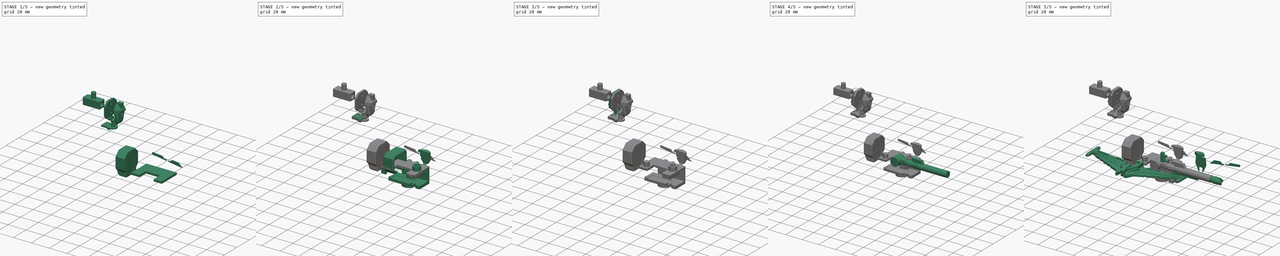
[diagram: build sequence overview — one tinted view per stage of 5, left to right]
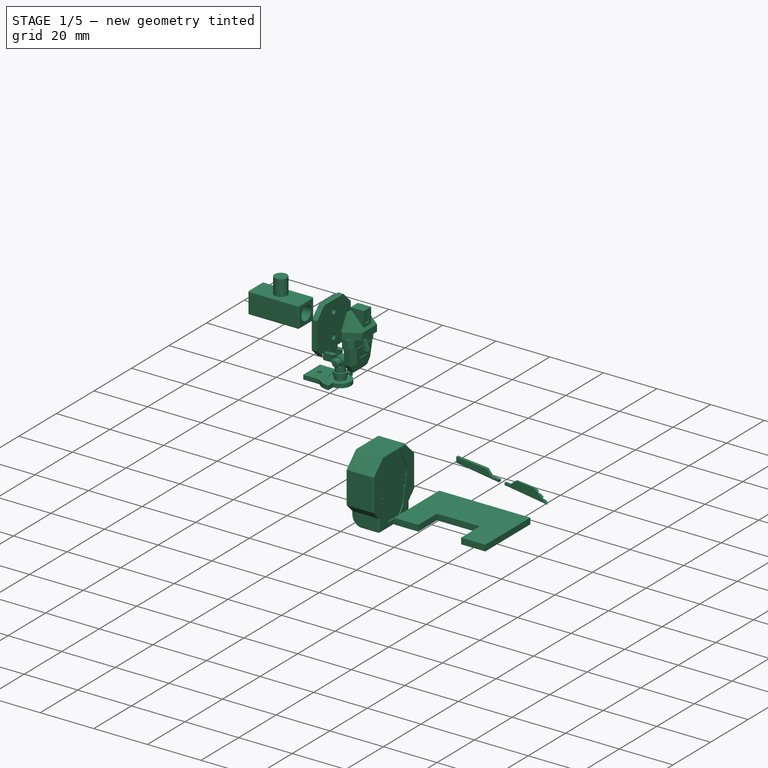
[diagram: stage 1 of 5 — iso view after this stage's code; geometry added in this stage tinted green]
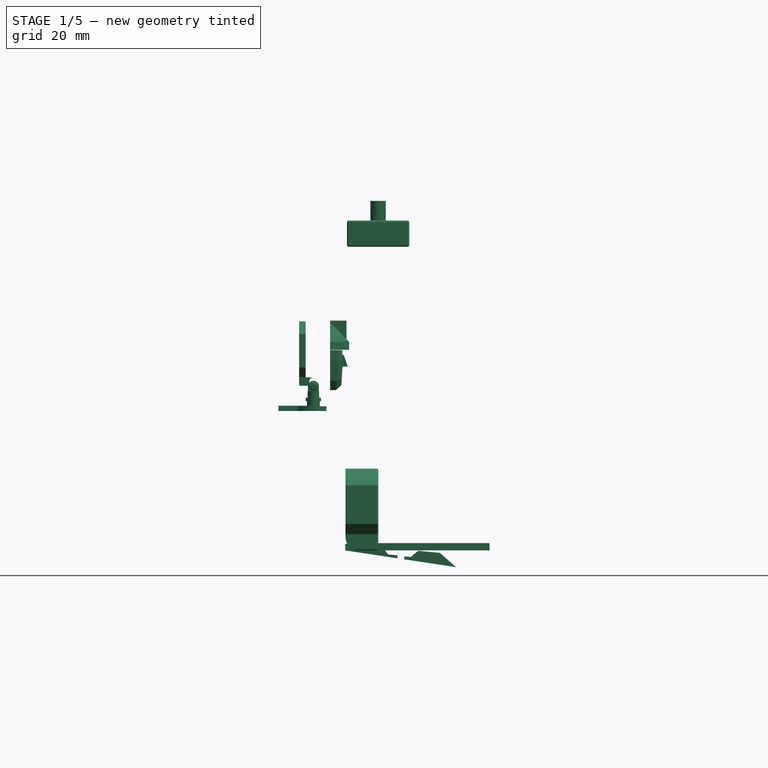
[diagram: stage 1 of 5 — front view after this stage's code; geometry added in this stage tinted green]
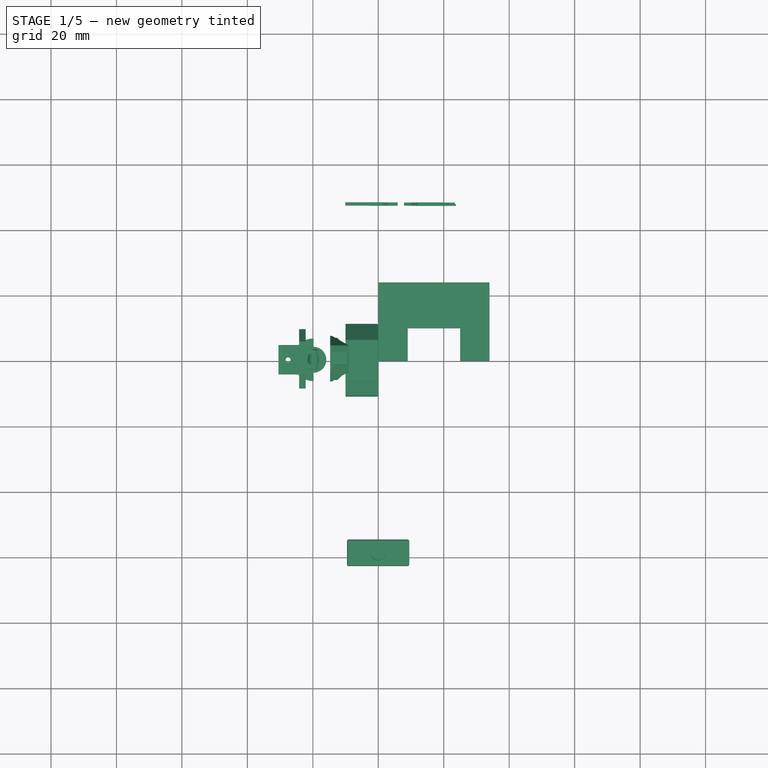
[diagram: stage 1 of 5 — top view after this stage's code; geometry added in this stage tinted green]
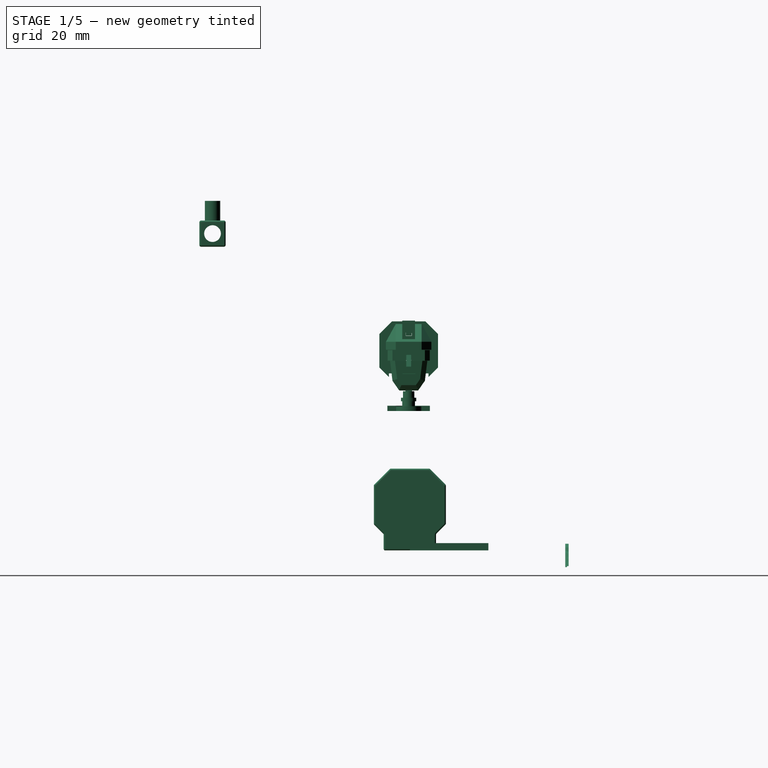
[diagram: stage 1 of 5 — right view after this stage's code; geometry added in this stage tinted green]
FCSTD DOCUMENT  (FreeCAD 1.0R39109 (Git))
Label: Upgrades
License: All rights reserved
LicenseURL: https://en.wikipedia.org/wiki/All_rights_reserved
objects: Sketcher::SketchObject×273, PartDesign::Pad×183, PartDesign::Pocket×143, PartDesign::Body×28, PartDesign::SubShapeBinder×24, PartDesign::Fillet×8, PartDesign::Chamfer×8, PartDesign::AdditiveLoft×6, PartDesign::Plane×4, App::Part×4, Part::Mirroring×2
note: 1648 computed .brp shape members not serialized (recipe doc carries the construction recipe); baked Part::Feature solids carry a one-line shape summary decoded from their .brp

FEATURE [PartDesign::Body] Body036  label="Lower_Face1"
  AllowCompound = false
  Group = -> [Binder019,Sketch585,Pad354,Sketch586,Pad355,Sketch587,Pocket329,Pad356,Pad357,Sketch588,Sketch589,Pad358,Pad359,Sketch590,Pad360,Sketch591,Pocket330,Chamfer008,Pocket331,Pocket332,Pocket333,Pocket334,Pocket335,Pocket336,Pocket337,Pocket338,Pocket339,Pocket340,Sketch592,Pocket341,Sketch957,Pocket519]
  Origin = -> Origin040
  Placement = pos=(-26.4,37,36.55) rot=(0,0,1;4.71239rad)
  Tip = -> Pocket519
FEATURE [PartDesign::SubShapeBinder] Binder058
  BindCopyOnChange = 0
  BindMode = 2
  ClaimChildren = false
  Context = -> Part001 [Body080.Binder058.]
  Fuse = false
  MakeFace = true
  OffsetFill = false
  OffsetIntersection = false
  OffsetJoinType = 0
  OffsetOpenResult = false
  PartialLoad = false
  Refine = true
  Relative = true
  _Version = 2
FEATURE [PartDesign::SubShapeBinder] Binder059
  BindCopyOnChange = 0
  BindMode = 2
  ClaimChildren = false
  Context = -> Part001 [Body081.Binder059.]
  Fuse = false
  MakeFace = true
  OffsetFill = false
  OffsetIntersection = false
  OffsetJoinType = 0
  OffsetOpenResult = false
  PartialLoad = false
  Refine = true
  Relative = true
  _Version = 2
FEATURE [Sketcher::SketchObject] Sketch959
  ArcFitTolerance = 1e-06
  AttachmentSupport = -> [XY_Plane087]
  FullyConstrained = true
  MakeInternals = false
  MapMode = 5
  sketch-geometry (8):
    g0: LineSegment StartX=0 StartY=24 StartZ=0 EndX=0 EndY=0 EndZ=0
    g1: LineSegment StartX=0 StartY=0 StartZ=0 EndX=9 EndY=0 EndZ=0
    g2: LineSegment StartX=9 StartY=0 StartZ=0 EndX=9 EndY=10 EndZ=0
    g3: LineSegment StartX=9 StartY=10 StartZ=0 EndX=25 EndY=10 EndZ=0
    g4: LineSegment StartX=25 StartY=10 StartZ=0 EndX=25 EndY=0 EndZ=0
    g5: LineSegment StartX=25 StartY=0 StartZ=0 EndX=34 EndY=0 EndZ=0
    g6: LineSegment StartX=34 StartY=0 StartZ=0 EndX=34 EndY=24 EndZ=0
    g7: LineSegment StartX=34 StartY=24 StartZ=0 EndX=0 EndY=24 EndZ=0
  constraints (23):
    c: PointOnObject(g0,g-2)
    c: Coincident(g0,g-1)
    c: Coincident(g1,g0)
    c: PointOnObject(g1,g-1)
    c: Coincident(g2,g1)
    c: Vertical(g2)
    c: Coincident(g3,g2)
    c: Horizontal(g3)
    c: Coincident(g4,g3)
    c: PointOnObject(g4,g-1)
    c: Vertical(g4)
    c: Coincident(g5,g4)
    c: PointOnObject(g5,g-1)
    c: Coincident(g6,g5)
    c: Vertical(g6)
    c: Coincident(g7,g6)
    c: Coincident(g7,g0)
    c: Horizontal(g7)
    c: DistanceX(g7,g7) = 34
    c: DistanceY(g0,g0) = 24
    c: DistanceX(g1,g1) = 9
    c: DistanceX(g5,g5) = 9
    c: DistanceY(g2,g0) = 14
FEATURE [PartDesign::Pad] Pad601
  Direction = (0,0,1)
  Length = 2.25
  Length2 = 10
  Profile = -> Sketch959
  ReferenceAxis = -> Sketch959 [N_Axis]
  Refine = true
  Suppressed = false
  Type = 0
FEATURE [PartDesign::Body] Body079  label="Lower_Clip2"
  AllowCompound = false
  Group = -> [Sketch959,Pad601,Sketch960,Pad602,Sketch961,Pad603,Sketch962,Pad604,Pocket521,Sketch963,Pad605,Sketch964,Pocket522,Pocket523,Pocket524,Pocket525,Sketch965,Pocket526,Fillet041,Sketch966,Pad606,Pad607,Sketch967,Pad608,Sketch968,Pad609,Sketch969,Pad610,Sketch970,Pad611,Sketch971,Pad612,Sketch972,Pocket527,Pocket528,Pocket529,Pocket530,Sketch958,Pocket520,Fillet040]
  Origin = -> Origin087
  Placement = pos=(-4.5,17.2,28) rot=(-0.71,0.71,0;3.14159rad)
  Tip = -> Fillet040
FEATURE [Sketcher::SketchObject] Sketch973
  ArcFitTolerance = 1e-06
  AttachmentSupport = -> [Binder059]
  ExternalGeometry = -> [Binder059]
  FullyConstrained = true
  MakeInternals = false
  MapMode = 5
  Placement = pos=(0,0,42.6) rot=(0,0,1;0rad)
  sketch-geometry (1):
    g0: Circle CenterX=-19.8249 CenterY=-0.361637 CenterZ=0 NormalX=0 NormalY=0 NormalZ=1 AngleXU=0 Radius=3.95
  constraints (2):
    c: Coincident(g0,g-3)
    c: Radius(g0) = 3.95
FEATURE [Sketcher::SketchObject] Sketch980
  ArcFitTolerance = 1e-06
  AttachmentSupport = -> [Binder058]
  ExternalGeometry = -> [Binder058]
  FullyConstrained = true
  MakeInternals = false
  MapMode = 5
  Placement = pos=(0,0,42.6) rot=(0,0,1;0rad)
  sketch-geometry (9):
    g0: ArcOfCircle CenterX=-19.75 CenterY=-0.37 CenterZ=0 NormalX=0 NormalY=0 NormalZ=1 AngleXU=0 Radius=4 StartAngle=1.5708 EndAngle=4.71239
    g1: ArcOfCircle CenterX=-19.75 CenterY=-0.37 CenterZ=0 NormalX=0 NormalY=0 NormalZ=1 AngleXU=0 Radius=6.5 StartAngle=3.90627 EndAngle=4.71239
    g2: ArcOfCircle CenterX=-19.75 CenterY=-0.37 CenterZ=0 NormalX=0 NormalY=0 NormalZ=1 AngleXU=0 Radius=6.5 StartAngle=1.5708 EndAngle=2.37691
    g3: LineSegment StartX=-19.75 StartY=3.63 StartZ=0 EndX=-19.75 EndY=6.13 EndZ=0
    g4: LineSegment StartX=-19.75 StartY=-4.37 StartZ=0 EndX=-19.75 EndY=-6.87 EndZ=0
    g5: LineSegment StartX=-24.4404 StartY=-4.87 StartZ=0 EndX=-30.5 EndY=-4.87 EndZ=0
    g6: LineSegment StartX=-24.4404 StartY=4.13 StartZ=0 EndX=-30.5 EndY=4.13 EndZ=0
    g7: LineSegment StartX=-30.5 StartY=4.13 StartZ=0 EndX=-30.5 EndY=-4.87 EndZ=0
    g8: Circle CenterX=-27.55 CenterY=-0.37 CenterZ=0 NormalX=0 NormalY=0 NormalZ=1 AngleXU=0 Radius=0.75
  constraints (24):
    c: Coincident(g0,g-8)
    c: Coincident(g0,g-4)
    c: Coincident(g1,g-8)
    c: Coincident(g2,g-5)
    c: Coincident(g3,g0)
    c: Coincident(g3,g2)
    c: Coincident(g4,g0)
    c: Coincident(g4,g1)
    c: Coincident(g1,g0)
    c: Coincident(g2,g0)
    c: Coincident(g5,g1)
    c: PointOnObject(g5,g-7)
    c: Coincident(g6,g2)
    c: PointOnObject(g6,g-7)
    c: Coincident(g7,g6)
    c: Coincident(g7,g5)
    c: Coincident(g8,g-6)
    c: Equal(g8,g-6)
    c: Horizontal(g6)
    c: Horizontal(g5)
    c: Radius(g-4) = 4
    c: Radius(g0) = 4
    c: DistanceY(g5,g8) = 4.5
    c: DistanceY(g8,g6) = 4.5
FEATURE [PartDesign::Pad] Pad600
  Direction = (0,0,1)
  Length = 1.6
  Length2 = 10
  Profile = -> Sketch980
  ReferenceAxis = -> Sketch980 [N_Axis]
  Refine = true
  Suppressed = false
  Type = 0
FEATURE [PartDesign::Body] Body080  label="Upper_Clip2"
  AllowCompound = false
  Group = -> [Binder058,Sketch980,Pad600,Sketch981,Pad619]
  Origin = -> Origin088
  Tip = -> Pad619
FEATURE [PartDesign::SubShapeBinder] Binder060
  BindCopyOnChange = 0
  BindMode = 2
  ClaimChildren = false
  Context = -> Part002 [Body082.Binder060.]
  Fuse = false
  MakeFace = true
  OffsetFill = false
  OffsetIntersection = false
  OffsetJoinType = 0
  OffsetOpenResult = false
  PartialLoad = false
  Refine = true
  Relative = true
  _Version = 2
FEATURE [Sketcher::SketchObject] Sketch982
  ArcFitTolerance = 1e-06
  AttachmentSupport = -> [Binder060]
  ExternalGeometry = -> [Binder060]
  FullyConstrained = true
  MakeInternals = false
  MapMode = 5
  Placement = pos=(0,47.5,0) rot=(0,0.707107,0.707107;3.14159rad)
  sketch-geometry (11):
    g0: LineSegment StartX=-82.0887 StartY=2.02363 StartZ=0 EndX=-82.0887 EndY=-0.00318852 EndZ=0
    g1: LineSegment StartX=-82.0887 StartY=-0.00318852 StartZ=0 EndX=-66.1834 EndY=-2.39946 EndZ=0
    g2: LineSegment StartX=-66.1834 StartY=-2.39946 StartZ=0 EndX=-66.0974 EndY=-1.50178 EndZ=0
    g3: LineSegment StartX=-66.0974 StartY=-1.50178 StartZ=0 EndX=-68.9551 EndY=-1.22826 EndZ=0
    g4: LineSegment StartX=-68.9551 StartY=-1.22826 StartZ=0 EndX=-70.7426 EndY=0.937645 EndZ=0
    g5: LineSegment StartX=-70.7426 StartY=0.937645 StartZ=0 EndX=-82.0887 EndY=2.02363 EndZ=0
    g6: LineSegment [constr] StartX=-81.1432 StartY=1.98336 StartZ=0 EndX=-81.148 EndY=1.93359 EndZ=0
    g7: LineSegment [constr] StartX=-66.0905 StartY=-1.95449 StartZ=0 EndX=-66.1403 EndY=-1.94973 EndZ=0
    g8: LineSegment [constr] StartX=-67.0384 StartY=-1.36149 StartZ=0 EndX=-67.0431 EndY=-1.41126 EndZ=0
    g9: LineSegment [constr] StartX=-67.1275 StartY=-2.30779 StartZ=0 EndX=-67.12 EndY=-2.25835 EndZ=0
    g10: LineSegment [constr] StartX=-70.0807 StartY=0.214182 StartZ=0 EndX=-70.1193 EndY=0.182356 EndZ=0
  constraints (38):
    c: Vertical(g0)
    c: Coincident(g1,g0)
    c: Coincident(g2,g1)
    c: Coincident(g3,g2)
    c: Coincident(g4,g3)
    c: Coincident(g5,g4)
    c: Coincident(g5,g0)
    c: DistanceX(g-4,g0) = 0.05
    c: PointOnObject(g6,g-4)
    c: PointOnObject(g6,g5)
    c: Perpendicular(g6,g-4)
    c: Distance(g6) = 0.05
    c: Parallel(g5,g-4)
    c: Parallel(g1,g-8)
    c: Parallel(g-5,g4)
    c: Parallel(g3,g-6)
    c: Parallel(g-7,g2)
    c: PointOnObject(g7,g-7)
    c: PointOnObject(g7,g2)
    c: Perpendicular(g7,g-7)
    c: PointOnObject(g8,g-6)
    c: PointOnObject(g8,g3)
    c: Perpendicular(g8,g-6)
    c: PointOnObject(g9,g-8)
    c: PointOnObject(g9,g1)
    c: Perpendicular(g9,g-8)
    c: Distance(g8) = 0.05
    c: Distance(g7) = 0.05
    c: Distance(g9) = 0.05
    c: PointOnObject(g10,g-5)
    c: PointOnObject(g10,g4)
    c: Perpendicular(g10,g-5)
    c: Distance(g10) = 0.05
    c: Distance(g-5,g10) = 1
    c: Distance(g-7,g8) = 1
    c: Distance(g-7,g7) = 0.5
    c: Distance(g-8,g9) = 1
    c: Distance(g6,g-4) = 1
FEATURE [PartDesign::Pad] Pad620
  Direction = (0,1,-2e-16)
  Length = 1
  Length2 = 10
  Profile = -> Sketch982
  ReferenceAxis = -> Sketch982 [N_Axis]
  Refine = true
  Suppressed = false
  Type = 0
FEATURE [PartDesign::Body] Body082  label="Pre-Right_Outer_Inset"
  AllowCompound = false
  Group = -> [Binder060,Sketch982,Pad620]
  Origin = -> Origin090
  Tip = -> Pad620
FEATURE [Part::Mirroring] Part__Mirroring  label="Right_Outer_Insert"
  Base = (0,0,0)
  Normal = (1,0,0)
  Placement = pos=(72,0,0) rot=(0,0,1;0rad)
  Source = -> Body082
FEATURE [PartDesign::SubShapeBinder] Binder061
  BindCopyOnChange = 0
  BindMode = 2
  ClaimChildren = false
  Context = -> Part002 [Body083.Binder061.]
  Fuse = false
  MakeFace = true
  OffsetFill = false
  OffsetIntersection = false
  OffsetJoinType = 0
  OffsetOpenResult = false
  PartialLoad = false
  Refine = true
  Relative = true
  _Version = 2
FEATURE [Sketcher::SketchObject] Sketch983
  ArcFitTolerance = 1e-06
  AttachmentSupport = -> [Binder061]
  ExternalGeometry = -> [Binder061]
  FullyConstrained = true
  MakeInternals = false
  MapMode = 5
  Placement = pos=(0,47.5,0) rot=(0,0.707107,0.707107;3.14159rad)
  sketch-geometry (12):
    g0: LineSegment StartX=-59.8085 StartY=-0.108906 StartZ=0 EndX=-53.1885 EndY=-0.742533 EndZ=0
    g1: LineSegment StartX=-53.1885 StartY=-0.742533 StartZ=0 EndX=-48.2348 EndY=-5.10357 EndZ=0
    g2: LineSegment StartX=-48.2348 StartY=-5.10357 StartZ=0 EndX=-64.1066 EndY=-2.71234 EndZ=0
    g3: LineSegment StartX=-64.1066 StartY=-2.71234 StartZ=0 EndX=-64.0202 EndY=-1.80926 EndZ=0
    g4: LineSegment StartX=-64.0202 StartY=-1.80926 StartZ=0 EndX=-62.0924 EndY=-1.99378 EndZ=0
    g5: LineSegment StartX=-62.0924 StartY=-1.99378 StartZ=0 EndX=-59.8085 EndY=-0.108906 EndZ=0
    g6: LineSegment [constr] StartX=-64.1133 StartY=-2.257 StartZ=0 EndX=-64.0635 EndY=-2.26176 EndZ=0
    g7: LineSegment [constr] StartX=-63.9632 StartY=-2.78452 StartZ=0 EndX=-63.9557 EndY=-2.73508 EndZ=0
    g8: LineSegment [constr] StartX=-63.7713 StartY=-1.83308 StartZ=0 EndX=-63.7666 EndY=-1.78331 EndZ=0
    g9: LineSegment [constr] StartX=-61.9222 StartY=-1.85329 StartZ=0 EndX=-61.954 EndY=-1.81473 EndZ=0
    g10: LineSegment [constr] StartX=-59.63 StartY=-0.125989 StartZ=0 EndX=-59.6253 EndY=-0.076216 EndZ=0
    g11: LineSegment [constr] StartX=-52.8254 StartY=-1.06222 StartZ=0 EndX=-52.7924 EndY=-1.02469 EndZ=0
  constraints (42):
    c: Coincident(g1,g0)
    c: Coincident(g2,g1)
    c: Coincident(g3,g2)
    c: Coincident(g4,g3)
    c: Coincident(g5,g4)
    c: Coincident(g5,g0)
    c: PointOnObject(g6,g-6)
    c: PointOnObject(g6,g3)
    c: Perpendicular(g6,g-6)
    c: Parallel(g-6,g3)
    c: Parallel(g-5,g4)
    c: Parallel(g-7,g2)
    c: Parallel(g-4,g5)
    c: Parallel(g-3,g0)
    c: Parallel(g-8,g1)
    c: Distance(g6) = 0.05
    c: Distance(g-7,g6) = 0.5
    c: PointOnObject(g7,g-7)
    c: PointOnObject(g7,g2)
    c: PointOnObject(g8,g4)
    c: PointOnObject(g8,g-5)
    c: PointOnObject(g9,g5)
    c: PointOnObject(g9,g-4)
    c: PointOnObject(g10,g0)
    c: PointOnObject(g10,g-3)
    c: PointOnObject(g11,g1)
    c: PointOnObject(g11,g-8)
    c: Perpendicular(g11,g-8)
    c: Perpendicular(g10,g-3)
    c: Perpendicular(g9,g-4)
    c: Perpendicular(g8,g-5)
    c: Perpendicular(g7,g-7)
    c: Distance(g8) = 0.05
    c: Distance(g7) = 0.05
    c: Distance(g9) = 0.05
    c: Distance(g10) = 0.05
    c: Distance(g11) = 0.05
    c: Distance(g-5,g9) = 0.2
    c: Distance(g-4,g10) = 0.2
    c: Distance(g-8,g11) = 0.5
    c: Distance(g7,g-7) = 0.2
    c: Distance(g8,g-6) = 0.3
FEATURE [PartDesign::Pad] Pad621
  Direction = (0,1,-2e-16)
  Length = 1
  Length2 = 10
  Profile = -> Sketch983
  ReferenceAxis = -> Sketch983 [N_Axis]
  Refine = true
  Suppressed = false
  Type = 0
FEATURE [Sketcher::SketchObject] Sketch984
  ArcFitTolerance = 1e-06
  AttachmentSupport = -> [Pad621]
  ExternalGeometry = -> [Pad621]
  FullyConstrained = true
  MakeInternals = false
  MapMode = 5
  Placement = pos=(0,48.5,0) rot=(0,0.707107,0.707107;3.14159rad)
  sketch-geometry (25):
    g0: LineSegment StartX=-64.0828 StartY=-2.46311 StartZ=0 EndX=-48.5813 EndY=-4.79855 EndZ=0
    g1: LineSegment StartX=-48.5813 StartY=-4.79855 StartZ=0 EndX=-48.2348 EndY=-5.10357 EndZ=0
    g2: LineSegment StartX=-48.2348 StartY=-5.10357 StartZ=0 EndX=-64.1066 EndY=-2.71234 EndZ=0
    g3: LineSegment StartX=-64.1066 StartY=-2.71234 StartZ=0 EndX=-64.0828 EndY=-2.46311 EndZ=0
    g4: LineSegment StartX=-64.0202 StartY=-1.80926 StartZ=0 EndX=-64.0303 EndY=-1.91481 EndZ=0
    g5: LineSegment StartX=-64.0303 StartY=-1.91481 StartZ=0 EndX=-49.3435 EndY=-4.1275 EndZ=0
    g6: LineSegment StartX=-49.3435 StartY=-4.1275 StartZ=0 EndX=-50.1058 EndY=-3.45646 EndZ=0
    g7: LineSegment StartX=-50.1058 StartY=-3.45646 StartZ=0 EndX=-61.7407 EndY=-1.70355 EndZ=0
    g8: LineSegment StartX=-61.7407 StartY=-1.70355 StartZ=0 EndX=-62.0924 EndY=-1.99378 EndZ=0
    g9: LineSegment StartX=-62.0924 StartY=-1.99378 StartZ=0 EndX=-64.0202 EndY=-1.80926 EndZ=0
    g10: LineSegment StartX=-59.8085 StartY=-0.108906 StartZ=0 EndX=-53.1885 EndY=-0.742533 EndZ=0
    g11: LineSegment StartX=-53.1885 StartY=-0.742533 StartZ=0 EndX=-52.8685 EndY=-1.02431 EndZ=0
    g12: LineSegment StartX=-52.8685 StartY=-1.02431 StartZ=0 EndX=-60.0812 EndY=-0.333949 EndZ=0
    g13: LineSegment StartX=-60.0812 StartY=-0.333949 StartZ=0 EndX=-59.8085 EndY=-0.108906 EndZ=0
    g14: LineSegment [constr] StartX=-63.7245 StartY=-2.76991 StartZ=0 EndX=-63.6873 EndY=-2.5227 EndZ=0
    g15: LineSegment [constr] StartX=-63.6873 StartY=-2.5227 StartZ=0 EndX=-63.6053 EndY=-1.97884 EndZ=0
    g16: LineSegment [constr] StartX=-59.3108 StartY=-0.156546 StartZ=0 EndX=-59.3346 EndY=-0.405408 EndZ=0
    g17: LineSegment [constr] StartX=-60.7519 StartY=-1.85253 StartZ=0 EndX=-60.8338 EndY=-2.39639 EndZ=0
    g18: LineSegment StartX=-60.6217 StartY=-0.780075 StartZ=0 EndX=-61.202 EndY=-1.25899 EndZ=0
    g19: LineSegment StartX=-61.202 StartY=-1.25899 StartZ=0 EndX=-51.1046 EndY=-2.57712 EndZ=0
    g20: LineSegment StartX=-51.1046 StartY=-2.57712 StartZ=0 EndX=-51.8444 EndY=-1.92588 EndZ=0
    g21: LineSegment StartX=-51.8444 StartY=-1.92588 StartZ=0 EndX=-60.6217 EndY=-0.780075 EndZ=0
    g22: LineSegment [constr] StartX=-60.2105 StartY=-1.38843 StartZ=0 EndX=-60.1393 EndY=-0.843059 EndZ=0
    g23: LineSegment [constr] StartX=-59.763 StartY=-2.00151 StartZ=0 EndX=-59.6918 EndY=-1.45613 EndZ=0
    g24: LineSegment [constr] StartX=-58.5848 StartY=-0.477174 StartZ=0 EndX=-58.6386 EndY=-1.03896 EndZ=0
  constraints (76):
    c: PointOnObject(g0,g-8)
    c: PointOnObject(g0,g-4)
    c: Coincident(g1,g0)
    c: Coincident(g1,g-4)
    c: Coincident(g2,g1)
    c: Coincident(g2,g-8)
    c: Coincident(g3,g-8)
    c: Coincident(g3,g0)
    c: Parallel(g0,g2)
    c: Coincident(g4,g-8)
    c: PointOnObject(g4,g-8)
    c: Coincident(g5,g4)
    c: PointOnObject(g5,g-4)
    c: Coincident(g6,g5)
    c: PointOnObject(g6,g-4)
    c: Coincident(g7,g6)
    c: PointOnObject(g7,g-6)
    c: Coincident(g8,g7)
    c: Coincident(g8,g-7)
    c: Coincident(g9,g-7)
    c: Coincident(g9,g-8)
    c: Parallel(g0,g5)
    c: Coincident(g10,g-6)
    c: Coincident(g10,g-5)
    c: Coincident(g11,g10)
    c: PointOnObject(g11,g-4)
    c: Coincident(g12,g11)
    c: PointOnObject(g12,g-6)
    c: Coincident(g13,g12)
    c: Coincident(g13,g10)
    c: Parallel(g12,g10)
    c: PointOnObject(g14,g2)
    c: PointOnObject(g14,g0)
    c: PointOnObject(g15,g5)
    c: Perpendicular(g2,g14)
    c: Perpendicular(g0,g15)
    c: Distance(g14,g0) = 0.4
    c: Coincident(g15,g14)
    c: Distance(g14) = 0.25
    c: Distance(g15) = 0.55
    c: PointOnObject(g16,g10)
    c: PointOnObject(g16,g12)
    c: Perpendicular(g10,g16)
    c: Distance(g16,g10) = 0.5
    c: Distance(g16) = 0.25
    c: PointOnObject(g17,g7)
    c: PointOnObject(g17,g5)
    c: Perpendicular(g17,g7)
    c: Distance(g17) = 0.55
    c: PointOnObject(g18,g-6)
    c: Coincident(g19,g18)
    c: PointOnObject(g19,g-4)
    c: Coincident(g20,g19)
    c: PointOnObject(g20,g-4)
    c: Coincident(g21,g20)
    c: Coincident(g21,g18)
    c: PointOnObject(g18,g-6)
    c: Parallel(g21,g19)
    c: PointOnObject(g22,g19)
    c: PointOnObject(g22,g21)
    c: Perpendicular(g19,g22)
    c: Distance(g22,g18) = 1
    c: Distance(g22) = 0.55
    c: Angle(g-6,g21) = 2.32181
    c: PointOnObject(g23,g7)
    c: PointOnObject(g23,g19)
    c: Perpendicular(g23,g19)
    c: Distance(g7,g17) = 1
    c: Distance(g23,g7) = 2
    c: Parallel(g5,g7)
    c: Distance(g23) = 0.55
    c: PointOnObject(g24,g12)
    c: PointOnObject(g24,g21)
    c: Distance(g24,g18) = 2
    c: Perpendicular(g12,g24)
    c: Distance(g24) = 0.564354
FEATURE [PartDesign::Pocket] Pocket533
  BaseFeature = -> Pad621
  Direction = (0,-1,2e-16)
  Length = 0.5
  Length2 = 5
  Profile = -> Sketch984
  ReferenceAxis = -> Sketch984 [N_Axis]
  Refine = true
  Suppressed = false
  Type = 0
FEATURE [PartDesign::Body] Body083  label="Pre_Right_Inner_Inset"
  AllowCompound = false
  Group = -> [Binder061,Sketch983,Pad621,Sketch984,Pocket533]
  Origin = -> Origin091
  Tip = -> Pocket533
FEATURE [Part::Mirroring] Part__Mirroring001  label="Right_Inner_Insert"
  Base = (0,0,0)
  Normal = (1,0,0)
  Placement = pos=(72,0,0) rot=(0,0,1;0rad)
  Source = -> Body083
FEATURE [App::Part] Part002  label="Chest_Plate"
  Group = -> [Body041,Body040,Body042,Body043,Body044,Body082,Part__Mirroring,Body083,Part__Mirroring001]
  Origin = -> Origin045
FEATURE [Sketcher::SketchObject] Sketch985
  ArcFitTolerance = 1e-06
  AttachmentSupport = -> [YZ_Plane092]
  FullyConstrained = true
  MakeInternals = false
  MapMode = 5
  Placement = pos=(0,0,0) rot=(0.57735,0.57735,0.57735;2.0944rad)
  sketch-geometry (10):
    g0: LineSegment StartX=-8 StartY=0 StartZ=0 EndX=-8 EndY=5 EndZ=0
    g1: LineSegment StartX=-8 StartY=5 StartZ=0 EndX=-11 EndY=8 EndZ=0
    g2: LineSegment StartX=-11 StartY=8 StartZ=0 EndX=-11 EndY=20 EndZ=0
    g3: LineSegment StartX=-11 StartY=20 StartZ=0 EndX=-6 EndY=25 EndZ=0
    g4: LineSegment StartX=-6 StartY=25 StartZ=0 EndX=6 EndY=25 EndZ=0
    g5: LineSegment StartX=6 StartY=25 StartZ=0 EndX=11 EndY=20 EndZ=0
    g6: LineSegment StartX=11 StartY=20 StartZ=0 EndX=11 EndY=8 EndZ=0
    g7: LineSegment StartX=11 StartY=8 StartZ=0 EndX=8 EndY=5 EndZ=0
    g8: LineSegment StartX=8 StartY=5 StartZ=0 EndX=8 EndY=0 EndZ=0
    g9: LineSegment StartX=8 StartY=0 StartZ=0 EndX=-8 EndY=0 EndZ=0
  constraints (30):
    c: PointOnObject(g0,g-1)
    c: Vertical(g0)
    c: Coincident(g1,g0)
    c: Coincident(g2,g1)
    c: Vertical(g2)
    c: Coincident(g3,g2)
    c: Coincident(g4,g3)
    c: Horizontal(g4)
    c: Coincident(g5,g4)
    c: Coincident(g6,g5)
    c: Vertical(g6)
    c: Coincident(g7,g6)
    c: Coincident(g8,g7)
    c: PointOnObject(g8,g-1)
    c: Vertical(g8)
    c: Coincident(g9,g8)
    c: Coincident(g9,g0)
    c: DistanceX(g-1,g8) = 8
    c: DistanceX(g0,g-1) = 8
    c: DistanceX(g1,g-1) = 11
    c: DistanceX(g-1,g6) = 11
    c: DistanceY(g0,g3) = 25
    c: DistanceY(g8,g8) = 5
    c: DistanceY(g0,g0) = 5
    c: DistanceX(g3,g-1) = 6
    c: DistanceX(g-1,g4) = 6
    c: Angle(g2,g3) = 2.35619
    c: Angle(g4,g5) = 2.35619
    c: Angle(g6,g7) = 2.35619
    c: Angle(g1,g2) = 2.35619
FEATURE [PartDesign::Pad] Pad622
  Direction = (1,0,0)
  Length = 10
  Length2 = 10
  Placement = pos=(0,0,0) rot=(1,1,1;2.0944rad)
  Profile = -> Sketch985
  ReferenceAxis = -> Sketch985 [N_Axis]
  Refine = true
  Reversed = true
  Suppressed = false
  Type = 0
FEATURE [Sketcher::SketchObject] Sketch986
  ArcFitTolerance = 1e-06
  AttachmentSupport = -> [Pad622]
  ExternalGeometry = -> [Pad622]
  FullyConstrained = true
  MakeInternals = false
  MapMode = 5
  Placement = pos=(-10,0,0) rot=(0.57735,0.57735,-0.57735;4.18879rad)
  sketch-geometry (18):
    g0: LineSegment StartX=-6 StartY=-2 StartZ=0 EndX=-6 EndY=-5.82843 EndZ=0
    g1: LineSegment StartX=-6 StartY=-5.82843 StartZ=0 EndX=-9 EndY=-8.82843 EndZ=0
    g2: LineSegment StartX=-9 StartY=-8.82843 StartZ=0 EndX=-9 EndY=-19.1716 EndZ=0
    g3: LineSegment StartX=-9 StartY=-19.1716 StartZ=0 EndX=-5.17157 EndY=-23 EndZ=0
    g4: LineSegment StartX=-5.17157 StartY=-23 StartZ=0 EndX=5.17157 EndY=-23 EndZ=0
    g5: LineSegment StartX=5.17157 StartY=-23 StartZ=0 EndX=9 EndY=-19.1716 EndZ=0
    g6: LineSegment StartX=9 StartY=-19.1716 StartZ=0 EndX=9 EndY=-8.82843 EndZ=0
    g7: LineSegment StartX=9 StartY=-8.82843 StartZ=0 EndX=6 EndY=-5.82843 EndZ=0
    g8: LineSegment StartX=6 StartY=-5.82843 StartZ=0 EndX=6 EndY=-2 EndZ=0
    g9: LineSegment StartX=6 StartY=-2 StartZ=0 EndX=4 EndY=-2 EndZ=0
    g10: LineSegment StartX=4 StartY=-2 StartZ=0 EndX=4 EndY=1.3e-15 EndZ=0
    g11: LineSegment StartX=4 StartY=1.3e-15 StartZ=0 EndX=-4 EndY=-1.3e-15 EndZ=0
    g12: LineSegment StartX=-4 StartY=-1.3e-15 StartZ=0 EndX=-4 EndY=-2 EndZ=0
    g13: LineSegment StartX=-4 StartY=-2 StartZ=0 EndX=-6 EndY=-2 EndZ=0
    g14: LineSegment [constr] StartX=-8.93525 StartY=-5.93525 StartZ=0 EndX=-7.52103 EndY=-7.34946 EndZ=0
    g15: LineSegment [constr] StartX=8.4879 StartY=-5.4879 StartZ=0 EndX=7.07369 EndY=-6.90212 EndZ=0
    g16: LineSegment [constr] StartX=8.19986 StartY=-19.9717 StartZ=0 EndX=9.61407 EndY=-21.3859 EndZ=0
    g17: LineSegment [constr] StartX=-8.18572 StartY=-19.9859 StartZ=0 EndX=-9.59993 EndY=-21.4001 EndZ=0
  constraints (58):
    c: Vertical(g0)
    c: Coincident(g1,g0)
    c: Coincident(g2,g1)
    c: Vertical(g2)
    c: Coincident(g3,g2)
    c: Coincident(g4,g3)
    c: Horizontal(g4)
    c: Coincident(g5,g4)
    c: Coincident(g6,g5)
    c: Vertical(g6)
    c: Coincident(g7,g6)
    c: Coincident(g8,g7)
    c: Vertical(g8)
    c: Coincident(g9,g8)
    c: Horizontal(g9)
    c: Coincident(g10,g9)
    c: PointOnObject(g10,g-12)
    c: Vertical(g10)
    c: Coincident(g11,g10)
    c: PointOnObject(g11,g-12)
    c: Coincident(g12,g11)
    c: Vertical(g12)
    c: Coincident(g13,g12)
    c: Coincident(g13,g0)
    c: Horizontal(g13)
    c: DistanceY(g-7,g3) = 2
    c: DistanceY(g12,g12) = 2
    c: DistanceY(g10,g10) = 2
    c: DistanceX(g-12,g0) = 2
    c: DistanceX(g8,g-12) = 2
    c: Parallel(g-10,g7)
    c: Parallel(g1,g-4)
    c: Parallel(g3,g-6)
    c: Parallel(g5,g-8)
    c: DistanceX(g5,g-9) = 2
    c: DistanceX(g-6,g2) = 2
    c: PointOnObject(g14,g-4)
    c: PointOnObject(g14,g1)
    c: Perpendicular(g14,g-4)
    c: PointOnObject(g15,g-10)
    c: PointOnObject(g15,g7)
    c: PointOnObject(g16,g5)
    c: PointOnObject(g16,g-8)
    c: PointOnObject(g17,g3)
    c: PointOnObject(g17,g-6)
    c: Perpendicular(g-6,g17)
    c: Perpendicular(g-8,g16)
    c: Perpendicular(g-10,g15)
    c: Distance(g15,g-11) = 0.69
    c: Distance(g-5,g14) = 2.92
    c: Distance(g17,g-6) = 1.98
    c: Distance(g-9,g16) = 1.96
    c: Distance(g16) = 2
    c: Distance(g17) = 2
    c: Distance(g14) = 2
    c: Distance(g15) = 2
    c: DistanceX(g10,g-12) = 4
    c: DistanceX(g-12,g11) = 4
FEATURE [PartDesign::Pocket] Pocket534
  BaseFeature = -> Pad622
  Direction = (1,0,0)
  Length = 8
  Length2 = 5
  Placement = pos=(0,0,0) rot=(1,1,1;2.0944rad)
  Profile = -> Sketch986
  ReferenceAxis = -> Sketch986 [N_Axis]
  Refine = true
  Suppressed = false
  Type = 0
FEATURE [Sketcher::SketchObject] Sketch987
  ArcFitTolerance = 1e-06
  AttachmentSupport = -> [Pocket534]
  ExternalGeometry = -> [Pocket534]
  FullyConstrained = true
  MakeInternals = false
  MapMode = 5
  Placement = pos=(0,0,0) rot=(0.57735,0.57735,0.57735;2.0944rad)
  sketch-geometry (17):
    g0: LineSegment StartX=-3 StartY=1.9 StartZ=0 EndX=3 EndY=1.9 EndZ=0
    g1: LineSegment StartX=5.75 StartY=10.9 StartZ=0 EndX=-5.75 EndY=10.9 EndZ=0
    g2: LineSegment StartX=4 StartY=22.2 StartZ=0 EndX=7 EndY=16.7 EndZ=0
    g3: LineSegment StartX=7 StartY=16.7 StartZ=0 EndX=7 EndY=14.2 EndZ=0
    g4: LineSegment StartX=7 StartY=14.2 StartZ=0 EndX=-7 EndY=14.2 EndZ=0
    g5: LineSegment StartX=-7 StartY=14.2 StartZ=0 EndX=-7 EndY=16.7 EndZ=0
    g6: LineSegment StartX=-7 StartY=16.7 StartZ=0 EndX=-4 EndY=22.2 EndZ=0
    g7: LineSegment StartX=-4 StartY=22.2 StartZ=0 EndX=-2 EndY=22.2 EndZ=0
    g8: LineSegment StartX=-2 StartY=22.2 StartZ=0 EndX=-2 EndY=23.2 EndZ=0
    g9: LineSegment StartX=-2 StartY=23.2 StartZ=0 EndX=2 EndY=23.2 EndZ=0
    g10: LineSegment StartX=2 StartY=23.2 StartZ=0 EndX=2 EndY=22.2 EndZ=0
    g11: LineSegment StartX=4 StartY=22.2 StartZ=0 EndX=2 EndY=22.2 EndZ=0
    g12: LineSegment StartX=-5.75 StartY=10.9 StartZ=0 EndX=-5 EndY=4.77228 EndZ=0
    g13: LineSegment StartX=-3 StartY=1.9 StartZ=0 EndX=-5 EndY=4.77228 EndZ=0
    g14: LineSegment StartX=5.75 StartY=10.9 StartZ=0 EndX=5 EndY=4.77228 EndZ=0
    g15: LineSegment StartX=5 StartY=4.77228 StartZ=0 EndX=3 EndY=1.9 EndZ=0
    g16: LineSegment [constr] StartX=-5 StartY=4.77228 StartZ=0 EndX=5 EndY=4.77228 EndZ=0
  constraints (53):
    c: Horizontal(g0)
    c: Horizontal(g1)
    c: Coincident(g3,g2)
    c: Vertical(g3)
    c: Coincident(g4,g3)
    c: Horizontal(g4)
    c: Coincident(g5,g4)
    c: Vertical(g5)
    c: Coincident(g6,g5)
    c: Coincident(g7,g6)
    c: Horizontal(g7)
    c: Coincident(g8,g7)
    c: Vertical(g8)
    c: Coincident(g9,g8)
    c: Horizontal(g9)
    c: Coincident(g10,g9)
    c: Vertical(g10)
    c: Coincident(g11,g2)
    c: Coincident(g11,g10)
    c: Horizontal(g11)
    c: DistanceX(g-3,g-3) = 12
    c: DistanceX(g9,g9) = 4
    c: DistanceX(g-3,g8) = 4
    c: DistanceY(g8,g8) = 1
    c: DistanceY(g10,g10) = 1
    c: DistanceX(g7,g7) = 2
    c: DistanceX(g11,g11) = 2
    c: DistanceX(g4,g-1) = 7
    c: DistanceX(g-1,g3) = 7
    c: DistanceY(g5,g5) = 2.5
    c: DistanceY(g3,g3) = 2.5
    c: DistanceY(g4,g8) = 9
    c: DistanceX(g1,g1) = 11.5
    c: DistanceX(g1,g-1) = 5.75
    c: DistanceX(g0,g-1) = 3
    c: DistanceX(g-1,g0) = 3
    c: DistanceY(g8,g-3) = 1.8
    c: DistanceY(g-1,g0) = 1.9
    c: DistanceY(g0,g1) = 9
    c: Coincident(g12,g1)
    c: Coincident(g13,g0)
    c: Coincident(g13,g12)
    c: Coincident(g14,g1)
    c: Coincident(g15,g14)
    c: Coincident(g15,g0)
    c: Coincident(g16,g12)
    c: Coincident(g16,g14)
    c: Horizontal(g16)
    c: DistanceX(g16,g16) = 10
    c: DistanceX(g12,g0) = 2
    c: DistanceX(g0,g14) = 2
    c: Distance(g12) = 6.17345
    c: Distance(g13) = 3.5
FEATURE [PartDesign::Pocket] Pocket535
  BaseFeature = -> Pocket534
  Direction = (-1,0,0)
  Length = 0.5
  Length2 = 5
  Placement = pos=(0,0,0) rot=(1,1,1;2.0944rad)
  Profile = -> Sketch987
  ReferenceAxis = -> Sketch987 [N_Axis]
  Refine = true
  Suppressed = false
  Type = 0
FEATURE [Sketcher::SketchObject] Sketch988
  ArcFitTolerance = 1e-06
  AttachmentSupport = -> [Pocket535]
  ExternalGeometry = -> [Pocket535]
  FullyConstrained = true
  MakeInternals = false
  MapMode = 5
  Placement = pos=(0,0,0) rot=(0.57735,0.57735,0.57735;2.0944rad)
  sketch-geometry (4):
    g0: LineSegment StartX=-6.5 StartY=14.2 StartZ=0 EndX=-6.5 EndY=10.9 EndZ=0
    g1: LineSegment StartX=-6.5 StartY=10.9 StartZ=0 EndX=6.5 EndY=10.9 EndZ=0
    g2: LineSegment StartX=6.5 StartY=10.9 StartZ=0 EndX=6.5 EndY=14.2 EndZ=0
    g3: LineSegment StartX=6.5 StartY=14.2 StartZ=0 EndX=-6.5 EndY=14.2 EndZ=0
  constraints (12):
    c: Coincident(g0,g1)
    c: Coincident(g1,g2)
    c: Coincident(g2,g3)
    c: Coincident(g3,g0)
    c: Vertical(g0)
    c: Vertical(g2)
    c: Horizontal(g1)
    c: Horizontal(g3)
    c: PointOnObject(g0,g-3)
    c: PointOnObject(g-4,g1)
    c: DistanceX(g0,g-1) = 6.5
    c: DistanceX(g-1,g1) = 6.5
FEATURE [PartDesign::Pocket] Pocket536
  BaseFeature = -> Pocket535
  Direction = (-1,0,0)
  Length = 0.5
  Length2 = 5
  Placement = pos=(0,0,0) rot=(1,1,1;2.0944rad)
  Profile = -> Sketch988
  ReferenceAxis = -> Sketch988 [N_Axis]
  Refine = true
  Suppressed = false
  Type = 0
FEATURE [PartDesign::Fillet] Fillet042
  Base = -> Pocket536 [Edge5,Edge15,Edge17,Edge19,Edge21,Edge20,Edge18,Edge16,Edge13,Edge3,Edge11,Edge79,Edge77,Edge81,Edge82,Edge80,Edge1,Edge2,Edge12,Edge78]
  BaseFeature = -> Pocket536
  Placement = pos=(0,0,0) rot=(1,1,1;2.0944rad)
  Radius = 0.5
  Refine = true
  SupportTransform = false
  Suppressed = false
  UseAllEdges = false
FEATURE [Sketcher::SketchObject] Sketch989
  ArcFitTolerance = 1e-06
  AttachmentSupport = -> [Fillet042]
  ExternalGeometry = -> [Fillet042]
  FullyConstrained = true
  MakeInternals = false
  MapMode = 5
  Placement = pos=(-2,0,0) rot=(0.57735,0.57735,-0.57735;4.18879rad)
  sketch-geometry (8):
    g0: LineSegment StartX=2 StartY=-7 StartZ=0 EndX=6 EndY=-7 EndZ=0
    g1: LineSegment StartX=6 StartY=-7 StartZ=0 EndX=6 EndY=-2 EndZ=0
    g2: LineSegment StartX=6 StartY=-2 StartZ=0 EndX=2 EndY=-2 EndZ=0
    g3: LineSegment StartX=2 StartY=-2 StartZ=0 EndX=2 EndY=-7 EndZ=0
    g4: LineSegment StartX=-2 StartY=-7 StartZ=0 EndX=-2 EndY=-2 EndZ=0
    g5: LineSegment StartX=-2 StartY=-2 StartZ=0 EndX=-6 EndY=-2 EndZ=0
    g6: LineSegment StartX=-6 StartY=-2 StartZ=0 EndX=-6 EndY=-7 EndZ=0
    g7: LineSegment StartX=-6 StartY=-7 StartZ=0 EndX=-2 EndY=-7 EndZ=0
  constraints (24):
    c: Coincident(g0,g1)
    c: Coincident(g1,g2)
    c: Coincident(g2,g3)
    c: Coincident(g3,g0)
    c: Horizontal(g0)
    c: Horizontal(g2)
    c: Vertical(g1)
    c: Vertical(g3)
    c: PointOnObject(g1,g-3)
    c: Coincident(g4,g5)
    c: Coincident(g5,g6)
    c: Coincident(g6,g7)
    c: Coincident(g7,g4)
    c: Vertical(g4)
    c: Vertical(g6)
    c: Horizontal(g5)
    c: Horizontal(g7)
    c: PointOnObject(g5,g-4)
    c: PointOnObject(g-6,g2)
    c: PointOnObject(g-5,g5)
    c: DistanceX(g2,g2) = 4
    c: DistanceX(g5,g5) = 4
    c: DistanceY(g3,g3) = 5
    c: DistanceY(g4,g4) = 5
FEATURE [PartDesign::Pad] Pad623
  BaseFeature = -> Fillet042
  Direction = (-1,0,0)
  Length = 8
  Length2 = 10
  Placement = pos=(0,0,0) rot=(1,1,1;2.0944rad)
  Profile = -> Sketch989
  ReferenceAxis = -> Sketch989 [N_Axis]
  Refine = true
  Suppressed = false
  Type = 0
FEATURE [Sketcher::SketchObject] Sketch990
  ArcFitTolerance = 1e-06
  AttachmentSupport = -> [Pad623]
  ExternalGeometry = -> [Pad623]
  FullyConstrained = true
  MakeInternals = false
  MapMode = 5
  Placement = pos=(-4e-16,-2,0) rot=(0.57735,0.57735,0.57735;4.18879rad)
  sketch-geometry (4):
    g0: LineSegment StartX=5.9 StartY=-10 StartZ=0 EndX=5.9 EndY=-5.55 EndZ=0
    g1: LineSegment StartX=3.2 StartY=-10 StartZ=0 EndX=3.2 EndY=-5.55 EndZ=0
    g2: ArcOfCircle CenterX=4.55 CenterY=-5.55 CenterZ=0 NormalX=0 NormalY=0 NormalZ=1 AngleXU=0 Radius=1.35 StartAngle=6.28319 EndAngle=9.42478
    g3: LineSegment StartX=5.9 StartY=-10 StartZ=0 EndX=3.2 EndY=-10 EndZ=0
  constraints (13):
    c: PointOnObject(g0,g-3)
    c: Vertical(g0)
    c: PointOnObject(g1,g-3)
    c: Vertical(g1)
    c: Coincident(g2,g1)
    c: Coincident(g2,g0)
    c: Coincident(g3,g0)
    c: Coincident(g3,g1)
    c: DistanceX(g3,g3) = 2.7
    c: Radius(g2) = 1.35
    c: DistanceY(g1,g1) = 4.45
    c: DistanceX(g-6,g1) = 2.7
    c: DistanceY(g0,g0) = 4.45
FEATURE [PartDesign::Pocket] Pocket537
  BaseFeature = -> Pad623
  Direction = (0,-1,0)
  Length = 1.01
  Length2 = 5
  Placement = pos=(0,0,0) rot=(1,1,1;2.0944rad)
  Profile = -> Sketch990
  ReferenceAxis = -> Sketch990 [N_Axis]
  Refine = true
  Suppressed = false
  Type = 0
FEATURE [Sketcher::SketchObject] Sketch991
  ArcFitTolerance = 1e-06
  AttachmentSupport = -> [Pocket537]
  ExternalGeometry = -> [Pocket537]
  FullyConstrained = true
  MakeInternals = false
  MapMode = 5
  Placement = pos=(4e-16,2,0) rot=(0.57735,0.57735,-0.57735;2.0944rad)
  sketch-geometry (4):
    g0: LineSegment StartX=-5.9 StartY=-10 StartZ=0 EndX=-3.2 EndY=-10 EndZ=0
    g1: LineSegment StartX=-5.9 StartY=-10 StartZ=0 EndX=-5.9 EndY=-5.55 EndZ=0
    g2: LineSegment StartX=-3.2 StartY=-10 StartZ=0 EndX=-3.2 EndY=-5.55 EndZ=0
    g3: ArcOfCircle CenterX=-4.55 CenterY=-5.55 CenterZ=0 NormalX=0 NormalY=0 NormalZ=1 AngleXU=0 Radius=1.35 StartAngle=6.28319 EndAngle=9.42478
  constraints (9):
    c: Coincident(g0,g-6)
    c: Coincident(g0,g-6)
    c: Coincident(g1,g0)
    c: Coincident(g1,g-5)
    c: Coincident(g2,g0)
    c: Coincident(g2,g-5)
    c: Coincident(g3,g1)
    c: Coincident(g3,g2)
    c: Tangent(g3,g-5)
FEATURE [PartDesign::Pocket] Pocket538
  BaseFeature = -> Pocket537
  Direction = (0,1,0)
  Length = 1.01
  Length2 = 5
  Placement = pos=(0,0,0) rot=(1,1,1;2.0944rad)
  Profile = -> Sketch991
  ReferenceAxis = -> Sketch991 [N_Axis]
  Refine = true
  Suppressed = false
  Type = 0
FEATURE [Sketcher::SketchObject] Sketch992
  ArcFitTolerance = 1e-06
  AttachmentSupport = -> [Pocket538]
  ExternalGeometry = -> [Pocket538]
  FullyConstrained = true
  MakeInternals = false
  MapMode = 5
  Placement = pos=(-2,0,0) rot=(0.57735,0.57735,-0.57735;4.18879rad)
  sketch-geometry (8):
    g0: LineSegment StartX=-2 StartY=-6.4 StartZ=0 EndX=2 EndY=-6.4 EndZ=0
    g1: LineSegment StartX=2 StartY=-6.4 StartZ=0 EndX=2 EndY=-7 EndZ=0
    g2: LineSegment StartX=2 StartY=-7 StartZ=0 EndX=3 EndY=-7 EndZ=0
    g3: LineSegment StartX=3 StartY=-7 StartZ=0 EndX=3 EndY=-23 EndZ=0
    g4: LineSegment StartX=3 StartY=-23 StartZ=0 EndX=-3 EndY=-23 EndZ=0
    g5: LineSegment StartX=-3 StartY=-23 StartZ=0 EndX=-3 EndY=-7 EndZ=0
    g6: LineSegment StartX=-3 StartY=-7 StartZ=0 EndX=-2 EndY=-7 EndZ=0
    g7: LineSegment StartX=-2 StartY=-7 StartZ=0 EndX=-2 EndY=-6.4 EndZ=0
  constraints (22):
    c: PointOnObject(g0,g-6)
    c: PointOnObject(g0,g-3)
    c: Horizontal(g0)
    c: Coincident(g1,g0)
    c: Coincident(g1,g-4)
    c: Coincident(g2,g1)
    c: PointOnObject(g2,g-4)
    c: Coincident(g3,g2)
    c: PointOnObject(g3,g-7)
    c: Vertical(g3)
    c: Coincident(g4,g3)
    c: PointOnObject(g4,g-7)
    c: Coincident(g5,g4)
    c: PointOnObject(g5,g-5)
    c: Vertical(g5)
    c: Coincident(g6,g5)
    c: Coincident(g6,g-6)
    c: Coincident(g7,g6)
    c: Coincident(g7,g0)
    c: DistanceY(g7,g7) = 0.6
    c: DistanceX(g6,g6) = 1
    c: DistanceX(g2,g2) = 1
FEATURE [PartDesign::Pad] Pad624
  BaseFeature = -> Pocket538
  Direction = (-1,1.3e-15,0)
  Length = 6
  Length2 = 10
  Placement = pos=(0,0,0) rot=(1,1,1;2.0944rad)
  Profile = -> Sketch992
  ReferenceAxis = -> Sketch992 [N_Axis]
  Refine = true
  Suppressed = false
  Type = 0
FEATURE [Sketcher::SketchObject] Sketch993
  ArcFitTolerance = 1e-06
  AttachmentSupport = -> [Pad624]
  ExternalGeometry = -> [Pad624]
  FullyConstrained = true
  MakeInternals = false
  MapMode = 5
  Placement = pos=(1.8e-15,8,0) rot=(0.57735,0.57735,0.57735;4.18879rad)
  sketch-geometry (5):
    g0: ArcOfCircle CenterX=4 CenterY=-6 CenterZ=0 NormalX=0 NormalY=0 NormalZ=1 AngleXU=0 Radius=4 StartAngle=3.14159 EndAngle=4.71239
    g1: LineSegment [constr] StartX=4 StartY=-6 StartZ=0 EndX=4 EndY=-10 EndZ=0
    g2: LineSegment [constr] StartX=4 StartY=-6 StartZ=0 EndX=-7.1e-15 EndY=-6 EndZ=0
    g3: LineSegment StartX=-7.1e-15 StartY=-6 StartZ=0 EndX=0 EndY=-10 EndZ=0
    g4: LineSegment StartX=0 StartY=-10 StartZ=0 EndX=4 EndY=-10 EndZ=0
  constraints (13):
    c: PointOnObject(g0,g-4)
    c: PointOnObject(g0,g-3)
    c: Radius(g0) = 4
    c: Coincident(g1,g0)
    c: Coincident(g1,g0)
    c: Vertical(g1)
    c: Coincident(g2,g0)
    c: Coincident(g2,g0)
    c: Horizontal(g2)
    c: Coincident(g3,g0)
    c: Coincident(g3,g-4)
    c: Coincident(g4,g3)
    c: Coincident(g4,g0)
FEATURE [PartDesign::Pocket] Pocket539
  BaseFeature = -> Pad624
  Direction = (1e-16,-1,2.3e-15)
  Length = 17
  Length2 = 5
  Placement = pos=(0,0,0) rot=(1,1,1;2.0944rad)
  Profile = -> Sketch993
  ReferenceAxis = -> Sketch993 [N_Axis]
  Refine = true
  Suppressed = false
  Type = 0
FEATURE [Sketcher::SketchObject] Sketch994
  ArcFitTolerance = 1e-06
  AttachmentSupport = -> [Pocket539]
  ExternalGeometry = -> [Pocket539]
  FullyConstrained = true
  MakeInternals = false
  MapMode = 5
  Placement = pos=(-8,1.06e-14,0) rot=(-0.57735,-0.57735,0.57735;2.0944rad)
  sketch-geometry (2):
    g0: Circle CenterX=0 CenterY=-10.4 CenterZ=0 NormalX=0 NormalY=0 NormalZ=1 AngleXU=0 Radius=0.75
    g1: Circle CenterX=0 CenterY=-19 CenterZ=0 NormalX=0 NormalY=0 NormalZ=1 AngleXU=0 Radius=0.75
  constraints (6):
    c: PointOnObject(g0,g-2)
    c: PointOnObject(g1,g-2)
    c: Radius(g0) = 0.75
    c: Radius(g1) = 0.75
    c: DistanceY(g0,g-5) = 4
    c: DistanceY(g-6,g1) = 4
FEATURE [PartDesign::Pocket] Pocket540
  BaseFeature = -> Pocket539
  Direction = (1,-1.8e-15,0)
  Length = 5
  Length2 = 5
  Placement = pos=(0,0,0) rot=(1,1,1;2.0944rad)
  Profile = -> Sketch994
  ReferenceAxis = -> Sketch994 [N_Axis]
  Refine = true
  Suppressed = false
  Type = 0
FEATURE [PartDesign::Body] Body  label="Front_Head2"
  AllowCompound = false
  Group = -> [Sketch985,Pad622,Sketch986,Pocket534,Sketch987,Pocket535,Sketch988,Pocket536,Fillet042,Sketch989,Pad623,Sketch990,Pocket537,Sketch991,Pocket538,Sketch992,Pad624,Sketch993,Pocket539,Sketch994,Pocket540]
  Origin = -> Origin092
  Placement = pos=(-14.2,-0.36,45.6) rot=(0,0,1;0rad)
  Tip = -> Pocket540
FEATURE [PartDesign::SubShapeBinder] Binder062
  BindCopyOnChange = 0
  BindMode = 2
  ClaimChildren = false
  Context = -> Part [Body084.Binder062.]
  Fuse = false
  MakeFace = true
  OffsetFill = false
  OffsetIntersection = false
  OffsetJoinType = 0
  OffsetOpenResult = false
  PartialLoad = false
  Refine = true
  Relative = true
  _Version = 2
FEATURE [Sketcher::SketchObject] Sketch995
  ArcFitTolerance = 1e-06
  AttachmentSupport = -> [Binder062]
  ExternalGeometry = -> [Binder062]
  FullyConstrained = true
  MakeInternals = false
  MapMode = 5
  Placement = pos=(-22.2,2.95e-14,0) rot=(-0.57735,0.57735,0.57735;4.18879rad)
  sketch-geometry (20):
    g0: LineSegment StartX=-1.6 StartY=54.1 StartZ=0 EndX=-1.6 EndY=52.9 EndZ=0
    g1: LineSegment StartX=-1.6 StartY=52.9 StartZ=0 EndX=-2.6 EndY=52.9 EndZ=0
    g2: LineSegment StartX=-2.6 StartY=52.9 StartZ=0 EndX=-2.6 EndY=50.3 EndZ=0
    g3: LineSegment StartX=-2.6 StartY=50.3 StartZ=0 EndX=3.32 EndY=50.3 EndZ=0
    g4: LineSegment StartX=3.32 StartY=50.3 StartZ=0 EndX=3.32 EndY=52.9 EndZ=0
    g5: LineSegment StartX=3.32 StartY=52.9 StartZ=0 EndX=2.32 EndY=52.9 EndZ=0
    g6: LineSegment StartX=2.32 StartY=52.9 StartZ=0 EndX=2.32 EndY=54.1 EndZ=0
    g7: LineSegment StartX=2.32 StartY=54.1 StartZ=0 EndX=6.42 EndY=54.1 EndZ=0
    g8: LineSegment StartX=6.42 StartY=54.1 StartZ=0 EndX=6.42 EndY=53 EndZ=0
    g9: LineSegment StartX=6.42 StartY=53 StartZ=0 EndX=9.31914 EndY=55.8991 EndZ=0
    g10: LineSegment StartX=9.31914 StartY=55.8991 StartZ=0 EndX=9.31914 EndY=66.1391 EndZ=0
    g11: LineSegment StartX=9.31914 StartY=66.1391 StartZ=0 EndX=5.45828 EndY=70 EndZ=0
    g12: LineSegment StartX=5.45828 StartY=70 StartZ=0 EndX=-4.73828 EndY=70 EndZ=0
    g13: LineSegment StartX=-4.73828 StartY=70 StartZ=0 EndX=-8.59914 EndY=66.1391 EndZ=0
    g14: LineSegment StartX=-8.59914 StartY=66.1391 StartZ=0 EndX=-8.59914 EndY=55.8991 EndZ=0
    g15: LineSegment StartX=-8.59914 StartY=55.8991 StartZ=0 EndX=-5.7 EndY=53 EndZ=0
    g16: LineSegment StartX=-5.7 StartY=53 StartZ=0 EndX=-5.7 EndY=54.1 EndZ=0
    g17: LineSegment StartX=-1.6 StartY=54.1 StartZ=0 EndX=-5.7 EndY=54.1 EndZ=0
    g18: Circle CenterX=0.36 CenterY=66.05 CenterZ=0 NormalX=0 NormalY=0 NormalZ=1 AngleXU=0 Radius=1
    g19: Circle CenterX=0.36 CenterY=57.45 CenterZ=0 NormalX=0 NormalY=0 NormalZ=1 AngleXU=0 Radius=1
  constraints (59):
    c: Vertical(g0)
    c: Coincident(g1,g0)
    c: Horizontal(g1)
    c: Coincident(g2,g1)
    c: Vertical(g2)
    c: Coincident(g3,g2)
    c: Horizontal(g3)
    c: Coincident(g4,g3)
    c: Vertical(g4)
    c: Coincident(g5,g4)
    c: Horizontal(g5)
    c: Coincident(g6,g5)
    c: Vertical(g6)
    c: Coincident(g7,g6)
    c: Horizontal(g7)
    c: Coincident(g8,g7)
    c: Vertical(g8)
    c: Coincident(g9,g8)
    c: Coincident(g10,g9)
    c: Vertical(g10)
    c: Coincident(g11,g10)
    c: Coincident(g12,g11)
    c: Horizontal(g12)
    c: Coincident(g13,g12)
    c: Coincident(g14,g13)
    c: Vertical(g14)
    c: Coincident(g15,g14)
    c: Coincident(g16,g15)
    c: Vertical(g16)
    c: Coincident(g17,g0)
    c: Coincident(g17,g16)
    c: Horizontal(g17)
    c: DistanceX(g1,g1) = 1
    c: DistanceX(g5,g5) = 1
    c: DistanceY(g6,g6) = 1.2
    c: DistanceY(g0,g0) = 1.2
    c: DistanceY(g2,g2) = 2.6
    c: DistanceY(g4,g4) = 2.6
    c: DistanceX(g3,g3) = 5.92
    c: DistanceX(g0,g-5) = 1.96
    c: DistanceX(g-5,g6) = 1.96
    c: DistanceY(g0,g-5) = 3.35
    c: Angle(g13,g12) = 2.35619
    c: Angle(g12,g11) = 2.35619
    c: Angle(g10,g9) = 2.35619
    c: Angle(g15,g14) = 2.35619
    c: DistanceX(g17,g17) = 4.1
    c: DistanceX(g7,g7) = 4.1
    c: DistanceY(g16,g16) = 1.1
    c: DistanceY(g8,g8) = 1.1
    c: DistanceY(g12,g-7) = 0.05
    c: DistanceY(g14,g14) = 10.24
    c: DistanceY(g10,g10) = 10.24
    c: Distance(g15) = 4.1
    c: Distance(g9) = 4.1
    c: Coincident(g18,g-4)
    c: Coincident(g19,g-5)
    c: Radius(g19) = 1
    c: Radius(g18) = 1
FEATURE [PartDesign::Pad] Pad625
  Direction = (-1,1.9e-15,1e-16)
  Length = 2
  Length2 = 10
  Profile = -> Sketch995
  ReferenceAxis = -> Sketch995 [N_Axis]
  Refine = true
  Suppressed = false
  Type = 0
FEATURE [PartDesign::Chamfer] Chamfer037
  Angle = 85
  Base = -> Pad625 [Edge13]
  BaseFeature = -> Pad625
  ChamferType = 2
  FlipDirection = false
  Refine = true
  Size = 0.071
  Size2 = 1
  SupportTransform = false
  Suppressed = false
  UseAllEdges = false
FEATURE [Sketcher::SketchObject] Sketch996
  ArcFitTolerance = 1e-06
  AttachmentSupport = -> [Chamfer037]
  ExternalGeometry = -> [Chamfer037]
  FullyConstrained = true
  MakeInternals = false
  MapMode = 5
  Placement = pos=(-24.2,4.84e-14,0) rot=(-0.57735,0.57735,0.57735;4.18879rad)
  sketch-geometry (2):
    g0: Circle CenterX=0.36 CenterY=57.45 CenterZ=0 NormalX=0 NormalY=0 NormalZ=1 AngleXU=0 Radius=2.25
    g1: Circle CenterX=0.36 CenterY=66.05 CenterZ=0 NormalX=0 NormalY=0 NormalZ=1 AngleXU=0 Radius=2.25
  constraints (4):
    c: Coincident(g0,g-4)
    c: Coincident(g1,g-3)
    c: Radius(g1) = 2.25
    c: Radius(g0) = 2.25
FEATURE [PartDesign::Pocket] Pocket541
  BaseFeature = -> Chamfer037
  Direction = (1,-1.9e-15,-1e-16)
  Length = 1
  Length2 = 5
  Profile = -> Sketch996
  ReferenceAxis = -> Sketch996 [N_Axis]
  Refine = true
  Suppressed = false
  Type = 0
FEATURE [Sketcher::SketchObject] Sketch997
  ArcFitTolerance = 1e-06
  AttachmentSupport = -> [Pocket541]
  ExternalGeometry = -> [Pocket541]
  FullyConstrained = false
  MakeInternals = false
  MapMode = 5
  Placement = pos=(-22.2,4.44e-14,0) rot=(0.57735,0.57735,0.57735;2.0944rad)
  sketch-geometry (8):
    g0: LineSegment StartX=2.6 StartY=52.9 StartZ=0 EndX=1.1 EndY=52.9 EndZ=0
    g1: LineSegment StartX=1.1 StartY=52.9 StartZ=0 EndX=1.1 EndY=50.3 EndZ=0
    g2: LineSegment StartX=1.1 StartY=50.3 StartZ=0 EndX=2.6 EndY=50.3 EndZ=0
    g3: LineSegment StartX=2.6 StartY=50.3 StartZ=0 EndX=2.6 EndY=52.9 EndZ=0
    g4: LineSegment StartX=-3.32 StartY=52.8834 StartZ=0 EndX=-3.32 EndY=50.3 EndZ=0
    g5: LineSegment StartX=-3.32 StartY=50.3 StartZ=0 EndX=-1.82 EndY=50.3 EndZ=0
    g6: LineSegment StartX=-1.82 StartY=50.3 StartZ=0 EndX=-1.82 EndY=52.8834 EndZ=0
    g7: LineSegment StartX=-1.82 StartY=52.8834 StartZ=0 EndX=-3.32 EndY=52.8834 EndZ=0
  constraints (22):
    c: Coincident(g0,g1)
    c: Coincident(g1,g2)
    c: Coincident(g2,g3)
    c: Coincident(g3,g0)
    c: Horizontal(g0)
    c: Horizontal(g2)
    c: Vertical(g1)
    c: Vertical(g3)
    c: Coincident(g0,g-4)
    c: PointOnObject(g1,g-5)
    c: Coincident(g4,g5)
    c: Coincident(g5,g6)
    c: Coincident(g6,g7)
    c: Coincident(g7,g4)
    c: Vertical(g4)
    c: Vertical(g6)
    c: Horizontal(g5)
    c: Horizontal(g7)
    c: PointOnObject(g4,g-3)
    c: PointOnObject(g5,g-5)
    c: DistanceX(g5,g5) = 1.5
    c: DistanceX(g2,g2) = 1.5
FEATURE [PartDesign::Pad] Pad626
  BaseFeature = -> Pocket541
  Direction = (1,-1.9e-15,-1e-16)
  Length = 3
  Length2 = 10
  Profile = -> Sketch997
  ReferenceAxis = -> Sketch997 [N_Axis]
  Refine = true
  Suppressed = false
  Type = 0
FEATURE [Sketcher::SketchObject] Sketch998
  ArcFitTolerance = 1e-06
  AttachmentSupport = -> [Pad626]
  ExternalGeometry = -> [Pad626]
  FullyConstrained = true
  MakeInternals = false
  MapMode = 5
  Placement = pos=(-7.8e-15,-3.32,0) rot=(1,0,0;1.5708rad)
  sketch-geometry (1):
    g0: Circle CenterX=-19.75 CenterY=51.5917 CenterZ=0 NormalX=0 NormalY=0 NormalZ=1 AngleXU=0 Radius=1.35
  constraints (4):
    c: DistanceY(g-3,g-3) = 2.58341
    c: Radius(g0) = 1.35
    c: DistanceY(g0,g-3) = 1.29171
    c: DistanceX(g0,g-3) = 0.55
FEATURE [PartDesign::Pocket] Pocket542
  BaseFeature = -> Pad626
  Direction = (2.3e-15,1,-2e-16)
  Length = 7
  Length2 = 5
  Profile = -> Sketch998
  ReferenceAxis = -> Sketch998 [N_Axis]
  Refine = true
  Suppressed = false
  Type = 0
FEATURE [PartDesign::Body] Body084  label="Back_Head2"
  AllowCompound = false
  Group = -> [Binder062,Sketch995,Pad625,Chamfer037,Sketch996,Pocket541,Sketch997,Pad626,Sketch998,Pocket542]
  Origin = -> Origin093
  Placement = pos=(0,0,-1.45) rot=(0,0,1;0rad)
  Tip = -> Pocket542
FEATURE [PartDesign::SubShapeBinder] Binder063
  BindCopyOnChange = 0
  BindMode = 2
  ClaimChildren = false
  Context = -> Part [Body085.Binder063.]
  Fuse = false
  MakeFace = true
  OffsetFill = false
  OffsetIntersection = false
  OffsetJoinType = 0
  OffsetOpenResult = false
  PartialLoad = false
  Refine = true
  Relative = true
  _Version = 2
FEATURE [Sketcher::SketchObject] Sketch999
  ArcFitTolerance = 1e-06
  AttachmentSupport = -> [Binder063]
  ExternalGeometry = -> [Binder063]
  FullyConstrained = true
  MakeInternals = false
  MapMode = 5
  Placement = pos=(-14.7,0,-8.1e-15) rot=(0.57735,0.57735,0.57735;2.0944rad)
  sketch-geometry (10):
    g0: LineSegment StartX=-6.06 StartY=57.95 StartZ=0 EndX=5.34 EndY=57.95 EndZ=0
    g1: LineSegment StartX=5.34 StartY=57.95 StartZ=0 EndX=4.59233 EndY=51.8413 EndZ=0
    g2: LineSegment StartX=4.59233 StartY=51.8413 StartZ=0 EndX=2.61389 EndY=49 EndZ=0
    g3: LineSegment StartX=2.61389 StartY=49 StartZ=0 EndX=-3.33389 EndY=49 EndZ=0
    g4: LineSegment StartX=-3.33389 StartY=49 StartZ=0 EndX=-5.31233 EndY=51.8413 EndZ=0
    g5: LineSegment StartX=-5.31233 StartY=51.8413 StartZ=0 EndX=-6.06 EndY=57.95 EndZ=0
    g6: LineSegment [constr] StartX=-6.06 StartY=57.95 StartZ=0 EndX=-6.11 EndY=57.95 EndZ=0
    g7: LineSegment [constr] StartX=5.34 StartY=57.95 StartZ=0 EndX=5.39 EndY=57.95 EndZ=0
    g8: LineSegment [constr] StartX=4.41143 StartY=51.494 StartZ=0 EndX=4.3704 EndY=51.5226 EndZ=0
    g9: LineSegment [constr] StartX=-4.52479 StartY=50.6228 StartZ=0 EndX=-4.48376 EndY=50.6514 EndZ=0
  constraints (31):
    c: Horizontal(g0)
    c: Coincident(g1,g0)
    c: Coincident(g2,g1)
    c: Coincident(g3,g2)
    c: Horizontal(g3)
    c: Coincident(g4,g3)
    c: Coincident(g5,g4)
    c: Coincident(g5,g0)
    c: Coincident(g6,g0)
    c: Coincident(g6,g-4)
    c: Horizontal(g6)
    c: Coincident(g7,g0)
    c: Coincident(g7,g-3)
    c: DistanceX(g7,g7) = 0.05
    c: DistanceX(g6,g6) = 0.05
    c: Parallel(g-4,g5)
    c: Parallel(g-5,g4)
    c: Parallel(g-7,g2)
    c: Parallel(g-3,g1)
    c: DistanceY(g-7,g2) = 0.05
    c: DistanceY(g-7,g-7) = 2.87228
    c: PointOnObject(g8,g-7)
    c: PointOnObject(g8,g2)
    c: Perpendicular(g8,g-7)
    c: Distance(g8) = 0.05
    c: Distance(g8,g-7) = 0.4
    c: PointOnObject(g9,g-5)
    c: PointOnObject(g9,g4)
    c: Perpendicular(g-5,g9)
    c: Distance(g9) = 0.05
    c: Distance(g9,g4) = 1.45
FEATURE [PartDesign::Pad] Pad631
  Direction = (1,0,0)
  Length = 3.9
  Length2 = 10
  Profile = -> Sketch999
  ReferenceAxis = -> Sketch999 [N_Axis]
  Refine = true
  Suppressed = false
  Type = 0
FEATURE [Sketcher::SketchObject] Sketch1000
  ArcFitTolerance = 1e-06
  AttachmentOffset = pos=(0,0,-6) rot=(0,0,1;0rad)
  AttachmentSupport = -> [XZ_Plane094]
  ExternalGeometry = -> [Pad631]
  FullyConstrained = true
  MakeInternals = false
  MapMode = 5
  Placement = pos=(0,6,-1.3e-15) rot=(1,0,0;1.5708rad)
  sketch-geometry (3):
    g0: LineSegment StartX=-10.8 StartY=57.95 StartZ=0 EndX=-10.8 EndY=49 EndZ=0
    g1: LineSegment StartX=-10.8 StartY=57.95 StartZ=0 EndX=-11.4 EndY=49 EndZ=0
    g2: LineSegment StartX=-11.4 StartY=49 StartZ=0 EndX=-10.8 EndY=49 EndZ=0
  constraints (7):
    c: Coincident(g0,g-4)
    c: Coincident(g0,g-6)
    c: Coincident(g1,g0)
    c: PointOnObject(g1,g-5)
    c: Coincident(g2,g1)
    c: Coincident(g2,g0)
    c: DistanceX(g2,g2) = 0.6
FEATURE [PartDesign::Pocket] Pocket543
  BaseFeature = -> Pad631
  Direction = (0,1,-2e-16)
  Length = 13
  Length2 = 5
  Profile = -> Sketch1000
  ReferenceAxis = -> Sketch1000 [N_Axis]
  Refine = true
  Reversed = true
  Suppressed = false
  Type = 0
FEATURE [PartDesign::Chamfer] Chamfer039
  Angle = 45
  Base = -> Pocket543 [Edge6,Edge10,Edge14,Edge15,Edge16]
  BaseFeature = -> Pocket543
  ChamferType = 0
  FlipDirection = false
  Refine = true
  Size = 1.5
  Size2 = 1
  SupportTransform = false
  Suppressed = false
  UseAllEdges = false
FEATURE [Sketcher::SketchObject] Sketch1001
  ArcFitTolerance = 1e-06
  AttachmentSupport = -> [Chamfer039]
  ExternalGeometry = -> [Chamfer039]
  FullyConstrained = true
  MakeInternals = false
  MapMode = 5
  Placement = pos=(-14.6192,2e-16,0.980059) rot=(0.589808,0.589808,0.551592;2.13346rad)
  sketch-geometry (4):
    g0: LineSegment StartX=-2.35844 StartY=53.1277 StartZ=0 EndX=1.64156 EndY=53.1277 EndZ=0
    g1: LineSegment StartX=1.64156 StartY=53.1277 StartZ=0 EndX=1.26656 EndY=53.6277 EndZ=0
    g2: LineSegment StartX=1.26656 StartY=53.6277 StartZ=0 EndX=-1.98344 EndY=53.6277 EndZ=0
    g3: LineSegment StartX=-1.98344 StartY=53.6277 StartZ=0 EndX=-2.35844 EndY=53.1277 EndZ=0
  constraints (15):
    c: Horizontal(g0)
    c: Coincident(g1,g0)
    c: Coincident(g2,g1)
    c: Horizontal(g2)
    c: Coincident(g3,g2)
    c: Coincident(g3,g0)
    c: DistanceX(g0,g0) = 4
    c: DistanceX(g2,g2) = 3.25
    c: DistanceY(g0,g2) = 0.5
    c: DistanceX(g-4,g0) = 1.51
    c: DistanceX(g0,g-3) = 1.50687
    c: DistanceY(g-4,g0) = 3.5
    c: DistanceY(g2,g-5) = 3.47009
    c: DistanceX(g1,g0) = 0.375
    c: DistanceX(g0,g2) = 0.375
FEATURE [PartDesign::Pocket] Pocket544
  BaseFeature = -> Chamfer039
  Direction = (-0.99776,1e-16,0.066889)
  Length = 0.3
  Length2 = 5
  Profile = -> Sketch1001
  ReferenceAxis = -> Sketch1001 [N_Axis]
  Refine = true
  Suppressed = false
  Type = 0
FEATURE [Sketcher::SketchObject] Sketch1002
  ArcFitTolerance = 1e-06
  AttachmentSupport = -> [Pocket544]
  ExternalGeometry = -> [Pocket544]
  FullyConstrained = true
  MakeInternals = false
  MapMode = 5
  Placement = pos=(0,0,57.95) rot=(0,0,1;0rad)
  sketch-geometry (4):
    g0: LineSegment StartX=-10.8 StartY=0.388856 StartZ=0 EndX=-14.7 EndY=0.388856 EndZ=0
    g1: LineSegment StartX=-14.7 StartY=0.388856 StartZ=0 EndX=-14.7 EndY=-1.10886 EndZ=0
    g2: LineSegment StartX=-14.7 StartY=-1.10886 StartZ=0 EndX=-10.8 EndY=-1.10886 EndZ=0
    g3: LineSegment StartX=-10.8 StartY=-1.10886 StartZ=0 EndX=-10.8 EndY=0.388856 EndZ=0
  constraints (12):
    c: Coincident(g0,g1)
    c: Coincident(g1,g2)
    c: Coincident(g2,g3)
    c: Coincident(g3,g0)
    c: Horizontal(g0)
    c: Horizontal(g2)
    c: Vertical(g1)
    c: Vertical(g3)
    c: PointOnObject(g0,g-3)
    c: PointOnObject(g1,g-4)
    c: DistanceY(g0,g-3) = 3.44
    c: DistanceY(g-3,g2) = 3.44
FEATURE [PartDesign::Pad] Pad632
  BaseFeature = -> Pocket544
  Direction = (0,0,1)
  Length = 1.8
  Length2 = 10
  Profile = -> Sketch1002
  ReferenceAxis = -> Sketch1002 [N_Axis]
  Refine = true
  Suppressed = false
  Type = 0
FEATURE [Sketcher::SketchObject] Sketch1003
  ArcFitTolerance = 1e-06
  AttachmentSupport = -> [Pad632]
  ExternalGeometry = -> [Pad632]
  FullyConstrained = true
  MakeInternals = false
  MapMode = 5
  Placement = pos=(-10.8,0,0) rot=(0.57735,0.57735,0.57735;2.0944rad)
  sketch-geometry (4):
    g0: LineSegment StartX=-1.10886 StartY=59.75 StartZ=0 EndX=-1.10886 EndY=56.15 EndZ=0
    g1: LineSegment StartX=-1.10886 StartY=56.15 StartZ=0 EndX=0.388856 EndY=56.15 EndZ=0
    g2: LineSegment StartX=0.388856 StartY=56.15 StartZ=0 EndX=0.388856 EndY=59.75 EndZ=0
    g3: LineSegment StartX=0.388856 StartY=59.75 StartZ=0 EndX=-1.10886 EndY=59.75 EndZ=0
  constraints (11):
    c: Coincident(g0,g1)
    c: Coincident(g1,g2)
    c: Coincident(g2,g3)
    c: Coincident(g3,g0)
    c: Vertical(g0)
    c: Vertical(g2)
    c: Horizontal(g1)
    c: Horizontal(g3)
    c: Coincident(g0,g-3)
    c: PointOnObject(g-4,g2)
    c: DistanceY(g0,g0) = 3.6
FEATURE [PartDesign::Pad] Pad633
  BaseFeature = -> Pad632
  Direction = (1,0,0)
  Length = 1
  Length2 = 10
  Profile = -> Sketch1003
  ReferenceAxis = -> Sketch1003 [N_Axis]
  Refine = true
  Reversed = true
  Suppressed = false
  Type = 0
FEATURE [Sketcher::SketchObject] Sketch1004
  ArcFitTolerance = 1e-06
  AttachmentSupport = -> [Pad633]
  ExternalGeometry = -> [Pad633]
  FullyConstrained = true
  MakeInternals = false
  MapMode = 5
  Placement = pos=(0,0.388856,0) rot=(0,0.707107,0.707107;3.14159rad)
  sketch-geometry (4):
    g0: LineSegment StartX=10.8 StartY=56.15 StartZ=0 EndX=9.3 EndY=56.15 EndZ=0
    g1: LineSegment StartX=10.8 StartY=59.75 StartZ=0 EndX=10.55 EndY=59.75 EndZ=0
    g2: LineSegment StartX=9.3 StartY=56.15 StartZ=0 EndX=10.55 EndY=59.75 EndZ=0
    g3: LineSegment StartX=10.8 StartY=59.75 StartZ=0 EndX=10.8 EndY=56.15 EndZ=0
  constraints (10):
    c: Coincident(g0,g-4)
    c: Horizontal(g0)
    c: DistanceX(g0,g0) = 1.5
    c: Coincident(g1,g-3)
    c: Horizontal(g1)
    c: Coincident(g2,g0)
    c: Coincident(g2,g1)
    c: DistanceX(g1,g1) = 0.25
    c: Coincident(g3,g1)
    c: Coincident(g3,g0)
FEATURE [PartDesign::Pad] Pad634
  BaseFeature = -> Pad633
  Direction = (0,1,-2e-16)
  Length = 1
  Length2 = 10
  Profile = -> Sketch1004
  ReferenceAxis = -> Sketch1004 [N_Axis]
  Refine = true
  Reversed = true
  Suppressed = false
  Type = 0
FEATURE [Sketcher::SketchObject] Sketch1005
  ArcFitTolerance = 1e-06
  AttachmentSupport = -> [Pad634]
  ExternalGeometry = -> [Pad634]
  FullyConstrained = true
  MakeInternals = false
  MapMode = 5
  Placement = pos=(0,-1.10886,0) rot=(1,0,0;1.5708rad)
  sketch-geometry (4):
    g0: LineSegment StartX=-10.8 StartY=59.75 StartZ=0 EndX=-10.8 EndY=56.15 EndZ=0
    g1: LineSegment StartX=-10.8 StartY=56.15 StartZ=0 EndX=-9.3 EndY=56.15 EndZ=0
    g2: LineSegment StartX=-9.3 StartY=56.15 StartZ=0 EndX=-10.55 EndY=59.75 EndZ=0
    g3: LineSegment StartX=-10.55 StartY=59.75 StartZ=0 EndX=-10.8 EndY=59.75 EndZ=0
  constraints (8):
    c: Coincident(g0,g-3)
    c: Coincident(g0,g-5)
    c: Coincident(g1,g0)
    c: Coincident(g1,g-5)
    c: Coincident(g2,g1)
    c: Coincident(g2,g-4)
    c: Coincident(g3,g2)
    c: Coincident(g3,g0)
FEATURE [PartDesign::Pad] Pad635
  BaseFeature = -> Pad634
  Direction = (0,-1,2e-16)
  Length = 1
  Length2 = 10
  Profile = -> Sketch1005
  ReferenceAxis = -> Sketch1005 [N_Axis]
  Refine = true
  Reversed = true
  Suppressed = false
  Type = 0
FEATURE [PartDesign::Body] Body085  label="Lower_Face2"
  AllowCompound = false
  Group = -> [Binder063,Sketch999,Pad631,Sketch1000,Pocket543,Chamfer039,Sketch1001,Pocket544,Sketch1002,Pad632,Sketch1003,Pad633,Sketch1004,Pad634,Sketch1005,Pad635]
  Origin = -> Origin094
  Placement = pos=(0,0,-1.45) rot=(0,0,1;0rad)
  Tip = -> Pad635
FEATURE [PartDesign::SubShapeBinder] Binder064
  BindCopyOnChange = 0
  BindMode = 2
  ClaimChildren = false
  Context = -> Part [Body086.Binder064.]
  Fuse = false
  MakeFace = true
  OffsetFill = false
  OffsetIntersection = false
  OffsetJoinType = 0
  OffsetOpenResult = false
  PartialLoad = false
  Refine = true
  Relative = true
  _Version = 2
FEATURE [Sketcher::SketchObject] Sketch1006
  ArcFitTolerance = 1e-06
  AttachmentSupport = -> [Binder064]
  ExternalGeometry = -> [Binder064]
  FullyConstrained = true
  MakeInternals = false
  MapMode = 5
  Placement = pos=(-14.7,0,-8.1e-15) rot=(0.57735,0.57735,0.57735;2.0944rad)
  sketch-geometry (8):
    g0: LineSegment StartX=-6.81 StartY=61.2 StartZ=0 EndX=-6.81 EndY=58 EndZ=0
    g1: LineSegment StartX=-6.81 StartY=58 StartZ=0 EndX=-1.16 EndY=58 EndZ=0
    g2: LineSegment StartX=-1.16 StartY=58 StartZ=0 EndX=-1.16 EndY=59.8 EndZ=0
    g3: LineSegment StartX=-1.16 StartY=59.8 StartZ=0 EndX=0.44 EndY=59.8 EndZ=0
    g4: LineSegment StartX=0.44 StartY=59.8 StartZ=0 EndX=0.44 EndY=58 EndZ=0
    g5: LineSegment StartX=0.44 StartY=58 StartZ=0 EndX=6.09 EndY=58 EndZ=0
    g6: LineSegment StartX=6.09 StartY=58 StartZ=0 EndX=6.09 EndY=61.2 EndZ=0
    g7: LineSegment StartX=6.09 StartY=61.2 StartZ=0 EndX=-6.81 EndY=61.2 EndZ=0
  constraints (24):
    c: Vertical(g0)
    c: Coincident(g1,g0)
    c: Horizontal(g1)
    c: Coincident(g2,g1)
    c: Vertical(g2)
    c: Coincident(g3,g2)
    c: Horizontal(g3)
    c: Coincident(g4,g3)
    c: Vertical(g4)
    c: Coincident(g5,g4)
    c: Horizontal(g5)
    c: Coincident(g6,g5)
    c: Vertical(g6)
    c: Coincident(g7,g6)
    c: Coincident(g7,g0)
    c: Horizontal(g7)
    c: DistanceX(g-4,g0) = 0.05
    c: DistanceX(g5,g-6) = 0.05
    c: DistanceX(g3,g3) = 1.6
    c: DistanceY(g-5,g5) = 0.05
    c: DistanceY(g-3,g0) = 0.05
    c: DistanceY(g0,g-4) = 0.05
    c: DistanceY(g2,g2) = 1.8
    c: DistanceX(g1,g1) = 5.65
FEATURE [PartDesign::Pad] Pad636
  Direction = (1,0,0)
  Length = 3.7
  Length2 = 10
  Profile = -> Sketch1006
  ReferenceAxis = -> Sketch1006 [N_Axis]
  Refine = true
  Suppressed = false
  Type = 0
FEATURE [PartDesign::Chamfer] Chamfer040
  Angle = 45
  Base = -> Pad636 [Edge4,Edge22]
  BaseFeature = -> Pad636
  ChamferType = 0
  FlipDirection = false
  Refine = true
  Size = 1.5
  Size2 = 1
  SupportTransform = false
  Suppressed = false
  UseAllEdges = false
FEATURE [PartDesign::Body] Body086  label="Eyes2"
  AllowCompound = false
  Group = -> [Binder064,Sketch1006,Pad636,Chamfer040]
  Origin = -> Origin095
  Placement = pos=(0,0,-1.45) rot=(0,0,1;0rad)
  Tip = -> Chamfer040
FEATURE [PartDesign::SubShapeBinder] Binder065
  BindCopyOnChange = 0
  BindMode = 2
  ClaimChildren = false
  Context = -> Part [Body087.Binder065.]
  Fuse = false
  MakeFace = true
  OffsetFill = false
  OffsetIntersection = false
  OffsetJoinType = 0
  OffsetOpenResult = false
  PartialLoad = false
  Refine = true
  Relative = true
  _Version = 2
FEATURE [Sketcher::SketchObject] Sketch1007
  ArcFitTolerance = 1e-06
  AttachmentSupport = -> [Binder065]
  ExternalGeometry = -> [Binder065]
  FullyConstrained = true
  MakeInternals = false
  MapMode = 5
  Placement = pos=(-14.7,0,-8.1e-15) rot=(0.57735,0.57735,0.57735;2.0944rad)
  sketch-geometry (5):
    g0: LineSegment StartX=-7.31 StartY=63.75 StartZ=0 EndX=-7.31 EndY=61.3 EndZ=0
    g1: LineSegment StartX=-7.31 StartY=61.3 StartZ=0 EndX=6.59 EndY=61.3 EndZ=0
    g2: LineSegment StartX=6.59 StartY=61.3 StartZ=0 EndX=6.59 EndY=63.75 EndZ=0
    g3: LineSegment StartX=6.59 StartY=63.75 StartZ=0 EndX=-7.31 EndY=63.75 EndZ=0
    g4: LineSegment [constr] StartX=-7.31 StartY=63.75 StartZ=0 EndX=-7.36 EndY=63.75 EndZ=0
  constraints (14):
    c: Coincident(g0,g1)
    c: Coincident(g1,g2)
    c: Coincident(g2,g3)
    c: Coincident(g3,g0)
    c: Vertical(g0)
    c: Vertical(g2)
    c: Horizontal(g1)
    c: Horizontal(g3)
    c: Coincident(g4,g0)
    c: Coincident(g4,g-3)
    c: Horizontal(g4)
    c: DistanceX(g2,g-5) = 0.05
    c: DistanceX(g4,g0) = 0.05
    c: DistanceY(g-4,g0) = 0.05
FEATURE [PartDesign::Pad] Pad637
  Direction = (1,0,0)
  Length = 5.8
  Length2 = 10
  Profile = -> Sketch1007
  ReferenceAxis = -> Sketch1007 [N_Axis]
  Refine = true
  Suppressed = false
  Type = 0
FEATURE [Sketcher::SketchObject] Sketch1008
  ArcFitTolerance = 1e-06
  AttachmentSupport = -> [Pad637]
  ExternalGeometry = -> [Pad637]
  FullyConstrained = true
  MakeInternals = false
  MapMode = 5
  Placement = pos=(0,0,63.75) rot=(0,0,1;0rad)
  sketch-geometry (6):
    g0: LineSegment StartX=-8.9 StartY=-4.31 StartZ=0 EndX=-8.9 EndY=-7.31 EndZ=0
    g1: LineSegment StartX=-8.9 StartY=6.59 StartZ=0 EndX=-8.9 EndY=3.59 EndZ=0
    g2: LineSegment StartX=-8.9 StartY=-7.31 StartZ=0 EndX=-14.2 EndY=-7.31 EndZ=0
    g3: LineSegment StartX=-14.2 StartY=-7.31 StartZ=0 EndX=-8.9 EndY=-4.31 EndZ=0
    g4: LineSegment StartX=-8.9 StartY=6.59 StartZ=0 EndX=-14.2 EndY=6.59 EndZ=0
    g5: LineSegment StartX=-14.2 StartY=6.59 StartZ=0 EndX=-8.9 EndY=3.59 EndZ=0
  constraints (17):
    c: PointOnObject(g0,g-4)
    c: Coincident(g0,g-5)
    c: PointOnObject(g1,g-4)
    c: DistanceY(g1,g1) = 3
    c: DistanceY(g0,g0) = 3
    c: Coincident(g2,g0)
    c: PointOnObject(g2,g-5)
    c: Coincident(g3,g2)
    c: Coincident(g3,g0)
    c: Coincident(g4,g1)
    c: PointOnObject(g4,g-3)
    c: Horizontal(g4)
    c: Coincident(g5,g4)
    c: Coincident(g5,g1)
    c: DistanceX(g-3,g4) = 0.5
    c: Vertical(g1)
    c: DistanceX(g-5,g2) = 0.5
FEATURE [PartDesign::Pocket] Pocket545
  BaseFeature = -> Pad637
  Direction = (0,0,-1)
  Length = 5
  Length2 = 5
  Profile = -> Sketch1008
  ReferenceAxis = -> Sketch1008 [N_Axis]
  Refine = true
  Suppressed = false
  Type = 0
FEATURE [Sketcher::SketchObject] Sketch1009
  ArcFitTolerance = 1e-06
  AttachmentSupport = -> [Pocket545]
  ExternalGeometry = -> [Pocket545]
  FullyConstrained = true
  MakeInternals = false
  MapMode = 5
  Placement = pos=(0,0,63.75) rot=(0,0,1;0rad)
  sketch-geometry (4):
    g0: LineSegment StartX=-14.7 StartY=3.59 StartZ=0 EndX=-14.7 EndY=-4.31 EndZ=0
    g1: LineSegment StartX=-14.7 StartY=-4.31 StartZ=0 EndX=-14.2 EndY=-4.31 EndZ=0
    g2: LineSegment StartX=-14.2 StartY=-4.31 StartZ=0 EndX=-14.2 EndY=3.59 EndZ=0
    g3: LineSegment StartX=-14.2 StartY=3.59 StartZ=0 EndX=-14.7 EndY=3.59 EndZ=0
  constraints (12):
    c: Coincident(g0,g1)
    c: Coincident(g1,g2)
    c: Coincident(g2,g3)
    c: Coincident(g3,g0)
    c: Vertical(g0)
    c: Vertical(g2)
    c: Horizontal(g1)
    c: Horizontal(g3)
    c: PointOnObject(g0,g-3)
    c: DistanceY(g0,g-3) = 3
    c: DistanceY(g-3,g0) = 3
    c: DistanceX(g1,g1) = 0.5
FEATURE [PartDesign::Pad] Pad638
  BaseFeature = -> Pocket545
  Direction = (0,0,1)
  Length = 5.45
  Length2 = 10
  Profile = -> Sketch1009
  ReferenceAxis = -> Sketch1009 [N_Axis]
  Refine = true
  Suppressed = false
  Type = 0
FEATURE [PartDesign::Pad] Pad639
  BaseFeature = -> Pad638
  Direction = (1,0,0)
  Length = 5.3
  Length2 = 10
  Profile = -> Pad638 [Face9]
  Refine = true
  Suppressed = false
  Type = 0
FEATURE [Sketcher::SketchObject] Sketch1010
  ArcFitTolerance = 1e-06
  AttachmentSupport = -> [Pad639]
  ExternalGeometry = -> [Pad639]
  FullyConstrained = true
  MakeInternals = false
  MapMode = 5
  Placement = pos=(0,3.59,0) rot=(0,0.707107,0.707107;3.14159rad)
  sketch-geometry (3):
    g0: LineSegment StartX=8.9 StartY=63.75 StartZ=0 EndX=14.2 EndY=69.2 EndZ=0
    g1: LineSegment StartX=14.2 StartY=69.2 StartZ=0 EndX=8.9 EndY=69.2 EndZ=0
    g2: LineSegment StartX=8.9 StartY=69.2 StartZ=0 EndX=8.9 EndY=63.75 EndZ=0
  constraints (7):
    c: Coincident(g0,g-4)
    c: PointOnObject(g0,g-3)
    c: Coincident(g1,g0)
    c: Coincident(g1,g-4)
    c: Coincident(g2,g1)
    c: Coincident(g2,g0)
    c: DistanceX(g0,g-3) = 0.5
FEATURE [PartDesign::Pocket] Pocket546
  BaseFeature = -> Pad639
  Direction = (0,-1,2e-16)
  Length = 8
  Length2 = 5
  Profile = -> Sketch1010
  ReferenceAxis = -> Sketch1010 [N_Axis]
  Refine = true
  Suppressed = false
  Type = 0
FEATURE [Sketcher::SketchObject] Sketch1011
  ArcFitTolerance = 1e-06
  AttachmentSupport = -> [Pocket546]
  ExternalGeometry = -> [Pocket546]
  FullyConstrained = true
  MakeInternals = false
  MapMode = 5
  Placement = pos=(-14.7,0,0) rot=(0.57735,-0.57735,-0.57735;2.0944rad)
  sketch-geometry (6):
    g0: LineSegment StartX=-3.59 StartY=69.2 StartZ=0 EndX=-3.59 EndY=63.75 EndZ=0
    g1: LineSegment StartX=-3.59 StartY=63.75 StartZ=0 EndX=-6.59 EndY=63.75 EndZ=0
    g2: LineSegment StartX=-6.59 StartY=63.75 StartZ=0 EndX=-3.59 EndY=69.2 EndZ=0
    g3: LineSegment StartX=4.31 StartY=69.2 StartZ=0 EndX=4.31 EndY=63.75 EndZ=0
    g4: LineSegment StartX=4.31 StartY=63.75 StartZ=0 EndX=7.31 EndY=63.75 EndZ=0
    g5: LineSegment StartX=7.31 StartY=63.75 StartZ=0 EndX=4.31 EndY=69.2 EndZ=0
  constraints (12):
    c: Coincident(g0,g-5)
    c: Coincident(g0,g-6)
    c: Coincident(g1,g0)
    c: Coincident(g1,g-6)
    c: Coincident(g2,g1)
    c: Coincident(g2,g0)
    c: Coincident(g3,g-4)
    c: Coincident(g3,g-4)
    c: Coincident(g4,g3)
    c: Coincident(g4,g-3)
    c: Coincident(g5,g4)
    c: Coincident(g5,g3)
FEATURE [PartDesign::Pad] Pad640
  BaseFeature = -> Pocket546
  Direction = (-1,0,0)
  Length = 0.5
  Length2 = 10
  Profile = -> Sketch1011
  ReferenceAxis = -> Sketch1011 [N_Axis]
  Refine = true
  Reversed = true
  Suppressed = false
  Type = 0
FEATURE [PartDesign::Plane] DatumPlane002
  AttachmentSupport = -> [Pad640]
  Length = 85.8703
  MapMode = 13
  Placement = pos=(-12.4333,-5.31,65.5667) rot=(-0.217533,0.825913,0.520142;3.41389rad)
  ResizeMode = 0
  Width = 133.024
FEATURE [Sketcher::SketchObject] Sketch1012
  ArcFitTolerance = 1e-06
  AttachmentSupport = -> [DatumPlane002]
  ExternalGeometry = -> [Pad640]
  FullyConstrained = true
  MakeInternals = false
  MapMode = 5
  Placement = pos=(-12.4333,-5.31,65.5667) rot=(-0.217533,0.825913,0.520142;3.41389rad)
  sketch-geometry (3):
    g0: LineSegment StartX=1.04486 StartY=4.02871 StartZ=0 EndX=2.52265 EndY=-2.01435 EndZ=0
    g1: LineSegment StartX=-3.56751 StartY=-2.01435 StartZ=0 EndX=1.04486 EndY=4.02871 EndZ=0
    g2: LineSegment StartX=2.52265 StartY=-2.01435 StartZ=0 EndX=-3.56751 EndY=-2.01435 EndZ=0
  constraints (6):
    c: Coincident(g0,g-4)
    c: Coincident(g0,g-5)
    c: Coincident(g1,g0)
    c: Coincident(g1,g-5)
    c: Coincident(g2,g0)
    c: Coincident(g2,g1)
FEATURE [PartDesign::Pad] Pad641
  BaseFeature = -> Pad640
  Direction = (-0.444255,0.78485,-0.432028)
  Length = 5
  Length2 = 10
  Profile = -> Sketch1012
  ReferenceAxis = -> Sketch1012 [N_Axis]
  Refine = true
  Suppressed = false
  Type = 0
FEATURE [PartDesign::Plane] DatumPlane003
  AttachmentSupport = -> [Pad641]
  Length = 85.8703
  MapMode = 13
  Placement = pos=(-12.4333,4.59,65.5667) rot=(0.138996,0.527731,0.837962;2.70714rad)
  ResizeMode = 0
  Width = 133.024
FEATURE [Sketcher::SketchObject] Sketch1013
  ArcFitTolerance = 1e-06
  AttachmentSupport = -> [DatumPlane003]
  ExternalGeometry = -> [Pad641]
  FullyConstrained = true
  MakeInternals = false
  MapMode = 5
  Placement = pos=(-12.4333,4.59,65.5667) rot=(0.138996,0.527731,0.837962;2.70714rad)
  sketch-geometry (3):
    g0: LineSegment StartX=1.04486 StartY=4.02871 StartZ=0 EndX=-3.56751 EndY=-2.01435 EndZ=0
    g1: LineSegment StartX=-3.56751 StartY=-2.01435 StartZ=0 EndX=2.52265 EndY=-2.01435 EndZ=0
    g2: LineSegment StartX=2.52265 StartY=-2.01435 StartZ=0 EndX=1.04486 EndY=4.02871 EndZ=0
  constraints (6):
    c: Coincident(g0,g-5)
    c: Coincident(g0,g-4)
    c: Coincident(g1,g0)
    c: Coincident(g1,g-5)
    c: Coincident(g2,g1)
    c: Coincident(g2,g0)
FEATURE [PartDesign::Pad] Pad642
  BaseFeature = -> Pad641
  Direction = (0.444255,0.78485,0.432028)
  Length = 5
  Length2 = 10
  Profile = -> Sketch1013
  ReferenceAxis = -> Sketch1013 [N_Axis]
  Refine = true
  Reversed = true
  Suppressed = false
  Type = 0
FEATURE [Sketcher::SketchObject] Sketch1014
  ArcFitTolerance = 1e-06
  AttachmentSupport = -> [Pad642]
  ExternalGeometry = -> [Pad642]
  FullyConstrained = true
  MakeInternals = false
  MapMode = 5
  Placement = pos=(-14.7,0,0) rot=(0.57735,-0.57735,-0.57735;2.0944rad)
  sketch-geometry (6):
    g0: LineSegment StartX=-3.59 StartY=69.2 StartZ=0 EndX=-6.59 EndY=63.75 EndZ=0
    g1: LineSegment StartX=-6.59 StartY=63.75 StartZ=0 EndX=-6.59 EndY=61.3 EndZ=0
    g2: LineSegment StartX=-6.59 StartY=61.3 StartZ=0 EndX=7.31 EndY=61.3 EndZ=0
    g3: LineSegment StartX=7.31 StartY=61.3 StartZ=0 EndX=7.31 EndY=63.75 EndZ=0
    g4: LineSegment StartX=7.31 StartY=63.75 StartZ=0 EndX=4.31 EndY=69.2 EndZ=0
    g5: LineSegment StartX=4.31 StartY=69.2 StartZ=0 EndX=-3.59 EndY=69.2 EndZ=0
  constraints (12):
    c: Coincident(g0,g-4)
    c: Coincident(g0,g-5)
    c: Coincident(g1,g0)
    c: Coincident(g1,g-6)
    c: Coincident(g2,g1)
    c: Coincident(g2,g-7)
    c: Coincident(g3,g2)
    c: Coincident(g3,g-8)
    c: Coincident(g4,g3)
    c: Coincident(g4,g-8)
    c: Coincident(g5,g4)
    c: Coincident(g5,g0)
FEATURE [PartDesign::Pocket] Pocket547
  BaseFeature = -> Pad642
  Direction = (1,0,0)
  Length = 5
  Length2 = 5
  Profile = -> Sketch1014
  ReferenceAxis = -> Sketch1014 [N_Axis]
  Refine = true
  Reversed = true
  Suppressed = false
  Type = 0
FEATURE [Sketcher::SketchObject] Sketch1015
  ArcFitTolerance = 1e-06
  AttachmentSupport = -> [Pocket547]
  ExternalGeometry = -> [Pocket547]
  FullyConstrained = true
  MakeInternals = false
  MapMode = 5
  Placement = pos=(0,0,69.2) rot=(0,0,1;0rad)
  sketch-geometry (4):
    g0: LineSegment StartX=-14.7 StartY=1.59 StartZ=0 EndX=-14.7 EndY=-2.31 EndZ=0
    g1: LineSegment StartX=-14.7 StartY=-2.31 StartZ=0 EndX=-14.2 EndY=-2.31 EndZ=0
    g2: LineSegment StartX=-14.2 StartY=-2.31 StartZ=0 EndX=-14.2 EndY=1.59 EndZ=0
    g3: LineSegment StartX=-14.2 StartY=1.59 StartZ=0 EndX=-14.7 EndY=1.59 EndZ=0
  constraints (12):
    c: Coincident(g0,g1)
    c: Coincident(g1,g2)
    c: Coincident(g2,g3)
    c: Coincident(g3,g0)
    c: Vertical(g0)
    c: Vertical(g2)
    c: Horizontal(g1)
    c: Horizontal(g3)
    c: PointOnObject(g0,g-3)
    c: PointOnObject(g1,g-4)
    c: DistanceY(g2,g-4) = 2
    c: DistanceY(g-3,g0) = 2
FEATURE [PartDesign::Pad] Pad643
  BaseFeature = -> Pocket547
  Direction = (0,0,1)
  Length = 1
  Length2 = 10
  Profile = -> Sketch1015
  ReferenceAxis = -> Sketch1015 [N_Axis]
  Refine = true
  Suppressed = false
  Type = 0
FEATURE [Sketcher::SketchObject] Sketch1016
  ArcFitTolerance = 1e-06
  AttachmentSupport = -> [Pad643]
  ExternalGeometry = -> [Pad643]
  FullyConstrained = true
  MakeInternals = false
  MapMode = 5
  Placement = pos=(-14.2,0,0) rot=(0.57735,0.57735,0.57735;2.0944rad)
  sketch-geometry (4):
    g0: LineSegment StartX=-2.31 StartY=70.2 StartZ=0 EndX=-2.31 EndY=64.2 EndZ=0
    g1: LineSegment StartX=-2.31 StartY=64.2 StartZ=0 EndX=1.59 EndY=64.2 EndZ=0
    g2: LineSegment StartX=1.59 StartY=64.2 StartZ=0 EndX=1.59 EndY=70.2 EndZ=0
    g3: LineSegment StartX=1.59 StartY=70.2 StartZ=0 EndX=-2.31 EndY=70.2 EndZ=0
  constraints (10):
    c: Coincident(g0,g1)
    c: Coincident(g1,g2)
    c: Coincident(g2,g3)
    c: Coincident(g3,g0)
    c: Vertical(g0)
    c: Vertical(g2)
    c: Horizontal(g1)
    c: Coincident(g0,g-3)
    c: Coincident(g2,g-3)
    c: DistanceY(g0,g0) = 6
FEATURE [PartDesign::Pad] Pad644
  BaseFeature = -> Pad643
  Direction = (1,0,0)
  Length = 4.5
  Length2 = 10
  Profile = -> Sketch1016
  ReferenceAxis = -> Sketch1016 [N_Axis]
  Refine = true
  Suppressed = false
  Type = 0
FEATURE [Sketcher::SketchObject] Sketch1017
  ArcFitTolerance = 1e-06
  AttachmentSupport = -> [Pad644]
  ExternalGeometry = -> [Pad644]
  FullyConstrained = true
  MakeInternals = false
  MapMode = 5
  Placement = pos=(-9.7,0,0) rot=(0.57735,0.57735,0.57735;2.0944rad)
  sketch-geometry (4):
    g0: LineSegment StartX=-1.31 StartY=69.2 StartZ=0 EndX=-1.31 EndY=65.5726 EndZ=0
    g1: LineSegment StartX=-1.31 StartY=65.5726 StartZ=0 EndX=0.59 EndY=65.5726 EndZ=0
    g2: LineSegment StartX=0.59 StartY=65.5726 StartZ=0 EndX=0.59 EndY=69.2 EndZ=0
    g3: LineSegment StartX=0.59 StartY=69.2 StartZ=0 EndX=-1.31 EndY=69.2 EndZ=0
  constraints (13):
    c: Coincident(g0,g1)
    c: Coincident(g1,g2)
    c: Coincident(g2,g3)
    c: Coincident(g3,g0)
    c: Vertical(g0)
    c: Vertical(g2)
    c: Horizontal(g1)
    c: Horizontal(g3)
    c: DistanceX(g-4,g0) = 1
    c: DistanceX(g1,g-4) = 1
    c: DistanceX(g3,g3) = 1.9
    c: DistanceY(g0,g-3) = 1
    c: DistanceY(g-4,g0) = 1
FEATURE [PartDesign::Pocket] Pocket548
  BaseFeature = -> Pad644
  Direction = (-1,0,0)
  Length = 5
  Length2 = 5
  Profile = -> Sketch1017
  ReferenceAxis = -> Sketch1017 [N_Axis]
  Refine = true
  Suppressed = false
  Type = 0
FEATURE [PartDesign::Body] Body087  label="Forehead2"
  AllowCompound = false
  Group = -> [Binder065,Sketch1007,Pad637,Sketch1008,Pocket545,Sketch1009,Pad638,Pad639,Sketch1010,Pocket546,Sketch1011,Pad640,DatumPlane002,Sketch1012,Pad641,DatumPlane003,Sketch1013,Pad642,Sketch1014,Pocket547,Sketch1015,Pad643,Sketch1016,Pad644,Sketch1017,Pocket548]
  Origin = -> Origin096
  Placement = pos=(0,0,-1.45) rot=(0,0,1;0rad)
  Tip = -> Pocket548
FEATURE [PartDesign::SubShapeBinder] Binder066
  BindCopyOnChange = 0
  BindMode = 2
  ClaimChildren = false
  Context = -> Part [Body088.Binder066.]
  Fuse = false
  MakeFace = true
  OffsetFill = false
  OffsetIntersection = false
  OffsetJoinType = 0
  OffsetOpenResult = false
  PartialLoad = false
  Refine = true
  Relative = true
  _Version = 2
FEATURE [Sketcher::SketchObject] Sketch1018
  ArcFitTolerance = 1e-06
  AttachmentSupport = -> [Binder066]
  ExternalGeometry = -> [Binder066]
  FullyConstrained = true
  MakeInternals = false
  MapMode = 5
  Placement = pos=(-14.7,0,0) rot=(0.57735,-0.57735,-0.57735;2.0944rad)
  sketch-geometry (4):
    g0: LineSegment StartX=-0.515 StartY=69.125 StartZ=0 EndX=-0.515 EndY=65.6476 EndZ=0
    g1: LineSegment StartX=-0.515 StartY=65.6476 StartZ=0 EndX=1.235 EndY=65.6476 EndZ=0
    g2: LineSegment StartX=1.235 StartY=65.6476 StartZ=0 EndX=1.235 EndY=69.125 EndZ=0
    g3: LineSegment StartX=1.235 StartY=69.125 StartZ=0 EndX=-0.515 EndY=69.125 EndZ=0
  constraints (12):
    c: Coincident(g0,g1)
    c: Coincident(g1,g2)
    c: Coincident(g2,g3)
    c: Coincident(g3,g0)
    c: Vertical(g0)
    c: Vertical(g2)
    c: Horizontal(g1)
    c: Horizontal(g3)
    c: DistanceY(g-5,g0) = 0.075
    c: DistanceY(g0,g-4) = 0.075
    c: DistanceX(g-4,g0) = 0.075
    c: DistanceX(g2,g-6) = 0.075
FEATURE [PartDesign::Pad] Pad645
  Direction = (-1,0,0)
  Length = 4.5
  Length2 = 10
  Profile = -> Sketch1018
  ReferenceAxis = -> Sketch1018 [N_Axis]
  Refine = true
  Reversed = true
  Suppressed = false
  Type = 0
FEATURE [PartDesign::Body] Body088  label="Forehead_Insert2"
  AllowCompound = false
  Group = -> [Binder066,Sketch1018,Pad645]
  Origin = -> Origin097
  Placement = pos=(0,0,-1.45) rot=(0,0,1;0rad)
  Tip = -> Pad645
FEATURE [PartDesign::Pad] Pad613
  Direction = (0,0,1)
  Length = 1.5
  Length2 = 10
  Profile = -> Sketch973
  ReferenceAxis = -> Sketch973 [N_Axis]
  Refine = true
  Suppressed = false
  Type = 0
FEATURE [Sketcher::SketchObject] Sketch1019
  ArcFitTolerance = 1e-06
  AttachmentSupport = -> [Pad613]
  ExternalGeometry = -> [Pad613]
  FullyConstrained = true
  MakeInternals = false
  MapMode = 5
  Placement = pos=(0,0,44.1) rot=(0,0,1;0rad)
  sketch-geometry (1):
    g0: Circle CenterX=-19.8249 CenterY=-0.361637 CenterZ=0 NormalX=0 NormalY=0 NormalZ=1 AngleXU=0 Radius=1.95
  constraints (2):
    c: Coincident(g0,g-3)
    c: Radius(g0) = 1.95
FEATURE [PartDesign::Pad] Pad646
  BaseFeature = -> Pad613
  Direction = (0,0,1)
  Length = 1.5
  Length2 = 10
  Profile = -> Sketch1019
  ReferenceAxis = -> Sketch1019 [N_Axis]
  Refine = true
  Suppressed = false
  Type = 0
FEATURE [Sketcher::SketchObject] Sketch1020
  ArcFitTolerance = 1e-06
  AttachmentSupport = -> [Pad646]
  ExternalGeometry = -> [Pad646]
  FullyConstrained = true
  MakeInternals = false
  MapMode = 5
  Placement = pos=(0,0,45.6) rot=(0,0,1;0rad)
  sketch-geometry (1):
    g0: Circle CenterX=-19.8249 CenterY=-0.361637 CenterZ=0 NormalX=0 NormalY=0 NormalZ=1 AngleXU=0 Radius=2.33
  constraints (2):
    c: Coincident(g0,g-3)
    c: Radius(g0) = 2.33
FEATURE [PartDesign::Pad] Pad647
  BaseFeature = -> Pad646
  Direction = (0,0,1)
  Length = 1.05
  Length2 = 10
  Profile = -> Sketch1020
  ReferenceAxis = -> Sketch1020 [N_Axis]
  Refine = true
  Suppressed = false
  Type = 0
FEATURE [Sketcher::SketchObject] Sketch1021
  ArcFitTolerance = 1e-06
  AttachmentSupport = -> [Pad647]
  ExternalGeometry = -> [Pad647]
  FullyConstrained = true
  MakeInternals = false
  MapMode = 5
  Placement = pos=(0,0,46.65) rot=(0,0,1;0rad)
  sketch-geometry (1):
    g0: Circle CenterX=-19.8249 CenterY=-0.361637 CenterZ=0 NormalX=0 NormalY=0 NormalZ=1 AngleXU=0 Radius=1.75
  constraints (2):
    c: Coincident(g0,g-3)
    c: Radius(g0) = 1.75
FEATURE [PartDesign::Pad] Pad648
  BaseFeature = -> Pad647
  Direction = (0,0,1)
  Length = 2
  Length2 = 10
  Profile = -> Sketch1021
  ReferenceAxis = -> Sketch1021 [N_Axis]
  Refine = true
  Suppressed = false
  Type = 0
FEATURE [Sketcher::SketchObject] Sketch1022
  ArcFitTolerance = 1e-06
  AttachmentSupport = -> [Pad648]
  ExternalGeometry = -> [Pad648]
  FullyConstrained = true
  MakeInternals = false
  MapMode = 5
  Placement = pos=(0,0,48.65) rot=(0,0,1;0rad)
  sketch-geometry (4):
    g0: LineSegment StartX=-21.4999 StartY=0.638363 StartZ=0 EndX=-21.4999 EndY=-1.36164 EndZ=0
    g1: LineSegment StartX=-21.4999 StartY=-1.36164 StartZ=0 EndX=-18.1499 EndY=-1.36164 EndZ=0
    g2: LineSegment StartX=-18.1499 StartY=-1.36164 StartZ=0 EndX=-18.1499 EndY=0.638363 EndZ=0
    g3: LineSegment StartX=-18.1499 StartY=0.638363 StartZ=0 EndX=-21.4999 EndY=0.638363 EndZ=0
  constraints (12):
    c: Coincident(g0,g1)
    c: Coincident(g1,g2)
    c: Coincident(g2,g3)
    c: Coincident(g3,g0)
    c: Vertical(g0)
    c: Vertical(g2)
    c: Horizontal(g1)
    c: Horizontal(g3)
    c: DistanceX(g0,g-3) = 1.675
    c: DistanceX(g-3,g2) = 1.675
    c: DistanceY(g-3,g0) = 1
    c: DistanceY(g0,g-3) = 1
FEATURE [PartDesign::Pad] Pad649
  BaseFeature = -> Pad648
  Direction = (0,0,1)
  Length = 1.5
  Length2 = 10
  Profile = -> Sketch1022
  ReferenceAxis = -> Sketch1022 [N_Axis]
  Refine = true
  Suppressed = false
  Type = 0
FEATURE [Sketcher::SketchObject] Sketch1023
  ArcFitTolerance = 1e-06
  AttachmentSupport = -> [Pad649]
  ExternalGeometry = -> [Pad649]
  FullyConstrained = true
  MakeInternals = false
  MapMode = 5
  Placement = pos=(0,-1.36164,0) rot=(1,0,0;1.5708rad)
  sketch-geometry (2):
    g0: ArcOfCircle CenterX=-19.8249 CenterY=50.15 CenterZ=0 NormalX=0 NormalY=0 NormalZ=1 AngleXU=0 Radius=1.675 StartAngle=2.79e-14 EndAngle=3.14159
    g1: LineSegment StartX=-18.1499 StartY=50.15 StartZ=0 EndX=-21.4999 EndY=50.15 EndZ=0
  constraints (6):
    c: Coincident(g0,g-3)
    c: Coincident(g0,g-3)
    c: PointOnObject(g0,g-3)
    c: PointOnObject(g1,g0)
    c: Coincident(g1,g0)
    c: Horizontal(g1)
FEATURE [PartDesign::Pad] Pad650
  BaseFeature = -> Pad649
  Direction = (0,-1,2e-16)
  Length = 2
  Length2 = 10
  Profile = -> Sketch1023
  ReferenceAxis = -> Sketch1023 [N_Axis]
  Refine = true
  Reversed = true
  Suppressed = false
  Type = 0
FEATURE [Sketcher::SketchObject] Sketch1024
  ArcFitTolerance = 1e-06
  AttachmentSupport = -> [Pad650]
  ExternalGeometry = -> [Pad650]
  FullyConstrained = true
  MakeInternals = false
  MapMode = 5
  Placement = pos=(0,-1.36164,5.3e-15) rot=(1,0,0;1.5708rad)
  sketch-geometry (1):
    g0: Circle CenterX=-19.8249 CenterY=50.15 CenterZ=0 NormalX=0 NormalY=0 NormalZ=1 AngleXU=0 Radius=1.3
  constraints (2):
    c: Coincident(g0,g-3)
    c: Radius(g0) = 1.3
FEATURE [PartDesign::Pad] Pad651
  BaseFeature = -> Pad650
  Direction = (0,-1,4e-15)
  Length = 2.07
  Length2 = 10
  Profile = -> Sketch1024
  ReferenceAxis = -> Sketch1024 [N_Axis]
  Refine = true
  Suppressed = false
  Type = 0
FEATURE [Sketcher::SketchObject] Sketch1025
  ArcFitTolerance = 1e-06
  AttachmentSupport = -> [Pad651]
  ExternalGeometry = -> [Pad651]
  FullyConstrained = true
  MakeInternals = false
  MapMode = 5
  Placement = pos=(0,0.638363,-2.5e-15) rot=(0,0.707107,0.707107;3.14159rad)
  sketch-geometry (1):
    g0: Circle CenterX=19.8249 CenterY=50.15 CenterZ=0 NormalX=0 NormalY=0 NormalZ=1 AngleXU=0 Radius=1.3
  constraints (2):
    c: Coincident(g0,g-3)
    c: Radius(g0) = 1.3
FEATURE [PartDesign::Pad] Pad652
  BaseFeature = -> Pad651
  Direction = (0,1,-4e-15)
  Length = 2.07
  Length2 = 10
  Profile = -> Sketch1025
  ReferenceAxis = -> Sketch1025 [N_Axis]
  Refine = true
  Suppressed = false
  Type = 0
FEATURE [PartDesign::Chamfer] Chamfer041
  Angle = 45
  Base = -> Pad652 [Edge46,Edge44]
  BaseFeature = -> Pad652
  ChamferType = 0
  FlipDirection = false
  Refine = true
  Size = 0.3
  Size2 = 1
  SupportTransform = false
  Suppressed = false
  UseAllEdges = false
FEATURE [PartDesign::SubShapeBinder] Binder067
  BindCopyOnChange = 0
  BindMode = 2
  ClaimChildren = false
  Context = -> Part001 [Body081.Binder059.]
  Fuse = false
  MakeFace = true
  OffsetFill = false
  OffsetIntersection = false
  OffsetJoinType = 0
  OffsetOpenResult = false
  PartialLoad = false
  Refine = true
  Relative = true
  _Version = 2
FEATURE [Sketcher::SketchObject] Sketch1033
  ArcFitTolerance = 1e-06
  AttachmentSupport = -> [Binder067]
  ExternalGeometry = -> [Binder067]
  FullyConstrained = true
  MakeInternals = false
  MapMode = 5
  Placement = pos=(0,0,42.6) rot=(0,0,1;0rad)
  sketch-geometry (1):
    g0: Circle CenterX=-19.8249 CenterY=-0.361637 CenterZ=0 NormalX=0 NormalY=0 NormalZ=1 AngleXU=0 Radius=3.95
  constraints (2):
    c: Coincident(g0,g-3)
    c: Radius(g0) = 3.95
FEATURE [PartDesign::Pad] Pad653
  Direction = (0,0,1)
  Length = 1.5
  Length2 = 10
  Profile = -> Sketch1033
  ReferenceAxis = -> Sketch1033 [N_Axis]
  Refine = true
  Suppressed = false
  Type = 0
FEATURE [Sketcher::SketchObject] Sketch1026
  ArcFitTolerance = 1e-06
  AttachmentSupport = -> [Pad653]
  ExternalGeometry = -> [Pad653]
  FullyConstrained = true
  MakeInternals = false
  MapMode = 5
  Placement = pos=(0,0,44.1) rot=(0,0,1;0rad)
  sketch-geometry (1):
    g0: Circle CenterX=-19.8249 CenterY=-0.361637 CenterZ=0 NormalX=0 NormalY=0 NormalZ=1 AngleXU=0 Radius=1.95
  constraints (2):
    c: Coincident(g0,g-3)
    c: Radius(g0) = 1.95
FEATURE [PartDesign::Pad] Pad654
  BaseFeature = -> Pad653
  Direction = (0,0,1)
  Length = 1.5
  Length2 = 10
  Profile = -> Sketch1026
  ReferenceAxis = -> Sketch1026 [N_Axis]
  Refine = true
  Suppressed = false
  Type = 0
FEATURE [Sketcher::SketchObject] Sketch1027
  ArcFitTolerance = 1e-06
  AttachmentSupport = -> [Pad654]
  ExternalGeometry = -> [Pad654]
  FullyConstrained = true
  MakeInternals = false
  MapMode = 5
  Placement = pos=(0,0,45.6) rot=(0,0,1;0rad)
  sketch-geometry (1):
    g0: Circle CenterX=-19.8249 CenterY=-0.361637 CenterZ=0 NormalX=0 NormalY=0 NormalZ=1 AngleXU=0 Radius=2.33
  constraints (2):
    c: Coincident(g0,g-3)
    c: Radius(g0) = 2.33
FEATURE [PartDesign::Pad] Pad655
  BaseFeature = -> Pad654
  Direction = (0,0,1)
  Length = 1.05
  Length2 = 10
  Profile = -> Sketch1027
  ReferenceAxis = -> Sketch1027 [N_Axis]
  Refine = true
  Suppressed = false
  Type = 0
FEATURE [Sketcher::SketchObject] Sketch1028
  ArcFitTolerance = 1e-06
  AttachmentSupport = -> [Pad655]
  ExternalGeometry = -> [Pad655]
  FullyConstrained = true
  MakeInternals = false
  MapMode = 5
  Placement = pos=(0,0,46.65) rot=(0,0,1;0rad)
  sketch-geometry (1):
    g0: Circle CenterX=-19.8249 CenterY=-0.361637 CenterZ=0 NormalX=0 NormalY=0 NormalZ=1 AngleXU=0 Radius=1.75
  constraints (2):
    c: Coincident(g0,g-3)
    c: Radius(g0) = 1.75
FEATURE [PartDesign::Pad] Pad656
  BaseFeature = -> Pad655
  Direction = (0,0,1)
  Length = 2
  Length2 = 10
  Profile = -> Sketch1028
  ReferenceAxis = -> Sketch1028 [N_Axis]
  Refine = true
  Suppressed = false
  Type = 0
FEATURE [Sketcher::SketchObject] Sketch1029
  ArcFitTolerance = 1e-06
  AttachmentSupport = -> [Pad656]
  ExternalGeometry = -> [Pad656]
  FullyConstrained = true
  MakeInternals = false
  MapMode = 5
  Placement = pos=(0,0,48.65) rot=(0,0,1;0rad)
  sketch-geometry (4):
    g0: LineSegment StartX=-21.4999 StartY=0.638363 StartZ=0 EndX=-21.4999 EndY=-1.36164 EndZ=0
    g1: LineSegment StartX=-21.4999 StartY=-1.36164 StartZ=0 EndX=-18.1499 EndY=-1.36164 EndZ=0
    g2: LineSegment StartX=-18.1499 StartY=-1.36164 StartZ=0 EndX=-18.1499 EndY=0.638363 EndZ=0
    g3: LineSegment StartX=-18.1499 StartY=0.638363 StartZ=0 EndX=-21.4999 EndY=0.638363 EndZ=0
  constraints (12):
    c: Coincident(g0,g1)
    c: Coincident(g1,g2)
    c: Coincident(g2,g3)
    c: Coincident(g3,g0)
    c: Vertical(g0)
    c: Vertical(g2)
    c: Horizontal(g1)
    c: Horizontal(g3)
    c: DistanceX(g0,g-3) = 1.675
    c: DistanceX(g-3,g2) = 1.675
    c: DistanceY(g-3,g0) = 1
    c: DistanceY(g0,g-3) = 1
FEATURE [PartDesign::Pad] Pad657
  BaseFeature = -> Pad656
  Direction = (0,0,1)
  Length = 1.5
  Length2 = 10
  Profile = -> Sketch1029
  ReferenceAxis = -> Sketch1029 [N_Axis]
  Refine = true
  Suppressed = false
  Type = 0
FEATURE [Sketcher::SketchObject] Sketch1030
  ArcFitTolerance = 1e-06
  AttachmentSupport = -> [Pad657]
  ExternalGeometry = -> [Pad657]
  FullyConstrained = true
  MakeInternals = false
  MapMode = 5
  Placement = pos=(0,-1.36164,0) rot=(1,0,0;1.5708rad)
  sketch-geometry (2):
    g0: ArcOfCircle CenterX=-19.8249 CenterY=50.15 CenterZ=0 NormalX=0 NormalY=0 NormalZ=1 AngleXU=0 Radius=1.675 StartAngle=2.79e-14 EndAngle=3.14159
    g1: LineSegment StartX=-18.1499 StartY=50.15 StartZ=0 EndX=-21.4999 EndY=50.15 EndZ=0
  constraints (6):
    c: Coincident(g0,g-3)
    c: Coincident(g0,g-3)
    c: PointOnObject(g0,g-3)
    c: PointOnObject(g1,g0)
    c: Coincident(g1,g0)
    c: Horizontal(g1)
FEATURE [PartDesign::Pad] Pad658
  BaseFeature = -> Pad657
  Direction = (0,-1,2e-16)
  Length = 2
  Length2 = 10
  Profile = -> Sketch1030
  ReferenceAxis = -> Sketch1030 [N_Axis]
  Refine = true
  Reversed = true
  Suppressed = false
  Type = 0
FEATURE [Sketcher::SketchObject] Sketch1031
  ArcFitTolerance = 1e-06
  AttachmentSupport = -> [Pad658]
  ExternalGeometry = -> [Pad658]
  FullyConstrained = true
  MakeInternals = false
  MapMode = 5
  Placement = pos=(0,-1.36164,5.3e-15) rot=(1,0,0;1.5708rad)
  sketch-geometry (1):
    g0: Circle CenterX=-19.8249 CenterY=50.15 CenterZ=0 NormalX=0 NormalY=0 NormalZ=1 AngleXU=0 Radius=1.3
  constraints (2):
    c: Coincident(g0,g-3)
    c: Radius(g0) = 1.3
FEATURE [PartDesign::Pad] Pad659
  BaseFeature = -> Pad658
  Direction = (0,-1,4e-15)
  Length = 2.07
  Length2 = 10
  Profile = -> Sketch1031
  ReferenceAxis = -> Sketch1031 [N_Axis]
  Refine = true
  Suppressed = false
  Type = 0
FEATURE [Sketcher::SketchObject] Sketch1032
  ArcFitTolerance = 1e-06
  AttachmentSupport = -> [Pad659]
  ExternalGeometry = -> [Pad659]
  FullyConstrained = true
  MakeInternals = false
  MapMode = 5
  Placement = pos=(0,0.638363,-2.5e-15) rot=(0,0.707107,0.707107;3.14159rad)
  sketch-geometry (1):
    g0: Circle CenterX=19.8249 CenterY=50.15 CenterZ=0 NormalX=0 NormalY=0 NormalZ=1 AngleXU=0 Radius=1.3
  constraints (2):
    c: Coincident(g0,g-3)
    c: Radius(g0) = 1.3
FEATURE [PartDesign::Pad] Pad660
  BaseFeature = -> Pad659
  Direction = (0,1,-4e-15)
  Length = 2.07
  Length2 = 10
  Profile = -> Sketch1032
  ReferenceAxis = -> Sketch1032 [N_Axis]
  Refine = true
  Suppressed = false
  Type = 0
FEATURE [PartDesign::Chamfer] Chamfer042
  Angle = 45
  Base = -> Pad660 [Edge46,Edge44]
  BaseFeature = -> Pad660
  ChamferType = 0
  FlipDirection = false
  Refine = true
  Size = 0.3
  Size2 = 1
  SupportTransform = false
  Suppressed = false
  UseAllEdges = false
FEATURE [PartDesign::SubShapeBinder] Binder068
  BindCopyOnChange = 0
  BindMode = 2
  ClaimChildren = false
  Context = -> Body090 [Binder068.]
  Fuse = false
  MakeFace = true
  OffsetFill = false
  OffsetIntersection = false
  OffsetJoinType = 0
  OffsetOpenResult = false
  PartialLoad = false
  Refine = true
  Relative = true
  _Version = 2
FEATURE [Sketcher::SketchObject] Sketch1034
  ArcFitTolerance = 1e-06
  AttachmentSupport = -> [Binder068]
  ExternalGeometry = -> [Binder068]
  FullyConstrained = true
  MakeInternals = false
  MapMode = 5
  Placement = pos=(0,0,106.81) rot=(0,0,1;0rad)
  sketch-geometry (1):
    g0: Circle CenterX=-0.05 CenterY=-60.3 CenterZ=0 NormalX=0 NormalY=0 NormalZ=1 AngleXU=0 Radius=2.35
  constraints (3):
    c: Coincident(g0,g-3)
    c: Radius(g-3) = 2.4
    c: Radius(g0) = 2.35
FEATURE [PartDesign::Pad] Pad661
  Direction = (0,0,1)
  Length = 6
  Length2 = 10
  Profile = -> Sketch1034
  ReferenceAxis = -> Sketch1034 [N_Axis]
  Refine = true
  Reversed = true
  Suppressed = false
  Type = 0
FEATURE [Sketcher::SketchObject] Sketch1035
  ArcFitTolerance = 1e-06
  AttachmentSupport = -> [Pad661]
  ExternalGeometry = -> [Pad661]
  FullyConstrained = true
  MakeInternals = false
  MapMode = 5
  Placement = pos=(0,0,100.81) rot=(1,0,0;3.14159rad)
  sketch-geometry (4):
    g0: LineSegment StartX=-9.55 StartY=64.3 StartZ=0 EndX=-9.55 EndY=56.3 EndZ=0
    g1: LineSegment StartX=-9.55 StartY=56.3 StartZ=0 EndX=9.45 EndY=56.3 EndZ=0
    g2: LineSegment StartX=9.45 StartY=56.3 StartZ=0 EndX=9.45 EndY=64.3 EndZ=0
    g3: LineSegment StartX=9.45 StartY=64.3 StartZ=0 EndX=-9.55 EndY=64.3 EndZ=0
  constraints (12):
    c: Coincident(g0,g1)
    c: Coincident(g1,g2)
    c: Coincident(g2,g3)
    c: Coincident(g3,g0)
    c: Vertical(g0)
    c: Vertical(g2)
    c: Horizontal(g1)
    c: Horizontal(g3)
    c: DistanceY(g-3,g0) = 4
    c: DistanceY(g0,g-3) = 4
    c: DistanceX(g-3,g2) = 9.5
    c: DistanceX(g0,g-3) = 9.5
FEATURE [PartDesign::Pad] Pad662
  BaseFeature = -> Pad661
  Direction = (0,0,-1)
  Length = 8
  Length2 = 10
  Profile = -> Sketch1035
  ReferenceAxis = -> Sketch1035 [N_Axis]
  Refine = true
  Suppressed = false
  Type = 0
FEATURE [Sketcher::SketchObject] Sketch1036
  ArcFitTolerance = 1e-06
  AttachmentSupport = -> [Pad662]
  ExternalGeometry = -> [Pad662]
  FullyConstrained = true
  MakeInternals = false
  MapMode = 5
  Placement = pos=(9.45,0,0) rot=(0.57735,0.57735,0.57735;2.0944rad)
  sketch-geometry (1):
    g0: Circle CenterX=-60.3 CenterY=96.81 CenterZ=0 NormalX=0 NormalY=0 NormalZ=1 AngleXU=0 Radius=2.55
  constraints (2):
    c: Symmetric(g-3,g-4,g0)
    c: Radius(g0) = 2.55
FEATURE [PartDesign::Pocket] Pocket549
  BaseFeature = -> Pad662
  Direction = (-1,0,0)
  Length = 20
  Length2 = 5
  Profile = -> Sketch1036
  ReferenceAxis = -> Sketch1036 [N_Axis]
  Refine = true
  Suppressed = false
  Type = 1
FEATURE [PartDesign::Fillet] Fillet043
  Base = -> Pocket549 [Edge12,Edge14,Edge16,Edge15,Edge13,Edge5,Edge7,Edge8,Edge9,Edge10,Edge4,Edge6]
  BaseFeature = -> Pocket549
  Radius = 0.5
  Refine = true
  SupportTransform = false
  Suppressed = false
  UseAllEdges = false
FEATURE [PartDesign::Body] Body090  label="Gun_Adapter"
  AllowCompound = false
  Group = -> [Binder068,Sketch1034,Pad661,Sketch1035,Pad662,Sketch1036,Pocket549,Fillet043]
  Origin = -> Origin099
  Placement = pos=(-27,109,-35) rot=(0,1,0;1.5708rad)
  Tip = -> Fillet043
FEATURE [PartDesign::Pocket] Pocket550
  BaseFeature = -> Chamfer041
  Direction = (0,0,-1)
  Length = 0.05
  Length2 = 5
  Profile = -> Pad652 [Face3]
  Refine = true
  Suppressed = false
  Type = 0
FEATURE [PartDesign::Body] Body081  label="Neck2"
  AllowCompound = false
  Group = -> [Binder059,Sketch973,Pad613,Sketch1019,Pad646,Sketch1020,Pad647,Sketch1021,Pad648,Sketch1022,Pad649,Sketch1023,Pad650,Sketch1024,Pad651,Sketch1025,Pad652,Chamfer041,Pocket550]
  Origin = -> Origin089
  Placement = pos=(0.07,0,0) rot=(0,0,1;0rad)
  Tip = -> Pocket550
FEATURE [App::Part] Part  label="Devastator_Head2"
  Group = -> [Body080,Body079,Body,Body084,Body085,Body086,Body088,Body087,Body081]
  Origin = -> Origin
  Placement = pos=(9,64.5,0) rot=(0,0,1;1.5708rad)
FEATURE [PartDesign::Pocket] Pocket551
  BaseFeature = -> Chamfer042
  Direction = (0,0,-1)
  Length = 0.05
  Length2 = 5
  Profile = -> Chamfer042 [Face25]
  Refine = true
  Suppressed = false
  Type = 0
FEATURE [PartDesign::Body] Body089  label="Neck1"
  AllowCompound = false
  Group = -> [Binder067,Sketch1033,Pad653,Sketch1026,Pad654,Sketch1027,Pad655,Sketch1028,Pad656,Sketch1029,Pad657,Sketch1030,Pad658,Sketch1031,Pad659,Sketch1032,Pad660,Chamfer042,Pocket551]
  Origin = -> Origin098
  Placement = pos=(-39.47,-0.7,0) rot=(0,0,1;3.14159rad)
  Tip = -> Pocket551
FEATURE [App::Part] Part001  label="Devastator_Head1"
  Group = -> [Body032,Body033,Body035,Body039,Body036,Body037,Body038,Body089]
  Origin = -> Origin035
  Placement = pos=(63,64.4,0) rot=(0,0,1;1.5708rad)
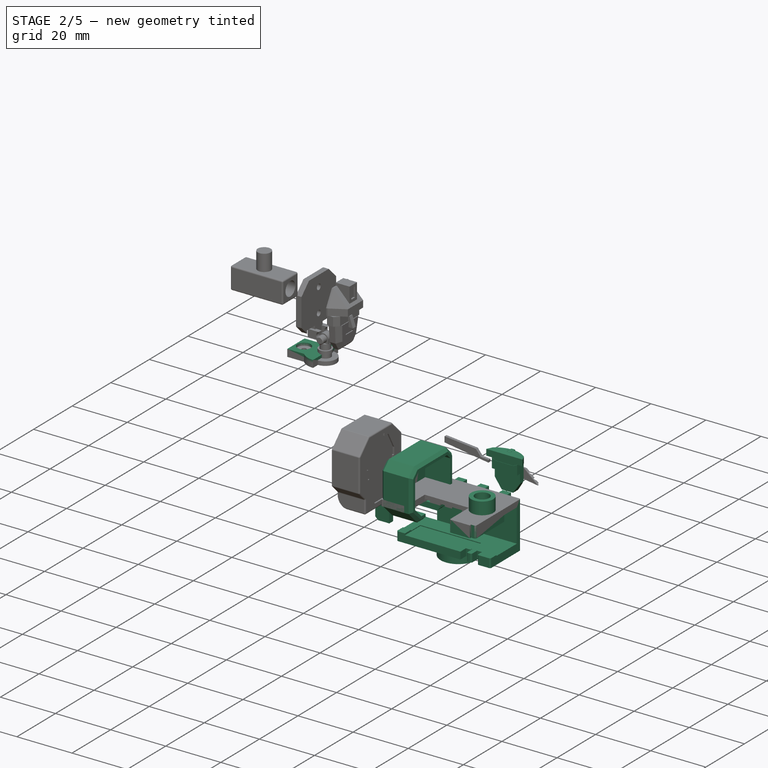
[diagram: stage 2 of 5 — iso view after this stage's code; geometry added in this stage tinted green]
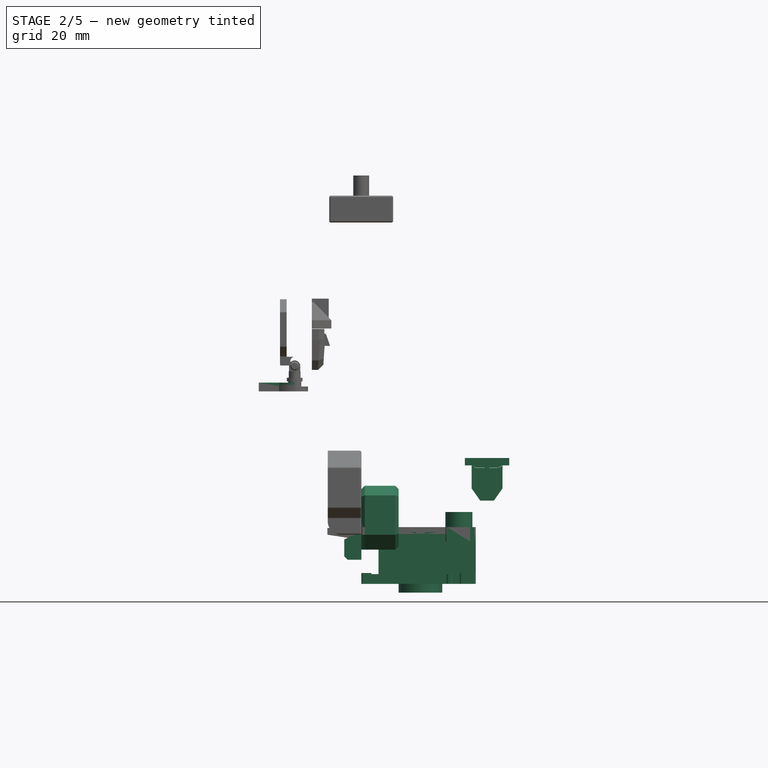
[diagram: stage 2 of 5 — front view after this stage's code; geometry added in this stage tinted green]
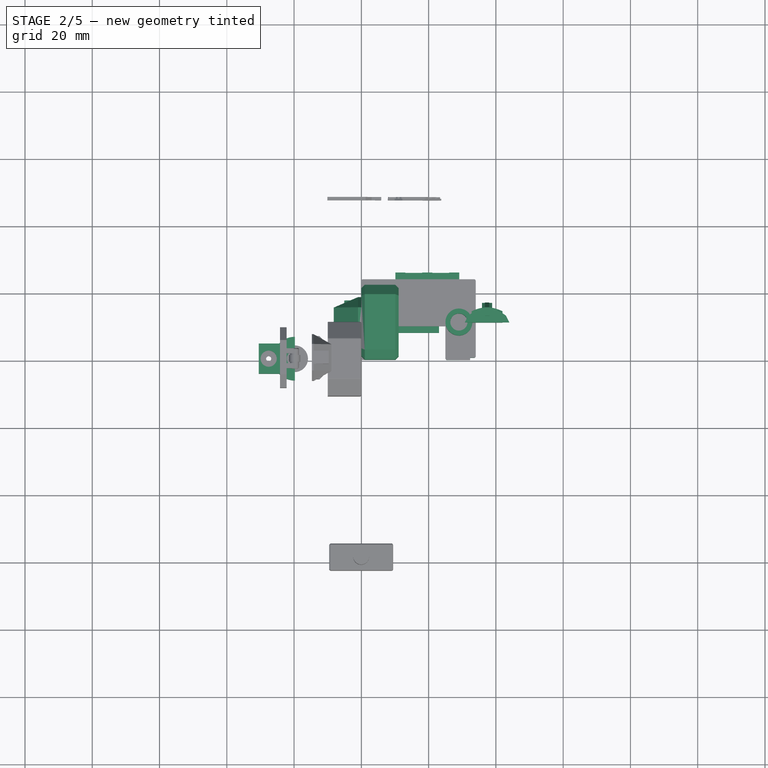
[diagram: stage 2 of 5 — top view after this stage's code; geometry added in this stage tinted green]
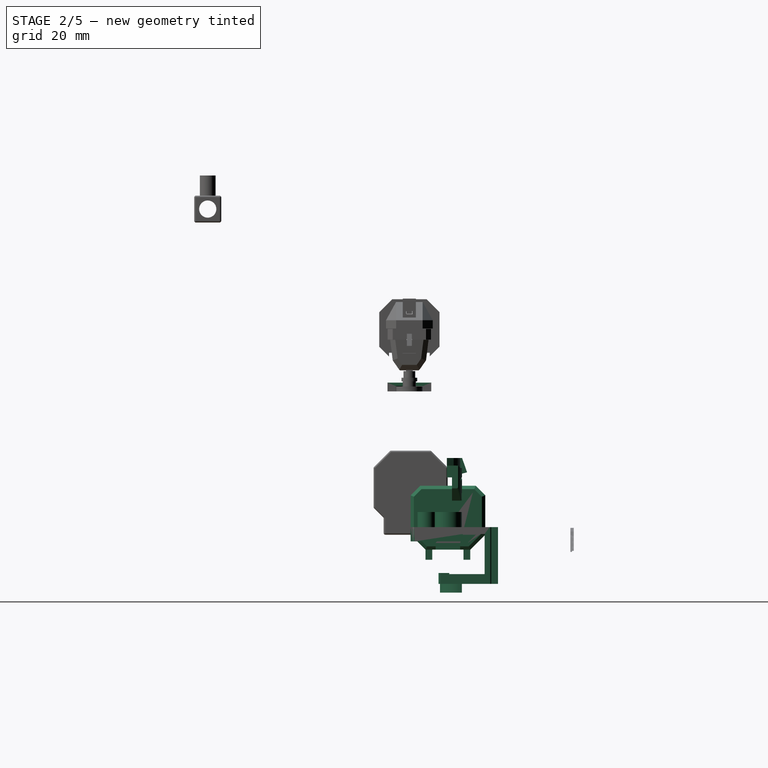
[diagram: stage 2 of 5 — right view after this stage's code; geometry added in this stage tinted green]
FEATURE [Sketcher::SketchObject] Sketch549
  ArcFitTolerance = 1e-06
  AttachmentSupport = -> [YZ_Plane039]
  FullyConstrained = true
  MakeInternals = false
  MapMode = 5
  Placement = pos=(0,0,0) rot=(0.57735,0.57735,0.57735;2.0944rad)
  sketch-geometry (8):
    g0: LineSegment StartX=0 StartY=0 StartZ=0 EndX=0 EndY=11.7 EndZ=0
    g1: LineSegment StartX=0 StartY=11.7 StartZ=0 EndX=2.85 EndY=14.55 EndZ=0
    g2: LineSegment StartX=2.85 StartY=14.55 StartZ=0 EndX=19.35 EndY=14.55 EndZ=0
    g3: LineSegment StartX=19.35 StartY=14.55 StartZ=0 EndX=22.2 EndY=11.7 EndZ=0
    g4: LineSegment StartX=22.2 StartY=11.7 StartZ=0 EndX=22.2 EndY=0 EndZ=0
    g5: LineSegment StartX=22.2 StartY=0 StartZ=0 EndX=17.75 EndY=-4.45 EndZ=0
    g6: LineSegment StartX=0 StartY=0 StartZ=0 EndX=4.45 EndY=-4.45 EndZ=0
    g7: LineSegment StartX=4.45 StartY=-4.45 StartZ=0 EndX=17.75 EndY=-4.45 EndZ=0
  constraints (24):
    c: Coincident(g0,g-1)
    c: Vertical(g0)
    c: Coincident(g1,g0)
    c: Coincident(g2,g1)
    c: Horizontal(g2)
    c: Coincident(g3,g2)
    c: Coincident(g4,g3)
    c: PointOnObject(g4,g-1)
    c: Vertical(g4)
    c: Coincident(g5,g4)
    c: Coincident(g6,g0)
    c: Coincident(g7,g6)
    c: Coincident(g7,g5)
    c: Horizontal(g7)
    c: DistanceX(g0,g3) = 22.2
    c: DistanceY(g5,g2) = 19
    c: DistanceY(g4,g4) = 11.7
    c: DistanceY(g0,g0) = 11.7
    c: DistanceX(g2,g2) = 16.5
    c: Angle(g2,g3) = 2.35619
    c: Angle(g1,g2) = 2.35619
    c: Angle(g6,g0) = 2.35619
    c: Angle(g4,g5) = 2.35619
    c: DistanceX(g7,g7) = 13.3
FEATURE [PartDesign::Pad] Pad335
  Direction = (1,0,0)
  Length = 2
  Length2 = 10
  Placement = pos=(0,0,0) rot=(1,1,1;2.0944rad)
  Profile = -> Sketch549
  ReferenceAxis = -> Sketch549 [N_Axis]
  Refine = true
  Suppressed = false
  Type = 0
FEATURE [Sketcher::SketchObject] Sketch550
  ArcFitTolerance = 1e-06
  AttachmentSupport = -> [Pad335]
  ExternalGeometry = -> [Pad335]
  FullyConstrained = true
  MakeInternals = false
  MapMode = 5
  Placement = pos=(0,0,0) rot=(0.57735,0.57735,-0.57735;4.18879rad)
  sketch-geometry (6):
    g0: LineSegment StartX=6.7 StartY=-12.45 StartZ=0 EndX=15.5 EndY=-12.45 EndZ=0
    g1: LineSegment StartX=15.5 StartY=-12.45 StartZ=0 EndX=18.6 EndY=-6.35 EndZ=0
    g2: LineSegment StartX=18.6 StartY=-6.35 StartZ=0 EndX=18.6 EndY=-4.35 EndZ=0
    g3: LineSegment StartX=18.6 StartY=-4.35 StartZ=0 EndX=3.6 EndY=-4.35 EndZ=0
    g4: LineSegment StartX=3.6 StartY=-4.35 StartZ=0 EndX=3.6 EndY=-6.35 EndZ=0
    g5: LineSegment StartX=3.6 StartY=-6.35 StartZ=0 EndX=6.7 EndY=-12.45 EndZ=0
  constraints (20):
    c: Horizontal(g0)
    c: Coincident(g1,g0)
    c: Coincident(g2,g1)
    c: Vertical(g2)
    c: Coincident(g3,g2)
    c: Horizontal(g3)
    c: Coincident(g4,g3)
    c: Vertical(g4)
    c: Coincident(g5,g4)
    c: Coincident(g5,g0)
    c: DistanceY(g2,g2) = 2
    c: DistanceY(g4,g4) = 2
    c: DistanceY(g0,g3) = 8.1
    c: DistanceX(g3,g3) = 15
    c: DistanceX(g0,g0) = 8.8
    c: DistanceX(g0,g1) = 3.1
    c: DistanceX(g-4,g-3) = 22.2
    c: DistanceX(g2,g-3) = 3.6
    c: DistanceX(g-4,g4) = 3.6
    c: DistanceY(g-5,g0) = 2.1
FEATURE [PartDesign::Pad] Pad336
  BaseFeature = -> Pad335
  Direction = (-1,0,0)
  Length = 1
  Length2 = 10
  Placement = pos=(0,0,0) rot=(1,1,1;2.0944rad)
  Profile = -> Sketch550
  ReferenceAxis = -> Sketch550 [N_Axis]
  Refine = true
  Suppressed = false
  Type = 0
FEATURE [Sketcher::SketchObject] Sketch551
  ArcFitTolerance = 1e-06
  AttachmentSupport = -> [Pad336]
  ExternalGeometry = -> [Pad336]
  FullyConstrained = true
  MakeInternals = false
  MapMode = 5
  Placement = pos=(-1,0,0) rot=(0.57735,0.57735,-0.57735;4.18879rad)
  sketch-geometry (4):
    g0: LineSegment StartX=18.6 StartY=-6.35 StartZ=0 EndX=18.6 EndY=-4.35 EndZ=0
    g1: LineSegment StartX=18.6 StartY=-4.35 StartZ=0 EndX=3.6 EndY=-4.35 EndZ=0
    g2: LineSegment StartX=3.6 StartY=-4.35 StartZ=0 EndX=3.6 EndY=-6.35 EndZ=0
    g3: LineSegment StartX=3.6 StartY=-6.35 StartZ=0 EndX=18.6 EndY=-6.35 EndZ=0
  constraints (10):
    c: Coincident(g0,g1)
    c: Coincident(g1,g2)
    c: Coincident(g2,g3)
    c: Coincident(g3,g0)
    c: Vertical(g0)
    c: Vertical(g2)
    c: Horizontal(g1)
    c: Horizontal(g3)
    c: Coincident(g0,g-4)
    c: Coincident(g1,g-5)
FEATURE [PartDesign::Pad] Pad337
  BaseFeature = -> Pad336
  Direction = (-1,0,0)
  Length = 7.2
  Length2 = 10
  Placement = pos=(0,0,0) rot=(1,1,1;2.0944rad)
  Profile = -> Sketch551
  ReferenceAxis = -> Sketch551 [N_Axis]
  Refine = true
  Suppressed = false
  Type = 0
FEATURE [Sketcher::SketchObject] Sketch552
  ArcFitTolerance = 1e-06
  AttachmentSupport = -> [Pad337]
  ExternalGeometry = -> [Pad337]
  FullyConstrained = true
  MakeInternals = false
  MapMode = 5
  Placement = pos=(0,1.4e-15,6.35) rot=(0,0,-1;1.5708rad)
  sketch-geometry (6):
    g0: LineSegment StartX=-18.6 StartY=-1 StartZ=0 EndX=-18.6 EndY=-8.2 EndZ=0
    g1: LineSegment StartX=-18.6 StartY=-8.2 StartZ=0 EndX=-15.5 EndY=-8.2 EndZ=0
    g2: LineSegment StartX=-3.6 StartY=-1 StartZ=0 EndX=-3.6 EndY=-8.2 EndZ=0
    g3: LineSegment StartX=-3.6 StartY=-8.2 StartZ=0 EndX=-6.7 EndY=-8.2 EndZ=0
    g4: LineSegment StartX=-6.7 StartY=-8.2 StartZ=0 EndX=-3.6 EndY=-1 EndZ=0
    g5: LineSegment StartX=-15.5 StartY=-8.2 StartZ=0 EndX=-18.6 EndY=-1 EndZ=0
  constraints (14):
    c: Coincident(g0,g-3)
    c: Coincident(g0,g-4)
    c: Coincident(g1,g0)
    c: PointOnObject(g1,g-4)
    c: Coincident(g2,g-5)
    c: Coincident(g2,g-5)
    c: Coincident(g3,g2)
    c: PointOnObject(g3,g-4)
    c: Coincident(g4,g3)
    c: Coincident(g4,g2)
    c: Coincident(g5,g1)
    c: Coincident(g5,g0)
    c: DistanceX(g-6,g1) = 0
    c: DistanceX(g3,g-7) = 0
FEATURE [PartDesign::Pocket] Pocket308
  BaseFeature = -> Pad337
  Direction = (0,0,-1)
  Length = 5
  Length2 = 5
  Placement = pos=(0,0,0) rot=(1,1,1;2.0944rad)
  Profile = -> Sketch552
  ReferenceAxis = -> Sketch552 [N_Axis]
  Refine = true
  Suppressed = false
  Type = 0
FEATURE [Sketcher::SketchObject] Sketch553
  ArcFitTolerance = 1e-06
  AttachmentSupport = -> [Pocket308]
  ExternalGeometry = -> [Pocket308]
  FullyConstrained = true
  MakeInternals = false
  MapMode = 5
  Placement = pos=(-1,0,0) rot=(0.57735,0.57735,-0.57735;4.18879rad)
  sketch-geometry (4):
    g0: LineSegment StartX=6.7 StartY=-6.35 StartZ=0 EndX=6.7 EndY=-12.45 EndZ=0
    g1: LineSegment StartX=6.7 StartY=-12.45 StartZ=0 EndX=15.5 EndY=-12.45 EndZ=0
    g2: LineSegment StartX=15.5 StartY=-12.45 StartZ=0 EndX=15.5 EndY=-6.35 EndZ=0
    g3: LineSegment StartX=15.5 StartY=-6.35 StartZ=0 EndX=6.7 EndY=-6.35 EndZ=0
  constraints (10):
    c: Coincident(g0,g1)
    c: Coincident(g1,g2)
    c: Coincident(g2,g3)
    c: Coincident(g3,g0)
    c: Vertical(g0)
    c: Vertical(g2)
    c: Horizontal(g1)
    c: Horizontal(g3)
    c: Coincident(g0,g-3)
    c: Coincident(g1,g-4)
FEATURE [PartDesign::Pad] Pad338
  BaseFeature = -> Pocket308
  Direction = (-1,0,0)
  Length = 7.2
  Length2 = 10
  Placement = pos=(0,0,0) rot=(1,1,1;2.0944rad)
  Profile = -> Sketch553
  ReferenceAxis = -> Sketch553 [N_Axis]
  Refine = true
  Suppressed = false
  Type = 0
FEATURE [Sketcher::SketchObject] Sketch554
  ArcFitTolerance = 1e-06
  AttachmentSupport = -> [Pad338]
  ExternalGeometry = -> [Pad338]
  FullyConstrained = true
  MakeInternals = false
  MapMode = 5
  Placement = pos=(1.5e-15,6.7,0) rot=(0.57735,0.57735,-0.57735;2.0944rad)
  sketch-geometry (3):
    g0: LineSegment StartX=-12.45 StartY=-1 StartZ=0 EndX=-12.45 EndY=-8.2 EndZ=0
    g1: LineSegment StartX=-12.45 StartY=-8.2 StartZ=0 EndX=-6.35 EndY=-8.2 EndZ=0
    g2: LineSegment StartX=-6.35 StartY=-8.2 StartZ=0 EndX=-12.45 EndY=-1 EndZ=0
  constraints (6):
    c: Coincident(g0,g-3)
    c: Coincident(g0,g-4)
    c: Coincident(g1,g0)
    c: Coincident(g1,g-4)
    c: Coincident(g2,g1)
    c: Coincident(g2,g0)
FEATURE [PartDesign::Pocket] Pocket309
  BaseFeature = -> Pad338
  Direction = (0,1,0)
  Length = 9
  Length2 = 5
  Placement = pos=(0,0,0) rot=(1,1,1;2.0944rad)
  Profile = -> Sketch554
  ReferenceAxis = -> Sketch554 [N_Axis]
  Refine = true
  Suppressed = false
  Type = 0
FEATURE [PartDesign::Plane] DatumPlane
  AttachmentSupport = -> [Pocket309]
  Length = 79.5566
  MapMode = 13
  Placement = pos=(-3.4,5.66667,8.38333) rot=(0.1713,0.831026,0.5292;2.92428rad)
  ResizeMode = 0
  Width = 86.9542
FEATURE [Sketcher::SketchObject] Sketch555
  ArcFitTolerance = 1e-06
  AttachmentSupport = -> [DatumPlane]
  ExternalGeometry = -> [Pocket309]
  FullyConstrained = true
  MakeInternals = false
  MapMode = 5
  Placement = pos=(-3.4,5.66667,8.38333) rot=(0.1713,0.831026,0.5292;2.92428rad)
  sketch-geometry (3):
    g0: LineSegment StartX=4.81736 StartY=-2.24393 StartZ=0 EndX=-1.79572 EndY=4.48787 EndZ=0
    g1: LineSegment StartX=-1.79572 StartY=4.48787 StartZ=0 EndX=-3.02164 EndY=-2.24393 EndZ=0
    g2: LineSegment StartX=-3.02164 StartY=-2.24393 StartZ=0 EndX=4.81736 EndY=-2.24393 EndZ=0
  constraints (6):
    c: Coincident(g0,g-5)
    c: Coincident(g0,g-4)
    c: Coincident(g1,g-5)
    c: Coincident(g2,g-5)
    c: Coincident(g2,g1)
    c: Coincident(g1,g0)
FEATURE [PartDesign::Pad] Pad339
  BaseFeature = -> Pocket309
  Direction = (0.358343,0.832282,-0.422963)
  Length = 4
  Length2 = 10
  Placement = pos=(0,0,0) rot=(1,1,1;2.0944rad)
  Profile = -> Sketch555
  ReferenceAxis = -> Sketch555 [N_Axis]
  Refine = true
  Suppressed = false
  Type = 0
FEATURE [PartDesign::Plane] DatumPlane001
  AttachmentSupport = -> [Pad339]
  Length = 79.5566
  MapMode = 13
  Placement = pos=(-3.4,16.5333,8.38333) rot=(0.971414,0.200238,0.127512;2.03363rad)
  ResizeMode = 0
  Width = 86.9542
FEATURE [Sketcher::SketchObject] Sketch556
  ArcFitTolerance = 1e-06
  AttachmentSupport = -> [DatumPlane001]
  ExternalGeometry = -> [Pad339]
  FullyConstrained = true
  MakeInternals = false
  MapMode = 5
  Placement = pos=(-3.4,16.5333,8.38333) rot=(0.971414,0.200238,0.127512;2.03363rad)
  sketch-geometry (3):
    g0: LineSegment StartX=3.02164 StartY=-2.24393 StartZ=0 EndX=-4.81736 EndY=-2.24393 EndZ=0
    g1: LineSegment StartX=-4.81736 StartY=-2.24393 StartZ=0 EndX=1.79572 EndY=4.48787 EndZ=0
    g2: LineSegment StartX=1.79572 StartY=4.48787 StartZ=0 EndX=3.02164 EndY=-2.24393 EndZ=0
  constraints (6):
    c: Coincident(g0,g-5)
    c: Coincident(g0,g-5)
    c: Coincident(g1,g-5)
    c: Coincident(g1,g-4)
    c: Coincident(g2,g1)
    c: Coincident(g2,g0)
FEATURE [PartDesign::Pad] Pad340
  BaseFeature = -> Pad339
  Direction = (0.358343,-0.832282,-0.422963)
  Length = 4
  Length2 = 10
  Placement = pos=(0,0,0) rot=(1,1,1;2.0944rad)
  Profile = -> Sketch556
  ReferenceAxis = -> Sketch556 [N_Axis]
  Refine = true
  Suppressed = false
  Type = 0
FEATURE [Sketcher::SketchObject] Sketch557
  ArcFitTolerance = 1e-06
  AttachmentSupport = -> [Pad340]
  ExternalGeometry = -> [Pad340]
  FullyConstrained = true
  MakeInternals = false
  MapMode = 5
  Placement = pos=(0,0,0) rot=(0.57735,0.57735,-0.57735;4.18879rad)
  sketch-geometry (8):
    g0: LineSegment StartX=17.75 StartY=-2.05 StartZ=0 EndX=17.75 EndY=7.45 EndZ=0
    g1: LineSegment StartX=17.75 StartY=7.45 StartZ=0 EndX=15.75 EndY=7.45 EndZ=0
    g2: LineSegment StartX=15.75 StartY=7.45 StartZ=0 EndX=15.75 EndY=-2.05 EndZ=0
    g3: LineSegment StartX=15.75 StartY=-2.05 StartZ=0 EndX=17.75 EndY=-2.05 EndZ=0
    g4: LineSegment StartX=4.45 StartY=-2.05 StartZ=0 EndX=6.45 EndY=-2.05 EndZ=0
    g5: LineSegment StartX=6.45 StartY=-2.05 StartZ=0 EndX=6.45 EndY=7.45 EndZ=0
    g6: LineSegment StartX=6.45 StartY=7.45 StartZ=0 EndX=4.45 EndY=7.45 EndZ=0
    g7: LineSegment StartX=4.45 StartY=7.45 StartZ=0 EndX=4.45 EndY=-2.05 EndZ=0
  constraints (24):
    c: Coincident(g0,g1)
    c: Coincident(g1,g2)
    c: Coincident(g2,g3)
    c: Coincident(g3,g0)
    c: Vertical(g0)
    c: Vertical(g2)
    c: Horizontal(g1)
    c: Horizontal(g3)
    c: Coincident(g4,g5)
    c: Coincident(g5,g6)
    c: Coincident(g6,g7)
    c: Coincident(g7,g4)
    c: Horizontal(g4)
    c: Horizontal(g6)
    c: Vertical(g5)
    c: Vertical(g7)
    c: DistanceY(g-4,g0) = 2.3
    c: DistanceY(g-3,g4) = 2.3
    c: DistanceX(g3,g3) = 2
    c: DistanceX(g4,g4) = 2
    c: DistanceY(g0,g0) = 9.5
    c: DistanceY(g7,g7) = 9.5
    c: PointOnObject(g-5,g7)
    c: PointOnObject(g-6,g0)
FEATURE [PartDesign::Pad] Pad341
  BaseFeature = -> Pad340
  Direction = (-1,1.8e-15,0)
  Length = 5.1
  Length2 = 10
  Placement = pos=(0,0,0) rot=(1,1,1;2.0944rad)
  Profile = -> Sketch557
  ReferenceAxis = -> Sketch557 [N_Axis]
  Refine = true
  Suppressed = false
  Type = 0
FEATURE [Sketcher::SketchObject] Sketch558
  ArcFitTolerance = 1e-06
  AttachmentSupport = -> [Pad341]
  ExternalGeometry = -> [Pad341]
  FullyConstrained = true
  MakeInternals = false
  MapMode = 5
  Placement = pos=(3.55e-14,17.75,0) rot=(0.57735,0.57735,0.57735;4.18879rad)
  sketch-geometry (8):
    g0: LineSegment StartX=2.05 StartY=-3.38e-14 StartZ=0 EndX=0.365789 EndY=-3.2 EndZ=0
    g1: LineSegment StartX=0.365789 StartY=-3.2 StartZ=0 EndX=-0.45 EndY=-3.2 EndZ=0
    g2: LineSegment StartX=-0.45 StartY=-3.2 StartZ=0 EndX=-1.45 EndY=-5.1 EndZ=0
    g3: LineSegment StartX=-1.45 StartY=-5.1 StartZ=0 EndX=2.05 EndY=-5.1 EndZ=0
    g4: LineSegment StartX=2.05 StartY=-5.1 StartZ=0 EndX=2.05 EndY=-3.38e-14 EndZ=0
    g5: LineSegment StartX=-7.45 StartY=-5.1 StartZ=0 EndX=-6.45 EndY=-5.1 EndZ=0
    g6: LineSegment StartX=-6.45 StartY=-5.1 StartZ=0 EndX=-7.45 EndY=-4.1 EndZ=0
    g7: LineSegment StartX=-7.45 StartY=-4.1 StartZ=0 EndX=-7.45 EndY=-5.1 EndZ=0
  constraints (21):
    c: Coincident(g0,g-5)
    c: Coincident(g1,g0)
    c: Horizontal(g1)
    c: Coincident(g2,g1)
    c: PointOnObject(g2,g-3)
    c: Coincident(g3,g2)
    c: Coincident(g3,g-5)
    c: Coincident(g4,g3)
    c: Coincident(g4,g0)
    c: Coincident(g5,g-4)
    c: PointOnObject(g5,g-3)
    c: Coincident(g6,g5)
    c: PointOnObject(g6,g-4)
    c: Coincident(g7,g6)
    c: Coincident(g7,g5)
    c: DistanceX(g6,g1) = 7
    c: DistanceY(g3,g0) = 1.9
    c: DistanceX(g5,g5) = 1
    c: DistanceY(g7,g7) = 1
    c: Parallel(g2,g0)
    c: DistanceX(g5,g2) = 5
FEATURE [PartDesign::Pocket] Pocket310
  BaseFeature = -> Pad341
  Direction = (-1.9e-15,-1,-1e-16)
  Length = 13.3
  Length2 = 5
  Placement = pos=(0,0,0) rot=(1,1,1;2.0944rad)
  Profile = -> Sketch558
  ReferenceAxis = -> Sketch558 [N_Axis]
  Refine = true
  Suppressed = false
  Type = 0
FEATURE [Sketcher::SketchObject] Sketch559
  ArcFitTolerance = 1e-06
  AttachmentSupport = -> [Pocket310]
  ExternalGeometry = -> [Pocket310]
  FullyConstrained = true
  MakeInternals = false
  MapMode = 5
  Placement = pos=(2,0,0) rot=(0.57735,0.57735,0.57735;2.0944rad)
  sketch-geometry (24):
    g0: LineSegment StartX=2.85 StartY=14.55 StartZ=0 EndX=1.42e-14 EndY=11.7 EndZ=0
    g1: LineSegment StartX=1.42e-14 StartY=11.7 StartZ=0 EndX=0 EndY=0 EndZ=0
    g2: LineSegment StartX=0 StartY=0 StartZ=0 EndX=4.45 EndY=-4.45 EndZ=0
    g3: LineSegment StartX=4.45 StartY=-4.45 StartZ=0 EndX=7.45 EndY=-4.45 EndZ=0
    g4: LineSegment StartX=7.45 StartY=-4.45 StartZ=0 EndX=7.45 EndY=-2.45 EndZ=0
    g5: LineSegment StartX=7.45 StartY=-2.45 StartZ=0 EndX=5.27843 EndY=-2.45 EndZ=0
    g6: LineSegment StartX=5.27843 StartY=-2.45 StartZ=0 EndX=2 EndY=0.828427 EndZ=0
    g7: LineSegment StartX=2 StartY=0.828427 StartZ=0 EndX=2 EndY=10.8716 EndZ=0
    g8: LineSegment StartX=2 StartY=10.8716 StartZ=0 EndX=3.67843 EndY=12.55 EndZ=0
    g9: LineSegment StartX=3.67843 StartY=12.55 StartZ=0 EndX=18.5216 EndY=12.55 EndZ=0
    g10: LineSegment StartX=18.5216 StartY=12.55 StartZ=0 EndX=20.2 EndY=10.8716 EndZ=0
    g11: LineSegment StartX=20.2 StartY=10.8716 StartZ=0 EndX=20.2 EndY=0.828427 EndZ=0
    g12: LineSegment StartX=20.2 StartY=0.828427 StartZ=0 EndX=16.9216 EndY=-2.45 EndZ=0
    g13: LineSegment StartX=16.9216 StartY=-2.45 StartZ=0 EndX=14.75 EndY=-2.45 EndZ=0
    g14: LineSegment StartX=14.75 StartY=-2.45 StartZ=0 EndX=14.75 EndY=-4.45 EndZ=0
    g15: LineSegment StartX=14.75 StartY=-4.45 StartZ=0 EndX=17.75 EndY=-4.45 EndZ=0
    g16: LineSegment StartX=2.85 StartY=14.55 StartZ=0 EndX=19.35 EndY=14.55 EndZ=0
    g17: LineSegment StartX=19.35 StartY=14.55 StartZ=0 EndX=22.2 EndY=11.7 EndZ=0
    g18: LineSegment StartX=22.2 StartY=11.7 StartZ=0 EndX=22.2 EndY=-7.64e-14 EndZ=0
    g19: LineSegment StartX=22.2 StartY=-7.64e-14 StartZ=0 EndX=17.75 EndY=-4.45 EndZ=0
    g20: LineSegment [constr] StartX=20.775 StartY=13.125 StartZ=0 EndX=19.3608 EndY=11.7108 EndZ=0
    g21: LineSegment [constr] StartX=1.425 StartY=13.125 StartZ=0 EndX=2.83921 EndY=11.7108 EndZ=0
    g22: LineSegment [constr] StartX=18.5608 StartY=-0.810786 StartZ=0 EndX=19.975 EndY=-2.225 EndZ=0
    g23: LineSegment [constr] StartX=3.63921 StartY=-0.810786 StartZ=0 EndX=2.225 EndY=-2.225 EndZ=0
  constraints (62):
    c: Coincident(g0,g-9)
    c: Coincident(g0,g-8)
    c: Coincident(g1,g0)
    c: Coincident(g1,g-1)
    c: Coincident(g2,g1)
    c: Coincident(g2,g-6)
    c: Coincident(g3,g2)
    c: PointOnObject(g3,g-5)
    c: Coincident(g4,g3)
    c: Coincident(g5,g4)
    c: Horizontal(g5)
    c: Coincident(g6,g5)
    c: Coincident(g7,g6)
    c: Vertical(g7)
    c: Coincident(g8,g7)
    c: Coincident(g9,g8)
    c: Horizontal(g9)
    c: Coincident(g10,g9)
    c: Coincident(g11,g10)
    c: Vertical(g11)
    c: Coincident(g12,g11)
    c: Coincident(g13,g12)
    c: Horizontal(g13)
    c: Coincident(g14,g13)
    c: PointOnObject(g14,g-5)
    c: Vertical(g14)
    c: Coincident(g15,g14)
    c: Coincident(g15,g-5)
    c: Coincident(g16,g0)
    c: Coincident(g16,g-10)
    c: Coincident(g17,g16)
    c: Coincident(g17,g-10)
    c: Coincident(g18,g17)
    c: Coincident(g18,g-4)
    c: Coincident(g19,g18)
    c: Coincident(g19,g15)
    c: DistanceX(g3,g3) = 3
    c: DistanceX(g15,g15) = 3
    c: Vertical(g4)
    c: DistanceY(g4,g4) = 2
    c: DistanceY(g14,g14) = 2
    c: DistanceX(g10,g17) = 2
    c: DistanceX(g0,g7) = 2
    c: Parallel(g0,g8)
    c: Parallel(g10,g17)
    c: DistanceY(g8,g0) = 2
    c: Symmetric(g17,g17,g20)
    c: PointOnObject(g20,g10)
    c: Angle(g20,g17) = 1.5708
    c: Distance(g20) = 2
    c: Symmetric(g0,g0,g21)
    c: PointOnObject(g21,g8)
    c: Angle(g21,g0) = 1.5708
    c: Distance(g21) = 2
    c: Parallel(g12,g19)
    c: Parallel(g6,g2)
    c: Symmetric(g12,g12,g22)
    c: Symmetric(g19,g19,g22)
    c: Distance(g22) = 2
    c: Symmetric(g6,g6,g23)
    c: Symmetric(g2,g2,g23)
    c: Distance(g23) = 2
FEATURE [PartDesign::Pad] Pad342
  BaseFeature = -> Pocket310
  Direction = (1,-2.1e-15,1e-15)
  Length = 9.1
  Length2 = 10
  Placement = pos=(0,0,0) rot=(1,1,1;2.0944rad)
  Profile = -> Sketch559
  ReferenceAxis = -> Sketch559 [N_Axis]
  Refine = true
  Suppressed = false
  Type = 0
FEATURE [PartDesign::Chamfer] Chamfer007
  Angle = 45
  Base = -> Pad342 [Edge67,Edge47,Edge56,Edge57,Edge58,Edge59,Edge60,Edge19,Edge18,Edge17,Edge30,Edge31,Edge32,Edge16,Edge34,Edge33]
  BaseFeature = -> Pad342
  ChamferType = 0
  FlipDirection = false
  Placement = pos=(0,0,0) rot=(1,1,1;2.0944rad)
  Refine = true
  Size = 1
  Size2 = 1
  SupportTransform = false
  Suppressed = false
  UseAllEdges = false
FEATURE [Sketcher::SketchObject] Sketch560
  ArcFitTolerance = 1e-06
  AttachmentSupport = -> [Chamfer007]
  ExternalGeometry = -> [Chamfer007]
  FullyConstrained = true
  MakeInternals = false
  MapMode = 5
  Placement = pos=(-8e-15,0,0) rot=(0.57735,0.57735,-0.57735;4.18879rad)
  sketch-geometry (24):
    g0: LineSegment StartX=3.6 StartY=-4.35 StartZ=0 EndX=1 EndY=-4.35 EndZ=0
    g1: LineSegment StartX=1 StartY=-4.35 StartZ=0 EndX=1 EndY=-6.35 EndZ=0
    g2: LineSegment StartX=1 StartY=-6.35 StartZ=0 EndX=3.6 EndY=-6.35 EndZ=0
    g3: LineSegment StartX=3.6 StartY=-6.35 StartZ=0 EndX=3.6 EndY=-4.35 EndZ=0
    g4: LineSegment StartX=18.6 StartY=-4.35 StartZ=0 EndX=18.6 EndY=-6.35 EndZ=0
    g5: LineSegment StartX=18.6 StartY=-6.35 StartZ=0 EndX=21.2 EndY=-6.35 EndZ=0
    g6: LineSegment StartX=21.2 StartY=-6.35 StartZ=0 EndX=21.2 EndY=-4.35 EndZ=0
    g7: LineSegment StartX=21.2 StartY=-4.35 StartZ=0 EndX=18.6 EndY=-4.35 EndZ=0
    g8: LineSegment StartX=17.75 StartY=-2.05 StartZ=0 EndX=21.2 EndY=-2.05 EndZ=0
    g9: LineSegment StartX=21.2 StartY=-2.05 StartZ=0 EndX=21.2 EndY=-0.414214 EndZ=0
    g10: LineSegment StartX=21.2 StartY=-0.414214 StartZ=0 EndX=17.75 EndY=-0.414214 EndZ=0
    g11: LineSegment StartX=17.75 StartY=-0.414214 StartZ=0 EndX=17.75 EndY=-2.05 EndZ=0
    g12: LineSegment StartX=4.45 StartY=-2.05 StartZ=0 EndX=4.45 EndY=-0.414214 EndZ=0
    g13: LineSegment StartX=4.45 StartY=-0.414214 StartZ=0 EndX=1 EndY=-0.414214 EndZ=0
    g14: LineSegment StartX=1 StartY=-0.414214 StartZ=0 EndX=1 EndY=-2.05 EndZ=0
    g15: LineSegment StartX=1 StartY=-2.05 StartZ=0 EndX=4.45 EndY=-2.05 EndZ=0
    g16: LineSegment StartX=1 StartY=-8.35 StartZ=0 EndX=4.61639 EndY=-8.35 EndZ=0
    g17: LineSegment StartX=4.61639 StartY=-8.35 StartZ=0 EndX=5.63279 EndY=-10.35 EndZ=0
    g18: LineSegment StartX=5.63279 StartY=-10.35 StartZ=0 EndX=1 EndY=-10.35 EndZ=0
    g19: LineSegment StartX=1 StartY=-10.35 StartZ=0 EndX=1 EndY=-8.35 EndZ=0
    g20: LineSegment StartX=21.2 StartY=-8.35 StartZ=0 EndX=17.5836 EndY=-8.35 EndZ=0
    g21: LineSegment StartX=17.5836 StartY=-8.35 StartZ=0 EndX=16.5672 EndY=-10.35 EndZ=0
    g22: LineSegment StartX=16.5672 StartY=-10.35 StartZ=0 EndX=21.2 EndY=-10.35 EndZ=0
    g23: LineSegment StartX=21.2 StartY=-10.35 StartZ=0 EndX=21.2 EndY=-8.35 EndZ=0
  constraints (64):
    c: Coincident(g0,g1)
    c: Coincident(g1,g2)
    c: Coincident(g2,g3)
    c: Coincident(g3,g0)
    c: Horizontal(g0)
    c: Horizontal(g2)
    c: Vertical(g1)
    c: Coincident(g0,g-8)
    c: Coincident(g4,g5)
    c: Coincident(g5,g6)
    c: Coincident(g6,g7)
    c: Coincident(g7,g4)
    c: Vertical(g6)
    c: Horizontal(g5)
    c: Horizontal(g7)
    c: Coincident(g4,g-7)
    c: Coincident(g8,g9)
    c: Coincident(g9,g10)
    c: Coincident(g10,g11)
    c: Coincident(g11,g8)
    c: Horizontal(g8)
    c: Horizontal(g10)
    c: Vertical(g9)
    c: Vertical(g11)
    c: Coincident(g8,g-13)
    c: Coincident(g12,g13)
    c: Coincident(g13,g14)
    c: Coincident(g14,g15)
    c: Coincident(g15,g12)
    c: Vertical(g12)
    c: Vertical(g14)
    c: Horizontal(g13)
    c: Horizontal(g15)
    c: Coincident(g12,g-15)
    c: PointOnObject(g16,g-9)
    c: PointOnObject(g16,g-10)
    c: Horizontal(g16)
    c: Coincident(g17,g16)
    c: PointOnObject(g17,g-10)
    c: Coincident(g18,g17)
    c: PointOnObject(g18,g-9)
    c: Horizontal(g18)
    c: Coincident(g19,g18)
    c: Coincident(g19,g16)
    c: PointOnObject(g20,g-12)
    c: PointOnObject(g20,g-11)
    c: Horizontal(g20)
    c: Coincident(g21,g20)
    c: PointOnObject(g21,g-11)
    c: Coincident(g22,g21)
    c: PointOnObject(g22,g-12)
    c: Horizontal(g22)
    c: Coincident(g23,g22)
    c: Coincident(g23,g20)
    c: Coincident(g2,g-10)
    c: Coincident(g4,g-11)
    c: PointOnObject(g6,g-12)
    c: PointOnObject(g0,g-9)
    c: DistanceY(g19,g19) = 2
    c: Coincident(g13,g-16)
    c: Coincident(g9,g-14)
    c: DistanceY(g23,g23) = 2
    c: DistanceY(g20,g5) = 2
    c: DistanceY(g16,g1) = 2
FEATURE [PartDesign::Pocket] Pocket311
  BaseFeature = -> Chamfer007
  Direction = (1,0,3.1e-15)
  Length = 0.5
  Length2 = 5
  Placement = pos=(0,0,0) rot=(1,1,1;2.0944rad)
  Profile = -> Sketch560
  ReferenceAxis = -> Sketch560 [N_Axis]
  Refine = true
  Suppressed = false
  Type = 0
FEATURE [PartDesign::SubShapeBinder] Binder019
  BindCopyOnChange = 0
  BindMode = 2
  ClaimChildren = false
  Context = -> Part001 [Body036.Binder019.]
  Fuse = false
  MakeFace = true
  OffsetFill = false
  OffsetIntersection = false
  OffsetJoinType = 0
  OffsetOpenResult = false
  PartialLoad = false
  Refine = true
  Relative = true
  _Version = 2
FEATURE [Sketcher::SketchObject] Sketch585
  ArcFitTolerance = 1e-06
  AttachmentSupport = -> [Binder019]
  ExternalGeometry = -> [Binder019]
  FullyConstrained = true
  MakeInternals = false
  MapMode = 5
  Placement = pos=(2.7e-15,10.8,-3e-14) rot=(0,0.707107,0.707107;3.14159rad)
  sketch-geometry (10):
    g0: LineSegment StartX=-38.02 StartY=22.85 StartZ=0 EndX=-38.02 EndY=19.85 EndZ=0
    g1: LineSegment StartX=-38.02 StartY=19.85 StartZ=0 EndX=-40.52 EndY=19.85 EndZ=0
    g2: LineSegment StartX=-40.52 StartY=19.85 StartZ=0 EndX=-42.02 EndY=20.55 EndZ=0
    g3: LineSegment StartX=-42.02 StartY=20.55 StartZ=0 EndX=-42.02 EndY=17.05 EndZ=0
    g4: LineSegment StartX=-42.02 StartY=17.05 StartZ=0 EndX=-32.72 EndY=17.05 EndZ=0
    g5: LineSegment StartX=-32.72 StartY=17.05 StartZ=0 EndX=-32.72 EndY=20.55 EndZ=0
    g6: LineSegment StartX=-32.72 StartY=20.55 StartZ=0 EndX=-34.22 EndY=19.85 EndZ=0
    g7: LineSegment StartX=-34.22 StartY=19.85 StartZ=0 EndX=-36.72 EndY=19.85 EndZ=0
    g8: LineSegment StartX=-36.72 StartY=19.85 StartZ=0 EndX=-36.72 EndY=22.85 EndZ=0
    g9: LineSegment StartX=-36.72 StartY=22.85 StartZ=0 EndX=-38.02 EndY=22.85 EndZ=0
  constraints (20):
    c: Coincident(g0,g-3)
    c: Coincident(g0,g-12)
    c: Coincident(g1,g0)
    c: Coincident(g1,g-12)
    c: Coincident(g2,g1)
    c: Coincident(g2,g-11)
    c: Coincident(g3,g2)
    c: Coincident(g3,g-10)
    c: Coincident(g4,g3)
    c: Coincident(g4,g-9)
    c: Coincident(g5,g4)
    c: Coincident(g5,g-8)
    c: Coincident(g6,g5)
    c: Coincident(g6,g-7)
    c: Coincident(g7,g6)
    c: Coincident(g7,g-6)
    c: Coincident(g8,g7)
    c: Coincident(g8,g-5)
    c: Coincident(g9,g8)
    c: Coincident(g9,g0)
FEATURE [PartDesign::Pad] Pad354
  Direction = (0,1,-2.9e-15)
  Length = 1.5
  Length2 = 10
  Profile = -> Sketch585
  ReferenceAxis = -> Sketch585 [N_Axis]
  Refine = true
  Suppressed = false
  Type = 0
FEATURE [Sketcher::SketchObject] Sketch586
  ArcFitTolerance = 1e-06
  AttachmentSupport = -> [Pad354]
  ExternalGeometry = -> [Pad354]
  FullyConstrained = true
  MakeInternals = false
  MapMode = 5
  Placement = pos=(0,12.3,-3.68e-14) rot=(0,0.707107,0.707107;3.14159rad)
  sketch-geometry (12):
    g0: LineSegment StartX=-38.02 StartY=22.85 StartZ=0 EndX=-36.72 EndY=22.85 EndZ=0
    g1: LineSegment StartX=-36.72 StartY=22.85 StartZ=0 EndX=-36.72 EndY=19.85 EndZ=0
    g2: LineSegment StartX=-36.72 StartY=19.85 StartZ=0 EndX=-34.22 EndY=19.85 EndZ=0
    g3: LineSegment StartX=-34.22 StartY=19.85 StartZ=0 EndX=-32.72 EndY=20.55 EndZ=0
    g4: LineSegment StartX=-38.02 StartY=22.85 StartZ=0 EndX=-38.02 EndY=19.85 EndZ=0
    g5: LineSegment StartX=-38.02 StartY=19.85 StartZ=0 EndX=-40.52 EndY=19.85 EndZ=0
    g6: LineSegment StartX=-40.52 StartY=19.85 StartZ=0 EndX=-42.02 EndY=20.55 EndZ=0
    g7: LineSegment StartX=-32.72 StartY=20.55 StartZ=0 EndX=-32.72 EndY=13.85 EndZ=0
    g8: LineSegment StartX=-32.72 StartY=13.85 StartZ=0 EndX=-35.32 EndY=10.15 EndZ=0
    g9: LineSegment StartX=-35.32 StartY=10.15 StartZ=0 EndX=-39.42 EndY=10.15 EndZ=0
    g10: LineSegment StartX=-39.42 StartY=10.15 StartZ=0 EndX=-42.02 EndY=13.85 EndZ=0
    g11: LineSegment StartX=-42.02 StartY=13.85 StartZ=0 EndX=-42.02 EndY=20.55 EndZ=0
  constraints (29):
    c: Coincident(g0,g-8)
    c: Coincident(g0,g-6)
    c: Coincident(g1,g0)
    c: Coincident(g1,g-6)
    c: Coincident(g2,g1)
    c: Coincident(g2,g-5)
    c: Coincident(g3,g2)
    c: Coincident(g3,g-4)
    c: Coincident(g4,g0)
    c: Coincident(g4,g-9)
    c: Coincident(g5,g4)
    c: Coincident(g5,g-10)
    c: Coincident(g6,g5)
    c: Coincident(g6,g-11)
    c: Coincident(g7,g3)
    c: Vertical(g7)
    c: Coincident(g8,g7)
    c: Coincident(g9,g8)
    c: Horizontal(g9)
    c: Coincident(g10,g9)
    c: Coincident(g11,g10)
    c: Coincident(g11,g6)
    c: Vertical(g11)
    c: DistanceX(g9,g9) = 4.1
    c: DistanceY(g10,g7) = 0
    c: DistanceY(g7,g3) = 6.7
    c: DistanceY(g8,g7) = 3.7
    c: DistanceX(g8,g7) = 2.6
    c: DistanceX(g10,g9) = 2.6
FEATURE [PartDesign::Pad] Pad355
  BaseFeature = -> Pad354
  Direction = (0,1,-2.9e-15)
  Length = 3
  Length2 = 10
  Profile = -> Sketch586
  ReferenceAxis = -> Sketch586 [N_Axis]
  Refine = true
  Suppressed = false
  Type = 0
FEATURE [Sketcher::SketchObject] Sketch587
  ArcFitTolerance = 1e-06
  AttachmentSupport = -> [Pad355]
  ExternalGeometry = -> [Pad355]
  FullyConstrained = true
  MakeInternals = false
  MapMode = 5
  Placement = pos=(0,2.98e-14,10.15) rot=(1,0,0;3.14159rad)
  sketch-geometry (4):
    g0: ArcOfCircle CenterX=37.37 CenterY=-5.69062 CenterZ=0 NormalX=0 NormalY=0 NormalZ=1 AngleXU=0 Radius=9.60938 StartAngle=4.20728 EndAngle=5.2175
    g1: LineSegment StartX=42.02 StartY=-14.1 StartZ=0 EndX=42.02 EndY=-15.3 EndZ=0
    g2: LineSegment StartX=42.02 StartY=-15.3 StartZ=0 EndX=32.72 EndY=-15.3 EndZ=0
    g3: LineSegment StartX=32.72 StartY=-15.3 StartZ=0 EndX=32.72 EndY=-14.1 EndZ=0
  constraints (11):
    c: PointOnObject(g0,g-3)
    c: DistanceY(g-3,g0) = 1.2
    c: PointOnObject(g0,g-4)
    c: DistanceY(g-4,g0) = 1.2
    c: Tangent(g0,g-5)
    c: Coincident(g1,g0)
    c: Coincident(g1,g-3)
    c: Coincident(g2,g1)
    c: Coincident(g2,g-4)
    c: Coincident(g3,g2)
    c: Coincident(g3,g0)
FEATURE [PartDesign::Pocket] Pocket329
  BaseFeature = -> Pad355
  Direction = (0,2.9e-15,1)
  Length = 11
  Length2 = 5
  Profile = -> Sketch587
  ReferenceAxis = -> Sketch587 [N_Axis]
  Refine = true
  Suppressed = false
  Type = 0
FEATURE [PartDesign::Pad] Pad356
  BaseFeature = -> Pocket329
  Direction = (0,-3e-15,-1)
  Length = 3
  Length2 = 10
  Profile = -> Pocket329 [Face13]
  Refine = true
  Suppressed = false
  Type = 0
FEATURE [PartDesign::Pad] Pad357
  BaseFeature = -> Pad356
  Direction = (0,-3e-15,-1)
  Length = 3
  Length2 = 10
  Profile = -> Pad356 [Face15]
  Refine = true
  Suppressed = false
  Type = 0
FEATURE [Sketcher::SketchObject] Sketch588
  ArcFitTolerance = 1e-06
  AttachmentSupport = -> [Pad357]
  ExternalGeometry = -> [Pad357]
  FullyConstrained = true
  MakeInternals = false
  MapMode = 5
  Placement = pos=(36.72,0,0) rot=(0.57735,-0.57735,-0.57735;2.0944rad)
  sketch-geometry (3):
    g0: LineSegment StartX=-15.3 StartY=22.85 StartZ=0 EndX=-15.3 EndY=18.15 EndZ=0
    g1: LineSegment StartX=-15.3 StartY=18.15 StartZ=0 EndX=-16.8 EndY=18.5519 EndZ=0
    g2: LineSegment StartX=-16.8 StartY=18.5519 StartZ=0 EndX=-15.3 EndY=22.85 EndZ=0
  constraints (7):
    c: Coincident(g0,g-3)
    c: Coincident(g0,g-3)
    c: Coincident(g1,g0)
    c: Coincident(g2,g1)
    c: Coincident(g2,g0)
    c: DistanceX(g1,g0) = 1.5
    c: Angle(g0,g1) = 1.309
FEATURE [Sketcher::SketchObject] Sketch589
  ArcFitTolerance = 1e-06
  AttachmentSupport = -> [Pad357]
  ExternalGeometry = -> [Pad357]
  FullyConstrained = true
  MakeInternals = false
  MapMode = 5
  Placement = pos=(-8.86e-14,15.3,1.3e-14) rot=(0,0.707107,0.707107;3.14159rad)
  sketch-geometry (4):
    g0: LineSegment StartX=-38.87 StartY=10.4 StartZ=0 EndX=-35.87 EndY=10.4 EndZ=0
    g1: LineSegment StartX=-35.87 StartY=10.4 StartZ=0 EndX=-35.87 EndY=12.4 EndZ=0
    g2: LineSegment StartX=-35.87 StartY=12.4 StartZ=0 EndX=-38.87 EndY=12.4 EndZ=0
    g3: LineSegment StartX=-38.87 StartY=12.4 StartZ=0 EndX=-38.87 EndY=10.4 EndZ=0
  constraints (13):
    c: Horizontal(g0)
    c: Coincident(g1,g0)
    c: Vertical(g1)
    c: Coincident(g2,g1)
    c: Horizontal(g2)
    c: Coincident(g3,g2)
    c: Coincident(g3,g0)
    c: Vertical(g3)
    c: DistanceX(g2,g2) = 3
    c: DistanceX(g-3,g-4) = 4.1
    c: DistanceX(g-3,g0) = 0.55
    c: DistanceY(g-4,g0) = 0.25
    c: DistanceY(g1,g1) = 2
FEATURE [PartDesign::Pad] Pad358
  BaseFeature = -> Pad357
  Direction = (-5.8e-15,1,-2e-16)
  Length = 1
  Length2 = 10
  Profile = -> Sketch589
  ReferenceAxis = -> Sketch589 [N_Axis]
  Refine = true
  Reversed = true
  Suppressed = false
  Type = 0
FEATURE [PartDesign::Pad] Pad359
  BaseFeature = -> Pad358
  Direction = (-1,0,0)
  Length = 1.3
  Length2 = 10
  Profile = -> Sketch588
  ReferenceAxis = -> Sketch588 [N_Axis]
  Refine = true
  Reversed = true
  Suppressed = false
  Type = 0
FEATURE [Sketcher::SketchObject] Sketch590
  ArcFitTolerance = 1e-06
  AttachmentSupport = -> [Pad359]
  ExternalGeometry = -> [Pad359]
  FullyConstrained = true
  MakeInternals = false
  MapMode = 5
  Placement = pos=(35.87,2.077e-13,0) rot=(0.57735,-0.57735,-0.57735;2.0944rad)
  sketch-geometry (4):
    g0: LineSegment StartX=-15.3 StartY=12.4 StartZ=0 EndX=-16.8 EndY=11.15 EndZ=0
    g1: LineSegment StartX=-16.8 StartY=11.15 StartZ=0 EndX=-16.8 EndY=10.4 EndZ=0
    g2: LineSegment StartX=-15.3 StartY=10.4 StartZ=0 EndX=-16.8 EndY=10.4 EndZ=0
    g3: LineSegment StartX=-15.3 StartY=12.4 StartZ=0 EndX=-15.3 EndY=10.4 EndZ=0
  constraints (10):
    c: Coincident(g0,g-3)
    c: Coincident(g1,g0)
    c: Vertical(g1)
    c: Coincident(g2,g-3)
    c: Coincident(g2,g1)
    c: Horizontal(g2)
    c: DistanceX(g-4,g0) = 0
    c: DistanceY(g1,g1) = 0.75
    c: Coincident(g3,g0)
    c: Coincident(g3,g2)
FEATURE [PartDesign::Pad] Pad360
  BaseFeature = -> Pad359
  Direction = (-1,-5.8e-15,0)
  Length = 3
  Length2 = 10
  Profile = -> Sketch590
  ReferenceAxis = -> Sketch590 [N_Axis]
  Refine = true
  Reversed = true
  Suppressed = false
  Type = 0
FEATURE [Sketcher::SketchObject] Sketch591
  ArcFitTolerance = 1e-06
  ExternalGeometry = -> [Pad360]
  FullyConstrained = true
  MakeInternals = false
  Placement = pos=(0,16,0) rot=(1,0,0;1.5708rad)
  sketch-geometry (4):
    g0: ArcOfCircle CenterX=37.37 CenterY=11.7199 CenterZ=0 NormalX=0 NormalY=0 NormalZ=1 AngleXU=0 Radius=5.43876 StartAngle=1.09318 EndAngle=2.04841
    g1: ArcOfCircle CenterX=37.37 CenterY=11.7199 CenterZ=0 NormalX=0 NormalY=0 NormalZ=1 AngleXU=0 Radius=5 StartAngle=1.0472 EndAngle=2.0944
    g2: LineSegment StartX=34.87 StartY=16.55 StartZ=0 EndX=34.87 EndY=16.05 EndZ=0
    g3: LineSegment StartX=39.87 StartY=16.55 StartZ=0 EndX=39.87 EndY=16.05 EndZ=0
  constraints (14):
    c: Coincident(g2,g0)
    c: Coincident(g2,g1)
    c: Coincident(g3,g0)
    c: Coincident(g3,g1)
    c: Vertical(g3)
    c: Vertical(g2)
    c: DistanceY(g1,g1) = 0
    c: DistanceY(g2,g2) = 0.5
    c: DistanceX(g1,g1) = 5
    c: Coincident(g0,g1)
    c: Radius(g1) = 5
    c: DistanceX(g0,g-4) = 2.15
    c: DistanceX(g-3,g0) = 2.15
    c: DistanceY(g0,g-3) = 4
FEATURE [PartDesign::Pocket] Pocket330
  BaseFeature = -> Pad360
  Direction = (0,1,0)
  Length = 1.5
  Length2 = 5
  Profile = -> Sketch591
  ReferenceAxis = -> Sketch591 [N_Axis]
  Refine = true
  Reversed = true
  Suppressed = false
  Type = 0
FEATURE [PartDesign::Chamfer] Chamfer008
  Angle = 45
  Base = -> Pocket330 [Edge44,Edge43,Edge42,Edge41]
  BaseFeature = -> Pocket330
  ChamferType = 0
  FlipDirection = false
  Refine = true
  Size = 0.2
  Size2 = 1
  SupportTransform = false
  Suppressed = false
  UseAllEdges = false
FEATURE [PartDesign::Pocket] Pocket331
  BaseFeature = -> Chamfer008
  Direction = (1,0,0)
  Length = 0.05
  Length2 = 5
  Profile = -> Chamfer008 [Face9]
  Refine = true
  Suppressed = false
  Type = 0
FEATURE [PartDesign::Pocket] Pocket332
  BaseFeature = -> Pocket331
  Direction = (0,-2.9e-15,-1)
  Length = 5
  Length2 = 5
  Profile = -> Pocket331 [Face33]
  Refine = true
  Suppressed = false
  Type = 0
FEATURE [PartDesign::Pocket] Pocket333
  BaseFeature = -> Pocket332
  Direction = (-1,0,0)
  Length = 0.05
  Length2 = 5
  Profile = -> Pocket332 [Face1]
  Refine = true
  Suppressed = false
  Type = 0
FEATURE [PartDesign::Pocket] Pocket334
  BaseFeature = -> Pocket333
  Direction = (0,-2.9e-15,-1)
  Length = 5
  Length2 = 5
  Profile = -> Pocket333 [Face42]
  Refine = true
  Suppressed = false
  Type = 0
FEATURE [PartDesign::Pocket] Pocket335
  BaseFeature = -> Pocket334
  Direction = (0,1,-2.9e-15)
  Length = 5
  Length2 = 5
  Profile = -> Pocket334 [Face11]
  Refine = true
  Suppressed = false
  Type = 0
FEATURE [PartDesign::Pocket] Pocket336
  BaseFeature = -> Pocket335
  Direction = (0,0.318556,-0.209964)
  Length = 5
  Length2 = 5
  Profile = -> Pocket335 [Face29,Face6,Face40]
  Refine = true
  Suppressed = false
  Type = 0
FEATURE [PartDesign::Pocket] Pocket337
  BaseFeature = -> Pocket336
  Direction = (0,1,-2.9e-15)
  Length = 5
  Length2 = 5
  Profile = -> Pocket336 [Face15]
  Refine = true
  Suppressed = false
  Type = 0
FEATURE [PartDesign::Pocket] Pocket338
  BaseFeature = -> Pocket337
  Direction = (0,1,-2.9e-15)
  Length = 5
  Length2 = 5
  Profile = -> Pocket337 [Face39]
  Refine = true
  Suppressed = false
  Type = 0
FEATURE [PartDesign::Pocket] Pocket339
  BaseFeature = -> Pocket338
  Direction = (0,-2.9e-15,-1)
  Length = 5
  Length2 = 5
  Profile = -> Pocket338 [Face16]
  Refine = true
  Suppressed = false
  Type = 0
FEATURE [PartDesign::Pocket] Pocket340
  BaseFeature = -> Pocket339
  Direction = (0,0.318555,-0.209966)
  Length = 5
  Length2 = 5
  Profile = -> Pocket339 [Face28]
  Refine = true
  Suppressed = false
  Type = 0
FEATURE [Sketcher::SketchObject] Sketch592
  ArcFitTolerance = 1e-06
  AttachmentSupport = -> [Pocket340]
  ExternalGeometry = -> [Pocket340]
  FullyConstrained = true
  MakeInternals = false
  MapMode = 5
  Placement = pos=(0,6.03e-14,22.85) rot=(0,0,1;0rad)
  sketch-geometry (4):
    g0: LineSegment StartX=36.72 StartY=16.8 StartZ=0 EndX=36.72 EndY=10.8 EndZ=0
    g1: LineSegment StartX=36.72 StartY=10.8 StartZ=0 EndX=38.02 EndY=10.8 EndZ=0
    g2: LineSegment StartX=38.02 StartY=10.8 StartZ=0 EndX=38.02 EndY=16.8 EndZ=0
    g3: LineSegment StartX=38.02 StartY=16.8 StartZ=0 EndX=36.72 EndY=16.8 EndZ=0
  constraints (10):
    c: Coincident(g0,g1)
    c: Coincident(g1,g2)
    c: Coincident(g2,g3)
    c: Coincident(g3,g0)
    c: Vertical(g0)
    c: Vertical(g2)
    c: Horizontal(g1)
    c: Horizontal(g3)
    c: Coincident(g0,g-3)
    c: Coincident(g1,g-6)
FEATURE [PartDesign::Pocket] Pocket341
  BaseFeature = -> Pocket340
  Direction = (0,-2.6e-15,-1)
  Length = 0.05
  Length2 = 5
  Profile = -> Sketch592
  ReferenceAxis = -> Sketch592 [N_Axis]
  Refine = true
  Suppressed = false
  Type = 0
FEATURE [PartDesign::SubShapeBinder] Binder020
  BindCopyOnChange = 0
  BindMode = 2
  ClaimChildren = false
  Context = -> Part001 [Body037.Binder020.]
  Fuse = false
  MakeFace = true
  OffsetFill = false
  OffsetIntersection = false
  OffsetJoinType = 0
  OffsetOpenResult = false
  PartialLoad = false
  Refine = true
  Relative = true
  _Version = 2
FEATURE [Sketcher::SketchObject] Sketch593
  ArcFitTolerance = 1e-06
  AttachmentSupport = -> [Binder020]
  ExternalGeometry = -> [Binder020]
  FullyConstrained = true
  MakeInternals = false
  MapMode = 5
  Placement = pos=(2.7e-15,10.8,-3e-14) rot=(0,0.707107,0.707107;3.14159rad)
  sketch-geometry (12):
    g0: LineSegment StartX=-42.02 StartY=20.6 StartZ=0 EndX=-40.52 EndY=19.9 EndZ=0
    g1: LineSegment StartX=-40.52 StartY=19.9 StartZ=0 EndX=-38.07 EndY=19.9 EndZ=0
    g2: LineSegment StartX=-38.07 StartY=19.9 StartZ=0 EndX=-38.07 EndY=22.8 EndZ=0
    g3: LineSegment StartX=-38.07 StartY=22.8 StartZ=0 EndX=-43.97 EndY=22.8 EndZ=0
    g4: LineSegment StartX=-43.97 StartY=22.8 StartZ=0 EndX=-43.97 EndY=20.6 EndZ=0
    g5: LineSegment StartX=-43.97 StartY=20.6 StartZ=0 EndX=-42.02 EndY=20.6 EndZ=0
    g6: LineSegment StartX=-36.67 StartY=22.8 StartZ=0 EndX=-30.77 EndY=22.8 EndZ=0
    g7: LineSegment StartX=-30.77 StartY=22.8 StartZ=0 EndX=-30.77 EndY=20.6 EndZ=0
    g8: LineSegment StartX=-30.77 StartY=20.6 StartZ=0 EndX=-32.72 EndY=20.6 EndZ=0
    g9: LineSegment StartX=-32.72 StartY=20.6 StartZ=0 EndX=-34.22 EndY=19.9 EndZ=0
    g10: LineSegment StartX=-34.22 StartY=19.9 StartZ=0 EndX=-36.67 EndY=19.9 EndZ=0
    g11: LineSegment StartX=-36.67 StartY=19.9 StartZ=0 EndX=-36.67 EndY=22.8 EndZ=0
  constraints (37):
    c: Coincident(g1,g0)
    c: Horizontal(g1)
    c: Coincident(g2,g1)
    c: Vertical(g2)
    c: Coincident(g3,g2)
    c: Horizontal(g3)
    c: Coincident(g4,g3)
    c: Vertical(g4)
    c: Coincident(g5,g4)
    c: Coincident(g5,g0)
    c: Horizontal(g5)
    c: Horizontal(g6)
    c: Coincident(g7,g6)
    c: Vertical(g7)
    c: Coincident(g8,g7)
    c: Horizontal(g8)
    c: Coincident(g9,g8)
    c: Coincident(g10,g9)
    c: Horizontal(g10)
    c: Coincident(g11,g10)
    c: Coincident(g11,g6)
    c: Vertical(g11)
    c: DistanceY(g-6,g-6) = 3
    c: DistanceY(g11,g11) = 2.9
    c: DistanceY(g-7,g10) = 0.05
    c: DistanceY(g7,g7) = 2.2
    c: DistanceX(g8,g8) = 1.95
    c: DistanceX(g-7,g10) = 0.05
    c: Parallel(g-8,g9)
    c: DistanceX(g-8,g9) = 0
    c: DistanceY(g2,g2) = 2.9
    c: DistanceX(g1,g-4) = 0.05
    c: DistanceY(g-4,g1) = 0.05
    c: DistanceX(g-5,g0) = 0
    c: Parallel(g0,g-5)
    c: DistanceY(g4,g4) = 2.2
    c: DistanceX(g5,g5) = 1.95
FEATURE [PartDesign::Pad] Pad361
  Direction = (0,1,-2.9e-15)
  Length = 4
  Length2 = 10
  Profile = -> Sketch593 [Edge3,Edge2,Edge1,Edge6,Edge5,Edge4]
  ReferenceAxis = -> Sketch593 [N_Axis]
  Refine = true
  Suppressed = false
  Type = 0
FEATURE [Sketcher::SketchObject] Sketch594
  ArcFitTolerance = 1e-06
  AttachmentSupport = -> [Pad361]
  ExternalGeometry = -> [Pad361]
  FullyConstrained = true
  MakeInternals = false
  MapMode = 5
  Placement = pos=(0,6.06e-14,20.6) rot=(1,0,0;3.14159rad)
  sketch-geometry (3):
    g0: LineSegment StartX=42.02 StartY=-14.8 StartZ=0 EndX=43.97 EndY=-10.8 EndZ=0
    g1: LineSegment StartX=43.97 StartY=-10.8 StartZ=0 EndX=43.97 EndY=-14.8 EndZ=0
    g2: LineSegment StartX=43.97 StartY=-14.8 StartZ=0 EndX=42.02 EndY=-14.8 EndZ=0
  constraints (6):
    c: Coincident(g0,g-5)
    c: Coincident(g0,g-4)
    c: Coincident(g1,g0)
    c: Coincident(g1,g-5)
    c: Coincident(g2,g1)
    c: Coincident(g2,g0)
FEATURE [PartDesign::Pocket] Pocket342
  BaseFeature = -> Pad361
  Direction = (0,2.9e-15,1)
  Length = 5
  Length2 = 5
  Profile = -> Sketch594
  ReferenceAxis = -> Sketch594 [N_Axis]
  Refine = true
  Suppressed = false
  Type = 0
FEATURE [PartDesign::Pad] Pad362
  BaseFeature = -> Pocket342
  Direction = (0,-1,2.4e-15)
  Length = 9.1
  Length2 = 10
  Profile = -> Pocket342 [Face4]
  Refine = true
  Suppressed = false
  Type = 0
FEATURE [Sketcher::SketchObject] Sketch595
  ArcFitTolerance = 1e-06
  AttachmentSupport = -> [Pad362]
  ExternalGeometry = -> [Pad362]
  FullyConstrained = true
  MakeInternals = false
  MapMode = 5
  Placement = pos=(0,1.7,-4.1e-15) rot=(1,0,0;1.5708rad)
  sketch-geometry (4):
    g0: LineSegment StartX=38.07 StartY=22.8 StartZ=0 EndX=35.07 EndY=22.8 EndZ=0
    g1: LineSegment StartX=35.07 StartY=22.8 StartZ=0 EndX=35.07 EndY=19.9 EndZ=0
    g2: LineSegment StartX=35.07 StartY=19.9 StartZ=0 EndX=38.07 EndY=19.9 EndZ=0
    g3: LineSegment StartX=38.07 StartY=19.9 StartZ=0 EndX=38.07 EndY=22.8 EndZ=0
  constraints (10):
    c: Coincident(g0,g1)
    c: Coincident(g1,g2)
    c: Coincident(g2,g3)
    c: Coincident(g3,g0)
    c: Horizontal(g0)
    c: Horizontal(g2)
    c: Vertical(g1)
    c: Coincident(g0,g-5)
    c: Coincident(g2,g-5)
    c: DistanceX(g0,g0) = 3
FEATURE [PartDesign::Pad] Pad363
  BaseFeature = -> Pad362
  Direction = (0,-1,2.4e-15)
  Length = 7
  Length2 = 10
  Profile = -> Sketch595
  ReferenceAxis = -> Sketch595 [N_Axis]
  Refine = true
  Reversed = true
  Suppressed = false
  Type = 0
FEATURE [PartDesign::Pad] Pad364
  BaseFeature = -> Pad363
  Direction = (0,1,-2.9e-15)
  Length = 9.1
  Length2 = 10
  Profile = -> Sketch593 [Edge12,Edge7,Edge8,Edge9,Edge10,Edge11]
  ReferenceAxis = -> Sketch593 [N_Axis]
  Refine = true
  Reversed = true
  Suppressed = false
  Type = 0
FEATURE [PartDesign::Pad] Pad365
  BaseFeature = -> Pad364
  Direction = (0,1,-2.4e-15)
  Length = 4
  Length2 = 10
  Profile = -> Pad364 [Face9]
  Refine = true
  Suppressed = false
  Type = 0
FEATURE [Sketcher::SketchObject] Sketch596
  ArcFitTolerance = 1e-06
  AttachmentSupport = -> [Pad365]
  ExternalGeometry = -> [Pad365]
  FullyConstrained = true
  MakeInternals = false
  MapMode = 5
  Placement = pos=(0,6.26e-14,20.6) rot=(1,0,0;3.14159rad)
  sketch-geometry (3):
    g0: LineSegment StartX=32.72 StartY=-14.8 StartZ=0 EndX=30.77 EndY=-14.8 EndZ=0
    g1: LineSegment StartX=30.77 StartY=-14.8 StartZ=0 EndX=30.77 EndY=-10.8 EndZ=0
    g2: LineSegment StartX=32.72 StartY=-14.8 StartZ=0 EndX=30.77 EndY=-10.8 EndZ=0
  constraints (9):
    c: Distance(g-3) = 4.45
    c: Coincident(g0,g-4)
    c: Coincident(g0,g-5)
    c: Coincident(g1,g0)
    c: PointOnObject(g1,g-5)
    c: DistanceY(g-3,g-3) = 4
    c: DistanceY(g1,g1) = 4
    c: Coincident(g2,g0)
    c: Coincident(g2,g1)
FEATURE [PartDesign::Pocket] Pocket343
  BaseFeature = -> Pad365
  Direction = (0,3e-15,1)
  Length = 5
  Length2 = 5
  Profile = -> Sketch596
  ReferenceAxis = -> Sketch596 [N_Axis]
  Refine = true
  Suppressed = false
  Type = 0
FEATURE [Sketcher::SketchObject] Sketch597
  ArcFitTolerance = 1e-06
  AttachmentSupport = -> [Pocket343]
  ExternalGeometry = -> [Pocket343]
  FullyConstrained = true
  MakeInternals = false
  MapMode = 5
  Placement = pos=(1.71e-14,7.25e-14,22.8) rot=(0,0,1;0rad)
  sketch-geometry (6):
    g0: ArcOfCircle CenterX=37.37 CenterY=5.88984 CenterZ=0 NormalX=0 NormalY=0 NormalZ=1 AngleXU=0 Radius=8.91016 StartAngle=0.887565 EndAngle=2.25403
    g1: LineSegment [constr] StartX=37.37 StartY=14.8 StartZ=0 EndX=38.07 EndY=14.8 EndZ=0
    g2: LineSegment StartX=42.995 StartY=12.8 StartZ=0 EndX=42.02 EndY=14.8 EndZ=0
    g3: LineSegment StartX=42.02 StartY=14.8 StartZ=0 EndX=37.37 EndY=14.8 EndZ=0
    g4: LineSegment StartX=37.37 StartY=14.8 StartZ=0 EndX=32.72 EndY=14.8 EndZ=0
    g5: LineSegment StartX=32.72 StartY=14.8 StartZ=0 EndX=31.745 EndY=12.8 EndZ=0
  constraints (13):
    c: Symmetric(g-5,g-5,g0)
    c: Symmetric(g-4,g-4,g0)
    c: Tangent(g1,g0) = 1.5708
    c: Horizontal(g1)
    c: Coincident(g1,g-3)
    c: Coincident(g2,g0)
    c: Coincident(g2,g-4)
    c: Coincident(g3,g2)
    c: Coincident(g3,g1)
    c: Coincident(g4,g1)
    c: Coincident(g4,g-5)
    c: Coincident(g5,g4)
    c: Coincident(g5,g0)
FEATURE [PartDesign::Pocket] Pocket344
  BaseFeature = -> Pocket343
  Direction = (0,-3.2e-15,-1)
  Length = 5
  Length2 = 5
  Profile = -> Sketch597
  ReferenceAxis = -> Sketch597 [N_Axis]
  Refine = true
  Suppressed = false
  Type = 0
FEATURE [PartDesign::Body] Body039  label="Back_Head1"
  AllowCompound = false
  Group = -> [Binder022,Sketch599,Pad367,Sketch600,Pad368,Sketch601,Pocket345,Sketch602,Pocket346,Sketch603,Pocket347,Sketch604,Pocket348,Sketch605,Pocket349,Sketch606,Pad369,Sketch607,Pad370,Sketch608,Pad371,Sketch609,Pocket350,Pocket351,Sketch610,Pad372,Sketch611,Pocket352,Pad373,Sketch612,Pocket353,Sketch613,Pocket354,Pocket516,Pocket517]
  Origin = -> Origin043
  Placement = pos=(0,0,-1.45) rot=(0,0,1;0rad)
  Tip = -> Pocket517
FEATURE [PartDesign::Pad] Pad599
  BaseFeature = -> Pocket344
  Direction = (0,1,-2.3e-15)
  Length = 4
  Length2 = 10
  Profile = -> Pocket344 [Face5]
  Refine = true
  Suppressed = false
  Type = 0
FEATURE [PartDesign::Pocket] Pocket518
  BaseFeature = -> Pad599
  Direction = (0,1,-2.2e-15)
  Length = 9.1
  Length2 = 5
  Profile = -> Pad599 [Face4]
  Refine = true
  Suppressed = false
  Type = 0
FEATURE [PartDesign::Body] Body037  label="Eyes1"
  AllowCompound = false
  Group = -> [Binder020,Sketch593,Pad361,Sketch594,Pocket342,Pad362,Sketch595,Pad363,Pad364,Pad365,Sketch596,Pocket343,Sketch597,Pocket344,Pad599,Pocket518]
  Origin = -> Origin041
  Placement = pos=(-26.4,37,36.55) rot=(0,0,1;4.71239rad)
  Tip = -> Pocket518
FEATURE [Sketcher::SketchObject] Sketch957
  ArcFitTolerance = 1e-06
  AttachmentSupport = -> [Pocket341]
  ExternalGeometry = -> [Pocket341]
  FullyConstrained = true
  MakeInternals = false
  MapMode = 5
  Placement = pos=(0,10.8,-3.23e-14) rot=(1,0,0;1.5708rad)
  sketch-geometry (4):
    g0: LineSegment StartX=36.72 StartY=22.8 StartZ=0 EndX=36.72 EndY=19.85 EndZ=0
    g1: LineSegment StartX=36.72 StartY=19.85 StartZ=0 EndX=38.02 EndY=19.85 EndZ=0
    g2: LineSegment StartX=38.02 StartY=19.85 StartZ=0 EndX=38.02 EndY=22.8 EndZ=0
    g3: LineSegment StartX=38.02 StartY=22.8 StartZ=0 EndX=36.72 EndY=22.8 EndZ=0
  constraints (10):
    c: Coincident(g0,g1)
    c: Coincident(g1,g2)
    c: Coincident(g2,g3)
    c: Coincident(g3,g0)
    c: Vertical(g0)
    c: Vertical(g2)
    c: Horizontal(g1)
    c: Horizontal(g3)
    c: Coincident(g0,g-4)
    c: Coincident(g1,g-5)
FEATURE [PartDesign::Pocket] Pocket519
  BaseFeature = -> Pocket341
  Direction = (0,1,-2.9e-15)
  Length = 1.95
  Length2 = 5
  Profile = -> Sketch957
  ReferenceAxis = -> Sketch957 [N_Axis]
  Refine = true
  Suppressed = false
  Type = 0
FEATURE [Sketcher::SketchObject] Sketch960
  ArcFitTolerance = 1e-06
  AttachmentSupport = -> [Pad601]
  ExternalGeometry = -> [Pad601]
  FullyConstrained = true
  MakeInternals = false
  MapMode = 5
  Placement = pos=(0,0,2.25) rot=(0,0,1;0rad)
  sketch-geometry (7):
    g0: Circle CenterX=29 CenterY=11.2 CenterZ=0 NormalX=0 NormalY=0 NormalZ=1 AngleXU=0 Radius=2.55
    g1: Circle CenterX=5.1 CenterY=4.75 CenterZ=0 NormalX=0 NormalY=0 NormalZ=1 AngleXU=0 Radius=2.7
    g2: Circle CenterX=29 CenterY=11.2 CenterZ=0 NormalX=0 NormalY=0 NormalZ=1 AngleXU=0 Radius=4
    g3: LineSegment [constr] StartX=5.1 StartY=4.75 StartZ=0 EndX=5.1 EndY=2.05 EndZ=0
    g4: LineSegment [constr] StartX=5.1 StartY=4.75 StartZ=0 EndX=2.4 EndY=4.75 EndZ=0
    g5: LineSegment [constr] StartX=29 StartY=11.2 StartZ=0 EndX=29 EndY=7.2 EndZ=0
    g6: LineSegment [constr] StartX=29 StartY=11.2 StartZ=0 EndX=33 EndY=11.2 EndZ=0
  constraints (20):
    c: Coincident(g2,g0)
    c: Diameter(g2) = 8
    c: Diameter(g0) = 5.1
    c: Diameter(g1) = 5.4
    c: Coincident(g3,g1)
    c: PointOnObject(g3,g1)
    c: Vertical(g3)
    c: DistanceY(g-1,g3) = 2.05
    c: Coincident(g4,g1)
    c: PointOnObject(g4,g1)
    c: Horizontal(g4)
    c: DistanceX(g-1,g4) = 2.4
    c: Coincident(g5,g0)
    c: PointOnObject(g5,g2)
    c: Vertical(g5)
    c: DistanceY(g-4,g5) = 7.2
    c: Coincident(g6,g0)
    c: PointOnObject(g6,g2)
    c: Horizontal(g6)
    c: DistanceX(g6,g-3) = 1
FEATURE [PartDesign::Pad] Pad602
  BaseFeature = -> Pad601
  Direction = (0,0,1)
  Length = 4.5
  Length2 = 10
  Profile = -> Sketch960
  ReferenceAxis = -> Sketch960 [N_Axis]
  Refine = true
  Suppressed = false
  Type = 0
FEATURE [Sketcher::SketchObject] Sketch961
  ArcFitTolerance = 1e-06
  AttachmentSupport = -> [Pad602]
  ExternalGeometry = -> [Pad602]
  FullyConstrained = true
  MakeInternals = false
  MapMode = 5
  Placement = pos=(0,0,0) rot=(1,0,0;3.14159rad)
  sketch-geometry (4):
    g0: LineSegment StartX=34 StartY=-24 StartZ=0 EndX=34 EndY=-22 EndZ=0
    g1: LineSegment StartX=34 StartY=-22 StartZ=0 EndX=0 EndY=-22 EndZ=0
    g2: LineSegment StartX=0 StartY=-22 StartZ=0 EndX=0 EndY=-24 EndZ=0
    g3: LineSegment StartX=0 StartY=-24 StartZ=0 EndX=34 EndY=-24 EndZ=0
  constraints (11):
    c: Coincident(g0,g1)
    c: Coincident(g1,g2)
    c: Coincident(g2,g3)
    c: Coincident(g3,g0)
    c: Vertical(g0)
    c: Vertical(g2)
    c: Horizontal(g1)
    c: Horizontal(g3)
    c: Coincident(g0,g-4)
    c: PointOnObject(g1,g-5)
    c: DistanceY(g2,g2) = 2
FEATURE [PartDesign::Pad] Pad603
  BaseFeature = -> Pad602
  Direction = (0,0,-1)
  Length = 12.6
  Length2 = 10
  Profile = -> Sketch961
  ReferenceAxis = -> Sketch961 [N_Axis]
  Refine = true
  Suppressed = false
  Type = 0
FEATURE [Sketcher::SketchObject] Sketch962
  ArcFitTolerance = 1e-06
  AttachmentSupport = -> [Pad603]
  ExternalGeometry = -> [Pad603]
  FullyConstrained = true
  MakeInternals = false
  MapMode = 5
  Placement = pos=(0,0,-12.6) rot=(1,0,0;3.14159rad)
  sketch-geometry (10):
    g0: LineSegment StartX=34 StartY=-24 StartZ=0 EndX=34 EndY=-8.3 EndZ=0
    g1: LineSegment StartX=34 StartY=-8.3 StartZ=0 EndX=25 EndY=-8.3 EndZ=0
    g2: LineSegment StartX=25 StartY=-8.3 StartZ=0 EndX=25 EndY=-16.3 EndZ=0
    g3: LineSegment StartX=25 StartY=-16.3 StartZ=0 EndX=9 EndY=-16.3 EndZ=0
    g4: LineSegment StartX=9 StartY=-16.3 StartZ=0 EndX=9 EndY=-8.3 EndZ=0
    g5: LineSegment StartX=9 StartY=-8.3 StartZ=0 EndX=1.8e-15 EndY=-8.3 EndZ=0
    g6: LineSegment StartX=1.8e-15 StartY=-8.3 StartZ=0 EndX=1.8e-15 EndY=-22 EndZ=0
    g7: LineSegment StartX=1.8e-15 StartY=-22 StartZ=0 EndX=5.1 EndY=-22 EndZ=0
    g8: LineSegment StartX=5.1 StartY=-22 StartZ=0 EndX=5.1 EndY=-24 EndZ=0
    g9: LineSegment StartX=5.1 StartY=-24 StartZ=0 EndX=34 EndY=-24 EndZ=0
  constraints (29):
    c: Coincident(g0,g-4)
    c: Vertical(g0)
    c: DistanceY(g0,g0) = 15.7
    c: Coincident(g1,g0)
    c: Horizontal(g1)
    c: Coincident(g2,g1)
    c: Vertical(g2)
    c: Coincident(g3,g2)
    c: Horizontal(g3)
    c: Coincident(g4,g3)
    c: Vertical(g4)
    c: Coincident(g5,g4)
    c: Horizontal(g5)
    c: Coincident(g6,g5)
    c: Coincident(g7,g6)
    c: Horizontal(g7)
    c: Coincident(g8,g7)
    c: PointOnObject(g8,g-4)
    c: Vertical(g8)
    c: Coincident(g9,g8)
    c: Coincident(g9,g0)
    c: DistanceX(g1,g1) = 9
    c: DistanceX(g5,g5) = 9
    c: DistanceX(g3,g3) = 16
    c: Vertical(g6)
    c: DistanceY(g2,g2) = 8
    c: DistanceY(g4,g4) = 8
    c: DistanceY(g6,g6) = 13.7
    c: DistanceX(g7,g7) = 5.1
FEATURE [PartDesign::Pad] Pad604
  BaseFeature = -> Pad603
  Direction = (0,0,-1)
  Length = 2
  Length2 = 10
  Profile = -> Sketch962
  ReferenceAxis = -> Sketch962 [N_Axis]
  Refine = true
  Suppressed = false
  Type = 0
FEATURE [PartDesign::Pocket] Pocket521
  BaseFeature = -> Pad604
  Direction = (0,0,1)
  Length = 12.6
  Length2 = 5
  Profile = -> Pad604 [Face6]
  Refine = true
  Suppressed = false
  Type = 0
FEATURE [Sketcher::SketchObject] Sketch963
  ArcFitTolerance = 1e-06
  AttachmentSupport = -> [Pocket521]
  ExternalGeometry = -> [Pocket521]
  FullyConstrained = true
  MakeInternals = false
  MapMode = 5
  Placement = pos=(0,24,0) rot=(0,0.707107,0.707107;3.14159rad)
  sketch-geometry (12):
    g0: LineSegment StartX=-29.1 StartY=2.25 StartZ=0 EndX=-29.1 EndY=-14.6 EndZ=0
    g1: LineSegment StartX=-29.1 StartY=-14.6 StartZ=0 EndX=-26.1 EndY=-14.6 EndZ=0
    g2: LineSegment StartX=-26.1 StartY=-14.6 StartZ=0 EndX=-26.1 EndY=2.25 EndZ=0
    g3: LineSegment StartX=-26.1 StartY=2.25 StartZ=0 EndX=-29.1 EndY=2.25 EndZ=0
    g4: LineSegment StartX=-21.1 StartY=2.25 StartZ=0 EndX=-21.1 EndY=-14.6 EndZ=0
    g5: LineSegment StartX=-21.1 StartY=-14.6 StartZ=0 EndX=-18.1 EndY=-14.6 EndZ=0
    g6: LineSegment StartX=-18.1 StartY=-14.6 StartZ=0 EndX=-18.1 EndY=2.25 EndZ=0
    g7: LineSegment StartX=-18.1 StartY=2.25 StartZ=0 EndX=-21.1 EndY=2.25 EndZ=0
    g8: LineSegment StartX=-13.1 StartY=2.25 StartZ=0 EndX=-13.1 EndY=-14.6 EndZ=0
    g9: LineSegment StartX=-13.1 StartY=-14.6 StartZ=0 EndX=-10.1 EndY=-14.6 EndZ=0
    g10: LineSegment StartX=-10.1 StartY=-14.6 StartZ=0 EndX=-10.1 EndY=2.25 EndZ=0
    g11: LineSegment StartX=-10.1 StartY=2.25 StartZ=0 EndX=-13.1 EndY=2.25 EndZ=0
  constraints (38):
    c: Coincident(g0,g1)
    c: Coincident(g1,g2)
    c: Coincident(g2,g3)
    c: Coincident(g3,g0)
    c: Vertical(g0)
    c: Vertical(g2)
    c: Horizontal(g1)
    c: Horizontal(g3)
    c: PointOnObject(g0,g-3)
    c: PointOnObject(g1,g-5)
    c: Coincident(g4,g5)
    c: Coincident(g5,g6)
    c: Coincident(g6,g7)
    c: Coincident(g7,g4)
    c: Vertical(g4)
    c: Vertical(g6)
    c: Horizontal(g5)
    c: Horizontal(g7)
    c: PointOnObject(g5,g-5)
    c: Coincident(g8,g9)
    c: Coincident(g9,g10)
    c: Coincident(g10,g11)
    c: Coincident(g11,g8)
    c: Vertical(g8)
    c: Vertical(g10)
    c: Horizontal(g9)
    c: Horizontal(g11)
    c: PointOnObject(g8,g-3)
    c: PointOnObject(g9,g-5)
    c: DistanceX(g-5,g-5) = 28.9
    c: DistanceX(g1,g1) = 3
    c: DistanceX(g5,g5) = 3
    c: DistanceX(g9,g9) = 3
    c: PointOnObject(g4,g-3)
    c: DistanceX(g10,g-4) = 5
    c: DistanceX(g6,g8) = 5
    c: DistanceX(g2,g4) = 5
    c: DistanceX(g-6,g0) = 4.9
FEATURE [PartDesign::Pad] Pad605
  BaseFeature = -> Pocket521
  Direction = (0,1,-2e-16)
  Length = 2
  Length2 = 10
  Profile = -> Sketch963
  ReferenceAxis = -> Sketch963 [N_Axis]
  Refine = true
  Suppressed = false
  Type = 0
FEATURE [Sketcher::SketchObject] Sketch964
  ArcFitTolerance = 1e-06
  AttachmentSupport = -> [Pad605]
  ExternalGeometry = -> [Pad605]
  FullyConstrained = true
  MakeInternals = false
  MapMode = 5
  Placement = pos=(0,0,0) rot=(1,0,0;3.14159rad)
  sketch-geometry (12):
    g0: LineSegment StartX=9.13 StartY=-22 StartZ=0 EndX=10.83 EndY=-22 EndZ=0
    g1: LineSegment StartX=10.83 StartY=-22 StartZ=0 EndX=10.83 EndY=-10 EndZ=0
    g2: LineSegment StartX=10.83 StartY=-10 StartZ=0 EndX=9.13 EndY=-10 EndZ=0
    g3: LineSegment StartX=9.13 StartY=-10 StartZ=0 EndX=9.13 EndY=-22 EndZ=0
    g4: LineSegment StartX=14.59 StartY=-22 StartZ=0 EndX=16.29 EndY=-22 EndZ=0
    g5: LineSegment StartX=16.29 StartY=-22 StartZ=0 EndX=16.29 EndY=-10 EndZ=0
    g6: LineSegment StartX=16.29 StartY=-10 StartZ=0 EndX=14.59 EndY=-10 EndZ=0
    g7: LineSegment StartX=14.59 StartY=-10 StartZ=0 EndX=14.59 EndY=-22 EndZ=0
    g8: LineSegment StartX=18.92 StartY=-22 StartZ=0 EndX=22.52 EndY=-22 EndZ=0
    g9: LineSegment StartX=22.52 StartY=-22 StartZ=0 EndX=22.52 EndY=-10 EndZ=0
    g10: LineSegment StartX=22.52 StartY=-10 StartZ=0 EndX=18.92 EndY=-10 EndZ=0
    g11: LineSegment StartX=18.92 StartY=-10 StartZ=0 EndX=18.92 EndY=-22 EndZ=0
  constraints (36):
    c: Coincident(g0,g1)
    c: Coincident(g1,g2)
    c: Coincident(g2,g3)
    c: Coincident(g3,g0)
    c: Horizontal(g0)
    c: Horizontal(g2)
    c: Vertical(g1)
    c: Vertical(g3)
    c: Coincident(g4,g5)
    c: Coincident(g5,g6)
    c: Coincident(g6,g7)
    c: Coincident(g7,g4)
    c: Horizontal(g4)
    c: Horizontal(g6)
    c: Vertical(g5)
    c: Vertical(g7)
    c: Coincident(g8,g9)
    c: Coincident(g9,g10)
    c: Coincident(g10,g11)
    c: Coincident(g11,g8)
    c: Horizontal(g8)
    c: Horizontal(g10)
    c: Vertical(g9)
    c: Vertical(g11)
    c: PointOnObject(g9,g-3)
    c: PointOnObject(g5,g-3)
    c: PointOnObject(g1,g-3)
    c: PointOnObject(g8,g-5)
    c: PointOnObject(g4,g-5)
    c: PointOnObject(g0,g-5)
    c: DistanceX(g8,g8) = 3.6
    c: DistanceX(g4,g4) = 1.7
    c: DistanceX(g0,g0) = 1.7
    c: DistanceX(g0,g4) = 3.76
    c: DistanceX(g4,g8) = 2.63
    c: DistanceX(g8,g-5) = 11.48
FEATURE [PartDesign::Pocket] Pocket522
  BaseFeature = -> Pad605
  Direction = (0,0,1)
  Length = 0.8
  Length2 = 5
  Profile = -> Sketch964
  ReferenceAxis = -> Sketch964 [N_Axis]
  Refine = true
  Suppressed = false
  Type = 0
FEATURE [PartDesign::Pocket] Pocket523
  BaseFeature = -> Pocket522
  Direction = (0,0,1)
  Length = 0.3
  Length2 = 5
  Profile = -> Pocket522 [Face41]
  Refine = true
  Suppressed = false
  Type = 0
FEATURE [PartDesign::Pocket] Pocket524
  BaseFeature = -> Pocket523
  Direction = (0,0,1)
  Length = 0.2
  Length2 = 5
  Profile = -> Pocket523 [Face37]
  Refine = true
  Suppressed = false
  Type = 0
FEATURE [PartDesign::Pocket] Pocket525
  BaseFeature = -> Pocket524
  Direction = (0,0,1)
  Length = 0.2
  Length2 = 5
  Profile = -> Pocket524 [Face45]
  Refine = true
  Suppressed = false
  Type = 0
FEATURE [Sketcher::SketchObject] Sketch965
  ArcFitTolerance = 1e-06
  AttachmentSupport = -> [Pocket525]
  ExternalGeometry = -> [Pocket525]
  FullyConstrained = true
  MakeInternals = false
  MapMode = 5
  Placement = pos=(0,0,-14.6) rot=(1,0,0;3.14159rad)
  sketch-geometry (8):
    g0: LineSegment StartX=25 StartY=-11.2 StartZ=0 EndX=25.4 EndY=-11.2 EndZ=0
    g1: LineSegment StartX=25.4 StartY=-11.2 StartZ=0 EndX=25.4 EndY=-8.3 EndZ=0
    g2: LineSegment StartX=25.4 StartY=-8.3 StartZ=0 EndX=25 EndY=-8.3 EndZ=0
    g3: LineSegment StartX=25 StartY=-8.3 StartZ=0 EndX=25 EndY=-11.2 EndZ=0
    g4: LineSegment StartX=27.15 StartY=-8.3 StartZ=0 EndX=27.15 EndY=-11.2 EndZ=0
    g5: LineSegment StartX=27.15 StartY=-11.2 StartZ=0 EndX=29.25 EndY=-11.2 EndZ=0
    g6: LineSegment StartX=29.25 StartY=-11.2 StartZ=0 EndX=29.25 EndY=-8.3 EndZ=0
    g7: LineSegment StartX=29.25 StartY=-8.3 StartZ=0 EndX=27.15 EndY=-8.3 EndZ=0
  constraints (23):
    c: PointOnObject(g0,g-4)
    c: Horizontal(g0)
    c: Coincident(g1,g0)
    c: PointOnObject(g1,g-3)
    c: Vertical(g1)
    c: Coincident(g2,g1)
    c: Coincident(g2,g-4)
    c: Coincident(g3,g2)
    c: Coincident(g3,g0)
    c: DistanceY(g3,g3) = 2.9
    c: DistanceX(g2,g2) = 0.4
    c: Coincident(g4,g5)
    c: Coincident(g5,g6)
    c: Coincident(g6,g7)
    c: Coincident(g7,g4)
    c: Vertical(g4)
    c: Vertical(g6)
    c: Horizontal(g5)
    c: Horizontal(g7)
    c: PointOnObject(g4,g-3)
    c: DistanceY(g4,g4) = 2.9
    c: DistanceX(g7,g7) = 2.1
    c: DistanceX(g1,g4) = 1.75
FEATURE [PartDesign::Pocket] Pocket526
  BaseFeature = -> Pocket525
  Direction = (0,0,1)
  Length = 5
  Length2 = 5
  Profile = -> Sketch965
  ReferenceAxis = -> Sketch965 [N_Axis]
  Refine = true
  Suppressed = false
  Type = 0
FEATURE [PartDesign::Fillet] Fillet041
  Base = -> Pocket526 [Edge119,Edge116,Edge124,Edge82,Edge104,Edge102,Edge94,Edge81,Edge80,Edge78,Edge59,Edge57,Edge56]
  BaseFeature = -> Pocket526
  Radius = 0.5
  Refine = true
  SupportTransform = false
  Suppressed = false
  UseAllEdges = false
FEATURE [Sketcher::SketchObject] Sketch966
  ArcFitTolerance = 1e-06
  AttachmentSupport = -> [Fillet041]
  ExternalGeometry = -> [Fillet041]
  FullyConstrained = true
  MakeInternals = false
  MapMode = 5
  Placement = pos=(0,0,-14.6) rot=(1,0,0;3.14159rad)
  sketch-geometry (6):
    g0: LineSegment StartX=25 StartY=-11.2 StartZ=0 EndX=23.1 EndY=-11.2 EndZ=0
    g1: LineSegment StartX=23.1 StartY=-11.2 StartZ=0 EndX=23.1 EndY=-8.3 EndZ=0
    g2: LineSegment StartX=23.1 StartY=-8.3 StartZ=0 EndX=3.1 EndY=-8.3 EndZ=0
    g3: LineSegment StartX=3.1 StartY=-8.3 StartZ=0 EndX=3.1 EndY=-16.3 EndZ=0
    g4: LineSegment StartX=3.1 StartY=-16.3 StartZ=0 EndX=25 EndY=-16.3 EndZ=0
    g5: LineSegment StartX=25 StartY=-16.3 StartZ=0 EndX=25 EndY=-11.2 EndZ=0
  constraints (16):
    c: Coincident(g0,g-6)
    c: Horizontal(g0)
    c: Coincident(g1,g0)
    c: Vertical(g1)
    c: Coincident(g2,g1)
    c: PointOnObject(g2,g-5)
    c: Horizontal(g2)
    c: Coincident(g3,g2)
    c: Vertical(g3)
    c: Coincident(g4,g3)
    c: Coincident(g4,g-6)
    c: Horizontal(g4)
    c: Coincident(g5,g4)
    c: Coincident(g5,g0)
    c: DistanceX(g0,g0) = 1.9
    c: DistanceX(g2,g2) = 20
FEATURE [PartDesign::Pad] Pad606
  BaseFeature = -> Fillet041
  Direction = (0,0,-1)
  Length = 2.6
  Length2 = 10
  Profile = -> Sketch966
  ReferenceAxis = -> Sketch966 [N_Axis]
  Refine = true
  Reversed = true
  Suppressed = false
  Type = 0
FEATURE [PartDesign::Pad] Pad607
  BaseFeature = -> Pad606
  Direction = (0,0,1)
  Length = 0.9
  Length2 = 10
  Profile = -> Pad606 [Face48]
  Refine = true
  Suppressed = false
  Type = 0
FEATURE [Sketcher::SketchObject] Sketch967
  ArcFitTolerance = 1e-06
  AttachmentSupport = -> [Pad607]
  ExternalGeometry = -> [Pad607]
  FullyConstrained = true
  MakeInternals = false
  MapMode = 5
  Placement = pos=(0,0,-11.7) rot=(0,0,1;0rad)
  sketch-geometry (11):
    g0: LineSegment StartX=3.1 StartY=11.6 StartZ=0 EndX=3.1 EndY=8.3 EndZ=0
    g1: LineSegment StartX=3.1 StartY=8.3 StartZ=0 EndX=0.5 EndY=8.3 EndZ=0
    g2: LineSegment StartX=3.1 StartY=11.6 StartZ=0 EndX=1.81082e-11 EndY=11.6 EndZ=0
    g3: LineSegment StartX=1.8108e-11 StartY=11.6 StartZ=0 EndX=1.8108e-11 EndY=8.8 EndZ=0
    g4: LineSegment StartX=29.25 StartY=8.8 StartZ=0 EndX=29.25 EndY=11.6 EndZ=0
    g5: LineSegment StartX=34 StartY=8.8 StartZ=0 EndX=34 EndY=11.6 EndZ=0
    g6: LineSegment StartX=34 StartY=11.6 StartZ=0 EndX=29.25 EndY=11.6 EndZ=0
    g7: ArcOfCircle CenterX=33.5 CenterY=8.8 CenterZ=0 NormalX=0 NormalY=0 NormalZ=1 AngleXU=0 Radius=0.5 StartAngle=4.71239 EndAngle=6.28319
    g8: ArcOfCircle CenterX=29.75 CenterY=8.8 CenterZ=0 NormalX=0 NormalY=0 NormalZ=1 AngleXU=0 Radius=0.5 StartAngle=3.14159 EndAngle=4.71239
    g9: LineSegment StartX=29.75 StartY=8.3 StartZ=0 EndX=33.5 EndY=8.3 EndZ=0
    g10: ArcOfCircle CenterX=0.499996 CenterY=8.8 CenterZ=0 NormalX=0 NormalY=0 NormalZ=1 AngleXU=0 Radius=0.499996 StartAngle=3.14158 EndAngle=4.7124
  constraints (29):
    c: Coincident(g0,g-8)
    c: Coincident(g1,g0)
    c: Coincident(g2,g0)
    c: Horizontal(g2)
    c: PointOnObject(g0,g-7)
    c: Coincident(g3,g2)
    c: Vertical(g3)
    c: Vertical(g4)
    c: Coincident(g6,g5)
    c: Coincident(g6,g4)
    c: Horizontal(g6)
    c: Coincident(g7,g-5)
    c: PointOnObject(g5,g-3)
    c: DistanceY(g5,g5) = 2.8
    c: Coincident(g4,g-6)
    c: Coincident(g7,g-4)
    c: Coincident(g7,g5)
    c: DistanceY(g5,g7) = 0
    c: DistanceY(g3,g2) = 2.8
    c: Coincident(g8,g4)
    c: Coincident(g8,g-10)
    c: Coincident(g9,g8)
    c: Coincident(g7,g9)
    c: DistanceX(g8,g8) = 0
    c: Coincident(g3,g-9)
    c: Coincident(g1,g-8)
    c: Coincident(g10,g1)
    c: Coincident(g10,g3)
    c: Tangent(g10,g-11)
FEATURE [PartDesign::Pad] Pad608
  BaseFeature = -> Pad607
  Direction = (0,0,1)
  Length = 0.3
  Length2 = 10
  Profile = -> Sketch967
  ReferenceAxis = -> Sketch967 [N_Axis]
  Refine = true
  Suppressed = false
  Type = 0
FEATURE [Sketcher::SketchObject] Sketch968
  ArcFitTolerance = 1e-06
  AttachmentSupport = -> [Pad608]
  ExternalGeometry = -> [Pad608]
  FullyConstrained = true
  MakeInternals = false
  MapMode = 5
  Placement = pos=(0,0,0.2) rot=(1,0,0;3.14159rad)
  sketch-geometry (6):
    g0: LineSegment StartX=25 StartY=-0.5 StartZ=0 EndX=25 EndY=-15.5 EndZ=0
    g1: LineSegment StartX=25 StartY=-15.5 StartZ=0 EndX=34 EndY=-15.5 EndZ=0
    g2: LineSegment StartX=34 StartY=-15.5 StartZ=0 EndX=34 EndY=-0.5 EndZ=0
    g3: ArcOfCircle CenterX=33.5 CenterY=-0.5 CenterZ=0 NormalX=0 NormalY=0 NormalZ=1 AngleXU=0 Radius=0.5 StartAngle=-2.85105e-11 EndAngle=1.5708
    g4: ArcOfCircle CenterX=25.5 CenterY=-0.5 CenterZ=0 NormalX=0 NormalY=0 NormalZ=1 AngleXU=0 Radius=0.5 StartAngle=1.5708 EndAngle=3.14159
    g5: LineSegment StartX=25.5 StartY=1e-16 StartZ=0 EndX=33.5 EndY=-7.69e-14 EndZ=0
  constraints (14):
    c: Coincident(g0,g-5)
    c: Vertical(g0)
    c: Coincident(g1,g0)
    c: Horizontal(g1)
    c: PointOnObject(g1,g-7)
    c: Coincident(g2,g1)
    c: Coincident(g2,g-7)
    c: Coincident(g3,g2)
    c: Tangent(g3,g-6) = -1.5708
    c: Coincident(g4,g0)
    c: Tangent(g4,g-4) = -1.5708
    c: Coincident(g5,g3)
    c: Coincident(g5,g4)
    c: DistanceY(g0,g0) = 15
FEATURE [PartDesign::Pad] Pad609
  BaseFeature = -> Pad608
  Direction = (0,0,-1)
  Length = 2.2
  Length2 = 10
  Profile = -> Sketch968
  ReferenceAxis = -> Sketch968 [N_Axis]
  Refine = true
  Suppressed = false
  Type = 0
FEATURE [Sketcher::SketchObject] Sketch969
  ArcFitTolerance = 1e-06
  AttachmentSupport = -> [Pad609]
  ExternalGeometry = -> [Pad609]
  FullyConstrained = true
  MakeInternals = false
  MapMode = 5
  Placement = pos=(0,0,-14.6) rot=(1,0,0;3.14159rad)
  sketch-geometry (6):
    g0: ArcOfCircle CenterX=17.57 CenterY=-15.25 CenterZ=0 NormalX=0 NormalY=0 NormalZ=1 AngleXU=0 Radius=4 StartAngle=0 EndAngle=3.14159
    g1: LineSegment StartX=13.57 StartY=-15.25 StartZ=0 EndX=11.07 EndY=-15.25 EndZ=0
    g2: LineSegment StartX=21.57 StartY=-15.25 StartZ=0 EndX=24.07 EndY=-15.25 EndZ=0
    g3: ArcOfCircle CenterX=17.57 CenterY=-15.25 CenterZ=0 NormalX=0 NormalY=0 NormalZ=1 AngleXU=0 Radius=6.5 StartAngle=0 EndAngle=3.14159
    g4: LineSegment [constr] StartX=21.57 StartY=-15.25 StartZ=0 EndX=17.57 EndY=-15.25 EndZ=0
    g5: LineSegment [constr] StartX=17.57 StartY=-15.25 StartZ=0 EndX=13.57 EndY=-15.25 EndZ=0
  constraints (17):
    c: Radius(g0) = 4
    c: Coincident(g1,g0)
    c: Horizontal(g1)
    c: Coincident(g2,g0)
    c: Horizontal(g2)
    c: Coincident(g3,g1)
    c: Coincident(g3,g2)
    c: Coincident(g3,g0)
    c: DistanceX(g1,g1) = 2.5
    c: DistanceX(g-6,g1) = 11.07
    c: DistanceY(g1,g-6) = 6.45
    c: Coincident(g4,g0)
    c: Coincident(g4,g0)
    c: Horizontal(g4)
    c: Coincident(g5,g0)
    c: Coincident(g5,g0)
    c: Horizontal(g5)
FEATURE [PartDesign::Pad] Pad610
  BaseFeature = -> Pad609
  Direction = (0,0,-1)
  Length = 1.6
  Length2 = 10
  Profile = -> Sketch969
  ReferenceAxis = -> Sketch969 [N_Axis]
  Refine = true
  Suppressed = false
  Type = 0
FEATURE [Sketcher::SketchObject] Sketch970
  ArcFitTolerance = 1e-06
  AttachmentSupport = -> [Pad610]
  ExternalGeometry = -> [Pad610]
  FullyConstrained = true
  MakeInternals = false
  MapMode = 5
  Placement = pos=(0,0,-16.2) rot=(1,0,0;3.14159rad)
  sketch-geometry (4):
    g0: ArcOfCircle CenterX=17.57 CenterY=-15.25 CenterZ=0 NormalX=0 NormalY=0 NormalZ=1 AngleXU=0 Radius=6.5 StartAngle=0 EndAngle=3.14159
    g1: LineSegment StartX=11.07 StartY=-15.25 StartZ=0 EndX=15.57 EndY=-15.25 EndZ=0
    g2: LineSegment StartX=24.07 StartY=-15.25 StartZ=0 EndX=19.57 EndY=-15.25 EndZ=0
    g3: ArcOfCircle CenterX=17.57 CenterY=-15.25 CenterZ=0 NormalX=0 NormalY=0 NormalZ=1 AngleXU=0 Radius=2 StartAngle=3e-16 EndAngle=3.14159
  constraints (10):
    c: Horizontal(g1)
    c: Coincident(g2,g0)
    c: Horizontal(g2)
    c: Coincident(g3,g1)
    c: Coincident(g3,g2)
    c: Radius(g3) = 2
    c: Coincident(g3,g0)
    c: Coincident(g0,g-3)
    c: Tangent(g0,g-3) = -1.5708
    c: Coincident(g1,g0)
FEATURE [PartDesign::Pad] Pad611
  BaseFeature = -> Pad610
  Direction = (0,0,-1)
  Length = 1
  Length2 = 10
  Profile = -> Sketch970
  ReferenceAxis = -> Sketch970 [N_Axis]
  Refine = true
  Suppressed = false
  Type = 0
FEATURE [Sketcher::SketchObject] Sketch971
  ArcFitTolerance = 1e-06
  AttachmentSupport = -> [Pad611]
  ExternalGeometry = -> [Pad611]
  FullyConstrained = true
  MakeInternals = false
  MapMode = 5
  Placement = pos=(0,0,-14.6) rot=(1,0,0;3.14159rad)
  sketch-geometry (8):
    g0: LineSegment StartX=21.1 StartY=-24 StartZ=0 EndX=21.1 EndY=-26 EndZ=0
    g1: LineSegment StartX=21.1 StartY=-26 StartZ=0 EndX=26.1 EndY=-26 EndZ=0
    g2: LineSegment StartX=26.1 StartY=-26 StartZ=0 EndX=26.1 EndY=-24 EndZ=0
    g3: LineSegment StartX=26.1 StartY=-24 StartZ=0 EndX=21.1 EndY=-24 EndZ=0
    g4: LineSegment StartX=13.1 StartY=-24 StartZ=0 EndX=13.1 EndY=-26 EndZ=0
    g5: LineSegment StartX=13.1 StartY=-26 StartZ=0 EndX=18.1 EndY=-26 EndZ=0
    g6: LineSegment StartX=18.1 StartY=-26 StartZ=0 EndX=18.1 EndY=-24 EndZ=0
    g7: LineSegment StartX=18.1 StartY=-24 StartZ=0 EndX=13.1 EndY=-24 EndZ=0
  constraints (20):
    c: Coincident(g0,g1)
    c: Coincident(g1,g2)
    c: Coincident(g2,g3)
    c: Coincident(g3,g0)
    c: Vertical(g0)
    c: Vertical(g2)
    c: Horizontal(g1)
    c: Horizontal(g3)
    c: Coincident(g0,g-7)
    c: Coincident(g1,g-8)
    c: Coincident(g4,g5)
    c: Coincident(g5,g6)
    c: Coincident(g6,g7)
    c: Coincident(g7,g4)
    c: Vertical(g4)
    c: Vertical(g6)
    c: Horizontal(g5)
    c: Horizontal(g7)
    c: Coincident(g4,g-6)
    c: Coincident(g5,g-5)
FEATURE [PartDesign::Pad] Pad612
  BaseFeature = -> Pad611
  Direction = (0,0,-1)
  Length = 10
  Length2 = 10
  Profile = -> Sketch971
  ReferenceAxis = -> Sketch971 [N_Axis]
  Refine = true
  Reversed = true
  Suppressed = false
  Type = 0
FEATURE [Sketcher::SketchObject] Sketch972
  ArcFitTolerance = 1e-06
  AttachmentSupport = -> [Pad612]
  ExternalGeometry = -> [Pad612]
  FullyConstrained = true
  MakeInternals = false
  MapMode = 5
  Placement = pos=(0,0,-14.6) rot=(1,0,0;3.14159rad)
  sketch-geometry (1):
    g0: Circle CenterX=17.57 CenterY=-23.05 CenterZ=0 NormalX=0 NormalY=0 NormalZ=1 AngleXU=0 Radius=0.75
  constraints (3):
    c: Radius(g0) = 0.75
    c: DistanceX(g-3,g0) = 0
    c: DistanceY(g0,g-3) = 7.8
FEATURE [PartDesign::Pocket] Pocket527
  BaseFeature = -> Pad612
  Direction = (0,0,1)
  Length = 8
  Length2 = 5
  Profile = -> Sketch972
  ReferenceAxis = -> Sketch972 [N_Axis]
  Refine = true
  Suppressed = false
  Type = 0
FEATURE [PartDesign::Pocket] Pocket528
  BaseFeature = -> Pocket527
  Direction = (0,-1,0)
  Length = 0.1
  Length2 = 5
  Profile = -> Pocket527 [Face41]
  Refine = true
  Suppressed = false
  Type = 0
FEATURE [PartDesign::Pocket] Pocket529
  BaseFeature = -> Pocket528
  Direction = (0,-1,0)
  Length = 0.1
  Length2 = 5
  Profile = -> Pocket528 [Face39]
  Refine = true
  Suppressed = false
  Type = 0
FEATURE [PartDesign::Pocket] Pocket530
  BaseFeature = -> Pocket529
  Direction = (-1,0,-2.2e-15)
  Length = 0.1
  Length2 = 5
  Profile = -> Pocket529 [Face8]
  Refine = true
  Suppressed = false
  Type = 0
FEATURE [Sketcher::SketchObject] Sketch958
  ArcFitTolerance = 1e-06
  AttachmentSupport = -> [Pocket530]
  ExternalGeometry = -> [Pocket530]
  FullyConstrained = true
  MakeInternals = false
  MapMode = 5
  Placement = pos=(0,0,2.25) rot=(0,0,1;0rad)
  sketch-geometry (5):
    g0: LineSegment StartX=34 StartY=0.5 StartZ=0 EndX=34 EndY=0.65 EndZ=0
    g1: LineSegment StartX=34 StartY=0.65 StartZ=0 EndX=32.35 EndY=0.65 EndZ=0
    g2: LineSegment StartX=32.35 StartY=0.65 StartZ=0 EndX=32.35 EndY=0 EndZ=0
    g3: LineSegment StartX=32.35 StartY=0 StartZ=0 EndX=33.5 EndY=4.58429e-11 EndZ=0
    g4: ArcOfCircle CenterX=33.5 CenterY=0.499993 CenterZ=0 NormalX=0 NormalY=0 NormalZ=1 AngleXU=0 Radius=0.499993 StartAngle=4.71238 EndAngle=6.2832
  constraints (14):
    c: Coincident(g0,g-4)
    c: PointOnObject(g0,g-4)
    c: Coincident(g1,g0)
    c: Horizontal(g1)
    c: Coincident(g2,g1)
    c: PointOnObject(g2,g-5)
    c: Vertical(g2)
    c: Coincident(g3,g2)
    c: Coincident(g3,g-5)
    c: Coincident(g4,g3)
    c: Coincident(g4,g0)
    c: DistanceY(g0,g0) = 0.15
    c: DistanceX(g3,g3) = 1.15
    c: Tangent(g-3,g4)
FEATURE [PartDesign::Pocket] Pocket520
  BaseFeature = -> Pocket530
  Direction = (0,0,-1)
  Length = 5
  Length2 = 5
  Profile = -> Sketch958
  ReferenceAxis = -> Sketch958 [N_Axis]
  Refine = true
  Suppressed = false
  Type = 0
FEATURE [PartDesign::Fillet] Fillet040
  Base = -> Pocket520 [Edge90]
  BaseFeature = -> Pocket520
  Radius = 0.5
  Refine = true
  SupportTransform = false
  Suppressed = false
  UseAllEdges = false
FEATURE [Sketcher::SketchObject] Sketch981
  ArcFitTolerance = 1e-06
  AttachmentSupport = -> [Pad600]
  ExternalGeometry = -> [Pad600]
  FullyConstrained = true
  MakeInternals = false
  MapMode = 5
  Placement = pos=(0,0,44.2) rot=(0,0,1;0rad)
  sketch-geometry (13):
    g0: LineSegment StartX=-24.4404 StartY=-4.87 StartZ=0 EndX=-30.5 EndY=-4.87 EndZ=0
    g1: LineSegment StartX=-30.5 StartY=-4.87 StartZ=0 EndX=-30.5 EndY=4.13 EndZ=0
    g2: LineSegment StartX=-30.5 StartY=4.13 StartZ=0 EndX=-24.4404 EndY=4.13 EndZ=0
    g3: LineSegment StartX=-30.5 StartY=4.13 StartZ=0 EndX=-30.5 EndY=-4.87 EndZ=0
    g4: ArcOfCircle CenterX=-19.75 CenterY=-0.370002 CenterZ=0 NormalX=0 NormalY=0 NormalZ=1 AngleXU=0 Radius=6.5 StartAngle=3.90627 EndAngle=4.71239
    g5: ArcOfCircle CenterX=-19.75 CenterY=-0.370002 CenterZ=0 NormalX=0 NormalY=0 NormalZ=1 AngleXU=0 Radius=6.5 StartAngle=1.5708 EndAngle=2.37691
    g6: LineSegment StartX=-19.75 StartY=6.13 StartZ=0 EndX=-19.75 EndY=1.63 EndZ=0
    g7: LineSegment StartX=-19.75 StartY=-6.87 StartZ=0 EndX=-19.75 EndY=-2.37 EndZ=0
    g8: ArcOfCircle CenterX=-19.75 CenterY=-0.370002 CenterZ=0 NormalX=0 NormalY=0 NormalZ=1 AngleXU=0 Radius=2 StartAngle=1.5708 EndAngle=4.71239
    g9: LineSegment [constr] StartX=-19.75 StartY=-0.370002 StartZ=0 EndX=-19.75 EndY=1.63 EndZ=0
    g10: LineSegment [constr] StartX=-19.75 StartY=-0.370002 StartZ=0 EndX=-19.75 EndY=-2.37 EndZ=0
    g11: Circle CenterX=-27.55 CenterY=-0.37 CenterZ=0 NormalX=0 NormalY=0 NormalZ=1 AngleXU=0 Radius=2.4
    g12: LineSegment StartX=-30.5 StartY=4.13 StartZ=0 EndX=-30.5 EndY=-4.87 EndZ=0
  constraints (30):
    c: Coincident(g0,g-5)
    c: Coincident(g0,g-5)
    c: Coincident(g1,g0)
    c: Coincident(g1,g-6)
    c: Coincident(g2,g1)
    c: Coincident(g2,g-3)
    c: Coincident(g3,g1)
    c: Coincident(g3,g0)
    c: Coincident(g4,g0)
    c: Coincident(g5,g2)
    c: Coincident(g6,g5)
    c: Vertical(g6)
    c: Coincident(g7,g4)
    c: Vertical(g7)
    c: Coincident(g8,g7)
    c: Coincident(g8,g6)
    c: Coincident(g8,g4)
    c: Coincident(g4,g5)
    c: Radius(g8) = 2
    c: Coincident(g9,g4)
    c: Coincident(g9,g6)
    c: Vertical(g9)
    c: Coincident(g10,g4)
    c: Coincident(g10,g7)
    c: Vertical(g10)
    c: Coincident(g5,g-7)
    c: Coincident(g11,g-9)
    c: Radius(g11) = 2.4
    c: Coincident(g12,g1)
    c: Coincident(g12,g0)
FEATURE [PartDesign::Pad] Pad619
  BaseFeature = -> Pad600
  Direction = (0,0,1)
  Length = 1
  Length2 = 10
  Profile = -> Sketch981
  ReferenceAxis = -> Sketch981 [N_Axis]
  Refine = true
  Suppressed = false
  Type = 0
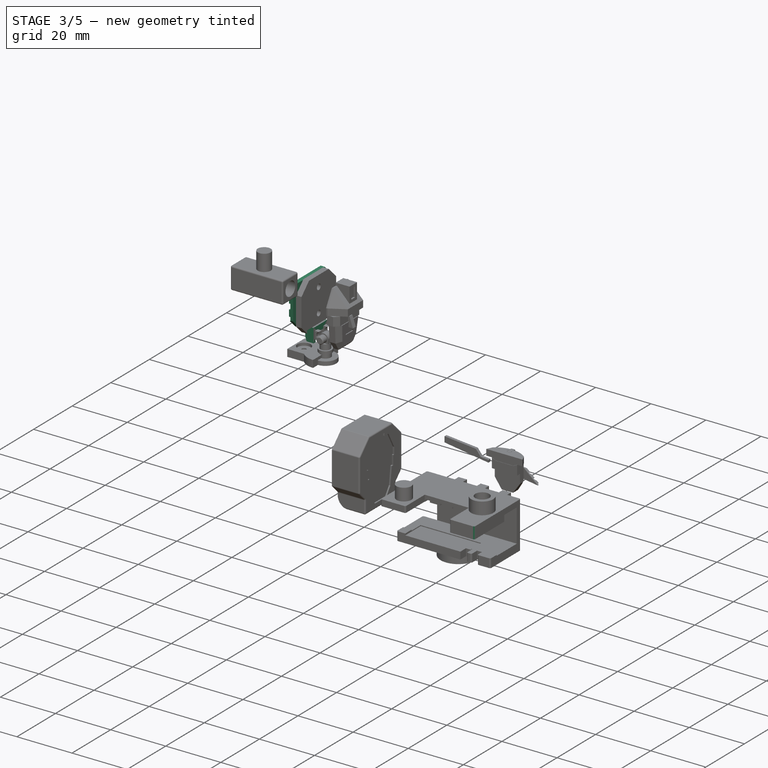
[diagram: stage 3 of 5 — iso view after this stage's code; geometry added in this stage tinted green]
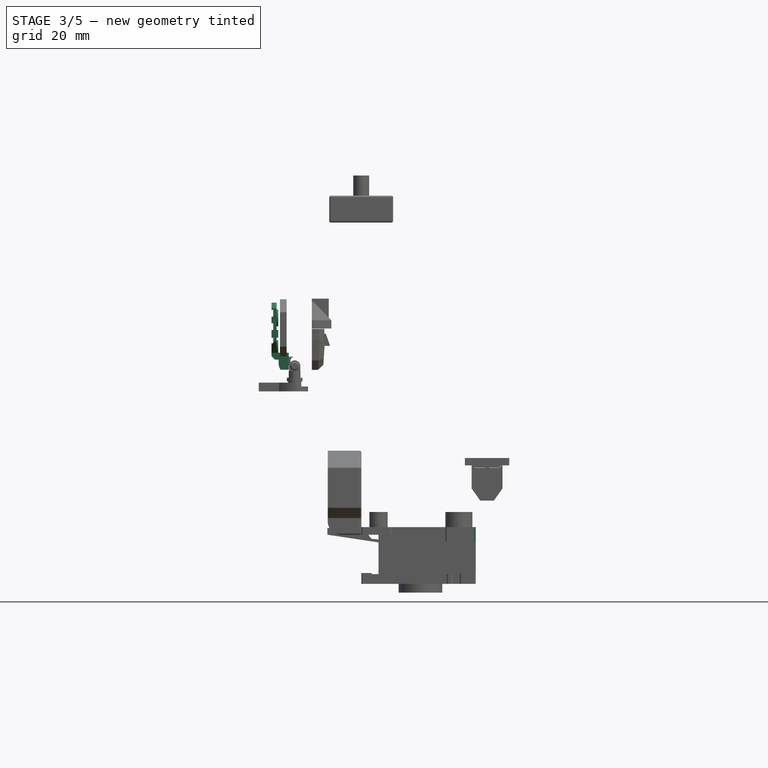
[diagram: stage 3 of 5 — front view after this stage's code; geometry added in this stage tinted green]
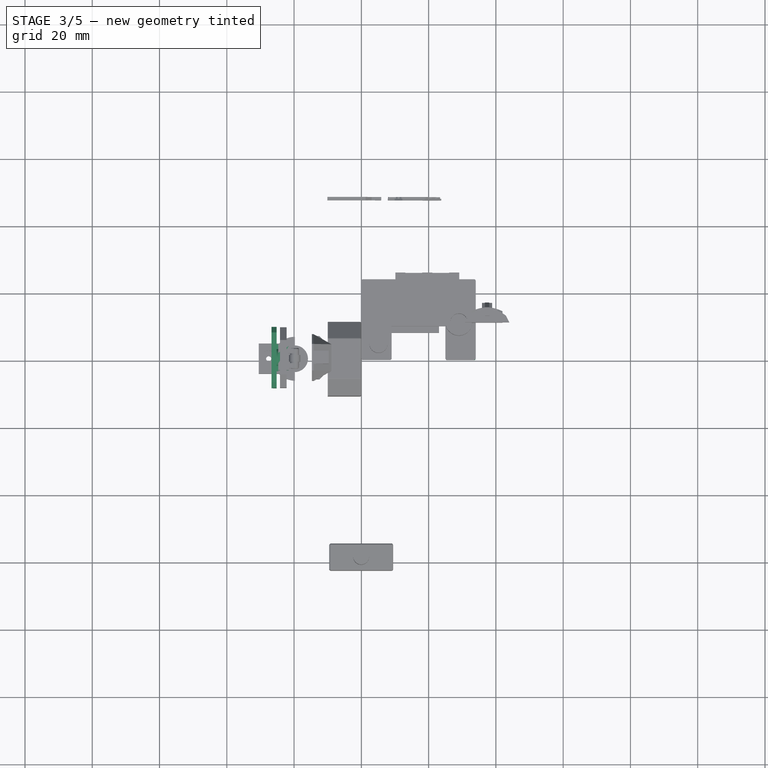
[diagram: stage 3 of 5 — top view after this stage's code; geometry added in this stage tinted green]
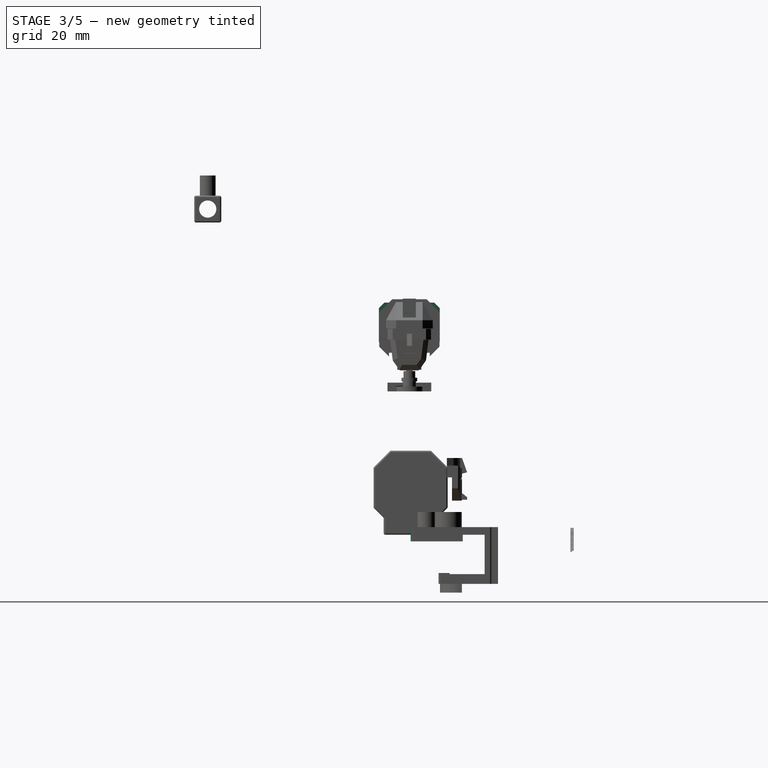
[diagram: stage 3 of 5 — right view after this stage's code; geometry added in this stage tinted green]
FEATURE [Sketcher::SketchObject] Sketch504
  ArcFitTolerance = 1e-06
  AttachmentSupport = -> [XY_Plane036]
  FullyConstrained = true
  MakeInternals = false
  MapMode = 5
  sketch-geometry (8):
    g0: LineSegment StartX=0 StartY=24 StartZ=0 EndX=0 EndY=0 EndZ=0
    g1: LineSegment StartX=0 StartY=0 StartZ=0 EndX=9 EndY=0 EndZ=0
    g2: LineSegment StartX=9 StartY=0 StartZ=0 EndX=9 EndY=10 EndZ=0
    g3: LineSegment StartX=9 StartY=10 StartZ=0 EndX=25 EndY=10 EndZ=0
    g4: LineSegment StartX=25 StartY=10 StartZ=0 EndX=25 EndY=0 EndZ=0
    g5: LineSegment StartX=25 StartY=0 StartZ=0 EndX=34 EndY=0 EndZ=0
    g6: LineSegment StartX=34 StartY=0 StartZ=0 EndX=34 EndY=24 EndZ=0
    g7: LineSegment StartX=34 StartY=24 StartZ=0 EndX=0 EndY=24 EndZ=0
  constraints (23):
    c: PointOnObject(g0,g-2)
    c: Coincident(g0,g-1)
    c: Coincident(g1,g0)
    c: PointOnObject(g1,g-1)
    c: Coincident(g2,g1)
    c: Vertical(g2)
    c: Coincident(g3,g2)
    c: Horizontal(g3)
    c: Coincident(g4,g3)
    c: PointOnObject(g4,g-1)
    c: Vertical(g4)
    c: Coincident(g5,g4)
    c: PointOnObject(g5,g-1)
    c: Coincident(g6,g5)
    c: Vertical(g6)
    c: Coincident(g7,g6)
    c: Coincident(g7,g0)
    c: Horizontal(g7)
    c: DistanceX(g7,g7) = 34
    c: DistanceY(g0,g0) = 24
    c: DistanceX(g1,g1) = 9
    c: DistanceX(g5,g5) = 9
    c: DistanceY(g2,g0) = 14
FEATURE [PartDesign::Pad] Pad312
  Direction = (0,0,1)
  Length = 2.25
  Length2 = 10
  Profile = -> Sketch504
  ReferenceAxis = -> Sketch504 [N_Axis]
  Refine = true
  Suppressed = false
  Type = 0
FEATURE [Sketcher::SketchObject] Sketch505
  ArcFitTolerance = 1e-06
  AttachmentSupport = -> [Pad312]
  ExternalGeometry = -> [Pad312]
  FullyConstrained = true
  MakeInternals = false
  MapMode = 5
  Placement = pos=(0,0,2.25) rot=(0,0,1;0rad)
  sketch-geometry (7):
    g0: Circle CenterX=29 CenterY=11.2 CenterZ=0 NormalX=0 NormalY=0 NormalZ=1 AngleXU=0 Radius=2.55
    g1: Circle CenterX=5.1 CenterY=4.75 CenterZ=0 NormalX=0 NormalY=0 NormalZ=1 AngleXU=0 Radius=2.7
    g2: Circle CenterX=29 CenterY=11.2 CenterZ=0 NormalX=0 NormalY=0 NormalZ=1 AngleXU=0 Radius=4
    g3: LineSegment [constr] StartX=5.1 StartY=4.75 StartZ=0 EndX=5.1 EndY=2.05 EndZ=0
    g4: LineSegment [constr] StartX=5.1 StartY=4.75 StartZ=0 EndX=2.4 EndY=4.75 EndZ=0
    g5: LineSegment [constr] StartX=29 StartY=11.2 StartZ=0 EndX=29 EndY=7.2 EndZ=0
    g6: LineSegment [constr] StartX=29 StartY=11.2 StartZ=0 EndX=33 EndY=11.2 EndZ=0
  constraints (20):
    c: Coincident(g2,g0)
    c: Diameter(g2) = 8
    c: Diameter(g0) = 5.1
    c: Diameter(g1) = 5.4
    c: Coincident(g3,g1)
    c: PointOnObject(g3,g1)
    c: Vertical(g3)
    c: DistanceY(g-1,g3) = 2.05
    c: Coincident(g4,g1)
    c: PointOnObject(g4,g1)
    c: Horizontal(g4)
    c: DistanceX(g-1,g4) = 2.4
    c: Coincident(g5,g0)
    c: PointOnObject(g5,g2)
    c: Vertical(g5)
    c: DistanceY(g-4,g5) = 7.2
    c: Coincident(g6,g0)
    c: PointOnObject(g6,g2)
    c: Horizontal(g6)
    c: DistanceX(g6,g-3) = 1
FEATURE [PartDesign::Pad] Pad313
  BaseFeature = -> Pad312
  Direction = (0,0,1)
  Length = 4.5
  Length2 = 10
  Profile = -> Sketch505
  ReferenceAxis = -> Sketch505 [N_Axis]
  Refine = true
  Suppressed = false
  Type = 0
FEATURE [Sketcher::SketchObject] Sketch527
  ArcFitTolerance = 1e-06
  AttachmentSupport = -> [Pad313]
  ExternalGeometry = -> [Pad313]
  FullyConstrained = true
  MakeInternals = false
  MapMode = 5
  Placement = pos=(0,0,0) rot=(1,0,0;3.14159rad)
  sketch-geometry (4):
    g0: LineSegment StartX=34 StartY=-24 StartZ=0 EndX=34 EndY=-22 EndZ=0
    g1: LineSegment StartX=34 StartY=-22 StartZ=0 EndX=0 EndY=-22 EndZ=0
    g2: LineSegment StartX=0 StartY=-22 StartZ=0 EndX=0 EndY=-24 EndZ=0
    g3: LineSegment StartX=0 StartY=-24 StartZ=0 EndX=34 EndY=-24 EndZ=0
  constraints (11):
    c: Coincident(g0,g1)
    c: Coincident(g1,g2)
    c: Coincident(g2,g3)
    c: Coincident(g3,g0)
    c: Vertical(g0)
    c: Vertical(g2)
    c: Horizontal(g1)
    c: Horizontal(g3)
    c: Coincident(g0,g-4)
    c: PointOnObject(g1,g-5)
    c: DistanceY(g2,g2) = 2
FEATURE [PartDesign::Pad] Pad316
  BaseFeature = -> Pad313
  Direction = (0,0,-1)
  Length = 12.6
  Length2 = 10
  Profile = -> Sketch527
  ReferenceAxis = -> Sketch527 [N_Axis]
  Refine = true
  Suppressed = false
  Type = 0
FEATURE [Sketcher::SketchObject] Sketch528
  ArcFitTolerance = 1e-06
  AttachmentSupport = -> [Pad316]
  ExternalGeometry = -> [Pad316]
  FullyConstrained = true
  MakeInternals = false
  MapMode = 5
  Placement = pos=(0,0,-12.6) rot=(1,0,0;3.14159rad)
  sketch-geometry (10):
    g0: LineSegment StartX=34 StartY=-24 StartZ=0 EndX=34 EndY=-8.3 EndZ=0
    g1: LineSegment StartX=34 StartY=-8.3 StartZ=0 EndX=25 EndY=-8.3 EndZ=0
    g2: LineSegment StartX=25 StartY=-8.3 StartZ=0 EndX=25 EndY=-16.3 EndZ=0
    g3: LineSegment StartX=25 StartY=-16.3 StartZ=0 EndX=9 EndY=-16.3 EndZ=0
    g4: LineSegment StartX=9 StartY=-16.3 StartZ=0 EndX=9 EndY=-8.3 EndZ=0
    g5: LineSegment StartX=9 StartY=-8.3 StartZ=0 EndX=1.8e-15 EndY=-8.3 EndZ=0
    g6: LineSegment StartX=1.6e-15 StartY=-8.3 StartZ=0 EndX=1.6e-15 EndY=-22 EndZ=0
    g7: LineSegment StartX=1.6e-15 StartY=-22 StartZ=0 EndX=5.1 EndY=-22 EndZ=0
    g8: LineSegment StartX=5.1 StartY=-22 StartZ=0 EndX=5.1 EndY=-24 EndZ=0
    g9: LineSegment StartX=5.1 StartY=-24 StartZ=0 EndX=34 EndY=-24 EndZ=0
  constraints (29):
    c: Coincident(g0,g-4)
    c: Vertical(g0)
    c: DistanceY(g0,g0) = 15.7
    c: Coincident(g1,g0)
    c: Horizontal(g1)
    c: Coincident(g2,g1)
    c: Vertical(g2)
    c: Coincident(g3,g2)
    c: Horizontal(g3)
    c: Coincident(g4,g3)
    c: Vertical(g4)
    c: Coincident(g5,g4)
    c: Horizontal(g5)
    c: Coincident(g6,g5)
    c: Coincident(g7,g6)
    c: Horizontal(g7)
    c: Coincident(g8,g7)
    c: PointOnObject(g8,g-4)
    c: Vertical(g8)
    c: Coincident(g9,g8)
    c: Coincident(g9,g0)
    c: DistanceX(g1,g1) = 9
    c: DistanceX(g5,g5) = 9
    c: DistanceX(g3,g3) = 16
    c: Vertical(g6)
    c: DistanceY(g2,g2) = 8
    c: DistanceY(g4,g4) = 8
    c: DistanceY(g6,g6) = 13.7
    c: DistanceX(g7,g7) = 5.1
FEATURE [PartDesign::Pad] Pad317
  BaseFeature = -> Pad316
  Direction = (0,0,-1)
  Length = 2
  Length2 = 10
  Profile = -> Sketch528
  ReferenceAxis = -> Sketch528 [N_Axis]
  Refine = true
  Suppressed = false
  Type = 0
FEATURE [PartDesign::Pocket] Pocket296
  BaseFeature = -> Pad317
  Direction = (0,0,1)
  Length = 12.6
  Length2 = 5
  Profile = -> Pad317 [Face6]
  Refine = true
  Suppressed = false
  Type = 0
FEATURE [Sketcher::SketchObject] Sketch529
  ArcFitTolerance = 1e-06
  AttachmentSupport = -> [Pocket296]
  ExternalGeometry = -> [Pocket296]
  FullyConstrained = true
  MakeInternals = false
  MapMode = 5
  Placement = pos=(0,24,0) rot=(0,0.707107,0.707107;3.14159rad)
  sketch-geometry (12):
    g0: LineSegment StartX=-29.1 StartY=2.25 StartZ=0 EndX=-29.1 EndY=-14.6 EndZ=0
    g1: LineSegment StartX=-29.1 StartY=-14.6 StartZ=0 EndX=-26.1 EndY=-14.6 EndZ=0
    g2: LineSegment StartX=-26.1 StartY=-14.6 StartZ=0 EndX=-26.1 EndY=2.25 EndZ=0
    g3: LineSegment StartX=-26.1 StartY=2.25 StartZ=0 EndX=-29.1 EndY=2.25 EndZ=0
    g4: LineSegment StartX=-21.1 StartY=2.25 StartZ=0 EndX=-21.1 EndY=-14.6 EndZ=0
    g5: LineSegment StartX=-21.1 StartY=-14.6 StartZ=0 EndX=-18.1 EndY=-14.6 EndZ=0
    g6: LineSegment StartX=-18.1 StartY=-14.6 StartZ=0 EndX=-18.1 EndY=2.25 EndZ=0
    g7: LineSegment StartX=-18.1 StartY=2.25 StartZ=0 EndX=-21.1 EndY=2.25 EndZ=0
    g8: LineSegment StartX=-13.1 StartY=2.25 StartZ=0 EndX=-13.1 EndY=-14.6 EndZ=0
    g9: LineSegment StartX=-13.1 StartY=-14.6 StartZ=0 EndX=-10.1 EndY=-14.6 EndZ=0
    g10: LineSegment StartX=-10.1 StartY=-14.6 StartZ=0 EndX=-10.1 EndY=2.25 EndZ=0
    g11: LineSegment StartX=-10.1 StartY=2.25 StartZ=0 EndX=-13.1 EndY=2.25 EndZ=0
  constraints (38):
    c: Coincident(g0,g1)
    c: Coincident(g1,g2)
    c: Coincident(g2,g3)
    c: Coincident(g3,g0)
    c: Vertical(g0)
    c: Vertical(g2)
    c: Horizontal(g1)
    c: Horizontal(g3)
    c: PointOnObject(g0,g-3)
    c: PointOnObject(g1,g-5)
    c: Coincident(g4,g5)
    c: Coincident(g5,g6)
    c: Coincident(g6,g7)
    c: Coincident(g7,g4)
    c: Vertical(g4)
    c: Vertical(g6)
    c: Horizontal(g5)
    c: Horizontal(g7)
    c: PointOnObject(g5,g-5)
    c: Coincident(g8,g9)
    c: Coincident(g9,g10)
    c: Coincident(g10,g11)
    c: Coincident(g11,g8)
    c: Vertical(g8)
    c: Vertical(g10)
    c: Horizontal(g9)
    c: Horizontal(g11)
    c: PointOnObject(g8,g-3)
    c: PointOnObject(g9,g-5)
    c: DistanceX(g-5,g-5) = 28.9
    c: DistanceX(g1,g1) = 3
    c: DistanceX(g5,g5) = 3
    c: DistanceX(g9,g9) = 3
    c: PointOnObject(g4,g-3)
    c: DistanceX(g10,g-4) = 5
    c: DistanceX(g6,g8) = 5
    c: DistanceX(g2,g4) = 5
    c: DistanceX(g-6,g0) = 4.9
FEATURE [PartDesign::Pad] Pad318
  BaseFeature = -> Pocket296
  Direction = (0,1,-2e-16)
  Length = 2
  Length2 = 10
  Profile = -> Sketch529
  ReferenceAxis = -> Sketch529 [N_Axis]
  Refine = true
  Suppressed = false
  Type = 0
FEATURE [Sketcher::SketchObject] Sketch530
  ArcFitTolerance = 1e-06
  AttachmentSupport = -> [Pad318]
  ExternalGeometry = -> [Pad318]
  FullyConstrained = true
  MakeInternals = false
  MapMode = 5
  Placement = pos=(0,0,0) rot=(1,0,0;3.14159rad)
  sketch-geometry (12):
    g0: LineSegment StartX=9.13 StartY=-22 StartZ=0 EndX=10.83 EndY=-22 EndZ=0
    g1: LineSegment StartX=10.83 StartY=-22 StartZ=0 EndX=10.83 EndY=-10 EndZ=0
    g2: LineSegment StartX=10.83 StartY=-10 StartZ=0 EndX=9.13 EndY=-10 EndZ=0
    g3: LineSegment StartX=9.13 StartY=-10 StartZ=0 EndX=9.13 EndY=-22 EndZ=0
    g4: LineSegment StartX=14.59 StartY=-22 StartZ=0 EndX=16.29 EndY=-22 EndZ=0
    g5: LineSegment StartX=16.29 StartY=-22 StartZ=0 EndX=16.29 EndY=-10 EndZ=0
    g6: LineSegment StartX=16.29 StartY=-10 StartZ=0 EndX=14.59 EndY=-10 EndZ=0
    g7: LineSegment StartX=14.59 StartY=-10 StartZ=0 EndX=14.59 EndY=-22 EndZ=0
    g8: LineSegment StartX=18.92 StartY=-22 StartZ=0 EndX=22.52 EndY=-22 EndZ=0
    g9: LineSegment StartX=22.52 StartY=-22 StartZ=0 EndX=22.52 EndY=-10 EndZ=0
    g10: LineSegment StartX=22.52 StartY=-10 StartZ=0 EndX=18.92 EndY=-10 EndZ=0
    g11: LineSegment StartX=18.92 StartY=-10 StartZ=0 EndX=18.92 EndY=-22 EndZ=0
  constraints (36):
    c: Coincident(g0,g1)
    c: Coincident(g1,g2)
    c: Coincident(g2,g3)
    c: Coincident(g3,g0)
    c: Horizontal(g0)
    c: Horizontal(g2)
    c: Vertical(g1)
    c: Vertical(g3)
    c: Coincident(g4,g5)
    c: Coincident(g5,g6)
    c: Coincident(g6,g7)
    c: Coincident(g7,g4)
    c: Horizontal(g4)
    c: Horizontal(g6)
    c: Vertical(g5)
    c: Vertical(g7)
    c: Coincident(g8,g9)
    c: Coincident(g9,g10)
    c: Coincident(g10,g11)
    c: Coincident(g11,g8)
    c: Horizontal(g8)
    c: Horizontal(g10)
    c: Vertical(g9)
    c: Vertical(g11)
    c: PointOnObject(g9,g-3)
    c: PointOnObject(g5,g-3)
    c: PointOnObject(g1,g-3)
    c: PointOnObject(g8,g-5)
    c: PointOnObject(g4,g-5)
    c: PointOnObject(g0,g-5)
    c: DistanceX(g8,g8) = 3.6
    c: DistanceX(g4,g4) = 1.7
    c: DistanceX(g0,g0) = 1.7
    c: DistanceX(g0,g4) = 3.76
    c: DistanceX(g4,g8) = 2.63
    c: DistanceX(g8,g-5) = 11.48
FEATURE [PartDesign::Pocket] Pocket297
  BaseFeature = -> Pad318
  Direction = (0,0,1)
  Length = 0.8
  Length2 = 5
  Profile = -> Sketch530
  ReferenceAxis = -> Sketch530 [N_Axis]
  Refine = true
  Suppressed = false
  Type = 0
FEATURE [PartDesign::Pocket] Pocket298
  BaseFeature = -> Pocket297
  Direction = (0,0,1)
  Length = 0.3
  Length2 = 5
  Profile = -> Pocket297 [Face41]
  Refine = true
  Suppressed = false
  Type = 0
FEATURE [PartDesign::Pocket] Pocket299
  BaseFeature = -> Pocket298
  Direction = (0,0,1)
  Length = 0.2
  Length2 = 5
  Profile = -> Pocket298 [Face37]
  Refine = true
  Suppressed = false
  Type = 0
FEATURE [PartDesign::Pocket] Pocket300
  BaseFeature = -> Pocket299
  Direction = (0,0,1)
  Length = 0.2
  Length2 = 5
  Profile = -> Pocket299 [Face45]
  Refine = true
  Suppressed = false
  Type = 0
FEATURE [Sketcher::SketchObject] Sketch531
  ArcFitTolerance = 1e-06
  AttachmentSupport = -> [Pocket300]
  ExternalGeometry = -> [Pocket300]
  FullyConstrained = true
  MakeInternals = false
  MapMode = 5
  Placement = pos=(0,0,-14.6) rot=(1,0,0;3.14159rad)
  sketch-geometry (8):
    g0: LineSegment StartX=25 StartY=-11.2 StartZ=0 EndX=25.4 EndY=-11.2 EndZ=0
    g1: LineSegment StartX=25.4 StartY=-11.2 StartZ=0 EndX=25.4 EndY=-8.3 EndZ=0
    g2: LineSegment StartX=25.4 StartY=-8.3 StartZ=0 EndX=25 EndY=-8.3 EndZ=0
    g3: LineSegment StartX=25 StartY=-8.3 StartZ=0 EndX=25 EndY=-11.2 EndZ=0
    g4: LineSegment StartX=27.15 StartY=-8.3 StartZ=0 EndX=27.15 EndY=-11.2 EndZ=0
    g5: LineSegment StartX=27.15 StartY=-11.2 StartZ=0 EndX=29.25 EndY=-11.2 EndZ=0
    g6: LineSegment StartX=29.25 StartY=-11.2 StartZ=0 EndX=29.25 EndY=-8.3 EndZ=0
    g7: LineSegment StartX=29.25 StartY=-8.3 StartZ=0 EndX=27.15 EndY=-8.3 EndZ=0
  constraints (23):
    c: PointOnObject(g0,g-4)
    c: Horizontal(g0)
    c: Coincident(g1,g0)
    c: PointOnObject(g1,g-3)
    c: Vertical(g1)
    c: Coincident(g2,g1)
    c: Coincident(g2,g-4)
    c: Coincident(g3,g2)
    c: Coincident(g3,g0)
    c: DistanceY(g3,g3) = 2.9
    c: DistanceX(g2,g2) = 0.4
    c: Coincident(g4,g5)
    c: Coincident(g5,g6)
    c: Coincident(g6,g7)
    c: Coincident(g7,g4)
    c: Vertical(g4)
    c: Vertical(g6)
    c: Horizontal(g5)
    c: Horizontal(g7)
    c: PointOnObject(g4,g-3)
    c: DistanceY(g4,g4) = 2.9
    c: DistanceX(g7,g7) = 2.1
    c: DistanceX(g1,g4) = 1.75
FEATURE [PartDesign::Pocket] Pocket301
  BaseFeature = -> Pocket300
  Direction = (0,0,1)
  Length = 5
  Length2 = 5
  Profile = -> Sketch531
  ReferenceAxis = -> Sketch531 [N_Axis]
  Refine = true
  Suppressed = false
  Type = 0
FEATURE [PartDesign::Fillet] Fillet013
  Base = -> Pocket301 [Edge119,Edge116,Edge124,Edge82,Edge104,Edge102,Edge94,Edge81,Edge80,Edge78,Edge59,Edge57,Edge56]
  BaseFeature = -> Pocket301
  Radius = 0.5
  Refine = true
  SupportTransform = false
  Suppressed = false
  UseAllEdges = false
FEATURE [Sketcher::SketchObject] Sketch532
  ArcFitTolerance = 1e-06
  AttachmentSupport = -> [Fillet013]
  ExternalGeometry = -> [Fillet013]
  FullyConstrained = true
  MakeInternals = false
  MapMode = 5
  Placement = pos=(0,0,-14.6) rot=(1,0,0;3.14159rad)
  sketch-geometry (6):
    g0: LineSegment StartX=25 StartY=-11.2 StartZ=0 EndX=23.1 EndY=-11.2 EndZ=0
    g1: LineSegment StartX=23.1 StartY=-11.2 StartZ=0 EndX=23.1 EndY=-8.3 EndZ=0
    g2: LineSegment StartX=23.1 StartY=-8.3 StartZ=0 EndX=3.1 EndY=-8.3 EndZ=0
    g3: LineSegment StartX=3.1 StartY=-8.3 StartZ=0 EndX=3.1 EndY=-16.3 EndZ=0
    g4: LineSegment StartX=3.1 StartY=-16.3 StartZ=0 EndX=25 EndY=-16.3 EndZ=0
    g5: LineSegment StartX=25 StartY=-16.3 StartZ=0 EndX=25 EndY=-11.2 EndZ=0
  constraints (16):
    c: Coincident(g0,g-6)
    c: Horizontal(g0)
    c: Coincident(g1,g0)
    c: Vertical(g1)
    c: Coincident(g2,g1)
    c: PointOnObject(g2,g-5)
    c: Horizontal(g2)
    c: Coincident(g3,g2)
    c: Vertical(g3)
    c: Coincident(g4,g3)
    c: Coincident(g4,g-6)
    c: Horizontal(g4)
    c: Coincident(g5,g4)
    c: Coincident(g5,g0)
    c: DistanceX(g0,g0) = 1.9
    c: DistanceX(g2,g2) = 20
FEATURE [PartDesign::Pad] Pad319
  BaseFeature = -> Fillet013
  Direction = (0,0,-1)
  Length = 2.6
  Length2 = 10
  Profile = -> Sketch532
  ReferenceAxis = -> Sketch532 [N_Axis]
  Refine = true
  Reversed = true
  Suppressed = false
  Type = 0
FEATURE [PartDesign::Pad] Pad320
  BaseFeature = -> Pad319
  Direction = (0,0,1)
  Length = 0.9
  Length2 = 10
  Profile = -> Pad319 [Face48]
  Refine = true
  Suppressed = false
  Type = 0
FEATURE [Sketcher::SketchObject] Sketch533
  ArcFitTolerance = 1e-06
  AttachmentSupport = -> [Pad320]
  ExternalGeometry = -> [Pad320]
  FullyConstrained = true
  MakeInternals = false
  MapMode = 5
  Placement = pos=(0,0,-11.7) rot=(0,0,1;0rad)
  sketch-geometry (11):
    g0: LineSegment StartX=3.1 StartY=11.6 StartZ=0 EndX=3.1 EndY=8.3 EndZ=0
    g1: LineSegment StartX=3.1 StartY=8.3 StartZ=0 EndX=0.5 EndY=8.3 EndZ=0
    g2: LineSegment StartX=3.1 StartY=11.6 StartZ=0 EndX=1.81082e-11 EndY=11.6 EndZ=0
    g3: LineSegment StartX=1.8108e-11 StartY=11.6 StartZ=0 EndX=1.8108e-11 EndY=8.8 EndZ=0
    g4: LineSegment StartX=29.25 StartY=8.8 StartZ=0 EndX=29.25 EndY=11.6 EndZ=0
    g5: LineSegment StartX=34 StartY=8.8 StartZ=0 EndX=34 EndY=11.6 EndZ=0
    g6: LineSegment StartX=34 StartY=11.6 StartZ=0 EndX=29.25 EndY=11.6 EndZ=0
    g7: ArcOfCircle CenterX=33.5 CenterY=8.8 CenterZ=0 NormalX=0 NormalY=0 NormalZ=1 AngleXU=0 Radius=0.5 StartAngle=4.71239 EndAngle=6.28319
    g8: ArcOfCircle CenterX=29.75 CenterY=8.8 CenterZ=0 NormalX=0 NormalY=0 NormalZ=1 AngleXU=0 Radius=0.5 StartAngle=3.14159 EndAngle=4.71239
    g9: LineSegment StartX=29.75 StartY=8.3 StartZ=0 EndX=33.5 EndY=8.3 EndZ=0
    g10: ArcOfCircle CenterX=0.499996 CenterY=8.8 CenterZ=0 NormalX=0 NormalY=0 NormalZ=1 AngleXU=0 Radius=0.499996 StartAngle=3.14158 EndAngle=4.7124
  constraints (29):
    c: Coincident(g0,g-8)
    c: Coincident(g1,g0)
    c: Coincident(g2,g0)
    c: Horizontal(g2)
    c: PointOnObject(g0,g-7)
    c: Coincident(g3,g2)
    c: Vertical(g3)
    c: Vertical(g4)
    c: Coincident(g6,g5)
    c: Coincident(g6,g4)
    c: Horizontal(g6)
    c: Coincident(g7,g-5)
    c: PointOnObject(g5,g-3)
    c: DistanceY(g5,g5) = 2.8
    c: Coincident(g4,g-6)
    c: Coincident(g7,g-4)
    c: Coincident(g7,g5)
    c: DistanceY(g5,g7) = 0
    c: DistanceY(g3,g2) = 2.8
    c: Coincident(g8,g4)
    c: Coincident(g8,g-10)
    c: Coincident(g9,g8)
    c: Coincident(g7,g9)
    c: DistanceX(g8,g8) = 0
    c: Coincident(g3,g-9)
    c: Coincident(g1,g-8)
    c: Coincident(g10,g1)
    c: Coincident(g10,g3)
    c: Tangent(g10,g-11)
FEATURE [PartDesign::Pad] Pad321
  BaseFeature = -> Pad320
  Direction = (0,0,1)
  Length = 0.3
  Length2 = 10
  Profile = -> Sketch533
  ReferenceAxis = -> Sketch533 [N_Axis]
  Refine = true
  Suppressed = false
  Type = 0
FEATURE [Sketcher::SketchObject] Sketch534
  ArcFitTolerance = 1e-06
  AttachmentSupport = -> [Pad321]
  ExternalGeometry = -> [Pad321]
  FullyConstrained = true
  MakeInternals = false
  MapMode = 5
  Placement = pos=(0,0,0.2) rot=(1,0,0;3.14159rad)
  sketch-geometry (6):
    g0: LineSegment StartX=25 StartY=-0.5 StartZ=0 EndX=25 EndY=-15.5 EndZ=0
    g1: LineSegment StartX=25 StartY=-15.5 StartZ=0 EndX=34 EndY=-15.5 EndZ=0
    g2: LineSegment StartX=34 StartY=-15.5 StartZ=0 EndX=34 EndY=-0.5 EndZ=0
    g3: ArcOfCircle CenterX=33.5 CenterY=-0.5 CenterZ=0 NormalX=0 NormalY=0 NormalZ=1 AngleXU=0 Radius=0.5 StartAngle=-2.85105e-11 EndAngle=1.5708
    g4: ArcOfCircle CenterX=25.5 CenterY=-0.5 CenterZ=0 NormalX=0 NormalY=0 NormalZ=1 AngleXU=0 Radius=0.5 StartAngle=1.5708 EndAngle=3.14159
    g5: LineSegment StartX=25.5 StartY=1e-16 StartZ=0 EndX=33.5 EndY=-7.69e-14 EndZ=0
  constraints (14):
    c: Coincident(g0,g-5)
    c: Vertical(g0)
    c: Coincident(g1,g0)
    c: Horizontal(g1)
    c: PointOnObject(g1,g-7)
    c: Coincident(g2,g1)
    c: Coincident(g2,g-7)
    c: Coincident(g3,g2)
    c: Tangent(g3,g-6) = -1.5708
    c: Coincident(g4,g0)
    c: Tangent(g4,g-4) = -1.5708
    c: Coincident(g5,g3)
    c: Coincident(g5,g4)
    c: DistanceY(g0,g0) = 15
FEATURE [PartDesign::Pad] Pad322
  BaseFeature = -> Pad321
  Direction = (0,0,-1)
  Length = 2.2
  Length2 = 10
  Profile = -> Sketch534
  ReferenceAxis = -> Sketch534 [N_Axis]
  Refine = true
  Suppressed = false
  Type = 0
FEATURE [Sketcher::SketchObject] Sketch535
  ArcFitTolerance = 1e-06
  AttachmentSupport = -> [Pad322]
  ExternalGeometry = -> [Pad322]
  FullyConstrained = true
  MakeInternals = false
  MapMode = 5
  Placement = pos=(0,0,-14.6) rot=(1,0,0;3.14159rad)
  sketch-geometry (6):
    g0: ArcOfCircle CenterX=17.57 CenterY=-15.25 CenterZ=0 NormalX=0 NormalY=0 NormalZ=1 AngleXU=0 Radius=4 StartAngle=0 EndAngle=3.14159
    g1: LineSegment StartX=13.57 StartY=-15.25 StartZ=0 EndX=11.07 EndY=-15.25 EndZ=0
    g2: LineSegment StartX=21.57 StartY=-15.25 StartZ=0 EndX=24.07 EndY=-15.25 EndZ=0
    g3: ArcOfCircle CenterX=17.57 CenterY=-15.25 CenterZ=0 NormalX=0 NormalY=0 NormalZ=1 AngleXU=0 Radius=6.5 StartAngle=0 EndAngle=3.14159
    g4: LineSegment [constr] StartX=21.57 StartY=-15.25 StartZ=0 EndX=17.57 EndY=-15.25 EndZ=0
    g5: LineSegment [constr] StartX=17.57 StartY=-15.25 StartZ=0 EndX=13.57 EndY=-15.25 EndZ=0
  constraints (17):
    c: Radius(g0) = 4
    c: Coincident(g1,g0)
    c: Horizontal(g1)
    c: Coincident(g2,g0)
    c: Horizontal(g2)
    c: Coincident(g3,g1)
    c: Coincident(g3,g2)
    c: Coincident(g3,g0)
    c: DistanceX(g1,g1) = 2.5
    c: DistanceX(g-6,g1) = 11.07
    c: DistanceY(g1,g-6) = 6.45
    c: Coincident(g4,g0)
    c: Coincident(g4,g0)
    c: Horizontal(g4)
    c: Coincident(g5,g0)
    c: Coincident(g5,g0)
    c: Horizontal(g5)
FEATURE [PartDesign::Pad] Pad323
  BaseFeature = -> Pad322
  Direction = (0,0,-1)
  Length = 1.6
  Length2 = 10
  Profile = -> Sketch535
  ReferenceAxis = -> Sketch535 [N_Axis]
  Refine = true
  Suppressed = false
  Type = 0
FEATURE [Sketcher::SketchObject] Sketch536
  ArcFitTolerance = 1e-06
  AttachmentSupport = -> [Pad323]
  ExternalGeometry = -> [Pad323]
  FullyConstrained = true
  MakeInternals = false
  MapMode = 5
  Placement = pos=(0,0,-16.2) rot=(1,0,0;3.14159rad)
  sketch-geometry (4):
    g0: ArcOfCircle CenterX=17.57 CenterY=-15.25 CenterZ=0 NormalX=0 NormalY=0 NormalZ=1 AngleXU=0 Radius=6.5 StartAngle=0 EndAngle=3.14159
    g1: LineSegment StartX=11.07 StartY=-15.25 StartZ=0 EndX=15.57 EndY=-15.25 EndZ=0
    g2: LineSegment StartX=24.07 StartY=-15.25 StartZ=0 EndX=19.57 EndY=-15.25 EndZ=0
    g3: ArcOfCircle CenterX=17.57 CenterY=-15.25 CenterZ=0 NormalX=0 NormalY=0 NormalZ=1 AngleXU=0 Radius=2 StartAngle=3e-16 EndAngle=3.14159
  constraints (10):
    c: Horizontal(g1)
    c: Coincident(g2,g0)
    c: Horizontal(g2)
    c: Coincident(g3,g1)
    c: Coincident(g3,g2)
    c: Radius(g3) = 2
    c: Coincident(g3,g0)
    c: Coincident(g0,g-3)
    c: Tangent(g0,g-3) = -1.5708
    c: Coincident(g1,g0)
FEATURE [PartDesign::Pad] Pad324
  BaseFeature = -> Pad323
  Direction = (0,0,-1)
  Length = 1
  Length2 = 10
  Profile = -> Sketch536
  ReferenceAxis = -> Sketch536 [N_Axis]
  Refine = true
  Suppressed = false
  Type = 0
FEATURE [Sketcher::SketchObject] Sketch537
  ArcFitTolerance = 1e-06
  AttachmentSupport = -> [Pad324]
  ExternalGeometry = -> [Pad324]
  FullyConstrained = true
  MakeInternals = false
  MapMode = 5
  Placement = pos=(0,0,-14.6) rot=(1,0,0;3.14159rad)
  sketch-geometry (8):
    g0: LineSegment StartX=21.1 StartY=-24 StartZ=0 EndX=21.1 EndY=-26 EndZ=0
    g1: LineSegment StartX=21.1 StartY=-26 StartZ=0 EndX=26.1 EndY=-26 EndZ=0
    g2: LineSegment StartX=26.1 StartY=-26 StartZ=0 EndX=26.1 EndY=-24 EndZ=0
    g3: LineSegment StartX=26.1 StartY=-24 StartZ=0 EndX=21.1 EndY=-24 EndZ=0
    g4: LineSegment StartX=13.1 StartY=-24 StartZ=0 EndX=13.1 EndY=-26 EndZ=0
    g5: LineSegment StartX=13.1 StartY=-26 StartZ=0 EndX=18.1 EndY=-26 EndZ=0
    g6: LineSegment StartX=18.1 StartY=-26 StartZ=0 EndX=18.1 EndY=-24 EndZ=0
    g7: LineSegment StartX=18.1 StartY=-24 StartZ=0 EndX=13.1 EndY=-24 EndZ=0
  constraints (20):
    c: Coincident(g0,g1)
    c: Coincident(g1,g2)
    c: Coincident(g2,g3)
    c: Coincident(g3,g0)
    c: Vertical(g0)
    c: Vertical(g2)
    c: Horizontal(g1)
    c: Horizontal(g3)
    c: Coincident(g0,g-7)
    c: Coincident(g1,g-8)
    c: Coincident(g4,g5)
    c: Coincident(g5,g6)
    c: Coincident(g6,g7)
    c: Coincident(g7,g4)
    c: Vertical(g4)
    c: Vertical(g6)
    c: Horizontal(g5)
    c: Horizontal(g7)
    c: Coincident(g4,g-6)
    c: Coincident(g5,g-5)
FEATURE [PartDesign::Pad] Pad325
  BaseFeature = -> Pad324
  Direction = (0,0,-1)
  Length = 10
  Length2 = 10
  Profile = -> Sketch537
  ReferenceAxis = -> Sketch537 [N_Axis]
  Refine = true
  Reversed = true
  Suppressed = false
  Type = 0
FEATURE [Sketcher::SketchObject] Sketch538
  ArcFitTolerance = 1e-06
  AttachmentSupport = -> [Pad325]
  ExternalGeometry = -> [Pad325]
  FullyConstrained = true
  MakeInternals = false
  MapMode = 5
  Placement = pos=(0,0,-14.6) rot=(1,0,0;3.14159rad)
  sketch-geometry (1):
    g0: Circle CenterX=17.57 CenterY=-23.05 CenterZ=0 NormalX=0 NormalY=0 NormalZ=1 AngleXU=0 Radius=0.75
  constraints (3):
    c: Radius(g0) = 0.75
    c: DistanceX(g-3,g0) = 0
    c: DistanceY(g0,g-3) = 7.8
FEATURE [PartDesign::Pocket] Pocket302
  BaseFeature = -> Pad325
  Direction = (0,0,1)
  Length = 8
  Length2 = 5
  Profile = -> Sketch538
  ReferenceAxis = -> Sketch538 [N_Axis]
  Refine = true
  Suppressed = false
  Type = 0
FEATURE [Sketcher::SketchObject] Sketch561
  ArcFitTolerance = 1e-06
  AttachmentSupport = -> [Pocket311]
  ExternalGeometry = -> [Pocket311]
  FullyConstrained = true
  MakeInternals = false
  MapMode = 5
  Placement = pos=(0.5,0.5,9e-16) rot=(0.281085,0.678598,-0.678598;3.68962rad)
  sketch-geometry (12):
    g0: LineSegment StartX=0.707107 StartY=-0.414214 StartZ=0 EndX=-0.707107 EndY=-0.414214 EndZ=0
    g1: LineSegment StartX=-0.707107 StartY=-0.414214 StartZ=0 EndX=-0.707107 EndY=-2.05 EndZ=0
    g2: LineSegment StartX=-0.707107 StartY=-2.05 StartZ=0 EndX=0.707107 EndY=-2.05 EndZ=0
    g3: LineSegment StartX=0.707107 StartY=-2.05 StartZ=0 EndX=0.707107 EndY=-0.414214 EndZ=0
    g4: LineSegment StartX=0.707107 StartY=-4.35 StartZ=0 EndX=-0.707107 EndY=-4.35 EndZ=0
    g5: LineSegment StartX=-0.707107 StartY=-4.35 StartZ=0 EndX=-0.707107 EndY=-6.35 EndZ=0
    g6: LineSegment StartX=-0.707107 StartY=-6.35 StartZ=0 EndX=0.707107 EndY=-6.35 EndZ=0
    g7: LineSegment StartX=0.707107 StartY=-6.35 StartZ=0 EndX=0.707107 EndY=-4.35 EndZ=0
    g8: LineSegment StartX=0.707107 StartY=-8.35 StartZ=0 EndX=-0.707107 EndY=-8.35 EndZ=0
    g9: LineSegment StartX=-0.707107 StartY=-8.35 StartZ=0 EndX=-0.707107 EndY=-10.35 EndZ=0
    g10: LineSegment StartX=-0.707107 StartY=-10.35 StartZ=0 EndX=0.707107 EndY=-10.35 EndZ=0
    g11: LineSegment StartX=0.707107 StartY=-10.35 StartZ=0 EndX=0.707107 EndY=-8.35 EndZ=0
  constraints (30):
    c: Coincident(g0,g1)
    c: Coincident(g1,g2)
    c: Coincident(g2,g3)
    c: Coincident(g3,g0)
    c: Horizontal(g0)
    c: Horizontal(g2)
    c: Vertical(g1)
    c: Coincident(g0,g-7)
    c: PointOnObject(g1,g-4)
    c: Coincident(g4,g5)
    c: Coincident(g5,g6)
    c: Coincident(g6,g7)
    c: Coincident(g7,g4)
    c: Horizontal(g4)
    c: Horizontal(g6)
    c: Vertical(g5)
    c: Coincident(g4,g-6)
    c: Coincident(g8,g9)
    c: Coincident(g9,g10)
    c: Coincident(g10,g11)
    c: Coincident(g11,g8)
    c: Horizontal(g8)
    c: Horizontal(g10)
    c: Vertical(g9)
    c: Coincident(g8,g-3)
    c: PointOnObject(g9,g-4)
    c: Coincident(g10,g-3)
    c: Coincident(g6,g-5)
    c: Coincident(g2,g-7)
    c: PointOnObject(g4,g-4)
FEATURE [PartDesign::Pocket] Pocket312
  BaseFeature = -> Pocket311
  Direction = (0.707107,0.707107,1.1e-15)
  Length = 0.5
  Length2 = 5
  Placement = pos=(0,0,0) rot=(1,1,1;2.0944rad)
  Profile = -> Sketch561
  ReferenceAxis = -> Sketch561 [N_Axis]
  Refine = true
  Suppressed = false
  Type = 0
FEATURE [Sketcher::SketchObject] Sketch562
  ArcFitTolerance = 1e-06
  AttachmentSupport = -> [Pocket312]
  ExternalGeometry = -> [Pocket312]
  FullyConstrained = true
  MakeInternals = false
  MapMode = 5
  Placement = pos=(0,-1e-16,0) rot=(-0.57735,-0.57735,0.57735;4.18879rad)
  sketch-geometry (12):
    g0: LineSegment StartX=-8.35 StartY=1 StartZ=0 EndX=-8.35 EndY=10.1 EndZ=0
    g1: LineSegment StartX=-8.35 StartY=10.1 StartZ=0 EndX=-10.35 EndY=10.1 EndZ=0
    g2: LineSegment StartX=-10.35 StartY=10.1 StartZ=0 EndX=-10.35 EndY=1 EndZ=0
    g3: LineSegment StartX=-10.35 StartY=1 StartZ=0 EndX=-8.35 EndY=1 EndZ=0
    g4: LineSegment StartX=-4.35 StartY=1 StartZ=0 EndX=-4.35 EndY=10.1 EndZ=0
    g5: LineSegment StartX=-4.35 StartY=10.1 StartZ=0 EndX=-6.35 EndY=10.1 EndZ=0
    g6: LineSegment StartX=-6.35 StartY=10.1 StartZ=0 EndX=-6.35 EndY=1 EndZ=0
    g7: LineSegment StartX=-6.35 StartY=1 StartZ=0 EndX=-4.35 EndY=1 EndZ=0
    g8: LineSegment StartX=-0.414214 StartY=1 StartZ=0 EndX=-0.414214 EndY=10.1 EndZ=0
    g9: LineSegment StartX=-0.414214 StartY=10.1 StartZ=0 EndX=-2.05 EndY=10.1 EndZ=0
    g10: LineSegment StartX=-2.05 StartY=10.1 StartZ=0 EndX=-2.05 EndY=1 EndZ=0
    g11: LineSegment StartX=-2.05 StartY=1 StartZ=0 EndX=-0.414214 EndY=1 EndZ=0
  constraints (30):
    c: Coincident(g0,g1)
    c: Coincident(g1,g2)
    c: Coincident(g2,g3)
    c: Coincident(g3,g0)
    c: Vertical(g0)
    c: Vertical(g2)
    c: Horizontal(g1)
    c: Coincident(g0,g-4)
    c: PointOnObject(g1,g-3)
    c: Coincident(g4,g5)
    c: Coincident(g5,g6)
    c: Coincident(g6,g7)
    c: Coincident(g7,g4)
    c: Vertical(g4)
    c: Vertical(g6)
    c: Horizontal(g5)
    c: Coincident(g4,g-5)
    c: PointOnObject(g5,g-3)
    c: Coincident(g8,g9)
    c: Coincident(g9,g10)
    c: Coincident(g10,g11)
    c: Coincident(g11,g8)
    c: Vertical(g8)
    c: Vertical(g10)
    c: Horizontal(g9)
    c: Coincident(g8,g-6)
    c: PointOnObject(g9,g-3)
    c: Coincident(g2,g-4)
    c: Coincident(g6,g-5)
    c: Coincident(g10,g-6)
FEATURE [PartDesign::Pocket] Pocket313
  BaseFeature = -> Pocket312
  Direction = (2.3e-15,1,-1.7e-15)
  Length = 0.5
  Length2 = 5
  Placement = pos=(0,0,0) rot=(1,1,1;2.0944rad)
  Profile = -> Sketch562
  ReferenceAxis = -> Sketch562 [N_Axis]
  Refine = true
  Suppressed = false
  Type = 0
FEATURE [Sketcher::SketchObject] Sketch563
  ArcFitTolerance = 1e-06
  AttachmentSupport = -> [Pocket313]
  ExternalGeometry = -> [Pocket313]
  FullyConstrained = true
  MakeInternals = false
  MapMode = 5
  Placement = pos=(5.05,-5.05,1e-14) rot=(0.357407,0.862856,-0.357407;1.71777rad)
  sketch-geometry (12):
    g0: LineSegment StartX=-8.35 StartY=7.14178 StartZ=0 EndX=-8.35 EndY=8.55599 EndZ=0
    g1: LineSegment StartX=-8.35 StartY=8.55599 StartZ=0 EndX=-10.35 EndY=8.55599 EndZ=0
    g2: LineSegment StartX=-10.35 StartY=8.55599 StartZ=0 EndX=-10.35 EndY=7.14178 EndZ=0
    g3: LineSegment StartX=-10.35 StartY=7.14178 StartZ=0 EndX=-8.35 EndY=7.14178 EndZ=0
    g4: LineSegment StartX=-4.35 StartY=7.14178 StartZ=0 EndX=-4.35 EndY=8.55599 EndZ=0
    g5: LineSegment StartX=-4.35 StartY=8.55599 StartZ=0 EndX=-6.35 EndY=8.55599 EndZ=0
    g6: LineSegment StartX=-6.35 StartY=8.55599 StartZ=0 EndX=-6.35 EndY=7.14178 EndZ=0
    g7: LineSegment StartX=-6.35 StartY=7.14178 StartZ=0 EndX=-4.35 EndY=7.14178 EndZ=0
    g8: LineSegment StartX=-0.414214 StartY=7.14178 StartZ=0 EndX=-0.414214 EndY=8.55599 EndZ=0
    g9: LineSegment StartX=-0.414214 StartY=8.55599 StartZ=0 EndX=-2.05 EndY=8.55599 EndZ=0
    g10: LineSegment StartX=-2.05 StartY=8.55599 StartZ=0 EndX=-2.05 EndY=7.14178 EndZ=0
    g11: LineSegment StartX=-2.05 StartY=7.14178 StartZ=0 EndX=-0.414214 EndY=7.14178 EndZ=0
  constraints (30):
    c: Coincident(g0,g1)
    c: Coincident(g1,g2)
    c: Coincident(g2,g3)
    c: Coincident(g3,g0)
    c: Vertical(g0)
    c: Vertical(g2)
    c: Horizontal(g1)
    c: Coincident(g0,g-3)
    c: PointOnObject(g1,g-6)
    c: Coincident(g4,g5)
    c: Coincident(g5,g6)
    c: Coincident(g6,g7)
    c: Coincident(g7,g4)
    c: Vertical(g4)
    c: Vertical(g6)
    c: Horizontal(g5)
    c: Coincident(g4,g-4)
    c: Coincident(g8,g9)
    c: Coincident(g9,g10)
    c: Coincident(g10,g11)
    c: Coincident(g11,g8)
    c: Vertical(g8)
    c: Vertical(g10)
    c: Horizontal(g9)
    c: Coincident(g8,g-5)
    c: PointOnObject(g9,g-6)
    c: Coincident(g2,g-3)
    c: Coincident(g6,g-4)
    c: Coincident(g10,g-5)
    c: PointOnObject(g5,g-6)
FEATURE [PartDesign::Pocket] Pocket314
  BaseFeature = -> Pocket313
  Direction = (-0.707107,0.707107,-2.5e-15)
  Length = 0.5
  Length2 = 5
  Placement = pos=(0,0,0) rot=(1,1,1;2.0944rad)
  Profile = -> Sketch563
  ReferenceAxis = -> Sketch563 [N_Axis]
  Refine = true
  Suppressed = false
  Type = 0
FEATURE [Sketcher::SketchObject] Sketch564
  ArcFitTolerance = 1e-06
  AttachmentSupport = -> [Pocket314]
  ExternalGeometry = -> [Pocket314]
  FullyConstrained = true
  MakeInternals = false
  MapMode = 5
  Placement = pos=(-10.6,10.6,-4.18e-14) rot=(-0.357407,-0.862856,-0.357407;1.71777rad)
  sketch-geometry (12):
    g0: LineSegment StartX=2.05 StartY=14.9907 StartZ=0 EndX=2.05 EndY=16.4049 EndZ=0
    g1: LineSegment StartX=2.05 StartY=16.4049 StartZ=0 EndX=0.414214 EndY=16.4049 EndZ=0
    g2: LineSegment StartX=0.414214 StartY=16.4049 StartZ=0 EndX=0.414214 EndY=14.9907 EndZ=0
    g3: LineSegment StartX=0.414214 StartY=14.9907 StartZ=0 EndX=2.05 EndY=14.9907 EndZ=0
    g4: LineSegment StartX=6.35 StartY=14.9907 StartZ=0 EndX=6.35 EndY=16.4049 EndZ=0
    g5: LineSegment StartX=6.35 StartY=16.4049 StartZ=0 EndX=4.35 EndY=16.4049 EndZ=0
    g6: LineSegment StartX=4.35 StartY=16.4049 StartZ=0 EndX=4.35 EndY=14.9907 EndZ=0
    g7: LineSegment StartX=4.35 StartY=14.9907 StartZ=0 EndX=6.35 EndY=14.9907 EndZ=0
    g8: LineSegment StartX=10.35 StartY=14.9907 StartZ=0 EndX=10.35 EndY=16.4049 EndZ=0
    g9: LineSegment StartX=10.35 StartY=16.4049 StartZ=0 EndX=8.35 EndY=16.4049 EndZ=0
    g10: LineSegment StartX=8.35 StartY=16.4049 StartZ=0 EndX=8.35 EndY=14.9907 EndZ=0
    g11: LineSegment StartX=8.35 StartY=14.9907 StartZ=0 EndX=10.35 EndY=14.9907 EndZ=0
  constraints (30):
    c: Coincident(g0,g1)
    c: Coincident(g1,g2)
    c: Coincident(g2,g3)
    c: Coincident(g3,g0)
    c: Vertical(g0)
    c: Vertical(g2)
    c: Horizontal(g1)
    c: Coincident(g0,g-5)
    c: PointOnObject(g1,g-6)
    c: Coincident(g4,g5)
    c: Coincident(g5,g6)
    c: Coincident(g6,g7)
    c: Coincident(g7,g4)
    c: Vertical(g4)
    c: Vertical(g6)
    c: Horizontal(g5)
    c: Coincident(g4,g-4)
    c: PointOnObject(g5,g-6)
    c: Coincident(g8,g9)
    c: Coincident(g9,g10)
    c: Coincident(g10,g11)
    c: Coincident(g11,g8)
    c: Vertical(g8)
    c: Vertical(g10)
    c: Horizontal(g9)
    c: Coincident(g8,g-3)
    c: PointOnObject(g9,g-6)
    c: Coincident(g2,g-5)
    c: Coincident(g6,g-4)
    c: Coincident(g10,g-3)
FEATURE [PartDesign::Pocket] Pocket315
  BaseFeature = -> Pocket314
  Direction = (0.707107,-0.707107,4.4e-15)
  Length = 0.5
  Length2 = 5
  Placement = pos=(0,0,0) rot=(1,1,1;2.0944rad)
  Profile = -> Sketch564
  ReferenceAxis = -> Sketch564 [N_Axis]
  Refine = true
  Suppressed = false
  Type = 0
FEATURE [Sketcher::SketchObject] Sketch565
  ArcFitTolerance = 1e-06
  AttachmentSupport = -> [Pocket315]
  ExternalGeometry = -> [Pocket315]
  FullyConstrained = true
  MakeInternals = false
  MapMode = 5
  Placement = pos=(5.04e-14,22.2,-2.69e-14) rot=(0.57735,0.57735,0.57735;4.18879rad)
  sketch-geometry (12):
    g0: LineSegment StartX=2.05 StartY=1 StartZ=0 EndX=2.05 EndY=10.1 EndZ=0
    g1: LineSegment StartX=2.05 StartY=10.1 StartZ=0 EndX=0.414214 EndY=10.1 EndZ=0
    g2: LineSegment StartX=0.414214 StartY=10.1 StartZ=0 EndX=0.414214 EndY=1 EndZ=0
    g3: LineSegment StartX=0.414214 StartY=1 StartZ=0 EndX=2.05 EndY=1 EndZ=0
    g4: LineSegment StartX=6.35 StartY=1 StartZ=0 EndX=6.35 EndY=10.1 EndZ=0
    g5: LineSegment StartX=6.35 StartY=10.1 StartZ=0 EndX=4.35 EndY=10.1 EndZ=0
    g6: LineSegment StartX=4.35 StartY=10.1 StartZ=0 EndX=4.35 EndY=1 EndZ=0
    g7: LineSegment StartX=4.35 StartY=1 StartZ=0 EndX=6.35 EndY=1 EndZ=0
    g8: LineSegment StartX=10.35 StartY=1 StartZ=0 EndX=10.35 EndY=10.1 EndZ=0
    g9: LineSegment StartX=10.35 StartY=10.1 StartZ=0 EndX=8.35 EndY=10.1 EndZ=0
    g10: LineSegment StartX=8.35 StartY=10.1 StartZ=0 EndX=8.35 EndY=1 EndZ=0
    g11: LineSegment StartX=8.35 StartY=1 StartZ=0 EndX=10.35 EndY=1 EndZ=0
  constraints (30):
    c: Coincident(g0,g1)
    c: Coincident(g1,g2)
    c: Coincident(g2,g3)
    c: Coincident(g3,g0)
    c: Vertical(g0)
    c: Vertical(g2)
    c: Horizontal(g1)
    c: Coincident(g0,g-5)
    c: PointOnObject(g1,g-6)
    c: Coincident(g4,g5)
    c: Coincident(g5,g6)
    c: Coincident(g6,g7)
    c: Coincident(g7,g4)
    c: Vertical(g4)
    c: Vertical(g6)
    c: Horizontal(g5)
    c: Coincident(g4,g-4)
    c: PointOnObject(g5,g-6)
    c: Coincident(g8,g9)
    c: Coincident(g9,g10)
    c: Coincident(g10,g11)
    c: Coincident(g11,g8)
    c: Vertical(g8)
    c: Vertical(g10)
    c: Horizontal(g9)
    c: Coincident(g8,g-3)
    c: PointOnObject(g9,g-6)
    c: Coincident(g2,g-5)
    c: Coincident(g6,g-4)
    c: Coincident(g10,g-3)
FEATURE [PartDesign::Pocket] Pocket316
  BaseFeature = -> Pocket315
  Direction = (-2.3e-15,-1,3.1e-15)
  Length = 0.5
  Length2 = 5
  Placement = pos=(0,0,0) rot=(1,1,1;2.0944rad)
  Profile = -> Sketch565
  ReferenceAxis = -> Sketch565 [N_Axis]
  Refine = true
  Suppressed = false
  Type = 0
FEATURE [Sketcher::SketchObject] Sketch566
  ArcFitTolerance = 1e-06
  AttachmentSupport = -> [Pocket316]
  ExternalGeometry = -> [Pocket316]
  FullyConstrained = true
  MakeInternals = false
  MapMode = 5
  Placement = pos=(16.15,16.15,0) rot=(0.281085,0.678598,0.678598;2.59356rad)
  sketch-geometry (12):
    g0: LineSegment StartX=8.55599 StartY=10.35 StartZ=0 EndX=7.14178 EndY=10.35 EndZ=0
    g1: LineSegment StartX=7.14178 StartY=10.35 StartZ=0 EndX=7.14178 EndY=8.35 EndZ=0
    g2: LineSegment StartX=7.14178 StartY=8.35 StartZ=0 EndX=8.55599 EndY=8.35 EndZ=0
    g3: LineSegment StartX=8.55599 StartY=8.35 StartZ=0 EndX=8.55599 EndY=10.35 EndZ=0
    g4: LineSegment StartX=8.55599 StartY=6.35 StartZ=0 EndX=7.14178 EndY=6.35 EndZ=0
    g5: LineSegment StartX=7.14178 StartY=6.35 StartZ=0 EndX=7.14178 EndY=4.35 EndZ=0
    g6: LineSegment StartX=7.14178 StartY=4.35 StartZ=0 EndX=8.55599 EndY=4.35 EndZ=0
    g7: LineSegment StartX=8.55599 StartY=4.35 StartZ=0 EndX=8.55599 EndY=6.35 EndZ=0
    g8: LineSegment StartX=8.55599 StartY=2.05 StartZ=0 EndX=7.14178 EndY=2.05 EndZ=0
    g9: LineSegment StartX=7.14178 StartY=2.05 StartZ=0 EndX=7.14178 EndY=0.414214 EndZ=0
    g10: LineSegment StartX=7.14178 StartY=0.414214 StartZ=0 EndX=8.55599 EndY=0.414214 EndZ=0
    g11: LineSegment StartX=8.55599 StartY=0.414214 StartZ=0 EndX=8.55599 EndY=2.05 EndZ=0
  constraints (30):
    c: Coincident(g0,g1)
    c: Coincident(g1,g2)
    c: Coincident(g2,g3)
    c: Coincident(g3,g0)
    c: Horizontal(g0)
    c: Horizontal(g2)
    c: Vertical(g1)
    c: Coincident(g0,g-3)
    c: PointOnObject(g1,g-6)
    c: Coincident(g4,g5)
    c: Coincident(g5,g6)
    c: Coincident(g6,g7)
    c: Coincident(g7,g4)
    c: Horizontal(g4)
    c: Horizontal(g6)
    c: Vertical(g5)
    c: Coincident(g4,g-4)
    c: PointOnObject(g5,g-6)
    c: Coincident(g8,g9)
    c: Coincident(g9,g10)
    c: Coincident(g10,g11)
    c: Coincident(g11,g8)
    c: Horizontal(g8)
    c: Horizontal(g10)
    c: Vertical(g9)
    c: Coincident(g8,g-5)
    c: PointOnObject(g9,g-6)
    c: Coincident(g10,g-5)
    c: Coincident(g6,g-4)
    c: Coincident(g2,g-3)
FEATURE [PartDesign::Pocket] Pocket317
  BaseFeature = -> Pocket316
  Direction = (-0.707107,-0.707107,4e-16)
  Length = 0.5
  Length2 = 5
  Placement = pos=(0,0,0) rot=(1,1,1;2.0944rad)
  Profile = -> Sketch566
  ReferenceAxis = -> Sketch566 [N_Axis]
  Refine = true
  Suppressed = false
  Type = 0
FEATURE [Sketcher::SketchObject] Sketch567
  ArcFitTolerance = 1e-06
  AttachmentSupport = -> [Pocket317]
  ExternalGeometry = -> [Pocket317]
  FullyConstrained = true
  MakeInternals = false
  MapMode = 5
  Placement = pos=(11.1,-2.22e-14,1.11e-14) rot=(0.57735,0.57735,0.57735;2.0944rad)
  sketch-geometry (26):
    g0: LineSegment StartX=1 StartY=10.35 StartZ=0 EndX=1 EndY=8.35 EndZ=0
    g1: LineSegment StartX=1 StartY=8.35 StartZ=0 EndX=2 EndY=8.35 EndZ=0
    g2: LineSegment StartX=2 StartY=8.35 StartZ=0 EndX=2 EndY=10.35 EndZ=0
    g3: LineSegment StartX=2 StartY=10.35 StartZ=0 EndX=1 EndY=10.35 EndZ=0
    g4: LineSegment StartX=1 StartY=6.35 StartZ=0 EndX=1 EndY=4.35 EndZ=0
    g5: LineSegment StartX=1 StartY=4.35 StartZ=0 EndX=2 EndY=4.35 EndZ=0
    g6: LineSegment StartX=2 StartY=4.35 StartZ=0 EndX=2 EndY=6.35 EndZ=0
    g7: LineSegment StartX=2 StartY=6.35 StartZ=0 EndX=1 EndY=6.35 EndZ=0
    g8: LineSegment StartX=1 StartY=2.05 StartZ=0 EndX=2 EndY=2.05 EndZ=0
    g9: LineSegment StartX=1 StartY=0.414214 StartZ=0 EndX=2.41421 EndY=0.414214 EndZ=0
    g10: LineSegment StartX=2.41421 StartY=0.414214 StartZ=0 EndX=2 EndY=0.828427 EndZ=0
    g11: LineSegment StartX=2 StartY=0.828427 StartZ=0 EndX=2 EndY=2.05 EndZ=0
    g12: LineSegment StartX=1 StartY=2.05 StartZ=0 EndX=1 EndY=0.414214 EndZ=0
    g13: LineSegment StartX=21.2 StartY=10.35 StartZ=0 EndX=20.2 EndY=10.35 EndZ=0
    g14: LineSegment StartX=20.2 StartY=10.35 StartZ=0 EndX=20.2 EndY=8.35 EndZ=0
    g15: LineSegment StartX=20.2 StartY=8.35 StartZ=0 EndX=21.2 EndY=8.35 EndZ=0
    g16: LineSegment StartX=21.2 StartY=8.35 StartZ=0 EndX=21.2 EndY=10.35 EndZ=0
    g17: LineSegment StartX=21.2 StartY=6.35 StartZ=0 EndX=20.2 EndY=6.35 EndZ=0
    g18: LineSegment StartX=20.2 StartY=6.35 StartZ=0 EndX=20.2 EndY=4.35 EndZ=0
    g19: LineSegment StartX=20.2 StartY=4.35 StartZ=0 EndX=21.2 EndY=4.35 EndZ=0
    g20: LineSegment StartX=21.2 StartY=4.35 StartZ=0 EndX=21.2 EndY=6.35 EndZ=0
    g21: LineSegment StartX=21.2 StartY=2.05 StartZ=0 EndX=20.2 EndY=2.05 EndZ=0
    g22: LineSegment StartX=20.2 StartY=2.05 StartZ=0 EndX=20.2 EndY=0.828427 EndZ=0
    g23: LineSegment StartX=21.2 StartY=2.05 StartZ=0 EndX=21.2 EndY=0.414214 EndZ=0
    g24: LineSegment StartX=21.2 StartY=0.414214 StartZ=0 EndX=19.7858 EndY=0.414214 EndZ=0
    g25: LineSegment StartX=19.7858 StartY=0.414214 StartZ=0 EndX=20.2 EndY=0.828427 EndZ=0
  constraints (64):
    c: Coincident(g0,g1)
    c: Coincident(g1,g2)
    c: Coincident(g2,g3)
    c: Coincident(g3,g0)
    c: Vertical(g2)
    c: Horizontal(g1)
    c: Horizontal(g3)
    c: Coincident(g0,g-10)
    c: PointOnObject(g1,g-9)
    c: Coincident(g4,g5)
    c: Coincident(g5,g6)
    c: Coincident(g6,g7)
    c: Coincident(g7,g4)
    c: Vertical(g6)
    c: Horizontal(g5)
    c: Horizontal(g7)
    c: Coincident(g4,g-11)
    c: PointOnObject(g5,g-9)
    c: Coincident(g8,g-12)
    c: PointOnObject(g8,g-9)
    c: Horizontal(g8)
    c: Coincident(g9,g-12)
    c: PointOnObject(g9,g-8)
    c: Horizontal(g9)
    c: Coincident(g10,g9)
    c: Coincident(g10,g-9)
    c: Coincident(g11,g10)
    c: Coincident(g11,g8)
    c: Coincident(g12,g8)
    c: Coincident(g12,g9)
    c: Coincident(g4,g-11)
    c: Coincident(g0,g-10)
    c: Coincident(g13,g14)
    c: Coincident(g14,g15)
    c: Coincident(g15,g16)
    c: Coincident(g16,g13)
    c: Horizontal(g13)
    c: Horizontal(g15)
    c: Vertical(g14)
    c: Coincident(g13,g-3)
    c: PointOnObject(g14,g-6)
    c: Coincident(g17,g18)
    c: Coincident(g18,g19)
    c: Coincident(g19,g20)
    c: Coincident(g20,g17)
    c: Horizontal(g17)
    c: Horizontal(g19)
    c: Vertical(g18)
    c: Coincident(g17,g-4)
    c: PointOnObject(g18,g-6)
    c: Coincident(g21,g-5)
    c: PointOnObject(g21,g-6)
    c: Horizontal(g21)
    c: Coincident(g22,g21)
    c: Coincident(g22,g-7)
    c: Coincident(g23,g21)
    c: Coincident(g23,g-5)
    c: Coincident(g24,g-5)
    c: PointOnObject(g24,g-7)
    c: Horizontal(g24)
    c: Coincident(g25,g24)
    c: Coincident(g25,g22)
    c: Coincident(g19,g-4)
    c: Coincident(g15,g-3)
FEATURE [PartDesign::Pocket] Pocket318
  BaseFeature = -> Pocket317
  Direction = (-1,4e-15,-1.9e-15)
  Length = 0.5
  Length2 = 5
  Placement = pos=(0,0,0) rot=(1,1,1;2.0944rad)
  Profile = -> Sketch567
  ReferenceAxis = -> Sketch567 [N_Axis]
  Refine = true
  Suppressed = false
  Type = 0
FEATURE [PartDesign::Pad] Pad343
  BaseFeature = -> Pocket318
  Direction = (1,-1.8e-15,3.7e-15)
  Length = 9
  Length2 = 10
  Placement = pos=(0,0,0) rot=(1,1,1;2.0944rad)
  Profile = -> Pocket318 [Face11]
  Refine = true
  Suppressed = false
  Type = 0
FEATURE [PartDesign::Pad] Pad344
  BaseFeature = -> Pad343
  Direction = (1,-1.8e-15,4e-15)
  Length = 9
  Length2 = 10
  Placement = pos=(0,0,0) rot=(1,1,1;2.0944rad)
  Profile = -> Pad343 [Face14]
  Refine = true
  Suppressed = false
  Type = 0
FEATURE [Sketcher::SketchObject] Sketch568
  ArcFitTolerance = 1e-06
  AttachmentSupport = -> [Pad344]
  ExternalGeometry = -> [Pad344]
  FullyConstrained = true
  MakeInternals = false
  MapMode = 5
  Placement = pos=(2.37e-14,-2.87e-14,-7.45) rot=(0.707107,0.707107,0;3.14159rad)
  sketch-geometry (14):
    g0: LineSegment StartX=15.75 StartY=9 StartZ=0 EndX=14.75 EndY=9 EndZ=0
    g1: LineSegment StartX=14.75 StartY=9 StartZ=0 EndX=14.75 EndY=2 EndZ=0
    g2: LineSegment StartX=14.75 StartY=2 StartZ=0 EndX=12.75 EndY=1.2e-14 EndZ=0
    g3: LineSegment StartX=12.75 StartY=1.22e-14 StartZ=0 EndX=9.45 EndY=1.29e-14 EndZ=0
    g4: LineSegment StartX=9.45 StartY=1.29e-14 StartZ=0 EndX=7.45 EndY=2 EndZ=0
    g5: LineSegment StartX=7.45 StartY=2 StartZ=0 EndX=7.45 EndY=9 EndZ=0
    g6: LineSegment StartX=7.45 StartY=9 StartZ=0 EndX=6.45 EndY=9 EndZ=0
    g7: LineSegment StartX=6.45 StartY=9 StartZ=0 EndX=5.45 EndY=9 EndZ=0
    g8: LineSegment StartX=5.45 StartY=9 StartZ=0 EndX=5.45 EndY=1 EndZ=0
    g9: LineSegment StartX=5.45 StartY=1 StartZ=0 EndX=7.95 EndY=-1.5 EndZ=0
    g10: LineSegment StartX=7.95 StartY=-1.5 StartZ=0 EndX=14.25 EndY=-1.5 EndZ=0
    g11: LineSegment StartX=14.25 StartY=-1.5 StartZ=0 EndX=16.75 EndY=1 EndZ=0
    g12: LineSegment StartX=16.75 StartY=1 StartZ=0 EndX=16.75 EndY=9 EndZ=0
    g13: LineSegment StartX=16.75 StartY=9 StartZ=0 EndX=15.75 EndY=9 EndZ=0
  constraints (38):
    c: Coincident(g0,g-6)
    c: PointOnObject(g0,g-8)
    c: Horizontal(g0)
    c: Coincident(g1,g0)
    c: Coincident(g1,g-8)
    c: Coincident(g2,g1)
    c: PointOnObject(g2,g-7)
    c: Coincident(g3,g2)
    c: PointOnObject(g3,g-7)
    c: Coincident(g4,g3)
    c: Coincident(g4,g-9)
    c: Coincident(g5,g4)
    c: PointOnObject(g5,g-9)
    c: Coincident(g6,g5)
    c: Coincident(g6,g-5)
    c: Horizontal(g6)
    c: Angle(g4,g-10) = 0.785398
    c: Angle(g-10,g2) = 0.785398
    c: Coincident(g7,g6)
    c: Horizontal(g7)
    c: Coincident(g8,g7)
    c: Vertical(g8)
    c: Coincident(g9,g8)
    c: Coincident(g10,g9)
    c: Horizontal(g10)
    c: Coincident(g11,g10)
    c: Coincident(g12,g11)
    c: Vertical(g12)
    c: Coincident(g13,g12)
    c: Coincident(g13,g0)
    c: Horizontal(g13)
    c: DistanceX(g13,g13) = 1
    c: DistanceX(g7,g7) = 1
    c: Parallel(g11,g2)
    c: Parallel(g4,g9)
    c: DistanceY(g10,g2) = 1.5
    c: PointOnObject(g-7,g9)
    c: PointOnObject(g-7,g11)
FEATURE [PartDesign::Pad] Pad345
  BaseFeature = -> Pad344
  Direction = (3.6e-15,-4.1e-15,-1)
  Length = 6
  Length2 = 10
  Placement = pos=(0,0,0) rot=(1,1,1;2.0944rad)
  Profile = -> Sketch568
  ReferenceAxis = -> Sketch568 [N_Axis]
  Refine = true
  Reversed = true
  Suppressed = false
  Type = 0
FEATURE [Sketcher::SketchObject] Sketch569
  ArcFitTolerance = 1e-06
  AttachmentSupport = -> [Pad345]
  ExternalGeometry = -> [Pad345]
  FullyConstrained = true
  MakeInternals = false
  MapMode = 5
  Placement = pos=(2.85e-14,-4.54e-14,-7.45) rot=(0.707107,0.707107,0;3.14159rad)
  sketch-geometry (6):
    g0: LineSegment StartX=7.95 StartY=-1.5 StartZ=0 EndX=6.45 EndY=-1.5 EndZ=0
    g1: LineSegment StartX=6.45 StartY=-1.5 StartZ=0 EndX=6.45 EndY=1.07e-14 EndZ=0
    g2: LineSegment StartX=6.45 StartY=1.07e-14 StartZ=0 EndX=7.95 EndY=-1.5 EndZ=0
    g3: LineSegment StartX=14.25 StartY=-1.5 StartZ=0 EndX=15.75 EndY=-1.5 EndZ=0
    g4: LineSegment StartX=15.75 StartY=-1.5 StartZ=0 EndX=15.75 EndY=-2e-15 EndZ=0
    g5: LineSegment StartX=15.75 StartY=-2e-15 StartZ=0 EndX=14.25 EndY=-1.5 EndZ=0
  constraints (14):
    c: Coincident(g1,g0)
    c: Coincident(g1,g-6)
    c: Vertical(g1)
    c: Coincident(g2,g1)
    c: Coincident(g2,g0)
    c: Coincident(g4,g3)
    c: Coincident(g4,g-4)
    c: Vertical(g4)
    c: Coincident(g5,g4)
    c: Coincident(g5,g3)
    c: Horizontal(g0)
    c: Horizontal(g3)
    c: Coincident(g3,g-4)
    c: Coincident(g0,g-5)
FEATURE [PartDesign::Pad] Pad346
  BaseFeature = -> Pad345
  Direction = (3.9e-15,-6.2e-15,-1)
  Length = 6
  Length2 = 10
  Placement = pos=(0,0,0) rot=(1,1,1;2.0944rad)
  Profile = -> Sketch569
  ReferenceAxis = -> Sketch569 [N_Axis]
  Refine = true
  Reversed = true
  Suppressed = false
  Type = 0
FEATURE [PartDesign::Pocket] Pocket319
  BaseFeature = -> Pad346
  Direction = (-2.4e-15,7.6e-15,1)
  Length = 2
  Length2 = 5
  Placement = pos=(0,0,0) rot=(1,1,1;2.0944rad)
  Profile = -> Pad346 [Face6]
  Refine = true
  Suppressed = false
  Type = 0
FEATURE [PartDesign::Pad] Pad347
  BaseFeature = -> Pocket319
  Direction = (3.6e-15,-4.1e-15,-1)
  Length = 2
  Length2 = 10
  Placement = pos=(0,0,0) rot=(1,1,1;2.0944rad)
  Profile = -> Sketch568
  ReferenceAxis = -> Sketch568 [N_Axis]
  Refine = true
  Suppressed = false
  Type = 0
FEATURE [Sketcher::SketchObject] Sketch571
  ArcFitTolerance = 1e-06
  AttachmentSupport = -> [Pad347]
  ExternalGeometry = -> [Pad347]
  FullyConstrained = true
  MakeInternals = false
  MapMode = 5
  Placement = pos=(2.4e-15,5.45,-2.22e-14) rot=(0.57735,0.57735,-0.57735;2.0944rad)
  sketch-geometry (3):
    g0: ArcOfCircle CenterX=7.45 CenterY=7 CenterZ=0 NormalX=0 NormalY=0 NormalZ=1 AngleXU=0 Radius=2 StartAngle=5.3e-15 EndAngle=1.5708
    g1: LineSegment StartX=7.45 StartY=9 StartZ=0 EndX=9.45 EndY=9 EndZ=0
    g2: LineSegment StartX=9.45 StartY=9 StartZ=0 EndX=9.45 EndY=7 EndZ=0
  constraints (9):
    c: Coincident(g0,g-4)
    c: PointOnObject(g0,g-3)
    c: Coincident(g1,g0)
    c: Coincident(g1,g-4)
    c: Coincident(g2,g1)
    c: Coincident(g2,g0)
    c: DistanceX(g1,g1) = 2
    c: Radius(g0) = 2
    c: DistanceY(g2,g2) = 2
FEATURE [PartDesign::Pocket] Pocket320
  BaseFeature = -> Pad347
  Direction = (1e-16,1,-4.1e-15)
  Length = 12
  Length2 = 5
  Placement = pos=(0,0,0) rot=(1,1,1;2.0944rad)
  Profile = -> Sketch571
  ReferenceAxis = -> Sketch571 [N_Axis]
  Refine = true
  Suppressed = false
  Type = 0
FEATURE [Sketcher::SketchObject] Sketch572
  ArcFitTolerance = 1e-06
  AttachmentSupport = -> [Pocket320]
  ExternalGeometry = -> [Pocket320]
  FullyConstrained = true
  MakeInternals = false
  MapMode = 5
  Placement = pos=(-8e-15,0,0) rot=(0.57735,0.57735,-0.57735;4.18879rad)
  sketch-geometry (12):
    g0: LineSegment StartX=4.45 StartY=-2.05 StartZ=0 EndX=6.45 EndY=-2.05 EndZ=0
    g1: LineSegment StartX=6.45 StartY=-2.05 StartZ=0 EndX=7.95 EndY=-1.35 EndZ=0
    g2: LineSegment StartX=7.95 StartY=-1.35 StartZ=0 EndX=10.45 EndY=-1.35 EndZ=0
    g3: LineSegment StartX=10.45 StartY=-1.35 StartZ=0 EndX=10.45 EndY=-4.35 EndZ=0
    g4: LineSegment StartX=10.45 StartY=-4.35 StartZ=0 EndX=4.45 EndY=-4.35 EndZ=0
    g5: LineSegment StartX=4.45 StartY=-2.05 StartZ=0 EndX=4.45 EndY=-4.35 EndZ=0
    g6: LineSegment StartX=17.75 StartY=-2.05 StartZ=0 EndX=17.75 EndY=-4.35 EndZ=0
    g7: LineSegment StartX=17.75 StartY=-4.35 StartZ=0 EndX=11.75 EndY=-4.35 EndZ=0
    g8: LineSegment StartX=11.75 StartY=-4.35 StartZ=0 EndX=11.75 EndY=-1.35 EndZ=0
    g9: LineSegment StartX=11.75 StartY=-1.35 StartZ=0 EndX=14.25 EndY=-1.35 EndZ=0
    g10: LineSegment StartX=14.25 StartY=-1.35 StartZ=0 EndX=15.75 EndY=-2.05 EndZ=0
    g11: LineSegment StartX=15.75 StartY=-2.05 StartZ=0 EndX=17.75 EndY=-2.05 EndZ=0
  constraints (34):
    c: Coincident(g0,g-8)
    c: Coincident(g0,g-8)
    c: Coincident(g1,g0)
    c: Coincident(g2,g1)
    c: Horizontal(g2)
    c: Coincident(g3,g2)
    c: PointOnObject(g3,g-4)
    c: Vertical(g3)
    c: Coincident(g4,g3)
    c: PointOnObject(g4,g-3)
    c: Coincident(g5,g0)
    c: Coincident(g5,g4)
    c: Vertical(g5)
    c: Coincident(g6,g-9)
    c: PointOnObject(g6,g-5)
    c: Vertical(g6)
    c: Coincident(g7,g6)
    c: PointOnObject(g7,g-4)
    c: Coincident(g8,g7)
    c: Vertical(g8)
    c: Coincident(g9,g8)
    c: Horizontal(g9)
    c: Coincident(g10,g9)
    c: Coincident(g10,g-9)
    c: Coincident(g11,g10)
    c: Coincident(g11,g6)
    c: DistanceX(g3,g7) = 1.3
    c: DistanceY(g8,g8) = 3
    c: DistanceY(g3,g3) = 3
    c: DistanceX(g-4,g-5) = 8.8
    c: DistanceX(g7,g-5) = 3.75
    c: DistanceX(g-4,g3) = 3.75
    c: DistanceX(g9,g9) = 2.5
    c: DistanceX(g2,g2) = 2.5
FEATURE [PartDesign::Pocket] Pocket321
  BaseFeature = -> Pocket320
  Direction = (1,-3.8e-15,4.7e-15)
  Length = 5
  Length2 = 5
  Placement = pos=(0,0,0) rot=(1,1,1;2.0944rad)
  Profile = -> Sketch572
  ReferenceAxis = -> Sketch572 [N_Axis]
  Refine = true
  Suppressed = false
  Type = 0
FEATURE [Sketcher::SketchObject] Sketch573
  ArcFitTolerance = 1e-06
  AttachmentSupport = -> [Pocket321]
  ExternalGeometry = -> [Pocket321]
  FullyConstrained = true
  MakeInternals = false
  MapMode = 5
  Placement = pos=(1.0386e-12,17.75,7.2837e-12) rot=(-0.57735,-0.57735,-0.57735;2.0944rad)
  sketch-geometry (3):
    g0: ArcOfCircle CenterX=-5.45 CenterY=5 CenterZ=0 NormalX=0 NormalY=0 NormalZ=1 AngleXU=0 Radius=4 StartAngle=1.5708 EndAngle=3.14159
    g1: LineSegment StartX=-5.45 StartY=9 StartZ=0 EndX=-9.45 EndY=9 EndZ=0
    g2: LineSegment StartX=-9.45 StartY=9 StartZ=0 EndX=-9.45 EndY=5 EndZ=0
  constraints (9):
    c: PointOnObject(g0,g-4)
    c: PointOnObject(g0,g-3)
    c: Tangent(g1,g0) = -1.5708
    c: Horizontal(g1)
    c: Coincident(g2,g1)
    c: Coincident(g2,g0)
    c: Vertical(g2)
    c: DistanceX(g1,g1) = 4
    c: DistanceY(g2,g2) = 4
FEATURE [PartDesign::Pocket] Pocket322
  BaseFeature = -> Pocket321
  Direction = (-5.84e-14,-1,-4.081e-13)
  Length = 14
  Length2 = 5
  Placement = pos=(0,0,0) rot=(1,1,1;2.0944rad)
  Profile = -> Sketch573
  ReferenceAxis = -> Sketch573 [N_Axis]
  Refine = true
  Suppressed = false
  Type = 0
FEATURE [Sketcher::SketchObject] Sketch574
  ArcFitTolerance = 1e-06
  AttachmentSupport = -> [Pocket322]
  ExternalGeometry = -> [Pocket322]
  FullyConstrained = true
  MakeInternals = false
  MapMode = 5
  Placement = pos=(7.74e-14,14.75,-6.27e-14) rot=(-0.57735,-0.57735,0.57735;4.18879rad)
  sketch-geometry (4):
    g0: LineSegment StartX=2.45 StartY=2 StartZ=0 EndX=7.45 EndY=2 EndZ=0
    g1: LineSegment StartX=7.45 StartY=2 StartZ=0 EndX=7.45 EndY=6 EndZ=0
    g2: LineSegment StartX=7.45 StartY=6 StartZ=0 EndX=2.45 EndY=6 EndZ=0
    g3: LineSegment StartX=2.45 StartY=6 StartZ=0 EndX=2.45 EndY=2 EndZ=0
  constraints (11):
    c: Coincident(g0,g1)
    c: Coincident(g1,g2)
    c: Coincident(g2,g3)
    c: Coincident(g3,g0)
    c: Horizontal(g0)
    c: Horizontal(g2)
    c: Vertical(g1)
    c: Vertical(g3)
    c: Coincident(g0,g-3)
    c: DistanceX(g2,g2) = 5
    c: DistanceY(g3,g3) = 4
FEATURE [PartDesign::Pad] Pad348
  BaseFeature = -> Pocket322
  Direction = (-5.3e-15,-1,5.3e-15)
  Length = 1.7
  Length2 = 10
  Placement = pos=(0,0,0) rot=(1,1,1;2.0944rad)
  Profile = -> Sketch574
  ReferenceAxis = -> Sketch574 [N_Axis]
  Refine = true
  Suppressed = false
  Type = 0
FEATURE [Sketcher::SketchObject] Sketch575
  ArcFitTolerance = 1e-06
  AttachmentSupport = -> [Pad348]
  ExternalGeometry = -> [Pad348]
  FullyConstrained = true
  MakeInternals = false
  MapMode = 5
  Placement = pos=(6.96e-14,13.05,-6.96e-14) rot=(0.57735,0.57735,-0.57735;2.0944rad)
  sketch-geometry (4):
    g0: LineSegment StartX=3.55 StartY=6 StartZ=0 EndX=3.55 EndY=4.2 EndZ=0
    g1: LineSegment StartX=6.25 StartY=6 StartZ=0 EndX=6.25 EndY=4.2 EndZ=0
    g2: ArcOfCircle CenterX=4.9 CenterY=4.2 CenterZ=0 NormalX=0 NormalY=0 NormalZ=1 AngleXU=0 Radius=1.35 StartAngle=3.14159 EndAngle=6.28319
    g3: LineSegment StartX=3.55 StartY=6 StartZ=0 EndX=6.25 EndY=6 EndZ=0
  constraints (13):
    c: PointOnObject(g0,g-3)
    c: Vertical(g0)
    c: PointOnObject(g1,g-3)
    c: Coincident(g2,g0)
    c: DistanceX(g-3,g0) = 1.1
    c: Coincident(g2,g1)
    c: Radius(g2) = 1.35
    c: Vertical(g1)
    c: Coincident(g3,g0)
    c: Coincident(g3,g1)
    c: DistanceY(g0,g0) = 1.8
    c: DistanceY(g2,g0) = 0
    c: DistanceY(g1,g2) = 0
FEATURE [PartDesign::Pocket] Pocket323
  BaseFeature = -> Pad348
  Direction = (5.6e-15,1,-5.6e-15)
  Length = 1.1
  Length2 = 5
  Placement = pos=(0,0,0) rot=(1,1,1;2.0944rad)
  Profile = -> Sketch575
  ReferenceAxis = -> Sketch575 [N_Axis]
  Refine = true
  Suppressed = false
  Type = 0
FEATURE [Sketcher::SketchObject] Sketch576
  ArcFitTolerance = 1e-06
  AttachmentSupport = -> [Pocket323]
  ExternalGeometry = -> [Pocket323]
  FullyConstrained = true
  MakeInternals = false
  MapMode = 5
  Placement = pos=(4.06e-14,7.45,-2.95e-14) rot=(0.57735,0.57735,0.57735;4.18879rad)
  sketch-geometry (4):
    g0: LineSegment StartX=-2.45 StartY=2 StartZ=0 EndX=-2.45 EndY=6 EndZ=0
    g1: LineSegment StartX=-2.45 StartY=6 StartZ=0 EndX=-7.45 EndY=6 EndZ=0
    g2: LineSegment StartX=-7.45 StartY=6 StartZ=0 EndX=-7.45 EndY=2 EndZ=0
    g3: LineSegment StartX=-7.45 StartY=2 StartZ=0 EndX=-2.45 EndY=2 EndZ=0
  constraints (11):
    c: Coincident(g0,g1)
    c: Coincident(g1,g2)
    c: Coincident(g2,g3)
    c: Coincident(g3,g0)
    c: Vertical(g0)
    c: Vertical(g2)
    c: Horizontal(g1)
    c: Horizontal(g3)
    c: Coincident(g0,g-3)
    c: DistanceY(g0,g0) = 4
    c: DistanceX(g1,g1) = 5
FEATURE [PartDesign::Pad] Pad349
  BaseFeature = -> Pocket323
  Direction = (5.4e-15,1,-5.7e-15)
  Length = 1.7
  Length2 = 10
  Placement = pos=(0,0,0) rot=(1,1,1;2.0944rad)
  Profile = -> Sketch576
  ReferenceAxis = -> Sketch576 [N_Axis]
  Refine = true
  Suppressed = false
  Type = 0
FEATURE [Sketcher::SketchObject] Sketch577
  ArcFitTolerance = 1e-06
  AttachmentSupport = -> [Pad349]
  ExternalGeometry = -> [Pad349]
  FullyConstrained = true
  MakeInternals = false
  MapMode = 5
  Placement = pos=(5.08e-14,9.15,-5.2e-14) rot=(0.57735,0.57735,0.57735;4.18879rad)
  sketch-geometry (4):
    g0: LineSegment StartX=-3.55 StartY=6 StartZ=0 EndX=-6.25 EndY=6 EndZ=0
    g1: LineSegment StartX=-6.25 StartY=6 StartZ=0 EndX=-6.25 EndY=4.2 EndZ=0
    g2: LineSegment StartX=-3.55 StartY=6 StartZ=0 EndX=-3.55 EndY=4.2 EndZ=0
    g3: ArcOfCircle CenterX=-4.9 CenterY=4.20001 CenterZ=0 NormalX=0 NormalY=0 NormalZ=1 AngleXU=0 Radius=1.35 StartAngle=3.1416 EndAngle=6.28318
  constraints (9):
    c: Coincident(g0,g-6)
    c: Coincident(g0,g-6)
    c: Coincident(g1,g0)
    c: Coincident(g1,g-5)
    c: Coincident(g2,g0)
    c: Coincident(g2,g-5)
    c: Coincident(g3,g2)
    c: Coincident(g3,g1)
    c: Tangent(g3,g-5)
FEATURE [PartDesign::Pocket] Pocket324
  BaseFeature = -> Pad349
  Direction = (-5.6e-15,-1,6e-15)
  Length = 1.1
  Length2 = 5
  Placement = pos=(0,0,0) rot=(1,1,1;2.0944rad)
  Profile = -> Sketch577
  ReferenceAxis = -> Sketch577 [N_Axis]
  Refine = true
  Suppressed = false
  Type = 0
FEATURE [Sketcher::SketchObject] Sketch578
  ArcFitTolerance = 1e-06
  AttachmentOffset = pos=(0,0,-1) rot=(0,0,1;0rad)
  AttachmentSupport = -> [Pocket324]
  ExternalGeometry = -> [Pocket324]
  FullyConstrained = true
  MakeInternals = false
  MapMode = 5
  Placement = pos=(-7.2,0,-4.2e-15) rot=(0.57735,0.57735,-0.57735;4.18879rad)
  sketch-geometry (4):
    g0: LineSegment StartX=9.15 StartY=-7.05 StartZ=0 EndX=9.15 EndY=-13.55 EndZ=0
    g1: LineSegment StartX=9.15 StartY=-13.55 StartZ=0 EndX=13.05 EndY=-13.55 EndZ=0
    g2: LineSegment StartX=13.05 StartY=-13.55 StartZ=0 EndX=13.05 EndY=-7.05 EndZ=0
    g3: LineSegment StartX=13.05 StartY=-7.05 StartZ=0 EndX=9.15 EndY=-7.05 EndZ=0
  constraints (13):
    c: Coincident(g0,g1)
    c: Coincident(g1,g2)
    c: Coincident(g2,g3)
    c: Coincident(g3,g0)
    c: Vertical(g0)
    c: Vertical(g2)
    c: Horizontal(g1)
    c: Horizontal(g3)
    c: PointOnObject(g1,g-4)
    c: DistanceY(g0,g0) = 6.5
    c: DistanceX(g3,g3) = 3.9
    c: DistanceX(g-5,g-5) = 8.8
    c: DistanceX(g-3,g0) = 2.45
FEATURE [PartDesign::Pad] Pad350
  BaseFeature = -> Pocket324
  Direction = (-1,5.9e-15,-3.7e-15)
  Length = 8
  Length2 = 10
  Placement = pos=(0,0,0) rot=(1,1,1;2.0944rad)
  Profile = -> Sketch578
  ReferenceAxis = -> Sketch578 [N_Axis]
  Refine = true
  Reversed = true
  Suppressed = false
  Type = 0
FEATURE [Sketcher::SketchObject] Sketch579
  ArcFitTolerance = 1e-06
  AttachmentSupport = -> [Pad350]
  ExternalGeometry = -> [Pad350]
  FullyConstrained = true
  MakeInternals = false
  MapMode = 5
  Placement = pos=(-7.2,4.26e-14,-2.66e-14) rot=(-0.57735,-0.57735,0.57735;2.0944rad)
  sketch-geometry (4):
    g0: LineSegment StartX=10.15 StartY=-8.19722 StartZ=0 EndX=10.15 EndY=-12.55 EndZ=0
    g1: LineSegment StartX=10.15 StartY=-12.55 StartZ=0 EndX=12.05 EndY=-12.55 EndZ=0
    g2: LineSegment StartX=12.05 StartY=-12.55 StartZ=0 EndX=12.05 EndY=-8.19722 EndZ=0
    g3: LineSegment StartX=12.05 StartY=-8.19722 StartZ=0 EndX=10.15 EndY=-8.19722 EndZ=0
  constraints (12):
    c: Coincident(g0,g1)
    c: Coincident(g1,g2)
    c: Coincident(g2,g3)
    c: Coincident(g3,g0)
    c: Vertical(g0)
    c: Vertical(g2)
    c: Horizontal(g1)
    c: Horizontal(g3)
    c: DistanceX(g2,g-4) = 1
    c: DistanceX(g-5,g0) = 1
    c: DistanceY(g0,g-5) = 1
    c: DistanceY(g-6,g0) = 1
FEATURE [PartDesign::Pocket] Pocket325
  BaseFeature = -> Pad350
  Direction = (1,-6.1e-15,3.9e-15)
  Length = 5
  Length2 = 5
  Placement = pos=(0,0,0) rot=(1,1,1;2.0944rad)
  Profile = -> Sketch579
  ReferenceAxis = -> Sketch579 [N_Axis]
  Refine = true
  Suppressed = false
  Type = 0
FEATURE [PartDesign::Pad] Pad351
  BaseFeature = -> Pocket325
  Direction = (1,0,1.13e-14)
  Length = 0.1
  Length2 = 10
  Placement = pos=(0,0,0) rot=(1,1,1;2.0944rad)
  Profile = -> Pocket325 [Face22]
  Refine = true
  Suppressed = false
  Type = 0
FEATURE [Sketcher::SketchObject] Sketch580
  ArcFitTolerance = 1e-06
  AttachmentSupport = -> [Pad351]
  ExternalGeometry = -> [Pad351]
  FullyConstrained = true
  MakeInternals = false
  MapMode = 5
  Placement = pos=(2.1,0,0) rot=(0.57735,0.57735,0.57735;2.0944rad)
  sketch-geometry (2):
    g0: Circle CenterX=11.1 CenterY=7.95 CenterZ=0 NormalX=0 NormalY=0 NormalZ=1 AngleXU=0 Radius=2
    g1: Circle CenterX=11.1 CenterY=-0.45 CenterZ=0 NormalX=0 NormalY=0 NormalZ=1 AngleXU=0 Radius=1.5
  constraints (7):
    c: Diameter(g1) = 3
    c: Diameter(g0) = 4
    c: DistanceX(g-4,g-3) = 1.3
    c: DistanceX(g-4,g1) = 0.65
    c: DistanceX(g-4,g0) = 0.65
    c: DistanceY(g-4,g0) = 3.6
    c: DistanceY(g1,g-4) = 1.8
FEATURE [PartDesign::Pad] Pad352
  BaseFeature = -> Pad351
  Direction = (1,-7.7e-15,3.9e-15)
  Length = 7
  Length2 = 10
  Placement = pos=(0,0,0) rot=(1,1,1;2.0944rad)
  Profile = -> Sketch580
  ReferenceAxis = -> Sketch580 [N_Axis]
  Refine = true
  Suppressed = false
  Type = 0
FEATURE [Sketcher::SketchObject] Sketch581
  ArcFitTolerance = 1e-06
  AttachmentSupport = -> [Pad352]
  ExternalGeometry = -> [Pad352]
  FullyConstrained = true
  MakeInternals = false
  MapMode = 5
  Placement = pos=(9.1,-6.85e-14,3.54e-14) rot=(0.57735,0.57735,0.57735;2.0944rad)
  sketch-geometry (2):
    g0: Circle CenterX=11.1 CenterY=7.95 CenterZ=0 NormalX=0 NormalY=0 NormalZ=1 AngleXU=0 Radius=0.75
    g1: Circle CenterX=11.1 CenterY=-0.45 CenterZ=0 NormalX=0 NormalY=0 NormalZ=1 AngleXU=0 Radius=0.75
  constraints (4):
    c: Coincident(g0,g-3)
    c: Coincident(g1,g-4)
    c: Radius(g1) = 0.75
    c: Radius(g0) = 0.75
FEATURE [PartDesign::Pocket] Pocket326
  BaseFeature = -> Pad352
  Direction = (-1,7.7e-15,-3.9e-15)
  Length = 5
  Length2 = 5
  Placement = pos=(0,0,0) rot=(1,1,1;2.0944rad)
  Profile = -> Sketch581
  ReferenceAxis = -> Sketch581 [N_Axis]
  Refine = true
  Suppressed = false
  Type = 0
FEATURE [PartDesign::Body] Body038  label="Forehead_Insert1"
  AllowCompound = false
  Group = -> [Binder021,Sketch598,Pad366]
  Origin = -> Origin042
  Placement = pos=(0,0,-1.45) rot=(0,0,1;0rad)
  Tip = -> Pad366
FEATURE [PartDesign::SubShapeBinder] Binder022
  BindCopyOnChange = 0
  BindMode = 0
  ClaimChildren = false
  Context = -> Part001 [Body039.Binder022.]
  Fuse = false
  MakeFace = true
  OffsetFill = false
  OffsetIntersection = false
  OffsetJoinType = 0
  OffsetOpenResult = false
  PartialLoad = false
  Refine = true
  Relative = true
  Support = -> [Body035[Pocket326.Face78,Pocket326.Edge124,Pocket326.Edge126,Pocket326.Edge128,Pocket326.Edge120,Pocket326.Edge129,Pocket326.Edge149,Pocket326.Edge240]]
  _Version = 2
FEATURE [Sketcher::SketchObject] Sketch599
  ArcFitTolerance = 1e-06
  AttachmentSupport = -> [Binder022]
  ExternalGeometry = -> [Binder022]
  FullyConstrained = true
  MakeInternals = false
  MapMode = 5
  Placement = pos=(-26.7,5.67e-14,2.67e-14) rot=(-0.57735,0.57735,0.57735;4.18879rad)
  sketch-geometry (16):
    g0: LineSegment StartX=-7.03986 StartY=69 StartZ=0 EndX=-8.689 EndY=67.3509 EndZ=0
    g1: LineSegment StartX=-8.689 StartY=67.3509 StartZ=0 EndX=-8.689 EndY=57.3491 EndZ=0
    g2: LineSegment StartX=-8.689 StartY=57.3491 StartZ=0 EndX=-5.43986 EndY=54.1 EndZ=0
    g3: LineSegment StartX=-5.43986 StartY=54.1 StartZ=0 EndX=-3.239 EndY=54.1 EndZ=0
    g4: LineSegment StartX=-3.239 StartY=54.1 StartZ=0 EndX=-3.239 EndY=52.05 EndZ=0
    g5: LineSegment StartX=-3.239 StartY=52.05 StartZ=0 EndX=3.961 EndY=52.05 EndZ=0
    g6: LineSegment StartX=3.961 StartY=52.05 StartZ=0 EndX=3.961 EndY=54.1 EndZ=0
    g7: LineSegment StartX=3.961 StartY=54.1 StartZ=0 EndX=6.16186 EndY=54.1 EndZ=0
    g8: LineSegment StartX=6.16186 StartY=54.1 StartZ=0 EndX=9.411 EndY=57.3491 EndZ=0
    g9: LineSegment StartX=9.411 StartY=57.3491 StartZ=0 EndX=9.411 EndY=67.3509 EndZ=0
    g10: LineSegment StartX=9.411 StartY=67.3509 StartZ=0 EndX=7.76186 EndY=69 EndZ=0
    g11: LineSegment StartX=7.76186 StartY=69 StartZ=0 EndX=-7.03986 EndY=69 EndZ=0
    g12: LineSegment [constr] StartX=-7.89979 StartY=68.2108 StartZ=0 EndX=-7.86443 EndY=68.1754 EndZ=0
    g13: LineSegment [constr] StartX=8.62179 StartY=68.2108 StartZ=0 EndX=8.58643 EndY=68.1754 EndZ=0
    g14: LineSegment [constr] StartX=7.61468 StartY=55.4821 StartZ=0 EndX=7.57932 EndY=55.5175 EndZ=0
    g15: LineSegment [constr] StartX=-6.89268 StartY=55.4821 StartZ=0 EndX=-6.85732 EndY=55.5175 EndZ=0
  constraints (46):
    c: Coincident(g1,g0)
    c: Vertical(g1)
    c: Coincident(g2,g1)
    c: Coincident(g3,g2)
    c: Horizontal(g3)
    c: Coincident(g4,g3)
    c: Vertical(g4)
    c: Coincident(g5,g4)
    c: Horizontal(g5)
    c: Coincident(g6,g5)
    c: Vertical(g6)
    c: Coincident(g7,g6)
    c: Coincident(g8,g7)
    c: Coincident(g9,g8)
    c: Vertical(g9)
    c: Coincident(g10,g9)
    c: Coincident(g11,g10)
    c: Coincident(g11,g0)
    c: Horizontal(g11)
    c: DistanceX(g-27,g0) = 0.05
    c: DistanceX(g9,g-26) = 0.05
    c: Parallel(g-12,g10)
    c: Parallel(g0,g-3)
    c: DistanceY(g0,g-13) = 0.05
    c: Symmetric(g-3,g-3,g12)
    c: Symmetric(g0,g0,g12)
    c: Distance(g12) = 0.05
    c: Symmetric(g-12,g-12,g13)
    c: Symmetric(g10,g10,g13)
    c: Distance(g13) = 0.05
    c: Horizontal(g7)
    c: DistanceY(g-20,g6) = 0.05
    c: DistanceY(g-8,g5) = 0
    c: DistanceX(g6,g-20) = 0.05
    c: Symmetric(g-21,g-21,g14)
    c: PointOnObject(g14,g8)
    c: Angle(g14,g-21) = 1.5708
    c: Distance(g14) = 0.05
    c: Parallel(g8,g-21)
    c: Parallel(g2,g-18)
    c: Symmetric(g-18,g-18,g15)
    c: PointOnObject(g15,g2)
    c: Angle(g-18,g15) = 1.5708
    c: Distance(g15) = 0.05
    c: DistanceY(g-19,g3) = 0.05
    c: DistanceX(g-19,g3) = 0.05
FEATURE [PartDesign::Pad] Pad367
  Direction = (-1,2.1e-15,1e-15)
  Length = 1.5
  Length2 = 10
  Profile = -> Sketch599
  ReferenceAxis = -> Sketch599 [N_Axis]
  Refine = true
  Reversed = true
  Suppressed = false
  Type = 0
FEATURE [Sketcher::SketchObject] Sketch600
  ArcFitTolerance = 1e-06
  AttachmentSupport = -> [Pad367]
  ExternalGeometry = -> [Pad367]
  FullyConstrained = true
  MakeInternals = false
  MapMode = 5
  Placement = pos=(-25.2,5.67e-14,2.56e-14) rot=(0.57735,0.57735,0.57735;2.0944rad)
  sketch-geometry (2):
    g0: Circle CenterX=-0.361 CenterY=56.0491 CenterZ=0 NormalX=0 NormalY=0 NormalZ=1 AngleXU=0 Radius=2.5
    g1: Circle CenterX=-0.361 CenterY=64.4509 CenterZ=0 NormalX=0 NormalY=0 NormalZ=1 AngleXU=0 Radius=2.5
  constraints (7):
    c: DistanceX(g-5,g-5) = 7.2
    c: DistanceX(g0,g-5) = 3.6
    c: DistanceY(g0,g-3) = 1.3
    c: DistanceX(g1,g0) = 0
    c: DistanceY(g1,g-3) = 2.9
    c: Radius(g1) = 2.5
    c: Radius(g0) = 2.5
FEATURE [PartDesign::Pad] Pad368
  BaseFeature = -> Pad367
  Direction = (1,-2.4e-15,-9e-16)
  Length = 2
  Length2 = 10
  Profile = -> Sketch600
  ReferenceAxis = -> Sketch600 [N_Axis]
  Refine = true
  Suppressed = false
  Type = 0
FEATURE [Sketcher::SketchObject] Sketch601
  ArcFitTolerance = 1e-06
  AttachmentSupport = -> [Pad368]
  ExternalGeometry = -> [Pad368]
  FullyConstrained = true
  MakeInternals = false
  MapMode = 5
  Placement = pos=(-23.2,7.69e-14,1.95e-14) rot=(0.57735,0.57735,0.57735;2.0944rad)
  sketch-geometry (2):
    g0: Circle CenterX=-0.361 CenterY=56.0491 CenterZ=0 NormalX=0 NormalY=0 NormalZ=1 AngleXU=0 Radius=1.55
    g1: Circle CenterX=-0.361 CenterY=64.4509 CenterZ=0 NormalX=0 NormalY=0 NormalZ=1 AngleXU=0 Radius=2.05
  constraints (4):
    c: Coincident(g0,g-4)
    c: Coincident(g1,g-3)
    c: Radius(g1) = 2.05
    c: Radius(g0) = 1.55
FEATURE [PartDesign::Pocket] Pocket345
  BaseFeature = -> Pad368
  Direction = (-1,3.2e-15,1e-16)
  Length = 1.5
  Length2 = 5
  Profile = -> Sketch601
  ReferenceAxis = -> Sketch601 [N_Axis]
  Refine = true
  Suppressed = false
  Type = 0
FEATURE [Sketcher::SketchObject] Sketch602
  ArcFitTolerance = 1e-06
  AttachmentSupport = -> [Pocket345]
  ExternalGeometry = -> [Pocket345]
  FullyConstrained = true
  MakeInternals = false
  MapMode = 5
  Placement = pos=(-23.2,7.69e-14,1.95e-14) rot=(0.57735,0.57735,0.57735;2.0944rad)
  sketch-geometry (4):
    g0: LineSegment StartX=-2.861 StartY=58.8491 StartZ=0 EndX=-2.861 EndY=57.8491 EndZ=0
    g1: LineSegment StartX=-2.861 StartY=57.8491 StartZ=0 EndX=2.139 EndY=57.8491 EndZ=0
    g2: LineSegment StartX=2.139 StartY=57.8491 StartZ=0 EndX=2.139 EndY=58.8491 EndZ=0
    g3: LineSegment StartX=2.139 StartY=58.8491 StartZ=0 EndX=-2.861 EndY=58.8491 EndZ=0
  constraints (12):
    c: Coincident(g0,g1)
    c: Coincident(g1,g2)
    c: Coincident(g2,g3)
    c: Coincident(g3,g0)
    c: Vertical(g0)
    c: Vertical(g2)
    c: Horizontal(g1)
    c: Horizontal(g3)
    c: DistanceX(g0,g-5) = 2.5
    c: DistanceX(g-5,g1) = 2.5
    c: DistanceY(g0,g0) = 1
    c: DistanceY(g-5,g0) = 1.8
FEATURE [PartDesign::Pocket] Pocket346
  BaseFeature = -> Pocket345
  Direction = (-1,3.2e-15,1e-16)
  Length = 2
  Length2 = 5
  Profile = -> Sketch602
  ReferenceAxis = -> Sketch602 [N_Axis]
  Refine = true
  Suppressed = false
  Type = 0
FEATURE [Sketcher::SketchObject] Sketch603
  ArcFitTolerance = 1e-06
  AttachmentSupport = -> [Pocket346]
  ExternalGeometry = -> [Pocket346]
  FullyConstrained = true
  MakeInternals = false
  MapMode = 5
  Placement = pos=(-24.7,6.26e-14,0) rot=(0.57735,0.57735,0.57735;2.0944rad)
  sketch-geometry (2):
    g0: Circle CenterX=-0.361 CenterY=64.4509 CenterZ=0 NormalX=0 NormalY=0 NormalZ=1 AngleXU=0 Radius=1
    g1: Circle CenterX=-0.361 CenterY=56.0491 CenterZ=0 NormalX=0 NormalY=0 NormalZ=1 AngleXU=0 Radius=1
  constraints (4):
    c: Coincident(g0,g-4)
    c: Coincident(g1,g-3)
    c: Radius(g0) = 1
    c: Radius(g1) = 1
FEATURE [PartDesign::Pocket] Pocket347
  BaseFeature = -> Pocket346
  Direction = (-1,2.3e-15,1e-16)
  Length = 5
  Length2 = 5
  Profile = -> Sketch603
  ReferenceAxis = -> Sketch603 [N_Axis]
  Refine = true
  Suppressed = false
  Type = 0
FEATURE [Sketcher::SketchObject] Sketch604
  ArcFitTolerance = 1e-06
  AttachmentSupport = -> [Pocket347]
  ExternalGeometry = -> [Pocket347]
  FullyConstrained = true
  MakeInternals = false
  MapMode = 5
  Placement = pos=(-26.7,6.01e-14,2.71e-14) rot=(-0.57735,0.57735,0.57735;4.18879rad)
  sketch-geometry (12):
    g0: LineSegment StartX=-8.689 StartY=66.8509 StartZ=0 EndX=-8.689 EndY=64.8509 EndZ=0
    g1: LineSegment StartX=-8.689 StartY=64.8509 StartZ=0 EndX=9.411 EndY=64.8509 EndZ=0
    g2: LineSegment StartX=9.411 StartY=64.8509 StartZ=0 EndX=9.411 EndY=66.8509 EndZ=0
    g3: LineSegment StartX=9.411 StartY=66.8509 StartZ=0 EndX=-8.689 EndY=66.8509 EndZ=0
    g4: LineSegment StartX=9.411 StartY=62.8509 StartZ=0 EndX=-8.689 EndY=62.8509 EndZ=0
    g5: LineSegment StartX=-8.689 StartY=62.8509 StartZ=0 EndX=-8.689 EndY=60.8509 EndZ=0
    g6: LineSegment StartX=-8.689 StartY=60.8509 StartZ=0 EndX=9.411 EndY=60.8509 EndZ=0
    g7: LineSegment StartX=9.411 StartY=60.8509 StartZ=0 EndX=9.411 EndY=62.8509 EndZ=0
    g8: LineSegment StartX=-8.689 StartY=58.5509 StartZ=0 EndX=-8.689 EndY=56.9109 EndZ=0
    g9: LineSegment StartX=-8.689 StartY=56.9109 StartZ=0 EndX=9.411 EndY=56.9109 EndZ=0
    g10: LineSegment StartX=9.411 StartY=56.9109 StartZ=0 EndX=9.411 EndY=58.5509 EndZ=0
    g11: LineSegment StartX=9.411 StartY=58.5509 StartZ=0 EndX=-8.689 EndY=58.5509 EndZ=0
  constraints (36):
    c: Coincident(g0,g1)
    c: Coincident(g1,g2)
    c: Coincident(g2,g3)
    c: Coincident(g3,g0)
    c: Vertical(g0)
    c: Vertical(g2)
    c: Horizontal(g1)
    c: Horizontal(g3)
    c: PointOnObject(g0,g-4)
    c: PointOnObject(g1,g-3)
    c: Coincident(g4,g5)
    c: Coincident(g5,g6)
    c: Coincident(g6,g7)
    c: Coincident(g7,g4)
    c: Horizontal(g4)
    c: Horizontal(g6)
    c: Vertical(g5)
    c: Vertical(g7)
    c: PointOnObject(g5,g-4)
    c: Coincident(g8,g9)
    c: Coincident(g9,g10)
    c: Coincident(g10,g11)
    c: Coincident(g11,g8)
    c: Vertical(g8)
    c: Vertical(g10)
    c: Horizontal(g9)
    c: Horizontal(g11)
    c: PointOnObject(g8,g-4)
    c: PointOnObject(g9,g-3)
    c: DistanceY(g0,g-4) = 0.5
    c: DistanceY(g0,g0) = 2
    c: DistanceY(g4,g0) = 2
    c: DistanceY(g5,g4) = 2
    c: PointOnObject(g4,g-3)
    c: DistanceY(g8,g5) = 2.3
    c: DistanceY(g8,g8) = 1.64
FEATURE [PartDesign::Pocket] Pocket348
  BaseFeature = -> Pocket347
  Direction = (1,-2.1e-15,-1e-15)
  Length = 0.5
  Length2 = 5
  Profile = -> Sketch604
  ReferenceAxis = -> Sketch604 [N_Axis]
  Refine = true
  Suppressed = false
  Type = 0
FEATURE [Sketcher::SketchObject] Sketch605
  ArcFitTolerance = 1e-06
  AttachmentSupport = -> [Pocket348]
  ExternalGeometry = -> [Pocket348]
  FullyConstrained = true
  MakeInternals = false
  MapMode = 5
  Placement = pos=(6.8e-15,3.239,-4e-16) rot=(0,0.707107,0.707107;3.14159rad)
  sketch-geometry (3):
    g0: LineSegment StartX=26.7 StartY=52.05 StartZ=0 EndX=26.7 EndY=53.05 EndZ=0
    g1: LineSegment StartX=26.7 StartY=53.05 StartZ=0 EndX=25.7 EndY=52.05 EndZ=0
    g2: LineSegment StartX=25.7 StartY=52.05 StartZ=0 EndX=26.7 EndY=52.05 EndZ=0
  constraints (8):
    c: Coincident(g0,g-4)
    c: Coincident(g1,g0)
    c: PointOnObject(g1,g-4)
    c: Coincident(g2,g1)
    c: Coincident(g2,g0)
    c: DistanceX(g2,g2) = 1
    c: DistanceY(g0,g0) = 1
    c: PointOnObject(g0,g-3)
FEATURE [PartDesign::Pocket] Pocket349
  BaseFeature = -> Pocket348
  Direction = (-2.1e-15,-1,2e-16)
  Length = 8
  Length2 = 5
  Profile = -> Sketch605
  ReferenceAxis = -> Sketch605 [N_Axis]
  Refine = true
  Suppressed = false
  Type = 0
FEATURE [Sketcher::SketchObject] Sketch606
  ArcFitTolerance = 1e-06
  AttachmentSupport = -> [Pocket349]
  ExternalGeometry = -> [Pocket349]
  FullyConstrained = true
  MakeInternals = false
  MapMode = 5
  Placement = pos=(-25.2,5.67e-14,2.56e-14) rot=(0.57735,0.57735,0.57735;2.0944rad)
  sketch-geometry (4):
    g0: LineSegment StartX=3.639 StartY=60.8509 StartZ=0 EndX=-4.361 EndY=60.8509 EndZ=0
    g1: LineSegment StartX=-4.361 StartY=60.8509 StartZ=0 EndX=-4.361 EndY=58.5509 EndZ=0
    g2: LineSegment StartX=-4.361 StartY=58.5509 StartZ=0 EndX=3.639 EndY=58.5509 EndZ=0
    g3: LineSegment StartX=3.639 StartY=58.5509 StartZ=0 EndX=3.639 EndY=60.8509 EndZ=0
  constraints (12):
    c: Coincident(g0,g1)
    c: Coincident(g1,g2)
    c: Coincident(g2,g3)
    c: Coincident(g3,g0)
    c: Horizontal(g0)
    c: Horizontal(g2)
    c: Vertical(g1)
    c: Vertical(g3)
    c: PointOnObject(g0,g-3)
    c: PointOnObject(g1,g-4)
    c: DistanceX(g1,g-5) = 4
    c: DistanceX(g-5,g2) = 4
FEATURE [PartDesign::Pad] Pad369
  BaseFeature = -> Pocket349
  Direction = (1,-2.4e-15,-9e-16)
  Length = 0.5
  Length2 = 10
  Profile = -> Sketch606
  ReferenceAxis = -> Sketch606 [N_Axis]
  Refine = true
  Suppressed = false
  Type = 0
FEATURE [Sketcher::SketchObject] Sketch607
  ArcFitTolerance = 1e-06
  AttachmentSupport = -> [Pad369]
  ExternalGeometry = -> [Pad369]
  FullyConstrained = true
  MakeInternals = false
  MapMode = 5
  Placement = pos=(-25.2,5.67e-14,2.56e-14) rot=(0.57735,0.57735,0.57735;2.0944rad)
  sketch-geometry (4):
    g0: LineSegment StartX=-3.961 StartY=52.05 StartZ=0 EndX=3.239 EndY=52.05 EndZ=0
    g1: LineSegment StartX=3.239 StartY=52.05 StartZ=0 EndX=3.239 EndY=54.1 EndZ=0
    g2: LineSegment StartX=3.239 StartY=54.1 StartZ=0 EndX=-3.961 EndY=54.1 EndZ=0
    g3: LineSegment StartX=-3.961 StartY=54.1 StartZ=0 EndX=-3.961 EndY=52.05 EndZ=0
  constraints (10):
    c: Coincident(g0,g1)
    c: Coincident(g1,g2)
    c: Coincident(g2,g3)
    c: Coincident(g3,g0)
    c: Horizontal(g0)
    c: Horizontal(g2)
    c: Vertical(g1)
    c: Vertical(g3)
    c: Coincident(g0,g-5)
    c: Coincident(g1,g-3)
FEATURE [PartDesign::Pad] Pad370
  BaseFeature = -> Pad369
  Direction = (1,-2.4e-15,-9e-16)
  Length = 3.6
  Length2 = 10
  Profile = -> Sketch607
  ReferenceAxis = -> Sketch607 [N_Axis]
  Refine = true
  Suppressed = false
  Type = 0
FEATURE [Sketcher::SketchObject] Sketch608
  ArcFitTolerance = 1e-06
  AttachmentSupport = -> [Pad370]
  ExternalGeometry = -> [Pad370]
  FullyConstrained = true
  MakeInternals = false
  MapMode = 5
  Placement = pos=(-8.8e-13,0,52.05) rot=(1,0,0;3.14159rad)
  sketch-geometry (8):
    g0: LineSegment StartX=-21.6 StartY=3.97 StartZ=0 EndX=-25.7 EndY=3.97 EndZ=0
    g1: LineSegment StartX=-25.7 StartY=3.97 StartZ=0 EndX=-25.7 EndY=2.37 EndZ=0
    g2: LineSegment StartX=-25.7 StartY=2.37 StartZ=0 EndX=-21.6 EndY=2.37 EndZ=0
    g3: LineSegment StartX=-21.6 StartY=2.37 StartZ=0 EndX=-21.6 EndY=3.97 EndZ=0
    g4: LineSegment StartX=-21.6 StartY=-3.23 StartZ=0 EndX=-21.6 EndY=-1.63 EndZ=0
    g5: LineSegment StartX=-21.6 StartY=-1.63 StartZ=0 EndX=-25.7 EndY=-1.63 EndZ=0
    g6: LineSegment StartX=-25.7 StartY=-1.63 StartZ=0 EndX=-25.7 EndY=-3.23 EndZ=0
    g7: LineSegment StartX=-25.7 StartY=-3.23 StartZ=0 EndX=-21.6 EndY=-3.23 EndZ=0
  constraints (21):
    c: Coincident(g0,g1)
    c: Coincident(g1,g2)
    c: Coincident(g2,g3)
    c: Coincident(g3,g0)
    c: Horizontal(g0)
    c: Horizontal(g2)
    c: Vertical(g1)
    c: Vertical(g3)
    c: PointOnObject(g0,g-3)
    c: Coincident(g4,g5)
    c: Coincident(g5,g6)
    c: Coincident(g6,g7)
    c: Coincident(g7,g4)
    c: Vertical(g4)
    c: Vertical(g6)
    c: Horizontal(g5)
    c: Coincident(g4,g-4)
    c: Coincident(g-5,g0)
    c: Coincident(g6,g-4)
    c: DistanceY(g6,g6) = 1.6
    c: DistanceY(g1,g1) = 1.6
FEATURE [PartDesign::Pad] Pad371
  BaseFeature = -> Pad370
  Direction = (1.69e-14,0,-1)
  Length = 3
  Length2 = 10
  Profile = -> Sketch608
  ReferenceAxis = -> Sketch608 [N_Axis]
  Refine = true
  Suppressed = false
  Type = 0
FEATURE [Sketcher::SketchObject] Sketch609
  ArcFitTolerance = 1e-06
  AttachmentSupport = -> [Pad371]
  ExternalGeometry = -> [Pad371]
  FullyConstrained = true
  MakeInternals = false
  MapMode = 5
  Placement = pos=(0,-2.37,0) rot=(0,0.707107,0.707107;3.14159rad)
  sketch-geometry (5):
    g0: LineSegment StartX=25.7 StartY=52.05 StartZ=0 EndX=24.6 EndY=52.05 EndZ=0
    g1: LineSegment StartX=24.6 StartY=52.05 StartZ=0 EndX=24.6 EndY=51.05 EndZ=0
    g2: LineSegment StartX=25.7 StartY=52.05 StartZ=0 EndX=25.7 EndY=49.05 EndZ=0
    g3: LineSegment StartX=25.7 StartY=49.05 StartZ=0 EndX=24.06 EndY=49.05 EndZ=0
    g4: ArcOfCircle CenterX=20.6 CenterY=51.0571 CenterZ=0 NormalX=0 NormalY=0 NormalZ=1 AngleXU=0 Radius=4 StartAngle=5.75754 EndAngle=6.28141
  constraints (14):
    c: Coincident(g0,g-5)
    c: PointOnObject(g0,g-5)
    c: Coincident(g1,g0)
    c: Vertical(g1)
    c: Coincident(g2,g-4)
    c: Coincident(g3,g-3)
    c: PointOnObject(g3,g-4)
    c: Coincident(g4,g3)
    c: Coincident(g4,g1)
    c: Coincident(g2,g0)
    c: DistanceX(g0,g0) = 1.1
    c: DistanceY(g1,g1) = 1
    c: Radius(g4) = 4
    c: DistanceX(g3,g3) = 1.64
FEATURE [PartDesign::Pocket] Pocket350
  BaseFeature = -> Pad371
  Direction = (0,-1,2e-16)
  Length = 5
  Length2 = 5
  Profile = -> Sketch609
  ReferenceAxis = -> Sketch609 [N_Axis]
  Refine = true
  Suppressed = false
  Type = 0
FEATURE [PartDesign::Pocket] Pocket351
  BaseFeature = -> Pocket350
  Direction = (0,-1,2e-16)
  Length = 6
  Length2 = 5
  Profile = -> Sketch609
  ReferenceAxis = -> Sketch609 [N_Axis]
  Refine = true
  Reversed = true
  Suppressed = false
  Type = 0
FEATURE [Sketcher::SketchObject] Sketch610
  ArcFitTolerance = 1e-06
  AttachmentSupport = -> [Pocket351]
  ExternalGeometry = -> [Pocket351]
  FullyConstrained = true
  MakeInternals = false
  MapMode = 5
  Placement = pos=(-21.6,-1.353e-12,1.6297e-12) rot=(0.57735,0.57735,0.57735;2.0944rad)
  sketch-geometry (8):
    g0: LineSegment StartX=-3.97 StartY=52.9 StartZ=0 EndX=-3.97 EndY=50.3 EndZ=0
    g1: LineSegment StartX=-3.97 StartY=50.3 StartZ=0 EndX=-2.37 EndY=50.3 EndZ=0
    g2: LineSegment StartX=-2.37 StartY=50.3 StartZ=0 EndX=-2.37 EndY=52.9 EndZ=0
    g3: LineSegment StartX=-2.37 StartY=52.9 StartZ=0 EndX=-3.97 EndY=52.9 EndZ=0
    g4: LineSegment StartX=3.23 StartY=52.9 StartZ=0 EndX=1.63 EndY=52.9 EndZ=0
    g5: LineSegment StartX=1.63 StartY=52.9 StartZ=0 EndX=1.63 EndY=50.3 EndZ=0
    g6: LineSegment StartX=1.63 StartY=50.3 StartZ=0 EndX=3.23 EndY=50.3 EndZ=0
    g7: LineSegment StartX=3.23 StartY=50.3 StartZ=0 EndX=3.23 EndY=52.9 EndZ=0
  constraints (24):
    c: Coincident(g0,g1)
    c: Coincident(g1,g2)
    c: Coincident(g2,g3)
    c: Coincident(g3,g0)
    c: Vertical(g0)
    c: Vertical(g2)
    c: Horizontal(g1)
    c: Horizontal(g3)
    c: PointOnObject(g0,g-3)
    c: PointOnObject(g1,g-5)
    c: Coincident(g4,g5)
    c: Coincident(g5,g6)
    c: Coincident(g6,g7)
    c: Coincident(g7,g4)
    c: Horizontal(g4)
    c: Horizontal(g6)
    c: Vertical(g5)
    c: Vertical(g7)
    c: PointOnObject(g4,g-4)
    c: PointOnObject(g5,g-6)
    c: DistanceY(g0,g-3) = 1.2
    c: DistanceY(g4,g-4) = 1.2
    c: DistanceY(g6,g4) = 2.6
    c: DistanceY(g0,g0) = 2.6
FEATURE [PartDesign::Pad] Pad372
  BaseFeature = -> Pocket351
  Direction = (1,6.26e-14,-7.55e-14)
  Length = 0.47
  Length2 = 10
  Profile = -> Sketch610
  ReferenceAxis = -> Sketch610 [N_Axis]
  Refine = true
  Suppressed = false
  Type = 0
FEATURE [Sketcher::SketchObject] Sketch611
  ArcFitTolerance = 1e-06
  AttachmentSupport = -> [Pad372]
  ExternalGeometry = -> [Pad372]
  FullyConstrained = true
  MakeInternals = false
  MapMode = 5
  Placement = pos=(-21.13,-1.3261e-12,1.588e-12) rot=(0.57735,0.57735,0.57735;2.0944rad)
  sketch-geometry (8):
    g0: LineSegment StartX=-3.97 StartY=52.9 StartZ=0 EndX=-3.97 EndY=50.3 EndZ=0
    g1: LineSegment StartX=-3.97 StartY=50.3 StartZ=0 EndX=-3.17 EndY=50.3 EndZ=0
    g2: LineSegment StartX=-3.17 StartY=50.3 StartZ=0 EndX=-3.17 EndY=52.9 EndZ=0
    g3: LineSegment StartX=-3.17 StartY=52.9 StartZ=0 EndX=-3.97 EndY=52.9 EndZ=0
    g4: LineSegment StartX=3.23 StartY=52.9 StartZ=0 EndX=2.43 EndY=52.9 EndZ=0
    g5: LineSegment StartX=2.43 StartY=52.9 StartZ=0 EndX=2.43 EndY=50.3 EndZ=0
    g6: LineSegment StartX=2.43 StartY=50.3 StartZ=0 EndX=3.23 EndY=50.3 EndZ=0
    g7: LineSegment StartX=3.23 StartY=50.3 StartZ=0 EndX=3.23 EndY=52.9 EndZ=0
  constraints (20):
    c: Coincident(g0,g1)
    c: Coincident(g1,g2)
    c: Coincident(g2,g3)
    c: Coincident(g3,g0)
    c: Vertical(g0)
    c: Vertical(g2)
    c: Horizontal(g1)
    c: Horizontal(g3)
    c: Coincident(g0,g-8)
    c: Symmetric(g-6,g-6,g1)
    c: Coincident(g4,g5)
    c: Coincident(g5,g6)
    c: Coincident(g6,g7)
    c: Coincident(g7,g4)
    c: Horizontal(g4)
    c: Horizontal(g6)
    c: Vertical(g5)
    c: Vertical(g7)
    c: Coincident(g4,g-4)
    c: Symmetric(g-5,g-5,g5)
FEATURE [PartDesign::Pocket] Pocket352
  BaseFeature = -> Pad372
  Direction = (-1,-6.27e-14,7.49e-14)
  Length = 0.47
  Length2 = 5
  Profile = -> Sketch611
  ReferenceAxis = -> Sketch611 [N_Axis]
  Refine = true
  Suppressed = false
  Type = 0
FEATURE [PartDesign::Pad] Pad373
  BaseFeature = -> Pocket352
  Direction = (1,6.28e-14,-7.52e-14)
  Length = 0.075
  Length2 = 10
  Profile = -> Pocket352 [Face26,Face9]
  Refine = true
  Suppressed = false
  Type = 0
FEATURE [Sketcher::SketchObject] Sketch612
  ArcFitTolerance = 1e-06
  AttachmentSupport = -> [Pad373]
  ExternalGeometry = -> [Pad373]
  FullyConstrained = true
  MakeInternals = false
  MapMode = 5
  Placement = pos=(-24.6,0,0) rot=(0.57735,-0.57735,-0.57735;2.0944rad)
  sketch-geometry (4):
    g0: LineSegment StartX=-2.13 StartY=51.05 StartZ=0 EndX=-2.13 EndY=48.05 EndZ=0
    g1: LineSegment StartX=-2.13 StartY=48.05 StartZ=0 EndX=2.87 EndY=48.05 EndZ=0
    g2: LineSegment StartX=2.87 StartY=48.05 StartZ=0 EndX=2.87 EndY=51.05 EndZ=0
    g3: LineSegment StartX=2.87 StartY=51.05 StartZ=0 EndX=-2.13 EndY=51.05 EndZ=0
  constraints (12):
    c: Coincident(g0,g1)
    c: Coincident(g1,g2)
    c: Coincident(g2,g3)
    c: Coincident(g3,g0)
    c: Vertical(g0)
    c: Vertical(g2)
    c: Horizontal(g1)
    c: Horizontal(g3)
    c: PointOnObject(g0,g-4)
    c: DistanceX(g0,g-4) = 0.5
    c: DistanceX(g-3,g2) = 0.5
    c: DistanceY(g0,g0) = 3
FEATURE [PartDesign::Pocket] Pocket353
  BaseFeature = -> Pad373
  Direction = (1,0,0)
  Length = 3
  Length2 = 5
  Profile = -> Sketch612
  ReferenceAxis = -> Sketch612 [N_Axis]
  Refine = true
  Suppressed = false
  Type = 0
FEATURE [Sketcher::SketchObject] Sketch613
  ArcFitTolerance = 1e-06
  AttachmentSupport = -> [Pocket353]
  ExternalGeometry = -> [Pocket353]
  FullyConstrained = true
  MakeInternals = false
  MapMode = 5
  Placement = pos=(-26.7,6.01e-14,2.71e-14) rot=(-0.57735,0.57735,0.57735;4.18879rad)
  sketch-geometry (2):
    g0: Circle CenterX=0.361 CenterY=56.0491 CenterZ=0 NormalX=0 NormalY=0 NormalZ=1 AngleXU=0 Radius=2
    g1: Circle CenterX=0.361 CenterY=64.4509 CenterZ=0 NormalX=0 NormalY=0 NormalZ=1 AngleXU=0 Radius=2
  constraints (4):
    c: Coincident(g0,g-4)
    c: Coincident(g1,g-3)
    c: Radius(g1) = 2
    c: Radius(g0) = 2
FEATURE [PartDesign::Pocket] Pocket354
  BaseFeature = -> Pocket353
  Direction = (1,-2.1e-15,-1e-15)
  Length = 1
  Length2 = 5
  Profile = -> Sketch613
  ReferenceAxis = -> Sketch613 [N_Axis]
  Refine = true
  Suppressed = false
  Type = 0
FEATURE [PartDesign::Body] Body032  label="Lower_Clip1"
  AllowCompound = false
  Group = -> [Sketch504,Pad312,Sketch505,Pad313,Sketch527,Pad316,Sketch528,Pad317,Pocket296,Sketch529,Pad318,Sketch530,Pocket297,Pocket298,Pocket299,Pocket300,Sketch531,Pocket301,Fillet013,Sketch532,Pad319,Pad320,Sketch533,Pad321,Sketch534,Pad322,Sketch535,Pad323,Sketch536,Pad324,Sketch537,Pad325,Sketch538,Pocket302,Pocket305,Pocket306,Pocket307,Sketch,Pocket,Fillet]
  Origin = -> Origin036
  Placement = pos=(-4.5,17.2,28) rot=(-0.71,0.71,0;3.14159rad)
  Tip = -> Fillet
FEATURE [PartDesign::SubShapeBinder] Binder
  BindCopyOnChange = 0
  BindMode = 2
  ClaimChildren = false
  Context = -> Part001 [Body033.Binder.]
  Fuse = false
  MakeFace = true
  OffsetFill = false
  OffsetIntersection = false
  OffsetJoinType = 0
  OffsetOpenResult = false
  PartialLoad = false
  Refine = true
  Relative = true
  _Version = 2
FEATURE [Sketcher::SketchObject] Sketch953
  ArcFitTolerance = 1e-06
  AttachmentSupport = -> [Binder]
  ExternalGeometry = -> [Binder]
  FullyConstrained = true
  MakeInternals = false
  MapMode = 5
  Placement = pos=(0,0,42.6) rot=(0,0,1;0rad)
  sketch-geometry (9):
    g0: ArcOfCircle CenterX=-19.75 CenterY=-0.37 CenterZ=0 NormalX=0 NormalY=0 NormalZ=1 AngleXU=0 Radius=4 StartAngle=1.5708 EndAngle=4.71239
    g1: ArcOfCircle CenterX=-19.75 CenterY=-0.37 CenterZ=0 NormalX=0 NormalY=0 NormalZ=1 AngleXU=0 Radius=6.5 StartAngle=3.90627 EndAngle=4.71239
    g2: ArcOfCircle CenterX=-19.75 CenterY=-0.37 CenterZ=0 NormalX=0 NormalY=0 NormalZ=1 AngleXU=0 Radius=6.5 StartAngle=1.5708 EndAngle=2.37691
    g3: LineSegment StartX=-19.75 StartY=3.63 StartZ=0 EndX=-19.75 EndY=6.13 EndZ=0
    g4: LineSegment StartX=-19.75 StartY=-4.37 StartZ=0 EndX=-19.75 EndY=-6.87 EndZ=0
    g5: LineSegment StartX=-24.4404 StartY=-4.87 StartZ=0 EndX=-30.5 EndY=-4.87 EndZ=0
    g6: LineSegment StartX=-24.4404 StartY=4.13 StartZ=0 EndX=-30.5 EndY=4.13 EndZ=0
    g7: LineSegment StartX=-30.5 StartY=4.13 StartZ=0 EndX=-30.5 EndY=-4.87 EndZ=0
    g8: Circle CenterX=-27.55 CenterY=-0.37 CenterZ=0 NormalX=0 NormalY=0 NormalZ=1 AngleXU=0 Radius=0.75
  constraints (24):
    c: Coincident(g0,g-8)
    c: Coincident(g0,g-4)
    c: Coincident(g1,g-8)
    c: Coincident(g2,g-5)
    c: Coincident(g3,g0)
    c: Coincident(g3,g2)
    c: Coincident(g4,g0)
    c: Coincident(g4,g1)
    c: Coincident(g1,g0)
    c: Coincident(g2,g0)
    c: Coincident(g5,g1)
    c: PointOnObject(g5,g-7)
    c: Coincident(g6,g2)
    c: PointOnObject(g6,g-7)
    c: Coincident(g7,g6)
    c: Coincident(g7,g5)
    c: Coincident(g8,g-6)
    c: Equal(g8,g-6)
    c: Horizontal(g6)
    c: Horizontal(g5)
    c: Radius(g-4) = 4
    c: Radius(g0) = 4
    c: DistanceY(g5,g8) = 4.5
    c: DistanceY(g8,g6) = 4.5
FEATURE [PartDesign::Pad] Pad
  Direction = (0,0,1)
  Length = 1.6
  Length2 = 10
  Profile = -> Sketch953
  ReferenceAxis = -> Sketch953 [N_Axis]
  Refine = true
  Suppressed = false
  Type = 0
FEATURE [Sketcher::SketchObject] Sketch954
  ArcFitTolerance = 1e-06
  AttachmentSupport = -> [Pad]
  ExternalGeometry = -> [Pad]
  FullyConstrained = true
  MakeInternals = false
  MapMode = 5
  Placement = pos=(0,0,44.2) rot=(0,0,1;0rad)
  sketch-geometry (13):
    g0: LineSegment StartX=-24.4404 StartY=-4.87 StartZ=0 EndX=-30.5 EndY=-4.87 EndZ=0
    g1: LineSegment StartX=-30.5 StartY=-4.87 StartZ=0 EndX=-30.5 EndY=4.13 EndZ=0
    g2: LineSegment StartX=-30.5 StartY=4.13 StartZ=0 EndX=-24.4404 EndY=4.13 EndZ=0
    g3: LineSegment StartX=-30.5 StartY=4.13 StartZ=0 EndX=-30.5 EndY=-4.87 EndZ=0
    g4: ArcOfCircle CenterX=-19.75 CenterY=-0.370002 CenterZ=0 NormalX=0 NormalY=0 NormalZ=1 AngleXU=0 Radius=6.5 StartAngle=3.90627 EndAngle=4.71239
    g5: ArcOfCircle CenterX=-19.75 CenterY=-0.370002 CenterZ=0 NormalX=0 NormalY=0 NormalZ=1 AngleXU=0 Radius=6.5 StartAngle=1.5708 EndAngle=2.37691
    g6: LineSegment StartX=-19.75 StartY=6.13 StartZ=0 EndX=-19.75 EndY=1.63 EndZ=0
    g7: LineSegment StartX=-19.75 StartY=-6.87 StartZ=0 EndX=-19.75 EndY=-2.37 EndZ=0
    g8: ArcOfCircle CenterX=-19.75 CenterY=-0.370002 CenterZ=0 NormalX=0 NormalY=0 NormalZ=1 AngleXU=0 Radius=2 StartAngle=1.5708 EndAngle=4.71239
    g9: LineSegment [constr] StartX=-19.75 StartY=-0.370002 StartZ=0 EndX=-19.75 EndY=1.63 EndZ=0
    g10: LineSegment [constr] StartX=-19.75 StartY=-0.370002 StartZ=0 EndX=-19.75 EndY=-2.37 EndZ=0
    g11: Circle CenterX=-27.55 CenterY=-0.37 CenterZ=0 NormalX=0 NormalY=0 NormalZ=1 AngleXU=0 Radius=2.4
    g12: LineSegment StartX=-30.5 StartY=4.13 StartZ=0 EndX=-30.5 EndY=-4.87 EndZ=0
  constraints (30):
    c: Coincident(g0,g-5)
    c: Coincident(g0,g-5)
    c: Coincident(g1,g0)
    c: Coincident(g1,g-6)
    c: Coincident(g2,g1)
    c: Coincident(g2,g-3)
    c: Coincident(g3,g1)
    c: Coincident(g3,g0)
    c: Coincident(g4,g0)
    c: Coincident(g5,g2)
    c: Coincident(g6,g5)
    c: Vertical(g6)
    c: Coincident(g7,g4)
    c: Vertical(g7)
    c: Coincident(g8,g7)
    c: Coincident(g8,g6)
    c: Coincident(g8,g4)
    c: Coincident(g4,g5)
    c: Radius(g8) = 2
    c: Coincident(g9,g4)
    c: Coincident(g9,g6)
    c: Vertical(g9)
    c: Coincident(g10,g4)
    c: Coincident(g10,g7)
    c: Vertical(g10)
    c: Coincident(g5,g-7)
    c: Coincident(g11,g-9)
    c: Radius(g11) = 2.4
    c: Coincident(g12,g1)
    c: Coincident(g12,g0)
FEATURE [PartDesign::Pad] Pad594
  BaseFeature = -> Pad
  Direction = (0,0,1)
  Length = 1
  Length2 = 10
  Profile = -> Sketch954
  ReferenceAxis = -> Sketch954 [N_Axis]
  Refine = true
  Suppressed = false
  Type = 0
FEATURE [PartDesign::Body] Body033  label="Upper_Clip1"
  AllowCompound = false
  Group = -> [Binder,Sketch953,Pad,Sketch954,Pad594]
  Origin = -> Origin037
  Tip = -> Pad594
FEATURE [PartDesign::Pad] Pad595
  BaseFeature = -> Pocket326
  Direction = (5.7e-15,1,-5.9e-15)
  Length = 0.05
  Length2 = 10
  Placement = pos=(0,0,0) rot=(1,1,1;2.0944rad)
  Profile = -> Pocket326 [Face180]
  Refine = true
  Suppressed = false
  Type = 0
FEATURE [PartDesign::Pad] Pad596
  BaseFeature = -> Pad595
  Direction = (-6.2e-15,-1,5.4e-15)
  Length = 0.05
  Length2 = 10
  Placement = pos=(0,0,0) rot=(1,1,1;2.0944rad)
  Profile = -> Pad595 [Face189]
  Refine = true
  Suppressed = false
  Type = 0
FEATURE [Sketcher::SketchObject] Sketch955
  ArcFitTolerance = 1e-06
  AttachmentSupport = -> [Pad596]
  ExternalGeometry = -> [Pad596]
  FullyConstrained = true
  MakeInternals = false
  MapMode = 5
  Placement = pos=(2.1,0,0) rot=(0.57735,0.57735,0.57735;2.0944rad)
  sketch-geometry (12):
    g0: LineSegment StartX=4.45 StartY=4.35 StartZ=0 EndX=4.45 EndY=2.05 EndZ=0
    g1: LineSegment StartX=4.45 StartY=2.05 StartZ=0 EndX=6.45 EndY=2.05 EndZ=0
    g2: LineSegment StartX=6.45 StartY=2.05 StartZ=0 EndX=7.95 EndY=1.35 EndZ=0
    g3: LineSegment StartX=7.95 StartY=1.35 StartZ=0 EndX=10.45 EndY=1.35 EndZ=0
    g4: LineSegment StartX=10.45 StartY=1.35 StartZ=0 EndX=10.45 EndY=4.35 EndZ=0
    g5: LineSegment StartX=10.45 StartY=4.35 StartZ=0 EndX=4.45 EndY=4.35 EndZ=0
    g6: LineSegment StartX=11.75 StartY=4.35 StartZ=0 EndX=11.75 EndY=1.35 EndZ=0
    g7: LineSegment StartX=11.75 StartY=1.35 StartZ=0 EndX=14.25 EndY=1.35 EndZ=0
    g8: LineSegment StartX=14.25 StartY=1.35 StartZ=0 EndX=15.75 EndY=2.05 EndZ=0
    g9: LineSegment StartX=15.75 StartY=2.05 StartZ=0 EndX=17.75 EndY=2.05 EndZ=0
    g10: LineSegment StartX=17.75 StartY=2.05 StartZ=0 EndX=17.75 EndY=4.35 EndZ=0
    g11: LineSegment StartX=17.75 StartY=4.35 StartZ=0 EndX=11.75 EndY=4.35 EndZ=0
  constraints (24):
    c: Coincident(g0,g-4)
    c: Coincident(g0,g-5)
    c: Coincident(g1,g0)
    c: Coincident(g1,g-6)
    c: Coincident(g2,g1)
    c: Coincident(g2,g-7)
    c: Coincident(g3,g2)
    c: Coincident(g3,g-8)
    c: Coincident(g4,g3)
    c: Coincident(g4,g-8)
    c: Coincident(g5,g4)
    c: Coincident(g5,g0)
    c: Coincident(g6,g-10)
    c: Coincident(g6,g-14)
    c: Coincident(g7,g6)
    c: Coincident(g7,g-14)
    c: Coincident(g8,g7)
    c: Coincident(g8,g-13)
    c: Coincident(g9,g8)
    c: Coincident(g9,g-12)
    c: Coincident(g10,g9)
    c: Coincident(g10,g-11)
    c: Coincident(g11,g10)
    c: Coincident(g11,g6)
FEATURE [PartDesign::Pad] Pad597
  BaseFeature = -> Pad596
  Direction = (1,0,0)
  Length = 2.1
  Length2 = 10
  Placement = pos=(0,0,0) rot=(1,1,1;2.0944rad)
  Profile = -> Sketch955
  ReferenceAxis = -> Sketch955 [N_Axis]
  Refine = true
  Reversed = true
  Suppressed = false
  Type = 0
FEATURE [Sketcher::SketchObject] Sketch956
  ArcFitTolerance = 1e-06
  AttachmentSupport = -> [Pad597]
  ExternalGeometry = -> [Pad597]
  FullyConstrained = true
  MakeInternals = false
  MapMode = 5
  Placement = pos=(2.1,-4.4e-15,6.5e-15) rot=(0.57735,0.57735,0.57735;2.0944rad)
  sketch-geometry (6):
    g0: Circle CenterX=11.1 CenterY=-0.45 CenterZ=0 NormalX=0 NormalY=0 NormalZ=1 AngleXU=0 Radius=1.50001
    g1: Circle CenterX=11.1 CenterY=7.95 CenterZ=0 NormalX=0 NormalY=0 NormalZ=1 AngleXU=0 Radius=2
    g2: LineSegment StartX=8.1 StartY=12.55 StartZ=0 EndX=8.1 EndY=-2.45 EndZ=0
    g3: LineSegment StartX=8.1 StartY=-2.45 StartZ=0 EndX=14.1 EndY=-2.45 EndZ=0
    g4: LineSegment StartX=14.1 StartY=-2.45 StartZ=0 EndX=14.1 EndY=12.55 EndZ=0
    g5: LineSegment StartX=14.1 StartY=12.55 StartZ=0 EndX=8.1 EndY=12.55 EndZ=0
  constraints (16):
    c: Coincident(g0,g-7)
    c: Coincident(g1,g-6)
    c: Tangent(g1,g-6)
    c: Tangent(g0,g-7)
    c: Coincident(g2,g3)
    c: Coincident(g3,g4)
    c: Coincident(g4,g5)
    c: Coincident(g5,g2)
    c: Vertical(g2)
    c: Vertical(g4)
    c: Horizontal(g3)
    c: Horizontal(g5)
    c: PointOnObject(g2,g-5)
    c: PointOnObject(g3,g-4)
    c: DistanceX(g2,g1) = 3
    c: DistanceX(g1,g4) = 3
FEATURE [PartDesign::Pad] Pad598
  BaseFeature = -> Pad597
  Direction = (1,-2.1e-15,3.3e-15)
  Length = 7
  Length2 = 10
  Placement = pos=(0,0,0) rot=(1,1,1;2.0944rad)
  Profile = -> Sketch956
  ReferenceAxis = -> Sketch956 [N_Axis]
  Refine = true
  Suppressed = false
  Type = 0
FEATURE [PartDesign::Body] Body035  label="Front_Head1"
  AllowCompound = false
  Group = -> [Sketch549,Pad335,Sketch550,Pad336,Sketch551,Pad337,Sketch552,Pocket308,Sketch553,Pad338,Sketch554,Pocket309,DatumPlane,Sketch555,Pad339,DatumPlane001,Sketch556,Pad340,Sketch557,Pad341,Sketch558,Pocket310,Sketch559,Pad342,Chamfer007,Sketch560,Pocket311,Sketch561,Pocket312,Sketch562,Pocket313,Sketch563,Pocket314,Sketch564,Pocket315,Sketch565,Pocket316,Sketch566,Pocket317,Sketch567,Pocket318,Pad343,+36 more]
  Origin = -> Origin039
  Placement = pos=(-15.6,10.739,55.05) rot=(0,0,1;3.14159rad)
  Tip = -> Pad598
FEATURE [PartDesign::Pocket] Pocket516
  BaseFeature = -> Pocket354
  Direction = (-1,3.3e-15,8e-16)
  Length = 1.5
  Length2 = 5
  Profile = -> Pocket354 [Face72]
  Refine = true
  Suppressed = false
  Type = 0
FEATURE [PartDesign::Pocket] Pocket517
  BaseFeature = -> Pocket516
  Direction = (-1,3.3e-15,8e-16)
  Length = 1.5
  Length2 = 5
  Profile = -> Pocket516 [Face30]
  Refine = true
  Suppressed = false
  Type = 0
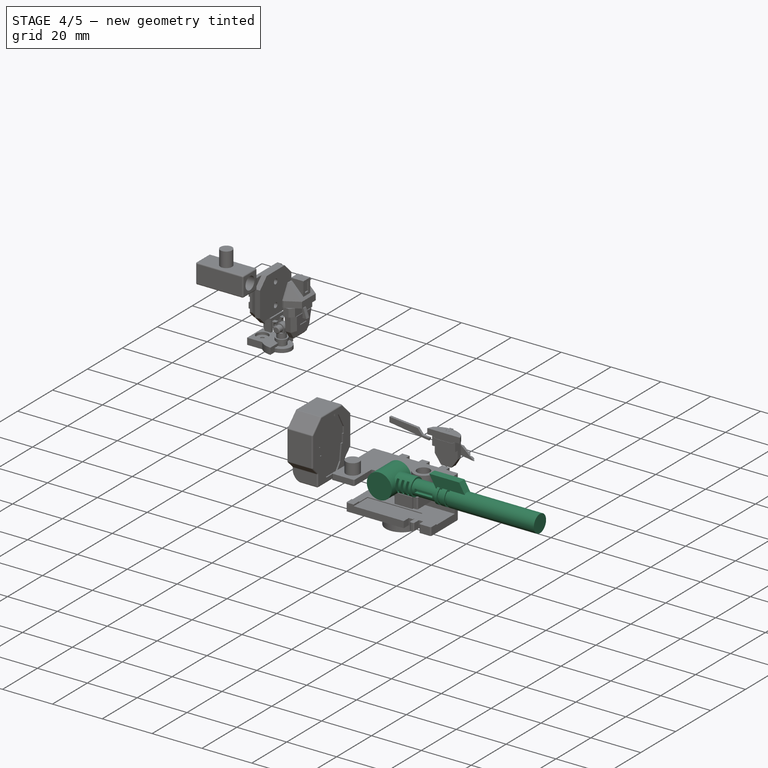
[diagram: stage 4 of 5 — iso view after this stage's code; geometry added in this stage tinted green]
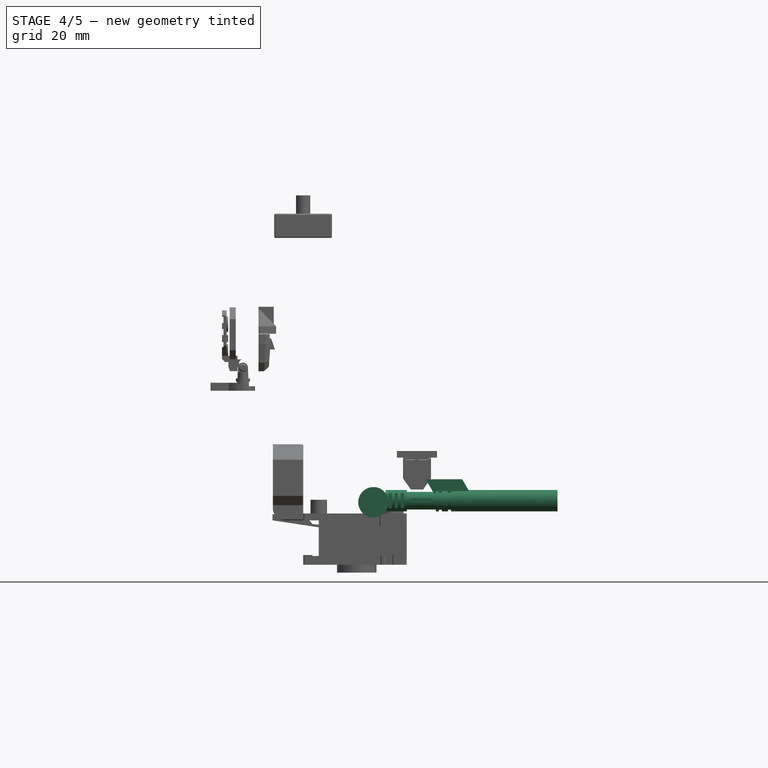
[diagram: stage 4 of 5 — front view after this stage's code; geometry added in this stage tinted green]
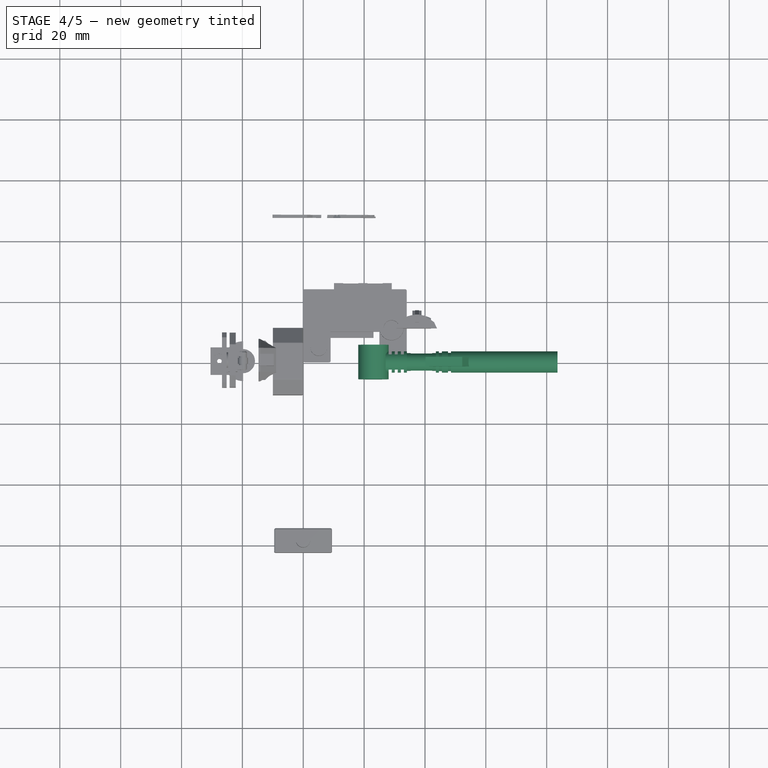
[diagram: stage 4 of 5 — top view after this stage's code; geometry added in this stage tinted green]
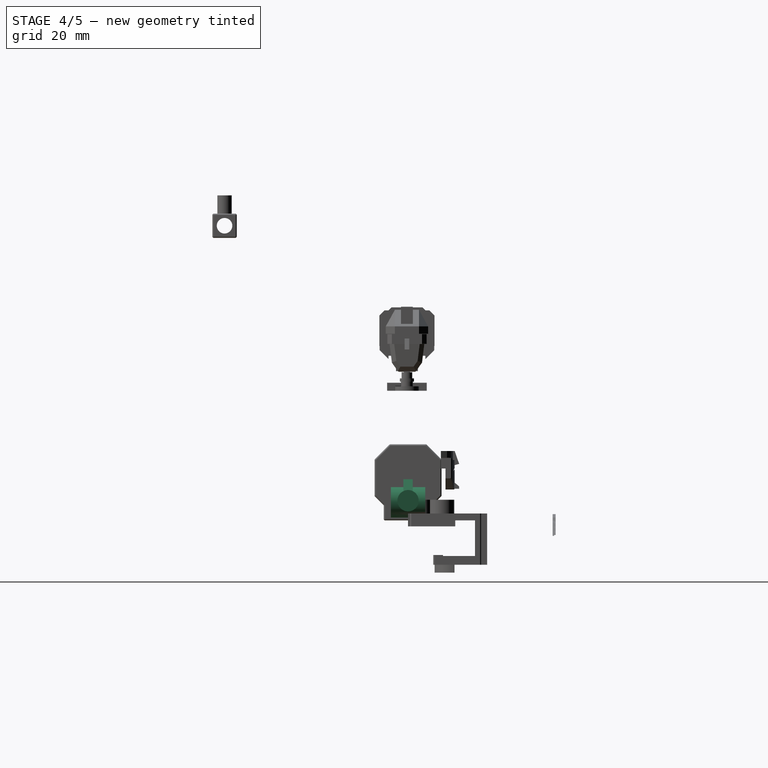
[diagram: stage 4 of 5 — right view after this stage's code; geometry added in this stage tinted green]
FEATURE [PartDesign::Pocket] Pocket305
  BaseFeature = -> Pocket302
  Direction = (0,-1,0)
  Length = 0.1
  Length2 = 5
  Profile = -> Pocket302 [Face41]
  Refine = true
  Suppressed = false
  Type = 0
FEATURE [PartDesign::Pocket] Pocket306
  BaseFeature = -> Pocket305
  Direction = (0,-1,0)
  Length = 0.1
  Length2 = 5
  Profile = -> Pocket305 [Face39]
  Refine = true
  Suppressed = false
  Type = 0
FEATURE [PartDesign::Pocket] Pocket307
  BaseFeature = -> Pocket306
  Direction = (-1,0,-6e-16)
  Length = 0.1
  Length2 = 5
  Profile = -> Pocket306 [Face8]
  Refine = true
  Suppressed = false
  Type = 0
FEATURE [PartDesign::Body] Body044  label="Left_Inner_Insert"
  AllowCompound = false
  Group = -> [Binder026,Sketch668,Pad413,Sketch669,Pocket369]
  Origin = -> Origin049
  Tip = -> Pocket369
FEATURE [Sketcher::SketchObject] Sketch889
  ArcFitTolerance = 1e-06
  AttachmentSupport = -> [XZ_Plane083]
  FullyConstrained = true
  MakeInternals = false
  MapMode = 5
  Placement = pos=(0,0,0) rot=(1,0,0;1.5708rad)
  sketch-geometry (14):
    g0: LineSegment StartX=0 StartY=0 StartZ=0 EndX=19 EndY=0 EndZ=0
    g1: LineSegment StartX=0 StartY=0 StartZ=0 EndX=-7.07107 EndY=7.07107 EndZ=0
    g2: LineSegment StartX=-7.07107 StartY=7.07107 StartZ=0 EndX=-7.07107 EndY=10.5711 EndZ=0
    g3: LineSegment StartX=-7.07107 StartY=10.5711 StartZ=0 EndX=2.92893 EndY=10.5711 EndZ=0
    g4: LineSegment StartX=2.92893 StartY=10.5711 StartZ=0 EndX=2.92893 EndY=13.5711 EndZ=0
    g5: LineSegment StartX=2.92893 StartY=13.5711 StartZ=0 EndX=6.81802 EndY=17.4602 EndZ=0
    g6: LineSegment StartX=6.81802 StartY=17.4602 StartZ=0 EndX=22.318 EndY=17.4602 EndZ=0
    g7: LineSegment StartX=22.318 StartY=17.4602 StartZ=0 EndX=22.318 EndY=22.4602 EndZ=0
    g8: LineSegment StartX=22.318 StartY=22.4602 StartZ=0 EndX=27.068 EndY=22.4602 EndZ=0
    g9: LineSegment StartX=27.068 StartY=22.4602 StartZ=0 EndX=27.068 EndY=4.96016 EndZ=0
    g10: LineSegment StartX=27.068 StartY=4.96016 StartZ=0 EndX=35.9069 EndY=-3.87868 EndZ=0
    g11: LineSegment StartX=35.9069 StartY=-3.87868 StartZ=0 EndX=31.1692 EndY=-8.6163 EndZ=0
    g12: LineSegment StartX=31.1692 StartY=-8.6163 StartZ=0 EndX=20.7765 EndY=1.77647 EndZ=0
    g13: LineSegment StartX=19 StartY=0 StartZ=0 EndX=20.7765 EndY=1.77647 EndZ=0
  constraints (41):
    c: Coincident(g0,g-1)
    c: PointOnObject(g0,g-1)
    c: DistanceX(g0,g0) = 19
    c: Coincident(g1,g0)
    c: Angle(g0,g1) = 2.35619
    c: Distance(g1) = 10
    c: Coincident(g2,g1)
    c: Vertical(g2)
    c: DistanceY(g2,g2) = 3.5
    c: Coincident(g3,g2)
    c: Horizontal(g3)
    c: DistanceX(g3,g3) = 10
    c: Coincident(g4,g3)
    c: Vertical(g4)
    c: DistanceY(g4,g4) = 3
    c: Coincident(g5,g4)
    c: Distance(g5) = 5.5
    c: Angle(g4,g5) = 2.35619
    c: Coincident(g6,g5)
    c: Horizontal(g6)
    c: DistanceX(g6,g6) = 15.5
    c: Coincident(g7,g6)
    c: Vertical(g7)
    c: DistanceY(g7,g7) = 5
    c: Coincident(g8,g7)
    c: Horizontal(g8)
    c: DistanceX(g8,g8) = 4.75
    c: Coincident(g9,g8)
    c: Vertical(g9)
    c: DistanceY(g9,g9) = 17.5
    c: Coincident(g10,g9)
    c: Distance(g10) = 12.5
    c: Angle(g10,g9) = 2.35619
    c: Coincident(g11,g10)
    c: Coincident(g12,g11)
    c: Coincident(g13,g0)
    c: Coincident(g13,g12)
    c: Angle(g13,g0) = 2.35619
    c: Perpendicular(g12,g11)
    c: Distance(g11) = 6.7
    c: Parallel(g10,g12)
FEATURE [PartDesign::Pad] Pad562
  Direction = (0,-1,2e-16)
  Length = 4.3
  Length2 = 10
  Placement = pos=(0,0,0) rot=(1,0,0;1.5708rad)
  Profile = -> Sketch889
  ReferenceAxis = -> Sketch889 [N_Axis]
  Refine = true
  Suppressed = false
  Type = 0
FEATURE [PartDesign::Pad] Pad563
  BaseFeature = -> Pad562
  Direction = (0,-1,2e-16)
  Length = 4.3
  Length2 = 10
  Placement = pos=(0,0,0) rot=(1,0,0;1.5708rad)
  Profile = -> Sketch889
  ReferenceAxis = -> Sketch889 [N_Axis]
  Refine = true
  Reversed = true
  Suppressed = false
  Type = 0
FEATURE [Sketcher::SketchObject] Sketch890
  ArcFitTolerance = 1e-06
  AttachmentSupport = -> [Pad563]
  ExternalGeometry = -> [Pad563]
  FullyConstrained = true
  MakeInternals = false
  MapMode = 5
  Placement = pos=(0,-4.3,0) rot=(1,0,0;1.5708rad)
  sketch-geometry (1):
    g0: Circle CenterX=23.068 CenterY=5.93716 CenterZ=0 NormalX=0 NormalY=0 NormalZ=1 AngleXU=0 Radius=4.75
  constraints (3):
    c: Diameter(g0) = 9.5
    c: PointOnObject(g-3,g0)
    c: DistanceX(g0,g-4) = 4
FEATURE [PartDesign::Pad] Pad564
  BaseFeature = -> Pad563
  Direction = (0,-1,2e-16)
  Length = 1.25
  Length2 = 10
  Placement = pos=(0,0,0) rot=(1,0,0;1.5708rad)
  Profile = -> Sketch890
  ReferenceAxis = -> Sketch890 [N_Axis]
  Refine = true
  Suppressed = false
  Type = 0
FEATURE [Sketcher::SketchObject] Sketch891
  ArcFitTolerance = 1e-06
  AttachmentSupport = -> [Pad564]
  ExternalGeometry = -> [Pad564]
  FullyConstrained = true
  MakeInternals = false
  MapMode = 5
  Placement = pos=(0,4.3,0) rot=(-1,0,0;1.5708rad)
  sketch-geometry (1):
    g0: Circle CenterX=23.068 CenterY=-5.93716 CenterZ=0 NormalX=0 NormalY=0 NormalZ=1 AngleXU=0 Radius=4.75
  constraints (2):
    c: Coincident(g0,g-3)
    c: PointOnObject(g-3,g0)
FEATURE [PartDesign::Pad] Pad565
  BaseFeature = -> Pad564
  Direction = (0,1,2e-16)
  Length = 1.25
  Length2 = 10
  Placement = pos=(0,0,0) rot=(1,0,0;1.5708rad)
  Profile = -> Sketch891
  ReferenceAxis = -> Sketch891 [N_Axis]
  Refine = true
  Suppressed = false
  Type = 0
FEATURE [PartDesign::Pad] Pad566
  BaseFeature = -> Pad565
  Direction = (0,1,2e-16)
  Length = 9
  Length2 = 10
  Placement = pos=(0,0,0) rot=(1,0,0;1.5708rad)
  Profile = -> Sketch891
  ReferenceAxis = -> Sketch891 [N_Axis]
  Refine = true
  Reversed = true
  Suppressed = false
  Type = 0
FEATURE [Sketcher::SketchObject] Sketch892
  ArcFitTolerance = 1e-06
  AttachmentSupport = -> [Pad566]
  ExternalGeometry = -> [Pad566]
  FullyConstrained = true
  MakeInternals = false
  MapMode = 5
  Placement = pos=(0,-4.3,0) rot=(1,0,0;1.5708rad)
  sketch-geometry (8):
    g0: LineSegment StartX=2.92893 StartY=10.5711 StartZ=0 EndX=-7.07107 EndY=10.5711 EndZ=0
    g1: LineSegment StartX=-7.07107 StartY=10.5711 StartZ=0 EndX=-7.07107 EndY=7.07107 EndZ=0
    g2: LineSegment StartX=-7.07107 StartY=7.07107 StartZ=0 EndX=0 EndY=0 EndZ=0
    g3: LineSegment StartX=0 StartY=0 StartZ=0 EndX=19 EndY=9e-16 EndZ=0
    g4: LineSegment StartX=19 StartY=9e-16 StartZ=0 EndX=20.7765 EndY=1.77647 EndZ=0
    g5: LineSegment StartX=2.92893 StartY=10.5711 StartZ=0 EndX=2.92893 EndY=7.57107 EndZ=0
    g6: LineSegment StartX=2.92893 StartY=7.57107 StartZ=0 EndX=18.6079 EndY=7.57107 EndZ=0
    g7: ArcOfCircle CenterX=23.068 CenterY=5.93715 CenterZ=0 NormalX=0 NormalY=0 NormalZ=1 AngleXU=0 Radius=4.74999 StartAngle=2.79044 EndAngle=4.20896
  constraints (19):
    c: Coincident(g0,g-3)
    c: Coincident(g0,g-4)
    c: Coincident(g1,g0)
    c: Coincident(g1,g-5)
    c: Coincident(g2,g1)
    c: Coincident(g2,g-1)
    c: Coincident(g3,g2)
    c: Coincident(g3,g-7)
    c: Coincident(g4,g-7)
    c: Coincident(g4,g3)
    c: Coincident(g5,g0)
    c: Vertical(g5)
    c: Coincident(g6,g5)
    c: PointOnObject(g6,g-8)
    c: Horizontal(g6)
    c: DistanceY(g5,g5) = 3
    c: Coincident(g7,g4)
    c: Coincident(g7,g6)
    c: Tangent(g7,g-8)
FEATURE [PartDesign::Pocket] Pocket478
  BaseFeature = -> Pad566
  Direction = (0,1,-2e-16)
  Length = 0.6
  Length2 = 5
  Placement = pos=(0,0,0) rot=(1,0,0;1.5708rad)
  Profile = -> Sketch892
  ReferenceAxis = -> Sketch892 [N_Axis]
  Refine = true
  Suppressed = false
  Type = 0
FEATURE [Sketcher::SketchObject] Sketch893
  ArcFitTolerance = 1e-06
  AttachmentSupport = -> [Pocket478]
  ExternalGeometry = -> [Pocket478]
  FullyConstrained = true
  MakeInternals = false
  MapMode = 5
  Placement = pos=(0,4.3,0) rot=(-1,0,0;1.5708rad)
  sketch-geometry (8):
    g0: LineSegment StartX=2.92893 StartY=-10.5711 StartZ=0 EndX=2.92893 EndY=-7.57107 EndZ=0
    g1: LineSegment StartX=2.92893 StartY=-10.5711 StartZ=0 EndX=-7.07107 EndY=-10.5711 EndZ=0
    g2: LineSegment StartX=-7.07107 StartY=-10.5711 StartZ=0 EndX=-7.07107 EndY=-7.07107 EndZ=0
    g3: LineSegment StartX=-7.07107 StartY=-7.07107 StartZ=0 EndX=9e-16 EndY=0 EndZ=0
    g4: LineSegment StartX=9e-16 StartY=0 StartZ=0 EndX=19 EndY=0 EndZ=0
    g5: LineSegment StartX=19 StartY=0 StartZ=0 EndX=20.7765 EndY=-1.77647 EndZ=0
    g6: LineSegment StartX=2.92893 StartY=-7.57107 StartZ=0 EndX=18.6079 EndY=-7.57107 EndZ=0
    g7: ArcOfCircle CenterX=23.068 CenterY=-5.93715 CenterZ=0 NormalX=0 NormalY=0 NormalZ=1 AngleXU=0 Radius=4.74998 StartAngle=2.07422 EndAngle=3.49275
  constraints (17):
    c: Coincident(g0,g-10)
    c: Coincident(g0,g-4)
    c: Coincident(g1,g0)
    c: Coincident(g1,g-10)
    c: Coincident(g2,g1)
    c: Coincident(g2,g-9)
    c: Coincident(g3,g2)
    c: Coincident(g3,g-1)
    c: Coincident(g4,g3)
    c: Coincident(g4,g-7)
    c: Coincident(g5,g4)
    c: Coincident(g5,g-6)
    c: Coincident(g6,g0)
    c: Coincident(g6,g-5)
    c: Coincident(g7,g6)
    c: Coincident(g7,g5)
    c: Tangent(g7,g-5)
FEATURE [PartDesign::Pocket] Pocket479
  BaseFeature = -> Pocket478
  Direction = (0,-1,-2e-16)
  Length = 0.6
  Length2 = 5
  Placement = pos=(0,0,0) rot=(1,0,0;1.5708rad)
  Profile = -> Sketch893
  ReferenceAxis = -> Sketch893 [N_Axis]
  Refine = true
  Suppressed = false
  Type = 0
FEATURE [PartDesign::Pocket] Pocket480
  BaseFeature = -> Pocket479
  Direction = (0,1,0)
  Length = 1.25
  Length2 = 5
  Placement = pos=(0,0,0) rot=(1,0,0;1.5708rad)
  Profile = -> Pocket479 [Face9]
  Refine = true
  Suppressed = false
  Type = 0
FEATURE [PartDesign::Pocket] Pocket481
  BaseFeature = -> Pocket480
  Direction = (0,-1,0)
  Length = 1.25
  Length2 = 5
  Placement = pos=(0,0,0) rot=(1,0,0;1.5708rad)
  Profile = -> Pocket480 [Face4]
  Refine = true
  Suppressed = false
  Type = 0
FEATURE [Sketcher::SketchObject] Sketch894
  ArcFitTolerance = 1e-06
  AttachmentSupport = -> [Pocket481]
  ExternalGeometry = -> [Pocket481]
  FullyConstrained = true
  MakeInternals = false
  MapMode = 5
  Placement = pos=(0,-4.3,0) rot=(1,0,0;1.5708rad)
  sketch-geometry (6):
    g0: LineSegment StartX=8.28769 StartY=15.4602 StartZ=0 EndX=4.92893 EndY=12.1014 EndZ=0
    g1: LineSegment StartX=4.92893 StartY=12.1014 StartZ=0 EndX=4.92893 EndY=9.57107 EndZ=0
    g2: LineSegment StartX=4.92893 StartY=9.57107 StartZ=0 EndX=20.0091 EndY=9.57107 EndZ=0
    g3: LineSegment StartX=8.28769 StartY=15.4602 StartZ=0 EndX=21.318 EndY=15.4602 EndZ=0
    g4: LineSegment StartX=21.318 StartY=15.4602 StartZ=0 EndX=21.318 EndY=10.353 EndZ=0
    g5: ArcOfCircle CenterX=23.068 CenterY=5.93718 CenterZ=0 NormalX=0 NormalY=0 NormalZ=1 AngleXU=0 Radius=4.74997 StartAngle=1.94811 EndAngle=2.2705
  constraints (19):
    c: Coincident(g1,g0)
    c: Vertical(g1)
    c: Coincident(g2,g1)
    c: PointOnObject(g2,g-7)
    c: Horizontal(g2)
    c: Coincident(g3,g0)
    c: Horizontal(g3)
    c: Coincident(g4,g3)
    c: PointOnObject(g4,g-7)
    c: Vertical(g4)
    c: Coincident(g5,g2)
    c: Coincident(g5,g4)
    c: DistanceY(g-6,g1) = 2
    c: DistanceY(g0,g-4) = 2
    c: Parallel(g0,g-4)
    c: DistanceX(g3,g-3) = 1
    c: Tangent(g5,g-7)
    c: DistanceX(g-5,g0) = 2
    c: Distance(g0) = 4.75
FEATURE [PartDesign::Pocket] Pocket482
  BaseFeature = -> Pocket481
  Direction = (0,1,-2e-16)
  Length = 2
  Length2 = 5
  Placement = pos=(0,0,0) rot=(1,0,0;1.5708rad)
  Profile = -> Sketch894
  ReferenceAxis = -> Sketch894 [N_Axis]
  Refine = true
  Suppressed = false
  Type = 0
FEATURE [Sketcher::SketchObject] Sketch895
  ArcFitTolerance = 1e-06
  AttachmentSupport = -> [Pocket482]
  ExternalGeometry = -> [Pocket482]
  FullyConstrained = true
  MakeInternals = false
  MapMode = 5
  Placement = pos=(0,4.3,0) rot=(-1,0,0;1.5708rad)
  sketch-geometry (6):
    g0: LineSegment StartX=21.318 StartY=-10.353 StartZ=0 EndX=21.318 EndY=-15.4602 EndZ=0
    g1: LineSegment StartX=21.318 StartY=-15.4602 StartZ=0 EndX=8.28769 EndY=-15.4602 EndZ=0
    g2: LineSegment StartX=8.28769 StartY=-15.4602 StartZ=0 EndX=4.92893 EndY=-12.1014 EndZ=0
    g3: LineSegment StartX=4.92893 StartY=-12.1014 StartZ=0 EndX=4.92893 EndY=-9.57107 EndZ=0
    g4: LineSegment StartX=4.92893 StartY=-9.57107 StartZ=0 EndX=20.0091 EndY=-9.57107 EndZ=0
    g5: ArcOfCircle CenterX=23.068 CenterY=-5.93716 CenterZ=0 NormalX=0 NormalY=0 NormalZ=1 AngleXU=0 Radius=4.75 StartAngle=4.01269 EndAngle=4.33508
  constraints (12):
    c: Coincident(g0,g-8)
    c: Coincident(g0,g-4)
    c: Coincident(g1,g-4)
    c: Coincident(g1,g-5)
    c: Coincident(g2,g-5)
    c: Coincident(g2,g-6)
    c: Coincident(g3,g2)
    c: Coincident(g3,g-7)
    c: Coincident(g4,g3)
    c: Coincident(g4,g-8)
    c: Coincident(g5,g4)
    c: Tangent(g5,g-8) = -1.5708
FEATURE [PartDesign::Pocket] Pocket483
  BaseFeature = -> Pocket482
  Direction = (0,-1,-2e-16)
  Length = 2
  Length2 = 5
  Placement = pos=(0,0,0) rot=(1,0,0;1.5708rad)
  Profile = -> Sketch895
  ReferenceAxis = -> Sketch895 [N_Axis]
  Refine = true
  Suppressed = false
  Type = 0
FEATURE [Sketcher::SketchObject] Sketch896
  ArcFitTolerance = 1e-06
  AttachmentSupport = -> [Pocket483]
  ExternalGeometry = -> [Pocket483]
  FullyConstrained = true
  MakeInternals = false
  MapMode = 5
  Placement = pos=(0,3.7,9e-16) rot=(-1,0,0;1.5708rad)
  sketch-geometry (9):
    g0: LineSegment StartX=2.92893 StartY=-8.57107 StartZ=0 EndX=-3.33363 EndY=-8.57107 EndZ=0
    g1: LineSegment StartX=-3.33363 StartY=-8.57107 StartZ=0 EndX=-3.33363 EndY=-7.83363 EndZ=0
    g2: LineSegment StartX=-3.33363 StartY=-7.83363 StartZ=0 EndX=2.5 EndY=-2 EndZ=0
    g3: LineSegment StartX=2.5 StartY=-2 StartZ=0 EndX=17 EndY=-2 EndZ=0
    g4: LineSegment StartX=17 StartY=-2 StartZ=0 EndX=18.8173 EndY=-3.81729 EndZ=0
    g5: LineSegment StartX=2.92893 StartY=-8.57107 StartZ=0 EndX=2.92893 EndY=-7.57107 EndZ=0
    g6: LineSegment StartX=2.92893 StartY=-7.57107 StartZ=0 EndX=18.6079 EndY=-7.57107 EndZ=0
    g7: ArcOfCircle CenterX=23.068 CenterY=-5.93716 CenterZ=0 NormalX=0 NormalY=0 NormalZ=1 AngleXU=0 Radius=4.75 StartAngle=2.67898 EndAngle=3.49275
    g8: LineSegment [constr] StartX=17 StartY=-2 StartZ=0 EndX=19 EndY=9e-16 EndZ=0
  constraints (25):
    c: Horizontal(g0)
    c: Coincident(g1,g0)
    c: Vertical(g1)
    c: Coincident(g2,g1)
    c: Coincident(g3,g2)
    c: Horizontal(g3)
    c: Coincident(g4,g3)
    c: PointOnObject(g4,g-7)
    c: Coincident(g5,g0)
    c: Coincident(g5,g-9)
    c: Vertical(g5)
    c: Coincident(g6,g5)
    c: Coincident(g6,g-9)
    c: Coincident(g7,g4)
    c: Coincident(g7,g6)
    c: Tangent(g7,g-7)
    c: Parallel(g2,g-5)
    c: DistanceY(g-4,g0) = 2
    c: Parallel(g4,g-10)
    c: DistanceY(g2,g-1) = 2
    c: Coincident(g8,g3)
    c: Coincident(g8,g-10)
    c: Perpendicular(g-10,g8)
    c: DistanceX(g3,g3) = 14.5
    c: Distance(g2) = 8.25
FEATURE [PartDesign::Pocket] Pocket484
  BaseFeature = -> Pocket483
  Direction = (0,-1,-2e-16)
  Length = 2.5
  Length2 = 5
  Placement = pos=(0,0,0) rot=(1,0,0;1.5708rad)
  Profile = -> Sketch896
  ReferenceAxis = -> Sketch896 [N_Axis]
  Refine = true
  Suppressed = false
  Type = 0
FEATURE [Sketcher::SketchObject] Sketch897
  ArcFitTolerance = 1e-06
  AttachmentSupport = -> [Pocket484]
  ExternalGeometry = -> [Pocket484]
  FullyConstrained = true
  MakeInternals = false
  MapMode = 5
  Placement = pos=(0,-3.7,9e-16) rot=(1,0,0;1.5708rad)
  sketch-geometry (8):
    g0: LineSegment StartX=2.92893 StartY=7.57107 StartZ=0 EndX=2.92893 EndY=8.57107 EndZ=0
    g1: LineSegment StartX=2.92893 StartY=8.57107 StartZ=0 EndX=-3.33363 EndY=8.57107 EndZ=0
    g2: LineSegment StartX=-3.33363 StartY=8.57107 StartZ=0 EndX=-3.33363 EndY=7.83363 EndZ=0
    g3: LineSegment StartX=-3.33363 StartY=7.83363 StartZ=0 EndX=2.5 EndY=2 EndZ=0
    g4: LineSegment StartX=2.5 StartY=2 StartZ=0 EndX=17 EndY=2 EndZ=0
    g5: LineSegment StartX=2.92893 StartY=7.57107 StartZ=0 EndX=18.6079 EndY=7.57107 EndZ=0
    g6: LineSegment StartX=17 StartY=2 StartZ=0 EndX=18.8173 EndY=3.81729 EndZ=0
    g7: ArcOfCircle CenterX=23.068 CenterY=5.93716 CenterZ=0 NormalX=0 NormalY=0 NormalZ=1 AngleXU=0 Radius=4.74999 StartAngle=2.79044 EndAngle=3.60421
  constraints (17):
    c: Coincident(g0,g-10)
    c: Coincident(g0,g-9)
    c: Coincident(g1,g0)
    c: Coincident(g1,g-8)
    c: Coincident(g2,g1)
    c: Coincident(g2,g-8)
    c: Coincident(g3,g2)
    c: Coincident(g3,g-6)
    c: Coincident(g4,g3)
    c: Coincident(g4,g-5)
    c: Coincident(g5,g0)
    c: Coincident(g5,g-10)
    c: Coincident(g6,g4)
    c: Coincident(g6,g-4)
    c: Coincident(g7,g5)
    c: Coincident(g7,g6)
    c: Tangent(g7,g-3)
FEATURE [PartDesign::Pocket] Pocket485
  BaseFeature = -> Pocket484
  Direction = (0,1,-2e-16)
  Length = 2.5
  Length2 = 5
  Placement = pos=(0,0,0) rot=(1,0,0;1.5708rad)
  Profile = -> Sketch897
  ReferenceAxis = -> Sketch897 [N_Axis]
  Refine = true
  Suppressed = false
  Type = 0
FEATURE [Sketcher::SketchObject] Sketch898
  ArcFitTolerance = 1e-06
  AttachmentSupport = -> [Pocket485]
  ExternalGeometry = -> [Pocket485]
  FullyConstrained = true
  MakeInternals = false
  MapMode = 5
  Placement = pos=(0,-2.3,7e-16) rot=(1,0,0;1.5708rad)
  sketch-geometry (20):
    g0: LineSegment StartX=6.92893 StartY=14.1014 StartZ=0 EndX=6.92893 EndY=9.57107 EndZ=0
    g1: LineSegment StartX=6.92893 StartY=14.1014 StartZ=0 EndX=7.92893 EndY=15.1014 EndZ=0
    g2: LineSegment StartX=7.92893 StartY=15.1014 StartZ=0 EndX=7.92893 EndY=9.57107 EndZ=0
    g3: LineSegment StartX=7.92893 StartY=9.57107 StartZ=0 EndX=6.92893 EndY=9.57107 EndZ=0
    g4: LineSegment StartX=10.0091 StartY=15.4602 StartZ=0 EndX=10.0091 EndY=9.57107 EndZ=0
    g5: LineSegment StartX=10.0091 StartY=9.57107 StartZ=0 EndX=11.0091 EndY=9.57107 EndZ=0
    g6: LineSegment StartX=11.0091 StartY=9.57107 StartZ=0 EndX=11.0091 EndY=15.4602 EndZ=0
    g7: LineSegment StartX=11.0091 StartY=15.4602 StartZ=0 EndX=10.0091 EndY=15.4602 EndZ=0
    g8: LineSegment StartX=13.0091 StartY=15.4602 StartZ=0 EndX=13.0091 EndY=9.57107 EndZ=0
    g9: LineSegment StartX=13.0091 StartY=9.57107 StartZ=0 EndX=14.0091 EndY=9.57107 EndZ=0
    g10: LineSegment StartX=14.0091 StartY=9.57107 StartZ=0 EndX=14.0091 EndY=15.4602 EndZ=0
    g11: LineSegment StartX=14.0091 StartY=15.4602 StartZ=0 EndX=13.0091 EndY=15.4602 EndZ=0
    g12: LineSegment StartX=16.0091 StartY=15.4602 StartZ=0 EndX=16.0091 EndY=9.57107 EndZ=0
    g13: LineSegment StartX=16.0091 StartY=9.57107 StartZ=0 EndX=17.0091 EndY=9.57107 EndZ=0
    g14: LineSegment StartX=17.0091 StartY=9.57107 StartZ=0 EndX=17.0091 EndY=15.4602 EndZ=0
    g15: LineSegment StartX=17.0091 StartY=15.4602 StartZ=0 EndX=16.0091 EndY=15.4602 EndZ=0
    g16: LineSegment StartX=19.0091 StartY=15.4602 StartZ=0 EndX=19.0091 EndY=9.57107 EndZ=0
    g17: LineSegment StartX=19.0091 StartY=9.57107 StartZ=0 EndX=20.0091 EndY=9.57107 EndZ=0
    g18: LineSegment StartX=20.0091 StartY=9.57107 StartZ=0 EndX=20.0091 EndY=15.4602 EndZ=0
    g19: LineSegment StartX=20.0091 StartY=15.4602 StartZ=0 EndX=19.0091 EndY=15.4602 EndZ=0
  constraints (60):
    c: PointOnObject(g0,g-3)
    c: PointOnObject(g0,g-6)
    c: Vertical(g0)
    c: Coincident(g1,g0)
    c: PointOnObject(g1,g-3)
    c: Coincident(g2,g1)
    c: PointOnObject(g2,g-6)
    c: Vertical(g2)
    c: Coincident(g3,g2)
    c: Coincident(g3,g0)
    c: Coincident(g4,g5)
    c: Coincident(g5,g6)
    c: Coincident(g6,g7)
    c: Coincident(g7,g4)
    c: Vertical(g4)
    c: Vertical(g6)
    c: Horizontal(g5)
    c: Horizontal(g7)
    c: PointOnObject(g4,g-4)
    c: PointOnObject(g5,g-6)
    c: Coincident(g8,g9)
    c: Coincident(g9,g10)
    c: Coincident(g10,g11)
    c: Coincident(g11,g8)
    c: Vertical(g8)
    c: Vertical(g10)
    c: Horizontal(g9)
    c: Horizontal(g11)
    c: PointOnObject(g8,g-4)
    c: PointOnObject(g9,g-6)
    c: Coincident(g12,g13)
    c: Coincident(g13,g14)
    c: Coincident(g14,g15)
    c: Coincident(g15,g12)
    c: Vertical(g12)
    c: Vertical(g14)
    c: Horizontal(g13)
    c: Horizontal(g15)
    c: PointOnObject(g12,g-4)
    c: PointOnObject(g13,g-6)
    c: Coincident(g16,g17)
    c: Coincident(g17,g18)
    c: Coincident(g18,g19)
    c: Coincident(g19,g16)
    c: Vertical(g16)
    c: Vertical(g18)
    c: Horizontal(g17)
    c: Horizontal(g19)
    c: PointOnObject(g16,g-4)
    c: Coincident(g17,g-6)
    c: DistanceX(g19,g19) = 1
    c: DistanceX(g15,g15) = 1
    c: DistanceX(g11,g11) = 1
    c: DistanceX(g7,g7) = 1
    c: DistanceX(g3,g3) = 1
    c: DistanceX(g14,g16) = 2
    c: DistanceX(g10,g12) = 2
    c: DistanceX(g6,g8) = 2
    c: DistanceX(g-7,g0) = 2
    c: DistanceX(g1,g4) = 2.08013
FEATURE [PartDesign::Pocket] Pocket486
  BaseFeature = -> Pocket485
  Direction = (0,1,-2e-16)
  Length = 1
  Length2 = 5
  Placement = pos=(0,0,0) rot=(1,0,0;1.5708rad)
  Profile = -> Sketch898
  ReferenceAxis = -> Sketch898 [N_Axis]
  Refine = true
  Suppressed = false
  Type = 0
FEATURE [Sketcher::SketchObject] Sketch899
  ArcFitTolerance = 1e-06
  AttachmentSupport = -> [Pocket486]
  ExternalGeometry = -> [Pocket486]
  FullyConstrained = true
  MakeInternals = false
  MapMode = 5
  Placement = pos=(0,2.3,7e-16) rot=(-1,0,0;1.5708rad)
  sketch-geometry (20):
    g0: LineSegment StartX=20.0091 StartY=-15.4602 StartZ=0 EndX=20.0091 EndY=-9.57107 EndZ=0
    g1: LineSegment StartX=20.0091 StartY=-9.57107 StartZ=0 EndX=19.0091 EndY=-9.57107 EndZ=0
    g2: LineSegment StartX=19.0091 StartY=-9.57107 StartZ=0 EndX=19.0091 EndY=-15.4602 EndZ=0
    g3: LineSegment StartX=19.0091 StartY=-15.4602 StartZ=0 EndX=20.0091 EndY=-15.4602 EndZ=0
    g4: LineSegment StartX=17.0091 StartY=-15.4602 StartZ=0 EndX=17.0091 EndY=-9.57107 EndZ=0
    g5: LineSegment StartX=17.0091 StartY=-9.57107 StartZ=0 EndX=16.0091 EndY=-9.57107 EndZ=0
    g6: LineSegment StartX=16.0091 StartY=-9.57107 StartZ=0 EndX=16.0091 EndY=-15.4602 EndZ=0
    g7: LineSegment StartX=16.0091 StartY=-15.4602 StartZ=0 EndX=17.0091 EndY=-15.4602 EndZ=0
    g8: LineSegment StartX=14.0091 StartY=-15.4602 StartZ=0 EndX=14.0091 EndY=-9.57107 EndZ=0
    g9: LineSegment StartX=14.0091 StartY=-9.57107 StartZ=0 EndX=13.0091 EndY=-9.57107 EndZ=0
    g10: LineSegment StartX=13.0091 StartY=-9.57107 StartZ=0 EndX=13.0091 EndY=-15.4602 EndZ=0
    g11: LineSegment StartX=13.0091 StartY=-15.4602 StartZ=0 EndX=14.0091 EndY=-15.4602 EndZ=0
    g12: LineSegment StartX=11.0091 StartY=-15.4602 StartZ=0 EndX=11.0091 EndY=-9.57107 EndZ=0
    g13: LineSegment StartX=11.0091 StartY=-9.57107 StartZ=0 EndX=10.0091 EndY=-9.57107 EndZ=0
    g14: LineSegment StartX=10.0091 StartY=-9.57107 StartZ=0 EndX=10.0091 EndY=-15.4602 EndZ=0
    g15: LineSegment StartX=10.0091 StartY=-15.4602 StartZ=0 EndX=11.0091 EndY=-15.4602 EndZ=0
    g16: LineSegment StartX=7.92893 StartY=-15.1014 StartZ=0 EndX=6.92893 EndY=-14.1014 EndZ=0
    g17: LineSegment StartX=6.92893 StartY=-14.1014 StartZ=0 EndX=6.92893 EndY=-9.57107 EndZ=0
    g18: LineSegment StartX=6.92893 StartY=-9.57107 StartZ=0 EndX=7.92893 EndY=-9.57107 EndZ=0
    g19: LineSegment StartX=7.92893 StartY=-9.57107 StartZ=0 EndX=7.92893 EndY=-15.1014 EndZ=0
  constraints (48):
    c: Coincident(g0,g1)
    c: Coincident(g1,g2)
    c: Coincident(g2,g3)
    c: Coincident(g3,g0)
    c: Vertical(g0)
    c: Vertical(g2)
    c: Horizontal(g1)
    c: Horizontal(g3)
    c: Coincident(g0,g-12)
    c: Coincident(g1,g-11)
    c: Coincident(g4,g5)
    c: Coincident(g5,g6)
    c: Coincident(g6,g7)
    c: Coincident(g7,g4)
    c: Vertical(g4)
    c: Vertical(g6)
    c: Horizontal(g5)
    c: Horizontal(g7)
    c: Coincident(g4,g-10)
    c: Coincident(g5,g-9)
    c: Coincident(g8,g9)
    c: Coincident(g9,g10)
    c: Coincident(g10,g11)
    c: Coincident(g11,g8)
    c: Vertical(g8)
    c: Vertical(g10)
    c: Horizontal(g9)
    c: Horizontal(g11)
    c: Coincident(g8,g-8)
    c: Coincident(g9,g-7)
    c: Coincident(g12,g13)
    c: Coincident(g13,g14)
    c: Coincident(g14,g15)
    c: Coincident(g15,g12)
    c: Vertical(g12)
    c: Vertical(g14)
    c: Horizontal(g13)
    c: Horizontal(g15)
    c: Coincident(g12,g-6)
    c: Coincident(g13,g-5)
    c: Coincident(g16,g-4)
    c: Coincident(g16,g-3)
    c: Coincident(g17,g16)
    c: Coincident(g17,g-3)
    c: Coincident(g18,g17)
    c: Coincident(g18,g-4)
    c: Coincident(g19,g18)
    c: Coincident(g19,g16)
FEATURE [PartDesign::Pocket] Pocket487
  BaseFeature = -> Pocket486
  Direction = (0,-1,-2e-16)
  Length = 1
  Length2 = 5
  Placement = pos=(0,0,0) rot=(1,0,0;1.5708rad)
  Profile = -> Sketch899
  ReferenceAxis = -> Sketch899 [N_Axis]
  Refine = true
  Suppressed = false
  Type = 0
FEATURE [Sketcher::SketchObject] Sketch900
  ArcFitTolerance = 1e-06
  AttachmentSupport = -> [Pocket487]
  ExternalGeometry = -> [Pocket487]
  FullyConstrained = false
  MakeInternals = false
  MapMode = 5
  Placement = pos=(0,4.3,0) rot=(-1,0,0;1.5708rad)
  sketch-geometry (6):
    g0: LineSegment StartX=25.343 StartY=-10.1069 StartZ=0 EndX=25.343 EndY=-19.3569 EndZ=0
    g1: LineSegment StartX=24.043 StartY=-10.586 StartZ=0 EndX=24.043 EndY=-19.3569 EndZ=0
    g2: ArcOfCircle CenterX=24.693 CenterY=-19.3569 CenterZ=0 NormalX=0 NormalY=0 NormalZ=1 AngleXU=0 Radius=0.65 StartAngle=3.14159 EndAngle=6.28319
    g3: ArcOfCircle CenterX=23.068 CenterY=-5.93716 CenterZ=0 NormalX=0 NormalY=0 NormalZ=1 AngleXU=0 Radius=4.75 StartAngle=4.91912 EndAngle=5.21184
    g4: LineSegment [constr] StartX=24.693 StartY=-19.3569 StartZ=0 EndX=25.343 EndY=-19.3569 EndZ=0
    g5: LineSegment [constr] StartX=24.693 StartY=-19.3569 StartZ=0 EndX=24.043 EndY=-19.3569 EndZ=0
  constraints (18):
    c: PointOnObject(g0,g-6)
    c: Vertical(g0)
    c: PointOnObject(g1,g-6)
    c: Vertical(g1)
    c: Coincident(g2,g0)
    c: Coincident(g2,g1)
    c: Coincident(g3,g1)
    c: Coincident(g3,g0)
    c: Coincident(g4,g2)
    c: Coincident(g5,g2)
    c: Coincident(g5,g1)
    c: Horizontal(g4)
    c: Horizontal(g5)
    c: Coincident(g4,g0)
    c: Diameter(g2) = 1.3
    c: DistanceY(g0,g0) = 9.25
    c: DistanceX(g-4,g-4) = 4.75
    c: DistanceX(g2,g-4) = 2.375
FEATURE [PartDesign::Pocket] Pocket488
  BaseFeature = -> Pocket487
  Direction = (0,-1,-2e-16)
  Length = 2
  Length2 = 5
  Placement = pos=(0,0,0) rot=(1,0,0;1.5708rad)
  Profile = -> Sketch900
  ReferenceAxis = -> Sketch900 [N_Axis]
  Refine = true
  Suppressed = false
  Type = 0
FEATURE [Sketcher::SketchObject] Sketch901
  ArcFitTolerance = 1e-06
  AttachmentSupport = -> [Pocket488]
  ExternalGeometry = -> [Pocket488]
  FullyConstrained = true
  MakeInternals = false
  MapMode = 5
  Placement = pos=(0,-4.3,0) rot=(1,0,0;1.5708rad)
  sketch-geometry (4):
    g0: ArcOfCircle CenterX=24.693 CenterY=19.3569 CenterZ=0 NormalX=0 NormalY=0 NormalZ=1 AngleXU=0 Radius=0.65 StartAngle=1.6e-15 EndAngle=3.14159
    g1: LineSegment StartX=24.043 StartY=19.3569 StartZ=0 EndX=24.043 EndY=10.586 EndZ=0
    g2: LineSegment StartX=25.343 StartY=19.3569 StartZ=0 EndX=25.343 EndY=10.1069 EndZ=0
    g3: ArcOfCircle CenterX=23.068 CenterY=5.93716 CenterZ=0 NormalX=0 NormalY=0 NormalZ=1 AngleXU=0 Radius=4.75 StartAngle=1.07134 EndAngle=1.36406
  constraints (9):
    c: Tangent(g0,g-4) = -1.5708
    c: Coincident(g0,g-5)
    c: Coincident(g1,g0)
    c: Coincident(g1,g-6)
    c: Coincident(g2,g0)
    c: Coincident(g2,g-6)
    c: Coincident(g3,g1)
    c: Coincident(g3,g2)
    c: Tangent(g3,g-6)
FEATURE [PartDesign::Pocket] Pocket489
  BaseFeature = -> Pocket488
  Direction = (0,1,-2e-16)
  Length = 2
  Length2 = 5
  Placement = pos=(0,0,0) rot=(1,0,0;1.5708rad)
  Profile = -> Sketch901
  ReferenceAxis = -> Sketch901 [N_Axis]
  Refine = true
  Suppressed = false
  Type = 0
FEATURE [Sketcher::SketchObject] Sketch902
  ArcFitTolerance = 1e-06
  AttachmentSupport = -> [Pocket489]
  ExternalGeometry = -> [Pocket489]
  FullyConstrained = true
  MakeInternals = false
  MapMode = 5
  Placement = pos=(22.318,9.2e-15,0) rot=(0.707107,0,-0.707107;3.14159rad)
  sketch-geometry (6):
    g0: LineSegment StartX=-17.4602 StartY=-4.3 StartZ=0 EndX=-22.4602 EndY=-2.3 EndZ=0
    g1: LineSegment StartX=-17.4602 StartY=-4.3 StartZ=0 EndX=-22.4602 EndY=-4.3 EndZ=0
    g2: LineSegment StartX=-22.4602 StartY=-4.3 StartZ=0 EndX=-22.4602 EndY=-2.3 EndZ=0
    g3: LineSegment StartX=-17.4602 StartY=4.3 StartZ=0 EndX=-22.4602 EndY=4.3 EndZ=0
    g4: LineSegment StartX=-22.4602 StartY=4.3 StartZ=0 EndX=-22.4602 EndY=2.3 EndZ=0
    g5: LineSegment StartX=-22.4602 StartY=2.3 StartZ=0 EndX=-17.4602 EndY=4.3 EndZ=0
  constraints (14):
    c: Coincident(g0,g-4)
    c: PointOnObject(g0,g-5)
    c: Coincident(g1,g0)
    c: Coincident(g1,g-5)
    c: Coincident(g2,g1)
    c: Coincident(g2,g0)
    c: Coincident(g3,g-3)
    c: Coincident(g3,g-5)
    c: Coincident(g4,g3)
    c: PointOnObject(g4,g-5)
    c: Coincident(g5,g4)
    c: Coincident(g5,g3)
    c: DistanceY(g4,g4) = 2
    c: DistanceY(g2,g2) = 2
FEATURE [PartDesign::Pocket] Pocket490
  BaseFeature = -> Pocket489
  Direction = (1,0,2e-16)
  Length = 5
  Length2 = 5
  Placement = pos=(0,0,0) rot=(1,0,0;1.5708rad)
  Profile = -> Sketch902
  ReferenceAxis = -> Sketch902 [N_Axis]
  Refine = true
  Suppressed = false
  Type = 0
FEATURE [Sketcher::SketchObject] Sketch903
  ArcFitTolerance = 1e-06
  AttachmentSupport = -> [Pocket490]
  ExternalGeometry = -> [Pocket490]
  FullyConstrained = true
  MakeInternals = false
  MapMode = 5
  Placement = pos=(0,-5.55,1.8e-15) rot=(1,0,0;1.5708rad)
  sketch-geometry (1):
    g0: Circle CenterX=23.068 CenterY=5.93716 CenterZ=0 NormalX=0 NormalY=0 NormalZ=1 AngleXU=0 Radius=3
  constraints (2):
    c: Coincident(g0,g-3)
    c: Diameter(g0) = 6
FEATURE [PartDesign::Pocket] Pocket491
  BaseFeature = -> Pocket490
  Direction = (0,1,-2e-16)
  Length = 5
  Length2 = 5
  Placement = pos=(0,0,0) rot=(1,0,0;1.5708rad)
  Profile = -> Sketch903
  ReferenceAxis = -> Sketch903 [N_Axis]
  Refine = true
  Suppressed = false
  Type = 0
FEATURE [Sketcher::SketchObject] Sketch904
  ArcFitTolerance = 1e-06
  AttachmentSupport = -> [Pocket491]
  ExternalGeometry = -> [Pocket491]
  FullyConstrained = true
  MakeInternals = false
  MapMode = 5
  Placement = pos=(0,5.55,1.8e-15) rot=(-1,0,0;1.5708rad)
  sketch-geometry (1):
    g0: Circle CenterX=23.068 CenterY=-5.93716 CenterZ=0 NormalX=0 NormalY=0 NormalZ=1 AngleXU=0 Radius=3
  constraints (2):
    c: Coincident(g0,g-4)
    c: Equal(g0,g-4)
FEATURE [PartDesign::Pocket] Pocket492
  BaseFeature = -> Pocket491
  Direction = (0,-1,-2e-16)
  Length = 5
  Length2 = 5
  Placement = pos=(0,0,0) rot=(1,0,0;1.5708rad)
  Profile = -> Sketch904
  ReferenceAxis = -> Sketch904 [N_Axis]
  Refine = true
  Suppressed = false
  Type = 0
FEATURE [Sketcher::SketchObject] Sketch905
  ArcFitTolerance = 1e-06
  AttachmentSupport = -> [Pocket492]
  ExternalGeometry = -> [Pocket492]
  FullyConstrained = true
  MakeInternals = false
  MapMode = 5
  Placement = pos=(0,0.55,0) rot=(-1,0,0;1.5708rad)
  sketch-geometry (20):
    g0: LineSegment StartX=22.368 StartY=-3.01997 StartZ=0 EndX=22.368 EndY=-3.51997 EndZ=0
    g1: LineSegment StartX=22.368 StartY=-3.51997 StartZ=0 EndX=23.768 EndY=-3.51997 EndZ=0
    g2: LineSegment StartX=23.768 StartY=-3.51997 StartZ=0 EndX=23.768 EndY=-3.01997 EndZ=0
    g3: ArcOfCircle CenterX=23.068 CenterY=-5.93716 CenterZ=0 NormalX=0 NormalY=0 NormalZ=1 AngleXU=0 Radius=3 StartAngle=1.33529 EndAngle=1.8063
    g4: LineSegment StartX=20.1508 StartY=-5.23716 StartZ=0 EndX=20.6508 EndY=-5.23716 EndZ=0
    g5: LineSegment StartX=20.6508 StartY=-5.23716 StartZ=0 EndX=20.6508 EndY=-6.63716 EndZ=0
    g6: LineSegment StartX=20.6508 StartY=-6.63716 StartZ=0 EndX=20.1508 EndY=-6.63716 EndZ=0
    g7: LineSegment StartX=25.9852 StartY=-5.23716 StartZ=0 EndX=25.4852 EndY=-5.23716 EndZ=0
    g8: LineSegment StartX=25.4852 StartY=-5.23716 StartZ=0 EndX=25.4852 EndY=-6.63716 EndZ=0
    g9: LineSegment StartX=25.4852 StartY=-6.63716 StartZ=0 EndX=25.9852 EndY=-6.63716 EndZ=0
    g10: LineSegment StartX=23.768 StartY=-8.85435 StartZ=0 EndX=23.768 EndY=-8.35435 EndZ=0
    g11: LineSegment StartX=23.768 StartY=-8.35435 StartZ=0 EndX=22.368 EndY=-8.35435 EndZ=0
    g12: LineSegment StartX=22.368 StartY=-8.35435 StartZ=0 EndX=22.368 EndY=-8.85435 EndZ=0
    g13: LineSegment [constr] StartX=20.6508 StartY=-5.23716 StartZ=0 EndX=25.4852 EndY=-5.23716 EndZ=0
    g14: LineSegment [constr] StartX=20.6508 StartY=-6.63716 StartZ=0 EndX=25.4852 EndY=-6.63716 EndZ=0
    g15: LineSegment [constr] StartX=22.368 StartY=-3.51997 StartZ=0 EndX=22.368 EndY=-8.35435 EndZ=0
    g16: LineSegment [constr] StartX=23.768 StartY=-3.51997 StartZ=0 EndX=23.768 EndY=-8.35435 EndZ=0
    g17: ArcOfCircle CenterX=23.068 CenterY=-5.93714 CenterZ=0 NormalX=0 NormalY=0 NormalZ=1 AngleXU=0 Radius=3.00002 StartAngle=4.47689 EndAngle=4.94789
    g18: ArcOfCircle CenterX=23.068 CenterY=-5.93716 CenterZ=0 NormalX=0 NormalY=0 NormalZ=1 AngleXU=0 Radius=3 StartAngle=6.04768 EndAngle=6.51869
    g19: ArcOfCircle CenterX=23.068 CenterY=-5.93716 CenterZ=0 NormalX=0 NormalY=0 NormalZ=1 AngleXU=0 Radius=3 StartAngle=2.90609 EndAngle=3.3771
  constraints (59):
    c: PointOnObject(g0,g-3)
    c: Vertical(g0)
    c: Coincident(g1,g0)
    c: Horizontal(g1)
    c: Coincident(g2,g1)
    c: PointOnObject(g2,g-3)
    c: Vertical(g2)
    c: Coincident(g3,g0)
    c: Coincident(g3,g2)
    c: DistanceX(g1,g1) = 1.4
    c: DistanceX(g0,g-3) = 0.7
    c: DistanceY(g0,g0) = 0.5
    c: PointOnObject(g4,g-3)
    c: Horizontal(g4)
    c: Coincident(g5,g4)
    c: Vertical(g5)
    c: Coincident(g6,g5)
    c: PointOnObject(g6,g-3)
    c: Horizontal(g6)
    c: PointOnObject(g7,g-3)
    c: Horizontal(g7)
    c: Coincident(g8,g7)
    c: Vertical(g8)
    c: Coincident(g9,g8)
    c: PointOnObject(g9,g-3)
    c: Horizontal(g9)
    c: PointOnObject(g10,g-3)
    c: Vertical(g10)
    c: Coincident(g11,g10)
    c: Horizontal(g11)
    c: Coincident(g12,g11)
    c: PointOnObject(g12,g-3)
    c: Vertical(g12)
    c: DistanceX(g4,g4) = 0.5
    c: DistanceX(g7,g7) = 0.5
    c: DistanceY(g12,g12) = 0.5
    c: DistanceY(g8,g8) = 1.4
    c: DistanceY(g3,g7) = 0.7
    c: Coincident(g13,g4)
    c: Coincident(g13,g7)
    c: Horizontal(g13)
    c: Coincident(g14,g5)
    c: Coincident(g14,g8)
    c: Horizontal(g14)
    c: Coincident(g15,g0)
    c: Coincident(g15,g11)
    c: Vertical(g15)
    c: Coincident(g16,g1)
    c: Coincident(g16,g10)
    c: Vertical(g16)
    c: Coincident(g17,g10)
    c: Coincident(g17,g12)
    c: Coincident(g18,g7)
    c: Coincident(g18,g9)
    c: Coincident(g3,g18)
    c: Tangent(g17,g-3)
    c: Coincident(g19,g4)
    c: Coincident(g19,g6)
    c: Tangent(g19,g-3)
FEATURE [PartDesign::Pad] Pad567
  BaseFeature = -> Pocket492
  Direction = (0,1,2e-16)
  Length = 5
  Length2 = 10
  Placement = pos=(0,0,0) rot=(1,0,0;1.5708rad)
  Profile = -> Sketch905
  ReferenceAxis = -> Sketch905 [N_Axis]
  Refine = true
  Suppressed = false
  Type = 0
FEATURE [Sketcher::SketchObject] Sketch906
  ArcFitTolerance = 1e-06
  AttachmentSupport = -> [Pad567]
  ExternalGeometry = -> [Pad567]
  FullyConstrained = true
  MakeInternals = false
  MapMode = 5
  Placement = pos=(0,-0.55,0) rot=(1,0,0;1.5708rad)
  sketch-geometry (16):
    g0: LineSegment StartX=25.4852 StartY=6.63716 StartZ=0 EndX=25.9852 EndY=6.63716 EndZ=0
    g1: LineSegment StartX=25.4852 StartY=5.23716 StartZ=0 EndX=25.9852 EndY=5.23716 EndZ=0
    g2: LineSegment StartX=25.4852 StartY=5.23716 StartZ=0 EndX=25.4852 EndY=6.63716 EndZ=0
    g3: ArcOfCircle CenterX=23.068 CenterY=5.93716 CenterZ=0 NormalX=0 NormalY=0 NormalZ=1 AngleXU=0 Radius=3 StartAngle=6.04768 EndAngle=6.51869
    g4: ArcOfCircle CenterX=23.068 CenterY=5.93716 CenterZ=0 NormalX=0 NormalY=0 NormalZ=1 AngleXU=0 Radius=3 StartAngle=4.47688 EndAngle=4.94789
    g5: ArcOfCircle CenterX=23.068 CenterY=5.93716 CenterZ=0 NormalX=0 NormalY=0 NormalZ=1 AngleXU=0 Radius=3 StartAngle=2.90609 EndAngle=3.3771
    g6: ArcOfCircle CenterX=23.068 CenterY=5.93716 CenterZ=0 NormalX=0 NormalY=0 NormalZ=1 AngleXU=0 Radius=3 StartAngle=1.33529 EndAngle=1.8063
    g7: LineSegment StartX=23.768 StartY=8.85435 StartZ=0 EndX=23.768 EndY=8.35435 EndZ=0
    g8: LineSegment StartX=23.768 StartY=8.35435 StartZ=0 EndX=22.368 EndY=8.35435 EndZ=0
    g9: LineSegment StartX=22.368 StartY=8.35435 StartZ=0 EndX=22.368 EndY=8.85435 EndZ=0
    g10: LineSegment StartX=23.768 StartY=3.01997 StartZ=0 EndX=23.768 EndY=3.51997 EndZ=0
    g11: LineSegment StartX=23.768 StartY=3.51997 StartZ=0 EndX=22.368 EndY=3.51997 EndZ=0
    g12: LineSegment StartX=22.368 StartY=3.51997 StartZ=0 EndX=22.368 EndY=3.01997 EndZ=0
    g13: LineSegment StartX=20.1508 StartY=5.23716 StartZ=0 EndX=20.6508 EndY=5.23716 EndZ=0
    g14: LineSegment StartX=20.6508 StartY=5.23716 StartZ=0 EndX=20.6508 EndY=6.63716 EndZ=0
    g15: LineSegment StartX=20.6508 StartY=6.63716 StartZ=0 EndX=20.1508 EndY=6.63716 EndZ=0
  constraints (36):
    c: Coincident(g0,g-7)
    c: Coincident(g0,g-7)
    c: Coincident(g1,g-8)
    c: Coincident(g1,g-8)
    c: Coincident(g2,g1)
    c: Coincident(g2,g0)
    c: Coincident(g3,g0)
    c: Coincident(g3,g1)
    c: Tangent(g3,g-14)
    c: Coincident(g4,g-9)
    c: Coincident(g4,g-15)
    c: Tangent(g4,g-14)
    c: Coincident(g5,g-13)
    c: Coincident(g5,g-12)
    c: Tangent(g5,g-14)
    c: Coincident(g6,g-11)
    c: Coincident(g6,g-10)
    c: Tangent(g6,g-14)
    c: Coincident(g7,g6)
    c: Coincident(g7,g-10)
    c: Coincident(g8,g7)
    c: Coincident(g8,g-11)
    c: Coincident(g9,g8)
    c: Coincident(g9,g6)
    c: Coincident(g10,g4)
    c: Coincident(g10,g-9)
    c: Coincident(g11,g10)
    c: Coincident(g11,g-15)
    c: Coincident(g12,g11)
    c: Coincident(g12,g4)
    c: Coincident(g13,g5)
    c: Coincident(g13,g-13)
    c: Coincident(g14,g13)
    c: Coincident(g14,g-12)
    c: Coincident(g15,g14)
    c: Coincident(g15,g5)
FEATURE [PartDesign::Pad] Pad568
  BaseFeature = -> Pad567
  Direction = (0,-1,2e-16)
  Length = 5
  Length2 = 10
  Placement = pos=(0,0,0) rot=(1,0,0;1.5708rad)
  Profile = -> Sketch906
  ReferenceAxis = -> Sketch906 [N_Axis]
  Refine = true
  Suppressed = false
  Type = 0
FEATURE [Sketcher::SketchObject] Sketch907
  ArcFitTolerance = 1e-06
  AttachmentSupport = -> [Pad568]
  ExternalGeometry = -> [Pad568]
  FullyConstrained = true
  MakeInternals = false
  MapMode = 5
  Placement = pos=(0,-1.2,3e-16) rot=(1,0,0;1.5708rad)
  sketch-geometry (7):
    g0: Circle CenterX=8.75 CenterY=4.75 CenterZ=0 NormalX=0 NormalY=0 NormalZ=1 AngleXU=0 Radius=1.5
    g1: Circle CenterX=14.25 CenterY=4.75 CenterZ=0 NormalX=0 NormalY=0 NormalZ=1 AngleXU=0 Radius=1.5
    g2: LineSegment [constr] StartX=14.25 StartY=4.75 StartZ=0 EndX=8.75 EndY=4.75 EndZ=0
    g3: LineSegment StartX=5.25 StartY=6.25 StartZ=0 EndX=4 EndY=6.25 EndZ=0
    g4: LineSegment StartX=4 StartY=6.25 StartZ=0 EndX=4 EndY=3.25 EndZ=0
    g5: LineSegment StartX=4 StartY=3.25 StartZ=0 EndX=5.25 EndY=3.25 EndZ=0
    g6: LineSegment StartX=5.25 StartY=3.25 StartZ=0 EndX=5.25 EndY=6.25 EndZ=0
  constraints (21):
    c: Radius(g0) = 1.5
    c: Radius(g1) = 1.5
    c: Coincident(g2,g1)
    c: Coincident(g2,g0)
    c: Horizontal(g2)
    c: DistanceY(g-7,g-3) = 5.57107
    c: DistanceY(g-7,g0) = 2.75
    c: DistanceX(g2,g2) = 5.5
    c: Coincident(g3,g4)
    c: Coincident(g4,g5)
    c: Coincident(g5,g6)
    c: Coincident(g6,g3)
    c: Horizontal(g3)
    c: Horizontal(g5)
    c: Vertical(g4)
    c: Vertical(g6)
    c: DistanceX(g3,g3) = 1.25
    c: DistanceY(g6,g6) = 3
    c: DistanceY(g0,g3) = 1.5
    c: DistanceX(g3,g0) = 3.5
    c: DistanceX(g1,g-5) = 2.75
FEATURE [PartDesign::Pad] Pad569
  BaseFeature = -> Pad568
  Direction = (0,-1,2e-16)
  Length = 1
  Length2 = 10
  Placement = pos=(0,0,0) rot=(1,0,0;1.5708rad)
  Profile = -> Sketch907
  ReferenceAxis = -> Sketch907 [N_Axis]
  Refine = true
  Suppressed = false
  Type = 0
FEATURE [Sketcher::SketchObject] Sketch908
  ArcFitTolerance = 1e-06
  AttachmentSupport = -> [Pad569]
  ExternalGeometry = -> [Pad569]
  FullyConstrained = true
  MakeInternals = false
  MapMode = 5
  Placement = pos=(0,1.2,3e-16) rot=(-1,0,0;1.5708rad)
  sketch-geometry (6):
    g0: LineSegment StartX=5.25 StartY=-6.25 StartZ=0 EndX=5.25 EndY=-3.25 EndZ=0
    g1: LineSegment StartX=5.25 StartY=-3.25 StartZ=0 EndX=4 EndY=-3.25 EndZ=0
    g2: LineSegment StartX=4 StartY=-3.25 StartZ=0 EndX=4 EndY=-6.25 EndZ=0
    g3: LineSegment StartX=4 StartY=-6.25 StartZ=0 EndX=5.25 EndY=-6.25 EndZ=0
    g4: Circle CenterX=8.75 CenterY=-4.75 CenterZ=0 NormalX=0 NormalY=0 NormalZ=1 AngleXU=0 Radius=1.5
    g5: Circle CenterX=14.25 CenterY=-4.75 CenterZ=0 NormalX=0 NormalY=0 NormalZ=1 AngleXU=0 Radius=1.5
  constraints (14):
    c: Coincident(g0,g1)
    c: Coincident(g1,g2)
    c: Coincident(g2,g3)
    c: Coincident(g3,g0)
    c: Vertical(g0)
    c: Vertical(g2)
    c: Horizontal(g1)
    c: Horizontal(g3)
    c: Coincident(g0,g-6)
    c: Coincident(g1,g-5)
    c: Coincident(g4,g-3)
    c: Equal(g4,g-3)
    c: Coincident(g5,g-4)
    c: Equal(g5,g-4)
FEATURE [PartDesign::Pad] Pad570
  BaseFeature = -> Pad569
  Direction = (0,1,2e-16)
  Length = 1
  Length2 = 10
  Placement = pos=(0,0,0) rot=(1,0,0;1.5708rad)
  Profile = -> Sketch908
  ReferenceAxis = -> Sketch908 [N_Axis]
  Refine = true
  Suppressed = false
  Type = 0
FEATURE [Sketcher::SketchObject] Sketch909
  ArcFitTolerance = 1e-06
  AttachmentSupport = -> [Pad570]
  ExternalGeometry = -> [Pad570]
  FullyConstrained = true
  MakeInternals = false
  MapMode = 5
  Placement = pos=(0,-2.2,5e-16) rot=(1,0,0;1.5708rad)
  sketch-geometry (2):
    g0: Circle CenterX=8.75 CenterY=4.75 CenterZ=0 NormalX=0 NormalY=0 NormalZ=1 AngleXU=0 Radius=1
    g1: Circle CenterX=14.25 CenterY=4.75 CenterZ=0 NormalX=0 NormalY=0 NormalZ=1 AngleXU=0 Radius=1
  constraints (4):
    c: Coincident(g0,g-3)
    c: Coincident(g1,g-4)
    c: Diameter(g0) = 2
    c: Diameter(g1) = 2
FEATURE [PartDesign::Pocket] Pocket493
  BaseFeature = -> Pad570
  Direction = (0,1,-2e-16)
  Length = 2
  Length2 = 5
  Placement = pos=(0,0,0) rot=(1,0,0;1.5708rad)
  Profile = -> Sketch909
  ReferenceAxis = -> Sketch909 [N_Axis]
  Refine = true
  Suppressed = false
  Type = 0
FEATURE [Sketcher::SketchObject] Sketch910
  ArcFitTolerance = 1e-06
  AttachmentSupport = -> [Pocket493]
  ExternalGeometry = -> [Pocket493]
  FullyConstrained = true
  MakeInternals = false
  MapMode = 5
  Placement = pos=(0,2.2,5e-16) rot=(-1,0,0;1.5708rad)
  sketch-geometry (2):
    g0: Circle CenterX=8.75 CenterY=-4.75 CenterZ=0 NormalX=0 NormalY=0 NormalZ=1 AngleXU=0 Radius=1
    g1: Circle CenterX=14.25 CenterY=-4.75 CenterZ=0 NormalX=0 NormalY=0 NormalZ=1 AngleXU=0 Radius=1
  constraints (4):
    c: Coincident(g0,g-3)
    c: Equal(g0,g-3)
    c: Coincident(g1,g-4)
    c: Equal(g1,g-4)
FEATURE [PartDesign::Pocket] Pocket494
  BaseFeature = -> Pocket493
  Direction = (0,-1,-2e-16)
  Length = 2
  Length2 = 5
  Placement = pos=(0,0,0) rot=(1,0,0;1.5708rad)
  Profile = -> Sketch910
  ReferenceAxis = -> Sketch910 [N_Axis]
  Refine = true
  Suppressed = false
  Type = 0
FEATURE [Sketcher::SketchObject] Sketch911
  ArcFitTolerance = 1e-06
  AttachmentSupport = -> [Pocket494]
  ExternalGeometry = -> [Pocket494]
  FullyConstrained = true
  MakeInternals = false
  MapMode = 5
  Placement = pos=(0,-1.2,3e-16) rot=(1,0,0;1.5708rad)
  sketch-geometry (51):
    g0: LineSegment StartX=4 StartY=5.65 StartZ=0 EndX=3.44558 EndY=5.65 EndZ=0
    g1: LineSegment StartX=3.44558 StartY=5.65 StartZ=0 EndX=0.524517 EndY=8.57107 EndZ=0
    g2: LineSegment StartX=4 StartY=5.65 StartZ=0 EndX=4 EndY=5.05 EndZ=0
    g3: LineSegment StartX=4 StartY=5.05 StartZ=0 EndX=3.19706 EndY=5.05 EndZ=0
    g4: LineSegment StartX=3.19706 StartY=5.05 StartZ=0 EndX=-0.324012 EndY=8.57107 EndZ=0
    g5: LineSegment StartX=-0.324012 StartY=8.57107 StartZ=0 EndX=0.524517 EndY=8.57107 EndZ=0
    g6: LineSegment StartX=4 StartY=4.45 StartZ=0 EndX=2.94853 EndY=4.45 EndZ=0
    g7: LineSegment StartX=2.94853 StartY=4.45 StartZ=0 EndX=-1.17254 EndY=8.57107 EndZ=0
    g8: LineSegment StartX=-1.17254 StartY=8.57107 StartZ=0 EndX=-2.02107 EndY=8.57107 EndZ=0
    g9: LineSegment StartX=-2.02107 StartY=8.57107 StartZ=0 EndX=2.7 EndY=3.85 EndZ=0
    g10: LineSegment StartX=2.7 StartY=3.85 StartZ=0 EndX=4 EndY=3.85 EndZ=0
    g11: LineSegment StartX=4 StartY=3.85 StartZ=0 EndX=4 EndY=4.45 EndZ=0
    g12: LineSegment [constr] StartX=1.5131 StartY=5.88543 StartZ=0 EndX=1.08884 EndY=5.46116 EndZ=0
    g13: LineSegment [constr] StartX=2.20711 StartY=6.88848 StartZ=0 EndX=1.78284 EndY=6.46421 EndZ=0
    g14: LineSegment [constr] StartX=1.78284 StartY=6.46421 StartZ=0 EndX=1.35858 EndY=6.03995 EndZ=0
    g15: LineSegment StartX=5.25 StartY=5.65 StartZ=0 EndX=5.25 EndY=5.05 EndZ=0
    g16: LineSegment StartX=5.25 StartY=5.05 StartZ=0 EndX=7.55 EndY=5.05 EndZ=0
    g17: LineSegment StartX=7.55 StartY=5.05 StartZ=0 EndX=7.55 EndY=5.65 EndZ=0
    g18: LineSegment StartX=7.55 StartY=5.65 StartZ=0 EndX=5.25 EndY=5.65 EndZ=0
    g19: LineSegment StartX=5.25 StartY=4.45 StartZ=0 EndX=5.25 EndY=3.85 EndZ=0
    g20: LineSegment StartX=5.25 StartY=3.85 StartZ=0 EndX=7.55 EndY=3.85 EndZ=0
    g21: LineSegment StartX=7.55 StartY=3.85 StartZ=0 EndX=7.55 EndY=4.45 EndZ=0
    g22: LineSegment StartX=7.55 StartY=4.45 StartZ=0 EndX=5.25 EndY=4.45 EndZ=0
    g23: LineSegment StartX=9.95 StartY=5.65 StartZ=0 EndX=9.95 EndY=5.05 EndZ=0
    g24: LineSegment StartX=9.95 StartY=5.05 StartZ=0 EndX=13.05 EndY=5.05 EndZ=0
    g25: LineSegment StartX=13.05 StartY=5.05 StartZ=0 EndX=13.05 EndY=5.65 EndZ=0
    g26: LineSegment StartX=13.05 StartY=5.65 StartZ=0 EndX=9.95 EndY=5.65 EndZ=0
    g27: LineSegment StartX=9.95 StartY=3.85 StartZ=0 EndX=13.05 EndY=3.85 EndZ=0
    g28: LineSegment StartX=13.05 StartY=3.85 StartZ=0 EndX=13.05 EndY=4.45 EndZ=0
    g29: LineSegment StartX=13.05 StartY=4.45 StartZ=0 EndX=9.95 EndY=4.45 EndZ=0
    g30: LineSegment StartX=9.95 StartY=4.45 StartZ=0 EndX=9.95 EndY=3.85 EndZ=0
    g31: LineSegment [constr] StartX=4 StartY=5.65 StartZ=0 EndX=5.25 EndY=5.65 EndZ=0
    g32: LineSegment [constr] StartX=5.25 StartY=5.05 StartZ=0 EndX=4 EndY=5.05 EndZ=0
    g33: LineSegment [constr] StartX=5.25 StartY=4.45 StartZ=0 EndX=4 EndY=4.45 EndZ=0
    g34: LineSegment [constr] StartX=4 StartY=3.85 StartZ=0 EndX=5.25 EndY=3.85 EndZ=0
    g35: LineSegment [constr] StartX=9.95 StartY=4.45 StartZ=0 EndX=7.55 EndY=4.45 EndZ=0
    g36: LineSegment [constr] StartX=9.95 StartY=3.85 StartZ=0 EndX=7.55 EndY=3.85 EndZ=0
    g37: LineSegment [constr] StartX=7.55 StartY=5.05 StartZ=0 EndX=9.95 EndY=5.05 EndZ=0
    g38: LineSegment [constr] StartX=9.95 StartY=5.65 StartZ=0 EndX=7.55 EndY=5.65 EndZ=0
    g39: LineSegment StartX=15.45 StartY=5.65 StartZ=0 EndX=15.45 EndY=5.05 EndZ=0
    g40: LineSegment StartX=15.45 StartY=5.05 StartZ=0 EndX=18.4016 EndY=5.05 EndZ=0
    g41: LineSegment StartX=18.4016 StartY=5.05 StartZ=0 EndX=18.4016 EndY=5.65 EndZ=0
    g42: LineSegment StartX=18.4016 StartY=5.65 StartZ=0 EndX=15.45 EndY=5.65 EndZ=0
    g43: LineSegment StartX=15.45 StartY=3.85 StartZ=0 EndX=18.8011 EndY=3.85 EndZ=0
    g44: LineSegment StartX=18.8011 StartY=3.85 StartZ=0 EndX=18.8011 EndY=4.45 EndZ=0
    g45: LineSegment StartX=18.8011 StartY=4.45 StartZ=0 EndX=15.45 EndY=4.45 EndZ=0
    g46: LineSegment StartX=15.45 StartY=4.45 StartZ=0 EndX=15.45 EndY=3.85 EndZ=0
    g47: LineSegment [constr] StartX=15.45 StartY=5.05 StartZ=0 EndX=13.05 EndY=5.05 EndZ=0
    g48: LineSegment [constr] StartX=13.05 StartY=5.65 StartZ=0 EndX=15.45 EndY=5.65 EndZ=0
    g49: LineSegment [constr] StartX=15.45 StartY=4.45 StartZ=0 EndX=13.05 EndY=4.45 EndZ=0
    g50: LineSegment [constr] StartX=15.45 StartY=3.85 StartZ=0 EndX=13.05 EndY=3.85 EndZ=0
  constraints (145):
    c: PointOnObject(g0,g-3)
    c: Horizontal(g0)
    c: Coincident(g1,g0)
    c: PointOnObject(g1,g-7)
    c: Coincident(g2,g0)
    c: PointOnObject(g2,g-3)
    c: Coincident(g3,g2)
    c: Horizontal(g3)
    c: Coincident(g4,g3)
    c: PointOnObject(g4,g-7)
    c: Coincident(g5,g4)
    c: Coincident(g5,g1)
    c: Parallel(g1,g4)
    c: Parallel(g4,g-9)
    c: PointOnObject(g6,g-3)
    c: Horizontal(g6)
    c: Coincident(g7,g6)
    c: PointOnObject(g7,g-7)
    c: Coincident(g8,g7)
    c: PointOnObject(g8,g-7)
    c: Coincident(g9,g8)
    c: Coincident(g10,g9)
    c: PointOnObject(g10,g-3)
    c: Horizontal(g10)
    c: Coincident(g11,g10)
    c: Coincident(g11,g6)
    c: DistanceY(g3,g0) = 0.6
    c: DistanceY(g9,g6) = 0.6
    c: DistanceY(g6,g2) = 0.6
    c: DistanceY(g-3,g-3) = 3
    c: DistanceY(g0,g-3) = 0.6
    c: PointOnObject(g12,g7)
    c: PointOnObject(g12,g9)
    c: PointOnObject(g13,g1)
    c: PointOnObject(g13,g4)
    c: Perpendicular(g13,g1)
    c: Perpendicular(g12,g7)
    c: Distance(g12) = 0.6
    c: Distance(g13) = 0.6
    c: Distance(g6,g12) = 2.03
    c: Distance(g3,g13) = 2
    c: PointOnObject(g14,g4)
    c: PointOnObject(g14,g7)
    c: Perpendicular(g4,g14)
    c: Distance(g14) = 0.6
    c: Distance(g3,g14) = 2
    c: Parallel(g7,g9)
    c: Parallel(g9,g-9)
    c: DistanceX(g10,g10) = 1.3
    c: Coincident(g15,g16)
    c: Coincident(g16,g17)
    c: Coincident(g17,g18)
    c: Coincident(g18,g15)
    c: Vertical(g15)
    c: Vertical(g17)
    c: Horizontal(g16)
    c: Horizontal(g18)
    c: PointOnObject(g15,g-4)
    c: Coincident(g19,g20)
    c: Coincident(g20,g21)
    c: Coincident(g21,g22)
    c: Coincident(g22,g19)
    c: Vertical(g19)
    c: Vertical(g21)
    c: Horizontal(g20)
    c: Horizontal(g22)
    c: PointOnObject(g19,g-4)
    c: PointOnObject(g20,g-5)
    c: Coincident(g23,g24)
    c: Coincident(g24,g25)
    c: Coincident(g25,g26)
    c: Coincident(g26,g23)
    c: Vertical(g23)
    c: Vertical(g25)
    c: Horizontal(g24)
    c: Horizontal(g26)
    c: PointOnObject(g23,g-5)
    c: Coincident(g27,g28)
    c: Coincident(g28,g29)
    c: Coincident(g29,g30)
    c: Coincident(g30,g27)
    c: Horizontal(g27)
    c: Horizontal(g29)
    c: Vertical(g28)
    c: Vertical(g30)
    c: PointOnObject(g27,g-5)
    c: Coincident(g31,g0)
    c: Coincident(g31,g15)
    c: Coincident(g32,g15)
    c: Coincident(g32,g2)
    c: Horizontal(g31)
    c: Horizontal(g32)
    c: PointOnObject(g17,g-5)
    c: Coincident(g33,g19)
    c: Coincident(g33,g6)
    c: Coincident(g34,g10)
    c: Coincident(g34,g19)
    c: Horizontal(g34)
    c: Horizontal(g33)
    c: Coincident(g35,g29)
    c: Coincident(g35,g21)
    c: Coincident(g36,g27)
    c: Coincident(g36,g20)
    c: Horizontal(g36)
    c: Coincident(g37,g16)
    c: Coincident(g37,g23)
    c: Coincident(g38,g23)
    c: Coincident(g38,g17)
    c: Horizontal(g38)
    c: Horizontal(g37)
    c: Horizontal(g35)
    c: PointOnObject(g27,g-6)
    c: PointOnObject(g25,g-6)
    c: Coincident(g39,g40)
    c: Coincident(g40,g41)
    c: Coincident(g41,g42)
    c: Coincident(g42,g39)
    c: Vertical(g39)
    c: Vertical(g41)
    c: Horizontal(g40)
    c: Horizontal(g42)
    c: PointOnObject(g39,g-6)
    c: PointOnObject(g40,g-8)
    c: Coincident(g43,g44)
    c: Coincident(g44,g45)
    c: Coincident(g45,g46)
    c: Coincident(g46,g43)
    c: Horizontal(g43)
    c: Horizontal(g45)
    c: Vertical(g44)
    c: Vertical(g46)
    c: PointOnObject(g43,g-6)
    c: Coincident(g47,g39)
    c: Coincident(g47,g24)
    c: Coincident(g48,g25)
    c: Coincident(g48,g39)
    c: Horizontal(g48)
    c: Coincident(g49,g45)
    c: Coincident(g49,g28)
    c: Coincident(g50,g43)
    c: Coincident(g50,g27)
    c: Horizontal(g47)
    c: Horizontal(g49)
    c: Horizontal(g50)
    c: PointOnObject(g43,g-8)
FEATURE [PartDesign::Pad] Pad571
  BaseFeature = -> Pocket494
  Direction = (0,-1,2e-16)
  Length = 0.75
  Length2 = 10
  Placement = pos=(0,0,0) rot=(1,0,0;1.5708rad)
  Profile = -> Sketch911
  ReferenceAxis = -> Sketch911 [N_Axis]
  Refine = true
  Suppressed = false
  Type = 0
FEATURE [Sketcher::SketchObject] Sketch912
  ArcFitTolerance = 1e-06
  AttachmentSupport = -> [Pad571]
  ExternalGeometry = -> [Pad571]
  FullyConstrained = true
  MakeInternals = false
  MapMode = 5
  Placement = pos=(0,1.2,3e-16) rot=(-1,0,0;1.5708rad)
  sketch-geometry (36):
    g0: LineSegment StartX=7.55 StartY=-3.85 StartZ=0 EndX=5.25 EndY=-3.85 EndZ=0
    g1: LineSegment StartX=5.25 StartY=-3.85 StartZ=0 EndX=5.25 EndY=-4.45 EndZ=0
    g2: LineSegment StartX=5.25 StartY=-4.45 StartZ=0 EndX=7.55 EndY=-4.45 EndZ=0
    g3: LineSegment StartX=7.55 StartY=-4.45 StartZ=0 EndX=7.55 EndY=-3.85 EndZ=0
    g4: LineSegment StartX=7.55 StartY=-5.65 StartZ=0 EndX=7.55 EndY=-5.05 EndZ=0
    g5: LineSegment StartX=7.55 StartY=-5.05 StartZ=0 EndX=5.25 EndY=-5.05 EndZ=0
    g6: LineSegment StartX=5.25 StartY=-5.05 StartZ=0 EndX=5.25 EndY=-5.65 EndZ=0
    g7: LineSegment StartX=5.25 StartY=-5.65 StartZ=0 EndX=7.55 EndY=-5.65 EndZ=0
    g8: LineSegment StartX=9.95 StartY=-3.85 StartZ=0 EndX=9.95 EndY=-4.45 EndZ=0
    g9: LineSegment StartX=9.95 StartY=-4.45 StartZ=0 EndX=13.05 EndY=-4.45 EndZ=0
    g10: LineSegment StartX=13.05 StartY=-4.45 StartZ=0 EndX=13.05 EndY=-3.85 EndZ=0
    g11: LineSegment StartX=13.05 StartY=-3.85 StartZ=0 EndX=9.95 EndY=-3.85 EndZ=0
    g12: LineSegment StartX=9.95 StartY=-5.65 StartZ=0 EndX=13.05 EndY=-5.65 EndZ=0
    g13: LineSegment StartX=13.05 StartY=-5.65 StartZ=0 EndX=13.05 EndY=-5.05 EndZ=0
    g14: LineSegment StartX=13.05 StartY=-5.05 StartZ=0 EndX=9.95 EndY=-5.05 EndZ=0
    g15: LineSegment StartX=9.95 StartY=-5.05 StartZ=0 EndX=9.95 EndY=-5.65 EndZ=0
    g16: LineSegment StartX=15.45 StartY=-3.85 StartZ=0 EndX=15.45 EndY=-4.45 EndZ=0
    g17: LineSegment StartX=15.45 StartY=-4.45 StartZ=0 EndX=18.8011 EndY=-4.45 EndZ=0
    g18: LineSegment StartX=18.8011 StartY=-4.45 StartZ=0 EndX=18.8011 EndY=-3.85 EndZ=0
    g19: LineSegment StartX=18.8011 StartY=-3.85 StartZ=0 EndX=15.45 EndY=-3.85 EndZ=0
    g20: LineSegment StartX=15.45 StartY=-5.65 StartZ=0 EndX=18.4016 EndY=-5.65 EndZ=0
    g21: LineSegment StartX=18.4016 StartY=-5.65 StartZ=0 EndX=18.4016 EndY=-5.05 EndZ=0
    g22: LineSegment StartX=18.4016 StartY=-5.05 StartZ=0 EndX=15.45 EndY=-5.05 EndZ=0
    g23: LineSegment StartX=15.45 StartY=-5.05 StartZ=0 EndX=15.45 EndY=-5.65 EndZ=0
    g24: LineSegment StartX=4 StartY=-5.65 StartZ=0 EndX=4 EndY=-5.05 EndZ=0
    g25: LineSegment StartX=4 StartY=-5.05 StartZ=0 EndX=3.19706 EndY=-5.05 EndZ=0
    g26: LineSegment StartX=3.19706 StartY=-5.05 StartZ=0 EndX=-0.324012 EndY=-8.57107 EndZ=0
    g27: LineSegment StartX=-0.324012 StartY=-8.57107 StartZ=0 EndX=0.524517 EndY=-8.57107 EndZ=0
    g28: LineSegment StartX=0.524517 StartY=-8.57107 StartZ=0 EndX=3.44558 EndY=-5.65 EndZ=0
    g29: LineSegment StartX=3.44558 StartY=-5.65 StartZ=0 EndX=4 EndY=-5.65 EndZ=0
    g30: LineSegment StartX=4 StartY=-4.45 StartZ=0 EndX=4 EndY=-3.85 EndZ=0
    g31: LineSegment StartX=4 StartY=-3.85 StartZ=0 EndX=2.7 EndY=-3.85 EndZ=0
    g32: LineSegment StartX=2.7 StartY=-3.85 StartZ=0 EndX=-2.02107 EndY=-8.57107 EndZ=0
    g33: LineSegment StartX=-2.02107 StartY=-8.57107 StartZ=0 EndX=-1.17254 EndY=-8.57107 EndZ=0
    g34: LineSegment StartX=-1.17254 StartY=-8.57107 StartZ=0 EndX=2.94853 EndY=-4.45 EndZ=0
    g35: LineSegment StartX=2.94853 StartY=-4.45 StartZ=0 EndX=4 EndY=-4.45 EndZ=0
  constraints (84):
    c: Coincident(g0,g1)
    c: Coincident(g1,g2)
    c: Coincident(g2,g3)
    c: Coincident(g3,g0)
    c: Horizontal(g0)
    c: Horizontal(g2)
    c: Vertical(g1)
    c: Vertical(g3)
    c: Coincident(g0,g-20)
    c: Coincident(g1,g-19)
    c: Coincident(g4,g5)
    c: Coincident(g5,g6)
    c: Coincident(g6,g7)
    c: Coincident(g7,g4)
    c: Vertical(g4)
    c: Vertical(g6)
    c: Horizontal(g5)
    c: Horizontal(g7)
    c: Coincident(g4,g-17)
    c: Coincident(g5,g-18)
    c: Coincident(g8,g9)
    c: Coincident(g9,g10)
    c: Coincident(g10,g11)
    c: Coincident(g11,g8)
    c: Vertical(g8)
    c: Vertical(g10)
    c: Horizontal(g9)
    c: Coincident(g8,g-13)
    c: Coincident(g12,g13)
    c: Coincident(g13,g14)
    c: Coincident(g14,g15)
    c: Coincident(g15,g12)
    c: Horizontal(g14)
    c: Vertical(g13)
    c: Vertical(g15)
    c: Coincident(g12,g-16)
    c: Coincident(g16,g17)
    c: Coincident(g17,g18)
    c: Coincident(g18,g19)
    c: Coincident(g19,g16)
    c: Vertical(g16)
    c: Vertical(g18)
    c: Horizontal(g17)
    c: Coincident(g16,g-12)
    c: Coincident(g20,g21)
    c: Coincident(g21,g22)
    c: Coincident(g22,g23)
    c: Coincident(g23,g20)
    c: Horizontal(g20)
    c: Horizontal(g22)
    c: Vertical(g21)
    c: Vertical(g23)
    c: Coincident(g20,g-9)
    c: Coincident(g21,g-10)
    c: Coincident(g18,g-12)
    c: PointOnObject(g17,g-11)
    c: PointOnObject(g13,g-15)
    c: Coincident(g12,g-16)
    c: Coincident(g10,g-13)
    c: PointOnObject(g9,g-14)
    c: Coincident(g24,g-21)
    c: Coincident(g24,g-24)
    c: Coincident(g25,g24)
    c: Coincident(g25,g-24)
    c: Coincident(g26,g25)
    c: Coincident(g26,g-23)
    c: Coincident(g27,g26)
    c: Coincident(g27,g-22)
    c: Coincident(g28,g27)
    c: Coincident(g28,g-22)
    c: Coincident(g29,g28)
    c: Coincident(g29,g24)
    c: Coincident(g30,g-25)
    c: Coincident(g30,g-28)
    c: Coincident(g31,g30)
    c: Coincident(g31,g-28)
    c: Coincident(g32,g31)
    c: Coincident(g32,g-27)
    c: Coincident(g33,g32)
    c: Coincident(g33,g-26)
    c: Coincident(g34,g33)
    c: Coincident(g34,g-26)
    c: Coincident(g35,g34)
    c: Coincident(g35,g30)
FEATURE [PartDesign::Pad] Pad572
  BaseFeature = -> Pad571
  Direction = (0,1,2e-16)
  Length = 0.75
  Length2 = 10
  Placement = pos=(0,0,0) rot=(1,0,0;1.5708rad)
  Profile = -> Sketch912
  ReferenceAxis = -> Sketch912 [N_Axis]
  Refine = true
  Suppressed = false
  Type = 0
FEATURE [Sketcher::SketchObject] Sketch913
  ArcFitTolerance = 1e-06
  AttachmentSupport = -> [Pad572]
  ExternalGeometry = -> [Pad572]
  FullyConstrained = true
  MakeInternals = false
  MapMode = 5
  Placement = pos=(0,0,0) rot=(1,0,0;3.14159rad)
  sketch-geometry (1):
    g0: Circle CenterX=8 CenterY=0 CenterZ=0 NormalX=0 NormalY=0 NormalZ=1 AngleXU=0 Radius=2.5
  constraints (3):
    c: PointOnObject(g0,g-1)
    c: Radius(g0) = 2.5
    c: DistanceX(g-1,g0) = 8
FEATURE [PartDesign::Pad] Pad573
  BaseFeature = -> Pad572
  Direction = (0,0,-1)
  Length = 6.3
  Length2 = 10
  Placement = pos=(0,0,0) rot=(1,0,0;1.5708rad)
  Profile = -> Sketch913
  ReferenceAxis = -> Sketch913 [N_Axis]
  Refine = true
  Suppressed = false
  Type = 0
FEATURE [Sketcher::SketchObject] Sketch914
  ArcFitTolerance = 1e-06
  AttachmentSupport = -> [Pad573]
  ExternalGeometry = -> [Pad573]
  FullyConstrained = true
  MakeInternals = false
  MapMode = 5
  Placement = pos=(0,0,-6.3) rot=(1,0,0;3.14159rad)
  sketch-geometry (1):
    g0: Circle CenterX=8 CenterY=0 CenterZ=0 NormalX=0 NormalY=0 NormalZ=1 AngleXU=0 Radius=1.4
  constraints (2):
    c: Coincident(g0,g-3)
    c: Radius(g0) = 1.4
FEATURE [PartDesign::Pad] Pad574
  BaseFeature = -> Pad573
  Direction = (0,0,-1)
  Length = 4
  Length2 = 10
  Placement = pos=(0,0,0) rot=(1,0,0;1.5708rad)
  Profile = -> Sketch914
  ReferenceAxis = -> Sketch914 [N_Axis]
  Refine = true
  Suppressed = false
  Type = 0
FEATURE [PartDesign::Fillet] Fillet038
  Base = -> Pad574 [Edge473,Edge656]
  BaseFeature = -> Pad574
  Placement = pos=(0,0,0) rot=(1,0,0;1.5708rad)
  Radius = 0.25
  Refine = true
  SupportTransform = false
  Suppressed = false
  UseAllEdges = false
FEATURE [Sketcher::SketchObject] Sketch915
  ArcFitTolerance = 1e-06
  AttachmentSupport = -> [Fillet038]
  ExternalGeometry = -> [Fillet038]
  FullyConstrained = true
  MakeInternals = false
  MapMode = 5
  Placement = pos=(0,-3.05,0) rot=(1,0,0;1.5708rad)
  sketch-geometry (18):
    g0: ArcOfCircle CenterX=24.8406 CenterY=-0.519922 CenterZ=0 NormalX=0 NormalY=0 NormalZ=1 AngleXU=0 Radius=0.75 StartAngle=2.35619 EndAngle=5.49779
    g1: ArcOfCircle CenterX=27.8105 CenterY=2.44993 CenterZ=0 NormalX=0 NormalY=0 NormalZ=1 AngleXU=0 Radius=0.75 StartAngle=5.49779 EndAngle=8.63938
    g2: LineSegment StartX=24.3103 StartY=0.0104076 StartZ=0 EndX=27.2802 EndY=2.98026 EndZ=0
    g3: LineSegment StartX=25.371 StartY=-1.05025 StartZ=0 EndX=28.3408 EndY=1.9196 EndZ=0
    g4: ArcOfCircle CenterX=27.3862 CenterY=-3.06551 CenterZ=0 NormalX=0 NormalY=0 NormalZ=1 AngleXU=0 Radius=0.75 StartAngle=2.35619 EndAngle=5.49779
    g5: ArcOfCircle CenterX=30.3561 CenterY=-0.0956584 CenterZ=0 NormalX=0 NormalY=0 NormalZ=1 AngleXU=0 Radius=0.75 StartAngle=5.49779 EndAngle=8.63938
    g6: LineSegment StartX=26.8559 StartY=-2.53518 StartZ=0 EndX=29.8257 EndY=0.434672 EndZ=0
    g7: LineSegment StartX=27.9165 StartY=-3.59584 StartZ=0 EndX=30.8864 EndY=-0.625988 EndZ=0
    g8: ArcOfCircle CenterX=29.9318 CenterY=-5.61109 CenterZ=0 NormalX=0 NormalY=0 NormalZ=1 AngleXU=0 Radius=0.75 StartAngle=2.35619 EndAngle=5.49779
    g9: ArcOfCircle CenterX=32.9017 CenterY=-2.64124 CenterZ=0 NormalX=0 NormalY=0 NormalZ=1 AngleXU=0 Radius=0.75 StartAngle=5.49779 EndAngle=8.63938
    g10: LineSegment StartX=29.4015 StartY=-5.08076 StartZ=0 EndX=32.3713 EndY=-2.11091 EndZ=0
    g11: LineSegment StartX=30.4621 StartY=-6.14142 StartZ=0 EndX=33.432 EndY=-3.17157 EndZ=0
    g12: LineSegment [constr] StartX=24.8406 StartY=-0.519922 StartZ=0 EndX=27.3862 EndY=-3.06551 EndZ=0
    g13: LineSegment [constr] StartX=27.3862 StartY=-3.06551 StartZ=0 EndX=29.9318 EndY=-5.61109 EndZ=0
    g14: LineSegment [constr] StartX=32.9017 StartY=-2.64124 StartZ=0 EndX=30.3561 EndY=-0.0956584 EndZ=0
    g15: LineSegment [constr] StartX=30.3561 StartY=-0.0956584 StartZ=0 EndX=27.8105 EndY=2.44993 EndZ=0
    g16: LineSegment [constr] StartX=32.9017 StartY=-2.64124 StartZ=0 EndX=35.023 EndY=-4.76256 EndZ=0
    g17: LineSegment [constr] StartX=29.9318 StartY=-5.61109 StartZ=0 EndX=32.0531 EndY=-7.73241 EndZ=0
  constraints (45):
    c: Tangent(g0,g2) = 1.5708
    c: Tangent(g0,g3) = -1.5708
    c: Tangent(g1,g2) = 1.5708
    c: Tangent(g1,g3) = -1.5708
    c: Equal(g0,g1)
    c: Tangent(g4,g6) = 1.5708
    c: Tangent(g4,g7) = -1.5708
    c: Tangent(g5,g6) = 1.5708
    c: Tangent(g5,g7) = -1.5708
    c: Equal(g4,g5)
    c: Tangent(g8,g10) = 1.5708
    c: Tangent(g8,g11) = -1.5708
    c: Tangent(g9,g10) = 1.5708
    c: Tangent(g9,g11) = -1.5708
    c: Equal(g8,g9)
    c: Parallel(g11,g-5)
    c: Parallel(g7,g-5)
    c: Parallel(g3,g-5)
    c: Radius(g1) = 0.75
    c: Radius(g5) = 0.75
    c: Radius(g9) = 0.75
    c: Distance(g-5,g-5) = 6.7
    c: Coincident(g12,g0)
    c: Coincident(g12,g4)
    c: Coincident(g13,g12)
    c: Coincident(g13,g8)
    c: Coincident(g14,g9)
    c: Coincident(g14,g5)
    c: Coincident(g15,g5)
    c: Coincident(g15,g1)
    c: Coincident(g16,g9)
    c: PointOnObject(g16,g-5)
    c: Coincident(g17,g13)
    c: PointOnObject(g17,g-5)
    c: Parallel(g17,g13)
    c: Parallel(g13,g12)
    c: Parallel(g12,g-4)
    c: Parallel(g15,g14)
    c: Parallel(g14,g16)
    c: Parallel(g16,g-3)
    c: Distance(g17,g-5) = 1.25
    c: Distance(g16,g-5) = 1.25
    c: Distance(g17) = 3
    c: Distance(g13) = 3.6
    c: Distance(g12) = 3.6
FEATURE [PartDesign::Pocket] Pocket495
  BaseFeature = -> Fillet038
  Direction = (0,1,-2e-16)
  Length = 1
  Length2 = 5
  Placement = pos=(0,0,0) rot=(1,0,0;1.5708rad)
  Profile = -> Sketch915
  ReferenceAxis = -> Sketch915 [N_Axis]
  Refine = true
  Suppressed = false
  Type = 0
FEATURE [Sketcher::SketchObject] Sketch916
  ArcFitTolerance = 1e-06
  AttachmentSupport = -> [Pocket495]
  ExternalGeometry = -> [Pocket495]
  FullyConstrained = true
  MakeInternals = false
  MapMode = 5
  Placement = pos=(0,3.05,0) rot=(-1,0,0;1.5708rad)
  sketch-geometry (12):
    g0: ArcOfCircle CenterX=27.8105 CenterY=-2.44993 CenterZ=0 NormalX=0 NormalY=0 NormalZ=1 AngleXU=0 Radius=0.75 StartAngle=3.92699 EndAngle=7.06858
    g1: ArcOfCircle CenterX=24.8406 CenterY=0.519922 CenterZ=0 NormalX=0 NormalY=0 NormalZ=1 AngleXU=0 Radius=0.75 StartAngle=0.785398 EndAngle=3.92699
    g2: LineSegment StartX=27.2802 StartY=-2.98026 StartZ=0 EndX=24.3103 EndY=-0.0104076 EndZ=0
    g3: LineSegment StartX=28.3408 StartY=-1.9196 StartZ=0 EndX=25.371 EndY=1.05025 EndZ=0
    g4: ArcOfCircle CenterX=30.3561 CenterY=0.0956584 CenterZ=0 NormalX=0 NormalY=0 NormalZ=1 AngleXU=0 Radius=0.75 StartAngle=3.92699 EndAngle=7.06858
    g5: ArcOfCircle CenterX=27.3862 CenterY=3.06551 CenterZ=0 NormalX=0 NormalY=0 NormalZ=1 AngleXU=0 Radius=0.75 StartAngle=0.785398 EndAngle=3.92699
    g6: LineSegment StartX=29.8257 StartY=-0.434672 StartZ=0 EndX=26.8559 EndY=2.53518 EndZ=0
    g7: LineSegment StartX=30.8864 StartY=0.625988 StartZ=0 EndX=27.9165 EndY=3.59584 EndZ=0
    g8: ArcOfCircle CenterX=32.9017 CenterY=2.64124 CenterZ=0 NormalX=0 NormalY=0 NormalZ=1 AngleXU=0 Radius=0.75 StartAngle=3.92699 EndAngle=7.06858
    g9: ArcOfCircle CenterX=29.9318 CenterY=5.61109 CenterZ=0 NormalX=0 NormalY=0 NormalZ=1 AngleXU=0 Radius=0.75 StartAngle=0.785398 EndAngle=3.92699
    g10: LineSegment StartX=32.3713 StartY=2.11091 StartZ=0 EndX=29.4015 EndY=5.08076 EndZ=0
    g11: LineSegment StartX=33.432 StartY=3.17157 StartZ=0 EndX=30.4621 EndY=6.14142 EndZ=0
  constraints (21):
    c: Tangent(g0,g2) = 1.5708
    c: Tangent(g0,g3) = -1.5708
    c: Tangent(g1,g2) = 1.5708
    c: Tangent(g1,g3) = -1.5708
    c: Coincident(g0,g-14)
    c: Coincident(g1,g-13)
    c: Tangent(g4,g6) = 1.5708
    c: Tangent(g4,g7) = -1.5708
    c: Tangent(g5,g6) = 1.5708
    c: Tangent(g5,g7) = -1.5708
    c: Coincident(g4,g-11)
    c: Coincident(g5,g-12)
    c: Tangent(g8,g10) = 1.5708
    c: Tangent(g8,g11) = -1.5708
    c: Tangent(g9,g10) = 1.5708
    c: Tangent(g9,g11) = -1.5708
    c: Coincident(g8,g-10)
    c: Coincident(g9,g-9)
    c: Coincident(g9,g-9)
    c: Coincident(g5,g-12)
    c: Coincident(g0,g-14)
FEATURE [PartDesign::Pocket] Pocket496
  BaseFeature = -> Pocket495
  Direction = (0,-1,-2e-16)
  Length = 1
  Length2 = 5
  Placement = pos=(0,0,0) rot=(1,0,0;1.5708rad)
  Profile = -> Sketch916
  ReferenceAxis = -> Sketch916 [N_Axis]
  Refine = true
  Suppressed = false
  Type = 0
FEATURE [PartDesign::Fillet] Fillet039
  Base = -> Pocket496 [Edge116,Edge115,Edge336,Edge334,Edge320,Edge321,Edge117,Edge335]
  BaseFeature = -> Pocket496
  Placement = pos=(0,0,0) rot=(1,0,0;1.5708rad)
  Radius = 0.5
  Refine = true
  SupportTransform = false
  Suppressed = false
  UseAllEdges = false
FEATURE [PartDesign::Chamfer] Chamfer035
  Angle = 45
  Base = -> Fillet039 [Edge55,Edge44,Edge43,Edge54,Edge42,Edge41,Edge53,Edge52,Edge114,Edge145]
  BaseFeature = -> Fillet039
  ChamferType = 0
  FlipDirection = false
  Placement = pos=(0,0,0) rot=(1,0,0;1.5708rad)
  Refine = true
  Size = 1
  Size2 = 1
  SupportTransform = false
  Suppressed = false
  UseAllEdges = false
FEATURE [Sketcher::SketchObject] Sketch917
  ArcFitTolerance = 1e-06
  AttachmentSupport = -> [Chamfer035]
  ExternalGeometry = -> [Chamfer035]
  FullyConstrained = true
  MakeInternals = false
  MapMode = 5
  Placement = pos=(0,2.17e-14,17.4602) rot=(0,0,1;3.14159rad)
  sketch-geometry (1):
    g0: Circle CenterX=-11.818 CenterY=0 CenterZ=0 NormalX=0 NormalY=0 NormalZ=1 AngleXU=0 Radius=1.5
  constraints (3):
    c: PointOnObject(g0,g-1)
    c: Diameter(g0) = 3
    c: DistanceX(g0,g-3) = 5
FEATURE [PartDesign::Pad] Pad575
  BaseFeature = -> Chamfer035
  Direction = (0,1.2e-15,1)
  Length = 4.3
  Length2 = 10
  Placement = pos=(0,0,0) rot=(1,0,0;1.5708rad)
  Profile = -> Sketch917
  ReferenceAxis = -> Sketch917 [N_Axis]
  Refine = true
  Suppressed = false
  Type = 0
FEATURE [Sketcher::SketchObject] Sketch918
  ArcFitTolerance = 1e-06
  AttachmentSupport = -> [Pad575]
  ExternalGeometry = -> [Pad575]
  FullyConstrained = true
  MakeInternals = false
  MapMode = 5
  Placement = pos=(0,2.17e-14,17.4602) rot=(0,0,1;3.14159rad)
  sketch-geometry (4):
    g0: LineSegment StartX=-15.568 StartY=3.3 StartZ=0 EndX=-15.568 EndY=-3.3 EndZ=0
    g1: LineSegment StartX=-15.568 StartY=-3.3 StartZ=0 EndX=-14.568 EndY=-3.3 EndZ=0
    g2: LineSegment StartX=-14.568 StartY=-3.3 StartZ=0 EndX=-14.568 EndY=3.3 EndZ=0
    g3: LineSegment StartX=-14.568 StartY=3.3 StartZ=0 EndX=-15.568 EndY=3.3 EndZ=0
  constraints (11):
    c: Coincident(g0,g1)
    c: Coincident(g1,g2)
    c: Coincident(g2,g3)
    c: Coincident(g3,g0)
    c: Vertical(g0)
    c: Vertical(g2)
    c: Horizontal(g1)
    c: Horizontal(g3)
    c: PointOnObject(g0,g-3)
    c: Symmetric(g-4,g-4,g1)
    c: DistanceX(g3,g3) = 1
FEATURE [PartDesign::Pocket] Pocket497
  BaseFeature = -> Pad575
  Direction = (0,-1.2e-15,-1)
  Length = 0.5
  Length2 = 5
  Placement = pos=(0,0,0) rot=(1,0,0;1.5708rad)
  Profile = -> Sketch918
  ReferenceAxis = -> Sketch918 [N_Axis]
  Refine = true
  Suppressed = false
  Type = 0
FEATURE [Sketcher::SketchObject] Sketch919
  ArcFitTolerance = 1e-06
  AttachmentSupport = -> [Pocket497]
  ExternalGeometry = -> [Pocket497]
  FullyConstrained = true
  MakeInternals = false
  MapMode = 5
  Placement = pos=(0,0,0) rot=(1,0,0;3.14159rad)
  sketch-geometry (4):
    g0: LineSegment StartX=5 StartY=2.7 StartZ=0 EndX=4 EndY=2.7 EndZ=0
    g1: LineSegment StartX=4 StartY=2.7 StartZ=0 EndX=4 EndY=-2.7 EndZ=0
    g2: LineSegment StartX=4 StartY=-2.7 StartZ=0 EndX=5 EndY=-2.7 EndZ=0
    g3: LineSegment StartX=5 StartY=-2.7 StartZ=0 EndX=5 EndY=2.7 EndZ=0
  constraints (12):
    c: Coincident(g0,g1)
    c: Coincident(g1,g2)
    c: Coincident(g2,g3)
    c: Coincident(g3,g0)
    c: Horizontal(g0)
    c: Horizontal(g2)
    c: Vertical(g1)
    c: Vertical(g3)
    c: PointOnObject(g0,g-3)
    c: PointOnObject(g1,g-4)
    c: DistanceX(g0,g0) = 1
    c: DistanceX(g-4,g1) = 4
FEATURE [PartDesign::Pocket] Pocket498
  BaseFeature = -> Pocket497
  Direction = (0,0,1)
  Length = 0.5
  Length2 = 5
  Placement = pos=(0,0,0) rot=(1,0,0;1.5708rad)
  Profile = -> Sketch919
  ReferenceAxis = -> Sketch919 [N_Axis]
  Refine = true
  Suppressed = false
  Type = 0
FEATURE [Sketcher::SketchObject] Sketch920
  ArcFitTolerance = 1e-06
  AttachmentSupport = -> [Pocket498]
  ExternalGeometry = -> [Pocket498]
  FullyConstrained = true
  MakeInternals = false
  MapMode = 5
  Placement = pos=(0,-10.3801,10.3801) rot=(0,-0.382683,0.92388;3.14159rad)
  sketch-geometry (4):
    g0: LineSegment StartX=-14.568 StartY=-10.0127 StartZ=0 EndX=-14.568 EndY=-8.56274 EndZ=0
    g1: LineSegment StartX=-14.568 StartY=-8.56274 StartZ=0 EndX=-15.568 EndY=-8.56274 EndZ=0
    g2: LineSegment StartX=-15.568 StartY=-8.56274 StartZ=0 EndX=-15.568 EndY=-10.0127 EndZ=0
    g3: LineSegment StartX=-15.568 StartY=-10.0127 StartZ=0 EndX=-14.568 EndY=-10.0127 EndZ=0
  constraints (11):
    c: Coincident(g0,g1)
    c: Coincident(g1,g2)
    c: Coincident(g2,g3)
    c: Coincident(g3,g0)
    c: Vertical(g0)
    c: Vertical(g2)
    c: Horizontal(g1)
    c: Horizontal(g3)
    c: Coincident(g0,g-3)
    c: DistanceY(g0,g0) = 1.45
    c: DistanceX(g1,g1) = 1
FEATURE [PartDesign::Pocket] Pocket499
  BaseFeature = -> Pocket498
  Direction = (0,0.707107,-0.707107)
  Length = 0.5
  Length2 = 5
  Placement = pos=(0,0,0) rot=(1,0,0;1.5708rad)
  Profile = -> Sketch920
  ReferenceAxis = -> Sketch920 [N_Axis]
  Refine = true
  Suppressed = false
  Type = 0
FEATURE [Sketcher::SketchObject] Sketch921
  ArcFitTolerance = 1e-06
  AttachmentSupport = -> [Pocket499]
  ExternalGeometry = -> [Pocket499]
  FullyConstrained = true
  MakeInternals = false
  MapMode = 5
  Placement = pos=(0,-4.3,0) rot=(1,0,0;1.5708rad)
  sketch-geometry (4):
    g0: LineSegment StartX=14.568 StartY=16.4602 StartZ=0 EndX=14.568 EndY=15.4602 EndZ=0
    g1: LineSegment StartX=14.568 StartY=15.4602 StartZ=0 EndX=15.568 EndY=15.4602 EndZ=0
    g2: LineSegment StartX=15.568 StartY=15.4602 StartZ=0 EndX=15.568 EndY=16.4602 EndZ=0
    g3: LineSegment StartX=15.568 StartY=16.4602 StartZ=0 EndX=14.568 EndY=16.4602 EndZ=0
  constraints (11):
    c: Coincident(g0,g1)
    c: Coincident(g1,g2)
    c: Coincident(g2,g3)
    c: Coincident(g3,g0)
    c: Vertical(g0)
    c: Vertical(g2)
    c: Horizontal(g1)
    c: Horizontal(g3)
    c: Coincident(g0,g-4)
    c: DistanceX(g3,g3) = 1
    c: DistanceY(g2,g2) = 1
FEATURE [PartDesign::Pocket] Pocket500
  BaseFeature = -> Pocket499
  Direction = (0,1,-2e-16)
  Length = 0.5
  Length2 = 5
  Placement = pos=(0,0,0) rot=(1,0,0;1.5708rad)
  Profile = -> Sketch921
  ReferenceAxis = -> Sketch921 [N_Axis]
  Refine = true
  Suppressed = false
  Type = 0
FEATURE [Sketcher::SketchObject] Sketch922
  ArcFitTolerance = 1e-06
  AttachmentSupport = -> [Pocket500]
  ExternalGeometry = -> [Pocket500]
  FullyConstrained = true
  MakeInternals = false
  MapMode = 5
  Placement = pos=(0,10.3801,10.3801) rot=(-1,0,0;0.785398rad)
  sketch-geometry (4):
    g0: LineSegment StartX=-14.568 StartY=10.0127 StartZ=0 EndX=-15.568 EndY=10.0127 EndZ=0
    g1: LineSegment StartX=-15.568 StartY=10.0127 StartZ=0 EndX=-15.568 EndY=8.56274 EndZ=0
    g2: LineSegment StartX=-15.568 StartY=8.56274 StartZ=0 EndX=-14.568 EndY=8.56274 EndZ=0
    g3: LineSegment StartX=-14.568 StartY=8.56274 StartZ=0 EndX=-14.568 EndY=10.0127 EndZ=0
  constraints (11):
    c: Coincident(g0,g1)
    c: Coincident(g1,g2)
    c: Coincident(g2,g3)
    c: Coincident(g3,g0)
    c: Horizontal(g0)
    c: Horizontal(g2)
    c: Vertical(g1)
    c: Vertical(g3)
    c: Coincident(g0,g-3)
    c: DistanceX(g0,g0) = 1
    c: DistanceY(g1,g1) = 1.45
FEATURE [PartDesign::Pocket] Pocket501
  BaseFeature = -> Pocket500
  Direction = (0,-0.707107,-0.707107)
  Length = 0.5
  Length2 = 5
  Placement = pos=(0,0,0) rot=(1,0,0;1.5708rad)
  Profile = -> Sketch922
  ReferenceAxis = -> Sketch922 [N_Axis]
  Refine = true
  Suppressed = false
  Type = 0
FEATURE [Sketcher::SketchObject] Sketch923
  ArcFitTolerance = 1e-06
  AttachmentSupport = -> [Pocket501]
  ExternalGeometry = -> [Pocket501]
  FullyConstrained = true
  MakeInternals = false
  MapMode = 5
  Placement = pos=(0,4.3,0) rot=(-1,0,0;1.5708rad)
  sketch-geometry (4):
    g0: LineSegment StartX=14.568 StartY=-16.4602 StartZ=0 EndX=15.568 EndY=-16.4602 EndZ=0
    g1: LineSegment StartX=15.568 StartY=-16.4602 StartZ=0 EndX=15.568 EndY=-15.4602 EndZ=0
    g2: LineSegment StartX=15.568 StartY=-15.4602 StartZ=0 EndX=14.568 EndY=-15.4602 EndZ=0
    g3: LineSegment StartX=14.568 StartY=-15.4602 StartZ=0 EndX=14.568 EndY=-16.4602 EndZ=0
  constraints (11):
    c: Coincident(g0,g1)
    c: Coincident(g1,g2)
    c: Coincident(g2,g3)
    c: Coincident(g3,g0)
    c: Horizontal(g0)
    c: Horizontal(g2)
    c: Vertical(g1)
    c: Vertical(g3)
    c: Coincident(g0,g-5)
    c: DistanceX(g0,g0) = 1
    c: DistanceY(g3,g3) = 1
FEATURE [PartDesign::Pocket] Pocket502
  BaseFeature = -> Pocket501
  Direction = (0,-1,-2e-16)
  Length = 0.5
  Length2 = 5
  Placement = pos=(0,0,0) rot=(1,0,0;1.5708rad)
  Profile = -> Sketch923
  ReferenceAxis = -> Sketch923 [N_Axis]
  Refine = true
  Suppressed = false
  Type = 0
FEATURE [Sketcher::SketchObject] Sketch924
  ArcFitTolerance = 1e-06
  AttachmentSupport = -> [Pocket502]
  ExternalGeometry = -> [Pocket502]
  FullyConstrained = true
  MakeInternals = false
  MapMode = 5
  Placement = pos=(0,-1.35,-1.35) rot=(1,0,0;2.35619rad)
  sketch-geometry (4):
    g0: LineSegment StartX=4 StartY=1.90919 StartZ=0 EndX=5 EndY=1.90919 EndZ=0
    g1: LineSegment StartX=5 StartY=1.90919 StartZ=0 EndX=5 EndY=3.3234 EndZ=0
    g2: LineSegment StartX=5 StartY=3.3234 StartZ=0 EndX=4 EndY=3.3234 EndZ=0
    g3: LineSegment StartX=4 StartY=3.3234 StartZ=0 EndX=4 EndY=1.90919 EndZ=0
  constraints (11):
    c: Coincident(g0,g1)
    c: Coincident(g1,g2)
    c: Coincident(g2,g3)
    c: Coincident(g3,g0)
    c: Horizontal(g0)
    c: Horizontal(g2)
    c: Vertical(g1)
    c: Vertical(g3)
    c: Coincident(g0,g-3)
    c: PointOnObject(g1,g-4)
    c: DistanceX(g0,g0) = 1
FEATURE [PartDesign::Pocket] Pocket503
  BaseFeature = -> Pocket502
  Direction = (0,0.707107,0.707107)
  Length = 0.5
  Length2 = 5
  Placement = pos=(0,0,0) rot=(1,0,0;1.5708rad)
  Profile = -> Sketch924
  ReferenceAxis = -> Sketch924 [N_Axis]
  Refine = true
  Suppressed = false
  Type = 0
FEATURE [Sketcher::SketchObject] Sketch925
  ArcFitTolerance = 1e-06
  AttachmentSupport = -> [Pocket503]
  ExternalGeometry = -> [Pocket503]
  FullyConstrained = true
  MakeInternals = false
  MapMode = 5
  Placement = pos=(0,-3.7,9e-16) rot=(1,0,0;1.5708rad)
  sketch-geometry (4):
    g0: LineSegment StartX=5 StartY=1 StartZ=0 EndX=5 EndY=2 EndZ=0
    g1: LineSegment StartX=5 StartY=2 StartZ=0 EndX=4 EndY=2 EndZ=0
    g2: LineSegment StartX=4 StartY=2 StartZ=0 EndX=4 EndY=1 EndZ=0
    g3: LineSegment StartX=4 StartY=1 StartZ=0 EndX=5 EndY=1 EndZ=0
  constraints (11):
    c: Coincident(g0,g1)
    c: Coincident(g1,g2)
    c: Coincident(g2,g3)
    c: Coincident(g3,g0)
    c: Vertical(g0)
    c: Vertical(g2)
    c: Horizontal(g1)
    c: Horizontal(g3)
    c: Coincident(g0,g-3)
    c: PointOnObject(g1,g-4)
    c: DistanceX(g3,g3) = 1
FEATURE [PartDesign::Pocket] Pocket504
  BaseFeature = -> Pocket503
  Direction = (0,1,-2e-16)
  Length = 0.5
  Length2 = 5
  Placement = pos=(0,0,0) rot=(1,0,0;1.5708rad)
  Profile = -> Sketch925
  ReferenceAxis = -> Sketch925 [N_Axis]
  Refine = true
  Suppressed = false
  Type = 0
FEATURE [Sketcher::SketchObject] Sketch926
  ArcFitTolerance = 1e-06
  AttachmentSupport = -> [Pocket504]
  ExternalGeometry = -> [Pocket504]
  FullyConstrained = true
  MakeInternals = false
  MapMode = 5
  Placement = pos=(0,1.35,-1.35) rot=(1,0,0;3.92699rad)
  sketch-geometry (4):
    g0: LineSegment StartX=4 StartY=-1.90919 StartZ=0 EndX=4 EndY=-3.35919 EndZ=0
    g1: LineSegment StartX=4 StartY=-3.35919 StartZ=0 EndX=5 EndY=-3.35919 EndZ=0
    g2: LineSegment StartX=5 StartY=-3.35919 StartZ=0 EndX=5 EndY=-1.90919 EndZ=0
    g3: LineSegment StartX=5 StartY=-1.90919 StartZ=0 EndX=4 EndY=-1.90919 EndZ=0
  constraints (11):
    c: Coincident(g0,g1)
    c: Coincident(g1,g2)
    c: Coincident(g2,g3)
    c: Coincident(g3,g0)
    c: Vertical(g0)
    c: Vertical(g2)
    c: Horizontal(g1)
    c: Horizontal(g3)
    c: Coincident(g0,g-3)
    c: DistanceX(g1,g1) = 1
    c: DistanceY(g0,g0) = 1.45
FEATURE [PartDesign::Pocket] Pocket505
  BaseFeature = -> Pocket504
  Direction = (0,-0.707107,0.707107)
  Length = 0.5
  Length2 = 5
  Placement = pos=(0,0,0) rot=(1,0,0;1.5708rad)
  Profile = -> Sketch926
  ReferenceAxis = -> Sketch926 [N_Axis]
  Refine = true
  Suppressed = false
  Type = 0
FEATURE [Sketcher::SketchObject] Sketch927
  ArcFitTolerance = 1e-06
  AttachmentSupport = -> [Pocket505]
  ExternalGeometry = -> [Pocket505]
  FullyConstrained = true
  MakeInternals = false
  MapMode = 5
  Placement = pos=(0,3.7,9e-16) rot=(-1,0,0;1.5708rad)
  sketch-geometry (4):
    g0: LineSegment StartX=4 StartY=-1 StartZ=0 EndX=4 EndY=-2 EndZ=0
    g1: LineSegment StartX=4 StartY=-2 StartZ=0 EndX=5 EndY=-2 EndZ=0
    g2: LineSegment StartX=5 StartY=-2 StartZ=0 EndX=5 EndY=-1 EndZ=0
    g3: LineSegment StartX=5 StartY=-1 StartZ=0 EndX=4 EndY=-1 EndZ=0
  constraints (11):
    c: Coincident(g0,g1)
    c: Coincident(g1,g2)
    c: Coincident(g2,g3)
    c: Coincident(g3,g0)
    c: Vertical(g0)
    c: Vertical(g2)
    c: Horizontal(g1)
    c: Horizontal(g3)
    c: Coincident(g0,g-6)
    c: DistanceX(g1,g1) = 1
    c: DistanceY(g0,g0) = 1
FEATURE [PartDesign::Pocket] Pocket506
  BaseFeature = -> Pocket505
  Direction = (0,-1,-2e-16)
  Length = 0.5
  Length2 = 5
  Placement = pos=(0,0,0) rot=(1,0,0;1.5708rad)
  Profile = -> Sketch927
  ReferenceAxis = -> Sketch927 [N_Axis]
  Refine = true
  Suppressed = false
  Type = 0
FEATURE [Sketcher::SketchObject] Sketch928
  ArcFitTolerance = 1e-06
  AttachmentSupport = -> [Pocket506]
  ExternalGeometry = -> [Pocket506]
  FullyConstrained = true
  MakeInternals = false
  MapMode = 5
  Placement = pos=(2.92893,0,0) rot=(0.707107,0,-0.707107;3.14159rad)
  sketch-geometry (1):
    g0: Circle CenterX=-12.3711 CenterY=0 CenterZ=0 NormalX=0 NormalY=0 NormalZ=1 AngleXU=0 Radius=2.25
  constraints (3):
    c: PointOnObject(g0,g-1)
    c: Diameter(g0) = 4.5
    c: DistanceX(g-5,g0) = 1.2
FEATURE [PartDesign::Pad] Pad576
  BaseFeature = -> Pocket506
  Direction = (-1,0,-2e-16)
  Length = 11.4
  Length2 = 10
  Placement = pos=(0,0,0) rot=(1,0,0;1.5708rad)
  Profile = -> Sketch928
  ReferenceAxis = -> Sketch928 [N_Axis]
  Refine = true
  Suppressed = false
  Type = 0
FEATURE [PartDesign::Pad] Pad577
  BaseFeature = -> Pad576
  Direction = (-1,0,-2e-16)
  Length = 1.5
  Length2 = 10
  Placement = pos=(0,0,0) rot=(1,0,0;1.5708rad)
  Profile = -> Sketch928
  ReferenceAxis = -> Sketch928 [N_Axis]
  Refine = true
  Reversed = true
  Suppressed = false
  Type = 0
FEATURE [Sketcher::SketchObject] Sketch929
  ArcFitTolerance = 1e-06
  AttachmentSupport = -> [Pad577]
  ExternalGeometry = -> [Pad577]
  FullyConstrained = true
  MakeInternals = false
  MapMode = 5
  Placement = pos=(-8.47107,0,-2.2e-15) rot=(0.707107,0,-0.707107;3.14159rad)
  sketch-geometry (1):
    g0: Circle CenterX=-12.3711 CenterY=0 CenterZ=0 NormalX=0 NormalY=0 NormalZ=1 AngleXU=0 Radius=1.5
  constraints (2):
    c: Coincident(g0,g-6)
    c: Diameter(g0) = 3
FEATURE [PartDesign::Pad] Pad578
  BaseFeature = -> Pad577
  Direction = (-1,0,-2e-16)
  Length = 4
  Length2 = 10
  Placement = pos=(0,0,0) rot=(1,0,0;1.5708rad)
  Profile = -> Sketch929
  ReferenceAxis = -> Sketch929 [N_Axis]
  Refine = true
  Suppressed = false
  Type = 0
FEATURE [Sketcher::SketchObject] Sketch930
  ArcFitTolerance = 1e-06
  AttachmentSupport = -> [Pad578]
  ExternalGeometry = -> [Pad578]
  FullyConstrained = true
  MakeInternals = false
  MapMode = 5
  Placement = pos=(0,-4.3,0) rot=(1,0,0;1.5708rad)
  sketch-geometry (5):
    g0: Circle CenterX=-6.07107 CenterY=12.3711 CenterZ=0 NormalX=0 NormalY=0 NormalZ=1 AngleXU=0 Radius=1
    g1: Circle CenterX=-2.57107 CenterY=12.3711 CenterZ=0 NormalX=0 NormalY=0 NormalZ=1 AngleXU=0 Radius=1
    g2: Circle CenterX=0.928932 CenterY=12.3711 CenterZ=0 NormalX=0 NormalY=0 NormalZ=1 AngleXU=0 Radius=1
    g3: LineSegment [constr] StartX=-6.07107 StartY=12.3711 StartZ=0 EndX=-2.57107 EndY=12.3711 EndZ=0
    g4: LineSegment [constr] StartX=-2.57107 StartY=12.3711 StartZ=0 EndX=0.928932 EndY=12.3711 EndZ=0
  constraints (13):
    c: Radius(g0) = 1
    c: Radius(g1) = 1
    c: Radius(g2) = 1
    c: Coincident(g3,g0)
    c: Coincident(g3,g1)
    c: Coincident(g4,g1)
    c: Coincident(g4,g2)
    c: Horizontal(g4)
    c: Horizontal(g3)
    c: DistanceX(g3,g3) = 3.5
    c: DistanceX(g4,g4) = 3.5
    c: DistanceY(g2,g-6) = 1.2
    c: DistanceX(g2,g-6) = 2
FEATURE [PartDesign::Pocket] Pocket507
  BaseFeature = -> Pad578
  Direction = (0,1,-2e-16)
  Length = 3
  Length2 = 5
  Placement = pos=(0,0,0) rot=(1,0,0;1.5708rad)
  Profile = -> Sketch930
  ReferenceAxis = -> Sketch930 [N_Axis]
  Refine = true
  Suppressed = false
  Type = 0
FEATURE [Sketcher::SketchObject] Sketch932
  ArcFitTolerance = 1e-06
  AttachmentSupport = -> [Pocket507]
  ExternalGeometry = -> [Pocket507]
  FullyConstrained = true
  MakeInternals = false
  MapMode = 5
  Placement = pos=(0,4.3,0) rot=(-1,0,0;1.5708rad)
  sketch-geometry (5):
    g0: Circle CenterX=-6.07107 CenterY=-12.3711 CenterZ=0 NormalX=0 NormalY=0 NormalZ=1 AngleXU=0 Radius=1
    g1: Circle CenterX=-2.57107 CenterY=-12.3711 CenterZ=0 NormalX=0 NormalY=0 NormalZ=1 AngleXU=0 Radius=1
    g2: Circle CenterX=0.928932 CenterY=-12.3711 CenterZ=0 NormalX=0 NormalY=0 NormalZ=1 AngleXU=0 Radius=1
    g3: LineSegment [constr] StartX=-6.07107 StartY=-12.3711 StartZ=0 EndX=-2.57107 EndY=-12.3711 EndZ=0
    g4: LineSegment [constr] StartX=-2.57107 StartY=-12.3711 StartZ=0 EndX=0.928932 EndY=-12.3711 EndZ=0
  constraints (13):
    c: Radius(g0) = 1
    c: Radius(g1) = 1
    c: Radius(g2) = 1
    c: Coincident(g3,g0)
    c: Coincident(g3,g1)
    c: Horizontal(g3)
    c: Coincident(g4,g1)
    c: Coincident(g4,g2)
    c: Horizontal(g4)
    c: DistanceX(g3,g3) = 3.5
    c: DistanceX(g4,g4) = 3.5
    c: DistanceX(g2,g-3) = 2
    c: DistanceY(g-3,g2) = 1.2
FEATURE [PartDesign::Pocket] Pocket508
  BaseFeature = -> Pocket507
  Direction = (0,-1,-2e-16)
  Length = 3
  Length2 = 5
  Placement = pos=(0,0,0) rot=(1,0,0;1.5708rad)
  Profile = -> Sketch932
  ReferenceAxis = -> Sketch932 [N_Axis]
  Refine = true
  Suppressed = false
  Type = 0
FEATURE [Sketcher::SketchObject] Sketch933
  ArcFitTolerance = 1e-06
  AttachmentSupport = -> [Pocket508]
  FullyConstrained = true
  MakeInternals = false
  MapMode = 5
  Placement = pos=(3e-16,0,3e-16) rot=(0.92388,0,-0.382683;3.14159rad)
  sketch-geometry (4):
    g0: LineSegment StartX=-1 StartY=1 StartZ=0 EndX=-11 EndY=1 EndZ=0
    g1: LineSegment StartX=-11 StartY=1 StartZ=0 EndX=-11 EndY=-1 EndZ=0
    g2: LineSegment StartX=-11 StartY=-1 StartZ=0 EndX=-1 EndY=-1 EndZ=0
    g3: LineSegment StartX=-1 StartY=-1 StartZ=0 EndX=-1 EndY=1 EndZ=0
  constraints (12):
    c: Coincident(g0,g1)
    c: Coincident(g1,g2)
    c: Coincident(g2,g3)
    c: Coincident(g3,g0)
    c: Horizontal(g0)
    c: Horizontal(g2)
    c: Vertical(g1)
    c: Vertical(g3)
    c: DistanceY(g3,g3) = 2
    c: DistanceY(g-1,g0) = 1
    c: DistanceX(g0,g-1) = 1
    c: DistanceX(g2,g2) = 10
FEATURE [PartDesign::Pad] Pad579
  BaseFeature = -> Pocket508
  Direction = (-0.707107,0,-0.707107)
  Length = 1
  Length2 = 10
  Placement = pos=(0,0,0) rot=(1,0,0;1.5708rad)
  Profile = -> Sketch933
  ReferenceAxis = -> Sketch933 [N_Axis]
  Refine = true
  Suppressed = false
  Type = 0
FEATURE [PartDesign::Pad] Pad580
  BaseFeature = -> Pad579
  Direction = (-0.707107,0,-0.707107)
  Length = 1
  Length2 = 10
  Placement = pos=(0,0,0) rot=(1,0,0;1.5708rad)
  Profile = -> Sketch933
  ReferenceAxis = -> Sketch933 [N_Axis]
  Refine = true
  Reversed = true
  Suppressed = false
  Type = 0
FEATURE [PartDesign::Body] Body076  label="Gun_Back"
  AllowCompound = false
  Group = -> [Sketch889,Pad562,Pad563,Sketch890,Pad564,Sketch891,Pad565,Pad566,Sketch892,Pocket478,Sketch893,Pocket479,Pocket480,Pocket481,Sketch894,Pocket482,Sketch895,Pocket483,Sketch896,Pocket484,Sketch897,Pocket485,Sketch898,Pocket486,Sketch899,Pocket487,Sketch900,Pocket488,Sketch901,Pocket489,Sketch902,Pocket490,Sketch903,Pocket491,Sketch904,Pocket492,Sketch905,Pad567,Sketch906,Pad568,Sketch907,Pad569,+55 more]
  Origin = -> Origin083
  Tip = -> Pad580
FEATURE [PartDesign::SubShapeBinder] Binder054
  BindCopyOnChange = 0
  BindMode = 0
  ClaimChildren = false
  Context = -> Part005 [Body077.Binder054.]
  Fuse = false
  MakeFace = true
  OffsetFill = false
  OffsetIntersection = false
  OffsetJoinType = 0
  OffsetOpenResult = false
  PartialLoad = false
  Refine = true
  Relative = true
  _Version = 2
FEATURE [Sketcher::SketchObject] Sketch934
  ArcFitTolerance = 1e-06
  AttachmentSupport = -> [Binder054]
  ExternalGeometry = -> [Binder054]
  FullyConstrained = true
  MakeInternals = false
  MapMode = 5
  Placement = pos=(27.068,2.25e-14,0) rot=(0.57735,0.57735,0.57735;2.0944rad)
  sketch-geometry (1):
    g0: Circle CenterX=0 CenterY=6.46016 CenterZ=0 NormalX=0 NormalY=0 NormalZ=1 AngleXU=0 Radius=3.5
  constraints (3):
    c: PointOnObject(g0,g-2)
    c: Diameter(g0) = 7
    c: DistanceY(g0,g-8) = 11
FEATURE [PartDesign::Pad] Pad581
  Direction = (1,0,0)
  Length = 7
  Length2 = 10
  Profile = -> Sketch934
  ReferenceAxis = -> Sketch934 [N_Axis]
  Refine = true
  Suppressed = false
  Type = 0
FEATURE [Sketcher::SketchObject] Sketch935
  ArcFitTolerance = 1e-06
  AttachmentSupport = -> [Pad581]
  ExternalGeometry = -> [Pad581]
  FullyConstrained = true
  MakeInternals = false
  MapMode = 5
  Placement = pos=(34.068,0,0) rot=(0.57735,0.57735,0.57735;2.0944rad)
  sketch-geometry (1):
    g0: Circle CenterX=0 CenterY=6.46016 CenterZ=0 NormalX=0 NormalY=0 NormalZ=1 AngleXU=0 Radius=2.9
  constraints (2):
    c: Coincident(g0,g-3)
    c: Diameter(g0) = 5.8
FEATURE [PartDesign::Pad] Pad582
  BaseFeature = -> Pad581
  Direction = (1,0,0)
  Length = 9.5
  Length2 = 10
  Profile = -> Sketch935
  ReferenceAxis = -> Sketch935 [N_Axis]
  Refine = true
  Suppressed = false
  Type = 0
FEATURE [Sketcher::SketchObject] Sketch936
  ArcFitTolerance = 1e-06
  AttachmentSupport = -> [Pad582]
  ExternalGeometry = -> [Pad582]
  FullyConstrained = true
  MakeInternals = false
  MapMode = 5
  Placement = pos=(43.568,0,0) rot=(0.57735,0.57735,0.57735;2.0944rad)
  sketch-geometry (1):
    g0: Circle CenterX=0 CenterY=6.46016 CenterZ=0 NormalX=0 NormalY=0 NormalZ=1 AngleXU=0 Radius=3.5
  constraints (2):
    c: Coincident(g0,g-3)
    c: Diameter(g0) = 7
FEATURE [PartDesign::Pad] Pad583
  BaseFeature = -> Pad582
  Direction = (1,0,0)
  Length = 40
  Length2 = 10
  Profile = -> Sketch936
  ReferenceAxis = -> Sketch936 [N_Axis]
  Refine = true
  Suppressed = false
  Type = 0
FEATURE [PartDesign::SubShapeBinder] Binder055
  BindCopyOnChange = 0
  BindMode = 0
  ClaimChildren = false
  Context = -> Part005 [Body077.Binder055.]
  Fuse = false
  MakeFace = true
  OffsetFill = false
  OffsetIntersection = false
  OffsetJoinType = 0
  OffsetOpenResult = false
  PartialLoad = false
  Refine = true
  Relative = true
  Support = -> [Body076[Pad580.Face38]]
  _Version = 2
FEATURE [Sketcher::SketchObject] Sketch937
  ArcFitTolerance = 1e-06
  AttachmentSupport = -> [Binder055]
  ExternalGeometry = -> [Binder055,Pad583]
  FullyConstrained = true
  MakeInternals = false
  MapMode = 5
  Placement = pos=(0,-5.55,1.8e-15) rot=(1,0,0;1.5708rad)
  sketch-geometry (16):
    g0: LineSegment StartX=28.068 StartY=8.96016 StartZ=0 EndX=28.068 EndY=3.96016 EndZ=0
    g1: LineSegment StartX=28.068 StartY=3.96016 StartZ=0 EndX=29.068 EndY=3.96016 EndZ=0
    g2: LineSegment StartX=29.068 StartY=3.96016 StartZ=0 EndX=29.068 EndY=8.96016 EndZ=0
    g3: LineSegment StartX=29.068 StartY=8.96016 StartZ=0 EndX=28.068 EndY=8.96016 EndZ=0
    g4: LineSegment StartX=30.068 StartY=8.96016 StartZ=0 EndX=30.068 EndY=3.96016 EndZ=0
    g5: LineSegment StartX=30.068 StartY=3.96016 StartZ=0 EndX=31.068 EndY=3.96016 EndZ=0
    g6: LineSegment StartX=31.068 StartY=3.96016 StartZ=0 EndX=31.068 EndY=8.96016 EndZ=0
    g7: LineSegment StartX=31.068 StartY=8.96016 StartZ=0 EndX=30.068 EndY=8.96016 EndZ=0
    g8: LineSegment StartX=32.068 StartY=8.96016 StartZ=0 EndX=32.068 EndY=3.96016 EndZ=0
    g9: LineSegment StartX=32.068 StartY=3.96016 StartZ=0 EndX=33.068 EndY=3.96016 EndZ=0
    g10: LineSegment StartX=33.068 StartY=3.96016 StartZ=0 EndX=33.068 EndY=8.96016 EndZ=0
    g11: LineSegment StartX=33.068 StartY=8.96016 StartZ=0 EndX=32.068 EndY=8.96016 EndZ=0
    g12: LineSegment [constr] StartX=29.068 StartY=8.96016 StartZ=0 EndX=30.068 EndY=8.96016 EndZ=0
    g13: LineSegment [constr] StartX=31.068 StartY=8.96016 StartZ=0 EndX=32.068 EndY=8.96016 EndZ=0
    g14: LineSegment [constr] StartX=31.068 StartY=3.96016 StartZ=0 EndX=32.068 EndY=3.96016 EndZ=0
    g15: LineSegment [constr] StartX=30.068 StartY=3.96016 StartZ=0 EndX=29.068 EndY=3.96016 EndZ=0
  constraints (44):
    c: Coincident(g0,g1)
    c: Coincident(g1,g2)
    c: Coincident(g2,g3)
    c: Coincident(g3,g0)
    c: Vertical(g0)
    c: Vertical(g2)
    c: Horizontal(g1)
    c: Horizontal(g3)
    c: Coincident(g4,g5)
    c: Coincident(g5,g6)
    c: Coincident(g6,g7)
    c: Coincident(g7,g4)
    c: Vertical(g4)
    c: Vertical(g6)
    c: Horizontal(g5)
    c: Horizontal(g7)
    c: Coincident(g8,g9)
    c: Coincident(g9,g10)
    c: Coincident(g10,g11)
    c: Coincident(g11,g8)
    c: Vertical(g8)
    c: Vertical(g10)
    c: Horizontal(g9)
    c: Horizontal(g11)
    c: DistanceX(g3,g3) = 1
    c: DistanceX(g7,g7) = 1
    c: DistanceX(g11,g11) = 1
    c: Coincident(g12,g2)
    c: Coincident(g12,g4)
    c: Coincident(g13,g6)
    c: Coincident(g13,g8)
    c: Horizontal(g13)
    c: Coincident(g14,g5)
    c: Coincident(g14,g8)
    c: Coincident(g15,g4)
    c: Coincident(g15,g1)
    c: Horizontal(g12)
    c: Horizontal(g14)
    c: Horizontal(g15)
    c: DistanceX(g12,g12) = 1
    c: DistanceX(g13,g13) = 1
    c: DistanceX(g-4,g0) = 1
    c: DistanceY(g0,g0) = 5
    c: DistanceY(g0,g-4) = 1
FEATURE [PartDesign::Pocket] Pocket509
  BaseFeature = -> Pad583
  Direction = (0,1,-2e-16)
  Length = 4
  Length2 = 5
  Profile = -> Sketch937
  ReferenceAxis = -> Sketch937 [N_Axis]
  Refine = true
  Suppressed = false
  Type = 0
FEATURE [PartDesign::SubShapeBinder] Binder056
  BindCopyOnChange = 0
  BindMode = 0
  ClaimChildren = false
  Context = -> Part005 [Body077.Binder056.]
  Fuse = false
  MakeFace = true
  OffsetFill = false
  OffsetIntersection = false
  OffsetJoinType = 0
  OffsetOpenResult = false
  PartialLoad = false
  Refine = true
  Relative = true
  Support = -> [Body076[Pad580.Face37]]
  _Version = 2
FEATURE [Sketcher::SketchObject] Sketch938
  ArcFitTolerance = 1e-06
  AttachmentSupport = -> [Binder056]
  ExternalGeometry = -> [Pocket509]
  FullyConstrained = true
  MakeInternals = false
  MapMode = 5
  Placement = pos=(0,5.55,1.8e-15) rot=(0,0.707107,0.707107;3.14159rad)
  sketch-geometry (12):
    g0: LineSegment StartX=-33.068 StartY=8.96016 StartZ=0 EndX=-33.068 EndY=3.96016 EndZ=0
    g1: LineSegment StartX=-33.068 StartY=3.96016 StartZ=0 EndX=-32.068 EndY=3.96016 EndZ=0
    g2: LineSegment StartX=-32.068 StartY=3.96016 StartZ=0 EndX=-32.068 EndY=8.96016 EndZ=0
    g3: LineSegment StartX=-32.068 StartY=8.96016 StartZ=0 EndX=-33.068 EndY=8.96016 EndZ=0
    g4: LineSegment StartX=-31.068 StartY=8.96016 StartZ=0 EndX=-31.068 EndY=3.96016 EndZ=0
    g5: LineSegment StartX=-31.068 StartY=3.96016 StartZ=0 EndX=-30.068 EndY=3.96016 EndZ=0
    g6: LineSegment StartX=-30.068 StartY=3.96016 StartZ=0 EndX=-30.068 EndY=8.96016 EndZ=0
    g7: LineSegment StartX=-30.068 StartY=8.96016 StartZ=0 EndX=-31.068 EndY=8.96016 EndZ=0
    g8: LineSegment StartX=-29.068 StartY=8.96016 StartZ=0 EndX=-29.068 EndY=3.96016 EndZ=0
    g9: LineSegment StartX=-29.068 StartY=3.96016 StartZ=0 EndX=-28.068 EndY=3.96016 EndZ=0
    g10: LineSegment StartX=-28.068 StartY=3.96016 StartZ=0 EndX=-28.068 EndY=8.96016 EndZ=0
    g11: LineSegment StartX=-28.068 StartY=8.96016 StartZ=0 EndX=-29.068 EndY=8.96016 EndZ=0
  constraints (30):
    c: Coincident(g0,g1)
    c: Coincident(g1,g2)
    c: Coincident(g2,g3)
    c: Coincident(g3,g0)
    c: Vertical(g0)
    c: Vertical(g2)
    c: Horizontal(g1)
    c: Horizontal(g3)
    c: Coincident(g0,g-8)
    c: Coincident(g1,g-7)
    c: Coincident(g4,g5)
    c: Coincident(g5,g6)
    c: Coincident(g6,g7)
    c: Coincident(g7,g4)
    c: Vertical(g4)
    c: Vertical(g6)
    c: Horizontal(g5)
    c: Horizontal(g7)
    c: Coincident(g4,g-6)
    c: Coincident(g5,g-5)
    c: Coincident(g8,g9)
    c: Coincident(g9,g10)
    c: Coincident(g10,g11)
    c: Coincident(g11,g8)
    c: Vertical(g8)
    c: Vertical(g10)
    c: Horizontal(g9)
    c: Horizontal(g11)
    c: Coincident(g8,g-4)
    c: Coincident(g9,g-3)
FEATURE [PartDesign::Pocket] Pocket510
  BaseFeature = -> Pocket509
  Direction = (0,-1,2e-16)
  Length = 4
  Length2 = 5
  Profile = -> Sketch938
  ReferenceAxis = -> Sketch938 [N_Axis]
  Refine = true
  Suppressed = false
  Type = 0
FEATURE [Sketcher::SketchObject] Sketch939
  ArcFitTolerance = 1e-06
  AttachmentOffset = pos=(0,0,-38) rot=(0,0,1;0rad)
  AttachmentSupport = -> [Pocket510]
  ExternalGeometry = -> [Pocket510]
  FullyConstrained = true
  MakeInternals = false
  MapMode = 5
  Placement = pos=(45.568,0,0) rot=(0.57735,0.57735,0.57735;2.0944rad)
  sketch-geometry (2):
    g0: Circle CenterX=0 CenterY=6.46016 CenterZ=0 NormalX=0 NormalY=0 NormalZ=1 AngleXU=0 Radius=3
    g1: Circle CenterX=0 CenterY=6.46016 CenterZ=0 NormalX=0 NormalY=0 NormalZ=1 AngleXU=0 Radius=3.50001
  constraints (5):
    c: Coincident(g0,g-3)
    c: Diameter(g-3) = 7
    c: Diameter(g0) = 6
    c: Coincident(g1,g0)
    c: Tangent(g1,g-3)
FEATURE [PartDesign::Pocket] Pocket511
  BaseFeature = -> Pocket510
  Direction = (-1,0,0)
  Length = 1
  Length2 = 5
  Profile = -> Sketch939
  ReferenceAxis = -> Sketch939 [N_Axis]
  Refine = true
  Suppressed = false
  Type = 0
FEATURE [Sketcher::SketchObject] Sketch940
  ArcFitTolerance = 1e-06
  AttachmentOffset = pos=(0,0,-2) rot=(0,0,1;0rad)
  AttachmentSupport = -> [Pocket511]
  ExternalGeometry = -> [Pocket511]
  FullyConstrained = false
  MakeInternals = false
  MapMode = 5
  Placement = pos=(47.568,0,0) rot=(0.57735,-0.57735,-0.57735;2.0944rad)
  sketch-geometry (2):
    g0: Circle CenterX=0 CenterY=6.46016 CenterZ=0 NormalX=0 NormalY=0 NormalZ=1 AngleXU=0 Radius=3.00001
    g1: Circle CenterX=0 CenterY=6.46016 CenterZ=0 NormalX=0 NormalY=0 NormalZ=1 AngleXU=0 Radius=3.50001
  constraints (3):
    c: Coincident(g0,g-4)
    c: Coincident(g1,g0)
    c: Tangent(g0,g-3)
FEATURE [PartDesign::Pocket] Pocket512
  BaseFeature = -> Pocket511
  Direction = (1,0,0)
  Length = 1
  Length2 = 5
  Profile = -> Sketch940
  ReferenceAxis = -> Sketch940 [N_Axis]
  Refine = true
  Suppressed = false
  Type = 0
FEATURE [Sketcher::SketchObject] Sketch941
  ArcFitTolerance = 1e-06
  AttachmentSupport = -> [Pocket512]
  ExternalGeometry = -> [Pocket512]
  FullyConstrained = false
  MakeInternals = false
  MapMode = 5
  Placement = pos=(0,1.55,0) rot=(0,0.707107,0.707107;3.14159rad)
  sketch-geometry (4):
    g0: LineSegment StartX=-35.268 StartY=7.26871 StartZ=0 EndX=-42.368 EndY=7.26871 EndZ=0
    g1: LineSegment StartX=-42.368 StartY=7.26871 StartZ=0 EndX=-42.368 EndY=5.76871 EndZ=0
    g2: LineSegment StartX=-42.368 StartY=5.76871 StartZ=0 EndX=-35.268 EndY=5.76871 EndZ=0
    g3: LineSegment StartX=-35.268 StartY=5.76871 StartZ=0 EndX=-35.268 EndY=7.26871 EndZ=0
  constraints (11):
    c: Coincident(g0,g1)
    c: Coincident(g1,g2)
    c: Coincident(g2,g3)
    c: Coincident(g3,g0)
    c: Horizontal(g0)
    c: Horizontal(g2)
    c: Vertical(g1)
    c: Vertical(g3)
    c: DistanceY(g1,g1) = 1.5
    c: DistanceX(g-3,g0) = 1.2
    c: DistanceX(g0,g-4) = 1.2
FEATURE [PartDesign::Pocket] Pocket513
  BaseFeature = -> Pocket512
  Direction = (0,-1,2e-16)
  Length = 5
  Length2 = 5
  Profile = -> Sketch941
  ReferenceAxis = -> Sketch941 [N_Axis]
  Refine = true
  Reversed = true
  Suppressed = false
  Type = 0
FEATURE [Sketcher::SketchObject] Sketch942
  ArcFitTolerance = 1e-06
  AttachmentSupport = -> [Pocket513]
  ExternalGeometry = -> [Pocket513]
  FullyConstrained = true
  MakeInternals = false
  MapMode = 5
  Placement = pos=(0,-1.55,0) rot=(1,0,0;1.5708rad)
  sketch-geometry (4):
    g0: LineSegment StartX=35.268 StartY=7.26871 StartZ=0 EndX=35.268 EndY=5.76871 EndZ=0
    g1: LineSegment StartX=35.268 StartY=5.76871 StartZ=0 EndX=42.368 EndY=5.76871 EndZ=0
    g2: LineSegment StartX=42.368 StartY=5.76871 StartZ=0 EndX=42.368 EndY=7.26871 EndZ=0
    g3: LineSegment StartX=42.368 StartY=7.26871 StartZ=0 EndX=35.268 EndY=7.26871 EndZ=0
  constraints (10):
    c: Coincident(g0,g1)
    c: Coincident(g1,g2)
    c: Coincident(g2,g3)
    c: Coincident(g3,g0)
    c: Vertical(g0)
    c: Vertical(g2)
    c: Horizontal(g1)
    c: Horizontal(g3)
    c: Coincident(g0,g-4)
    c: Coincident(g1,g-3)
FEATURE [PartDesign::Pocket] Pocket514
  BaseFeature = -> Pocket513
  Direction = (0,1,-2e-16)
  Length = 5
  Length2 = 5
  Profile = -> Sketch942
  ReferenceAxis = -> Sketch942 [N_Axis]
  Refine = true
  Reversed = true
  Suppressed = false
  Type = 0
FEATURE [Sketcher::SketchObject] Sketch943
  ArcFitTolerance = 1e-06
  AttachmentSupport = -> [Pocket514]
  ExternalGeometry = -> [Pocket514]
  FullyConstrained = true
  MakeInternals = false
  MapMode = 5
  Placement = pos=(0,-1.55,0) rot=(1,0,0;1.5708rad)
  sketch-geometry (4):
    g0: LineSegment StartX=43.118 StartY=8.51871 StartZ=0 EndX=55.118 EndY=8.51871 EndZ=0
    g1: LineSegment StartX=55.118 StartY=8.51871 StartZ=0 EndX=52.2313 EndY=13.5187 EndZ=0
    g2: LineSegment StartX=52.2313 StartY=13.5187 StartZ=0 EndX=40.2313 EndY=13.5187 EndZ=0
    g3: LineSegment StartX=43.118 StartY=8.51871 StartZ=0 EndX=40.2313 EndY=13.5187 EndZ=0
  constraints (12):
    c: Horizontal(g0)
    c: Coincident(g1,g0)
    c: Coincident(g2,g1)
    c: Horizontal(g2)
    c: Coincident(g3,g0)
    c: Coincident(g3,g2)
    c: Parallel(g3,g1)
    c: DistanceX(g0,g0) = 12
    c: DistanceY(g0,g2) = 5
    c: DistanceX(g-3,g0) = 0.75
    c: DistanceY(g-3,g0) = 1.25
    c: Angle(g1,g0) = 1.0472
FEATURE [PartDesign::Pad] Pad584
  BaseFeature = -> Pocket514
  Direction = (0,-1,2e-16)
  Length = 3.1
  Length2 = 10
  Profile = -> Sketch943
  ReferenceAxis = -> Sketch943 [N_Axis]
  Refine = true
  Reversed = true
  Suppressed = false
  Type = 0
FEATURE [PartDesign::Body] Body077  label="Gun_Front"
  AllowCompound = false
  Group = -> [Binder054,Sketch934,Pad581,Sketch935,Pad582,Sketch936,Pad583,Binder055,Sketch937,Pocket509,Binder056,Sketch938,Pocket510,Sketch939,Pocket511,Sketch940,Pocket512,Sketch941,Pocket513,Sketch942,Pocket514,Sketch943,Pad584,Sketch944,Pad585,Sketch945,Pad586,Pad587,Sketch946,Pad588,Sketch947,Pad589,Sketch948,Pad590,Sketch949,AdditiveLoft005,Sketch950,Pad591,Sketch951,Pocket515]
  Origin = -> Origin085
  Tip = -> Pocket515
FEATURE [PartDesign::SubShapeBinder] Binder057
  BindCopyOnChange = 0
  BindMode = 0
  ClaimChildren = false
  Context = -> Part005 [Body078.Binder057.]
  Fuse = false
  MakeFace = true
  OffsetFill = false
  OffsetIntersection = false
  OffsetJoinType = 0
  OffsetOpenResult = false
  PartialLoad = false
  Refine = true
  Relative = true
  Support = -> [Body076[Pad580.Face38]]
  _Version = 2
FEATURE [Sketcher::SketchObject] Sketch952
  ArcFitTolerance = 1e-06
  AttachmentSupport = -> [Binder057]
  ExternalGeometry = -> [Binder057]
  FullyConstrained = true
  MakeInternals = false
  MapMode = 5
  Placement = pos=(0,-5.55,1.8e-15) rot=(1,0,0;1.5708rad)
  sketch-geometry (1):
    g0: Circle CenterX=23.068 CenterY=5.93716 CenterZ=0 NormalX=0 NormalY=0 NormalZ=1 AngleXU=0 Radius=5
  constraints (2):
    c: Coincident(g0,g-3)
    c: Radius(g0) = 5
FEATURE [PartDesign::Pad] Pad592
  Direction = (0,-1,2e-16)
  Length = 11.2
  Length2 = 10
  Profile = -> Sketch952
  ReferenceAxis = -> Sketch952 [N_Axis]
  Refine = true
  Reversed = true
  Suppressed = false
  Type = 0
FEATURE [PartDesign::Pad] Pad593
  BaseFeature = -> Pad592
  Direction = (0,-1,2e-16)
  Length = 0.1
  Length2 = 10
  Profile = -> Sketch952
  ReferenceAxis = -> Sketch952 [N_Axis]
  Refine = true
  Suppressed = false
  Type = 0
FEATURE [PartDesign::Body] Body078  label="Gun_Fix"
  AllowCompound = false
  Group = -> [Binder057,Sketch952,Pad592,Pad593]
  Origin = -> Origin086
  Tip = -> Pad593
FEATURE [App::Part] Part005  label="Devastator_Gun"
  Group = -> [Body076,Body077,Body078]
  Origin = -> Origin084
  Placement = pos=(-5,49,-63) rot=(0,0,1;0rad)
FEATURE [Sketcher::SketchObject] Sketch
  ArcFitTolerance = 1e-06
  AttachmentSupport = -> [Pocket307]
  ExternalGeometry = -> [Pocket307]
  FullyConstrained = true
  MakeInternals = false
  MapMode = 5
  Placement = pos=(0,0,2.25) rot=(0,0,1;0rad)
  sketch-geometry (5):
    g0: LineSegment StartX=34 StartY=0.5 StartZ=0 EndX=34 EndY=0.65 EndZ=0
    g1: LineSegment StartX=34 StartY=0.65 StartZ=0 EndX=32.35 EndY=0.65 EndZ=0
    g2: LineSegment StartX=32.35 StartY=0.65 StartZ=0 EndX=32.35 EndY=0 EndZ=0
    g3: LineSegment StartX=32.35 StartY=0 StartZ=0 EndX=33.5 EndY=4.58429e-11 EndZ=0
    g4: ArcOfCircle CenterX=33.5 CenterY=0.499993 CenterZ=0 NormalX=0 NormalY=0 NormalZ=1 AngleXU=0 Radius=0.499993 StartAngle=4.71238 EndAngle=6.2832
  constraints (14):
    c: Coincident(g0,g-4)
    c: PointOnObject(g0,g-4)
    c: Coincident(g1,g0)
    c: Horizontal(g1)
    c: Coincident(g2,g1)
    c: PointOnObject(g2,g-5)
    c: Vertical(g2)
    c: Coincident(g3,g2)
    c: Coincident(g3,g-5)
    c: Coincident(g4,g3)
    c: Coincident(g4,g0)
    c: DistanceY(g0,g0) = 0.15
    c: DistanceX(g3,g3) = 1.15
    c: Tangent(g-3,g4)
FEATURE [PartDesign::Pocket] Pocket
  BaseFeature = -> Pocket307
  Direction = (0,0,-1)
  Length = 5
  Length2 = 5
  Profile = -> Sketch
  ReferenceAxis = -> Sketch [N_Axis]
  Refine = true
  Suppressed = false
  Type = 0
FEATURE [PartDesign::Fillet] Fillet
  Base = -> Pocket [Edge90]
  BaseFeature = -> Pocket
  Radius = 0.5
  Refine = true
  SupportTransform = false
  Suppressed = false
  UseAllEdges = false
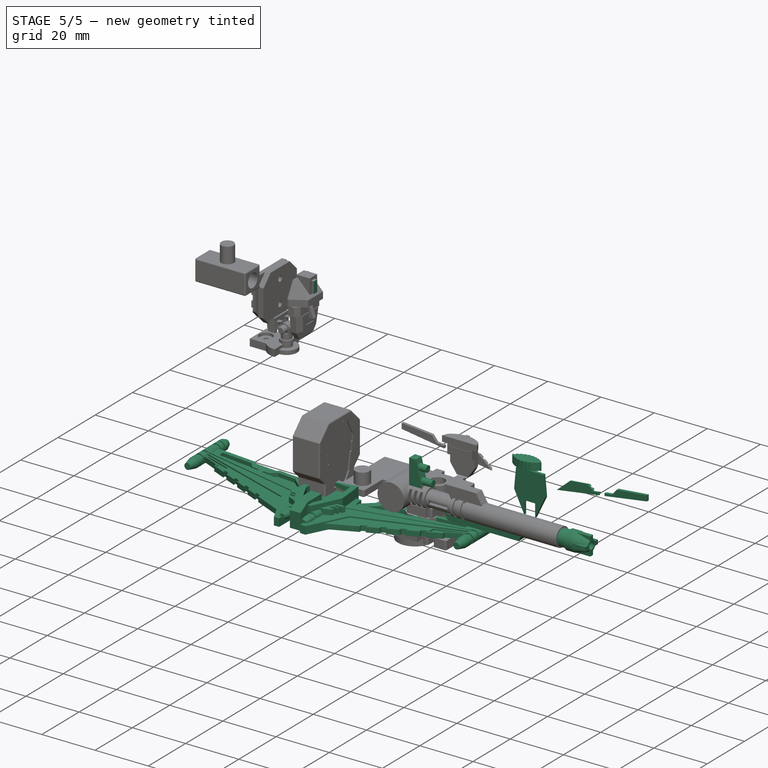
[diagram: stage 5 of 5 — iso view after this stage's code; geometry added in this stage tinted green]
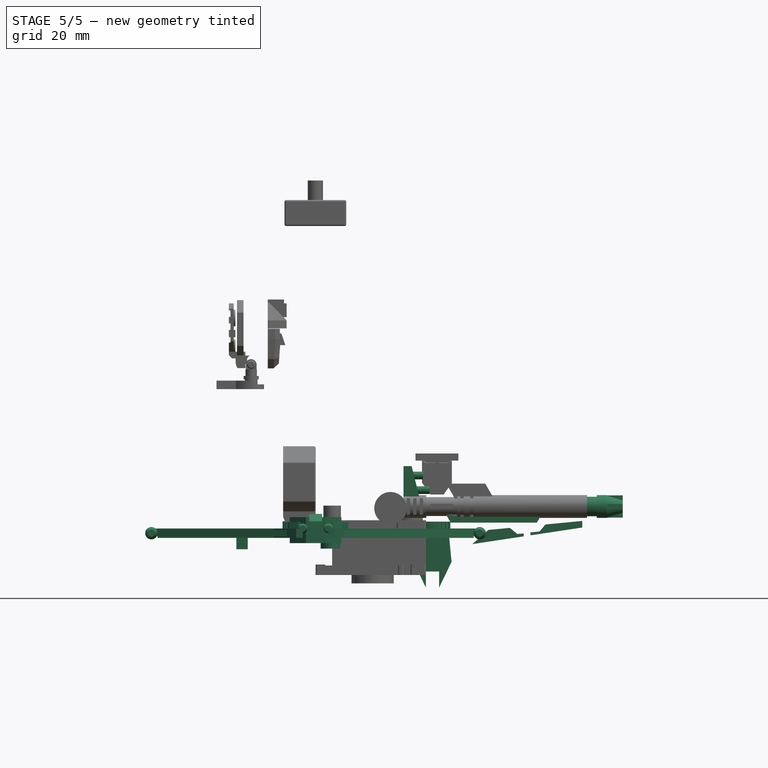
[diagram: stage 5 of 5 — front view after this stage's code; geometry added in this stage tinted green]
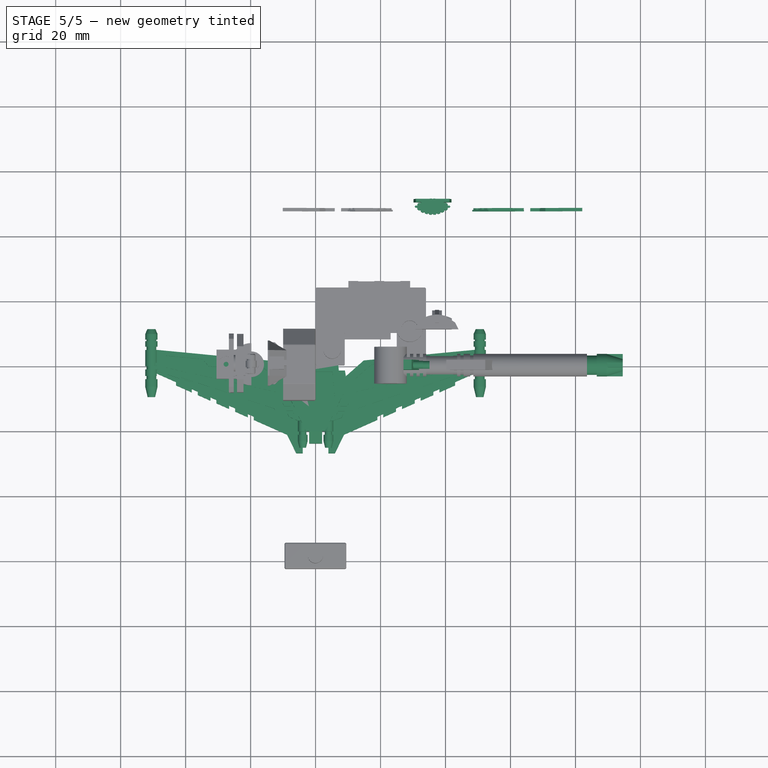
[diagram: stage 5 of 5 — top view after this stage's code; geometry added in this stage tinted green]
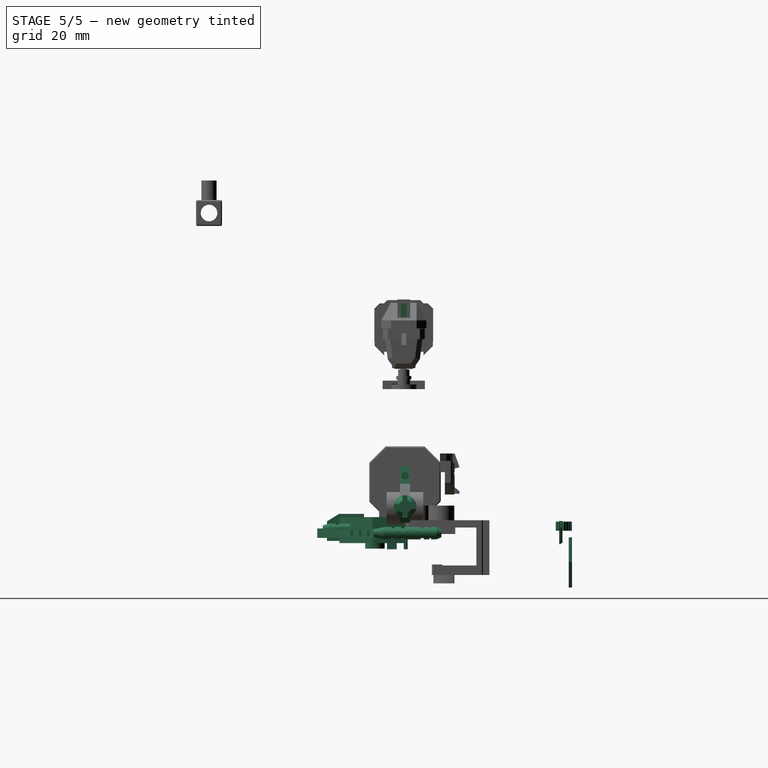
[diagram: stage 5 of 5 — right view after this stage's code; geometry added in this stage tinted green]
FEATURE [PartDesign::SubShapeBinder] Binder021
  BindCopyOnChange = 0
  BindMode = 2
  ClaimChildren = false
  Context = -> Part001 [Body038.Binder021.]
  Fuse = false
  MakeFace = true
  OffsetFill = false
  OffsetIntersection = false
  OffsetJoinType = 0
  OffsetOpenResult = false
  PartialLoad = false
  Refine = true
  Relative = true
  _Version = 2
FEATURE [Sketcher::SketchObject] Sketch598
  ArcFitTolerance = 1e-06
  AttachmentSupport = -> [Binder021]
  ExternalGeometry = -> [Binder021]
  FullyConstrained = true
  MakeInternals = false
  MapMode = 5
  Placement = pos=(-13.4,7.52e-14,5.2e-14) rot=(0.57735,0.57735,0.57735;2.0944rad)
  sketch-geometry (4):
    g0: LineSegment StartX=-1.27 StartY=69 StartZ=0 EndX=-1.27 EndY=64.7472 EndZ=0
    g1: LineSegment StartX=-1.27 StartY=64.7472 StartZ=0 EndX=0.53 EndY=64.7472 EndZ=0
    g2: LineSegment StartX=0.53 StartY=64.7472 StartZ=0 EndX=0.53 EndY=69 EndZ=0
    g3: LineSegment StartX=0.53 StartY=69 StartZ=0 EndX=-1.27 EndY=69 EndZ=0
  constraints (12):
    c: Coincident(g0,g1)
    c: Coincident(g1,g2)
    c: Coincident(g2,g3)
    c: Coincident(g3,g0)
    c: Vertical(g0)
    c: Vertical(g2)
    c: Horizontal(g1)
    c: Horizontal(g3)
    c: DistanceY(g0,g-5) = 0.05
    c: DistanceY(g-6,g0) = 0.05
    c: DistanceX(g-6,g0) = 0.05
    c: DistanceX(g1,g-6) = 0.05
FEATURE [PartDesign::Pad] Pad366
  Direction = (1,-5.7e-15,-3.9e-15)
  Length = 4.5
  Length2 = 10
  Profile = -> Sketch598
  ReferenceAxis = -> Sketch598 [N_Axis]
  Refine = true
  Suppressed = false
  Type = 0
FEATURE [Sketcher::SketchObject] Sketch614
  ArcFitTolerance = 1e-06
  AttachmentSupport = -> [XY_Plane044]
  FullyConstrained = true
  MakeInternals = false
  MapMode = 5
  sketch-geometry (7):
    g0: LineSegment StartX=0 StartY=0 StartZ=0 EndX=7 EndY=0 EndZ=0
    g1: LineSegment StartX=7 StartY=0 StartZ=0 EndX=7.95 EndY=-9.95477 EndZ=0
    g2: LineSegment StartX=7.95 StartY=-9.95477 StartZ=0 EndX=3 EndY=-20.2 EndZ=0
    g3: LineSegment StartX=3 StartY=-20.2 StartZ=0 EndX=-3 EndY=-20.2 EndZ=0
    g4: LineSegment StartX=-3 StartY=-20.2 StartZ=0 EndX=-7.95 EndY=-9.95477 EndZ=0
    g5: LineSegment StartX=-7.95 StartY=-9.95477 StartZ=0 EndX=-7 EndY=0 EndZ=0
    g6: LineSegment StartX=-7 StartY=0 StartZ=0 EndX=0 EndY=0 EndZ=0
  constraints (21):
    c: Coincident(g0,g-1)
    c: PointOnObject(g0,g-1)
    c: Coincident(g1,g0)
    c: Coincident(g2,g1)
    c: Coincident(g3,g2)
    c: Horizontal(g3)
    c: Coincident(g4,g3)
    c: Coincident(g5,g4)
    c: PointOnObject(g5,g-1)
    c: Coincident(g6,g5)
    c: Coincident(g6,g0)
    c: DistanceX(g6,g6) = 7
    c: DistanceX(g0,g0) = 7
    c: DistanceX(g4,g0) = 7.95
    c: DistanceX(g0,g1) = 7.95
    c: DistanceY(g2,g0) = 20.2
    c: DistanceX(g3,g3) = 6
    c: DistanceX(g3,g0) = 3
    c: Distance(g5) = 10
    c: Distance(g1) = 10
    c: Distance(g4) = 11.3784
FEATURE [PartDesign::Pad] Pad374
  Direction = (0,0,1)
  Length = 3.2
  Length2 = 10
  Profile = -> Sketch614
  ReferenceAxis = -> Sketch614 [N_Axis]
  Refine = true
  Suppressed = false
  Type = 0
FEATURE [Sketcher::SketchObject] Sketch615
  ArcFitTolerance = 1e-06
  AttachmentSupport = -> [Pad374]
  ExternalGeometry = -> [Pad374]
  FullyConstrained = true
  MakeInternals = false
  MapMode = 5
  Placement = pos=(0,0,3.2) rot=(0,0,1;0rad)
  sketch-geometry (10):
    g0: LineSegment StartX=-5.18178 StartY=-2 StartZ=0 EndX=5.18178 EndY=-2 EndZ=0
    g1: LineSegment StartX=5.18178 StartY=-2 StartZ=0 EndX=5.90593 EndY=-9.58816 EndZ=0
    g2: LineSegment StartX=5.90593 StartY=-9.58816 StartZ=0 EndX=1.7451 EndY=-18.2 EndZ=0
    g3: LineSegment StartX=1.7451 StartY=-18.2 StartZ=0 EndX=-1.7451 EndY=-18.2 EndZ=0
    g4: LineSegment StartX=-1.7451 StartY=-18.2 StartZ=0 EndX=-5.90593 EndY=-9.58816 EndZ=0
    g5: LineSegment StartX=-5.90593 StartY=-9.58816 StartZ=0 EndX=-5.18178 EndY=-2 EndZ=0
    g6: LineSegment [constr] StartX=-5.57905 StartY=-6.16286 StartZ=0 EndX=-7.57 EndY=-5.97286 EndZ=0
    g7: LineSegment [constr] StartX=5.67405 StartY=-7.15834 StartZ=0 EndX=7.665 EndY=-6.96834 EndZ=0
    g8: LineSegment [constr] StartX=-4.84407 StartY=-11.7859 StartZ=0 EndX=-6.64489 EndY=-12.656 EndZ=0
    g9: LineSegment [constr] StartX=4.84407 StartY=-11.7859 StartZ=0 EndX=6.64489 EndY=-12.656 EndZ=0
  constraints (34):
    c: Horizontal(g0)
    c: Coincident(g1,g0)
    c: Coincident(g2,g1)
    c: Coincident(g3,g2)
    c: Horizontal(g3)
    c: Coincident(g4,g3)
    c: Coincident(g5,g4)
    c: Coincident(g5,g0)
    c: DistanceY(g0,g-4) = 2
    c: PointOnObject(g6,g5)
    c: PointOnObject(g6,g-4)
    c: Angle(g5,g6) = 1.5708
    c: Distance(g6,g-8) = 4
    c: Distance(g6) = 2
    c: PointOnObject(g7,g1)
    c: PointOnObject(g7,g-5)
    c: Angle(g-5,g7) = 1.5708
    c: Distance(g7,g-6) = 3
    c: Distance(g7) = 2
    c: DistanceY(g-8,g3) = 2
    c: Parallel(g5,g-4)
    c: Parallel(g4,g-8)
    c: Parallel(g2,g-6)
    c: Parallel(g1,g-5)
    c: PointOnObject(g8,g4)
    c: PointOnObject(g8,g-8)
    c: Angle(g-8,g8) = 1.5708
    c: Distance(g-8,g8) = 3
    c: Distance(g8) = 2
    c: PointOnObject(g9,g2)
    c: PointOnObject(g9,g-6)
    c: Angle(g2,g9) = 1.5708
    c: Distance(g-6,g9) = 3
    c: Distance(g9) = 2
FEATURE [PartDesign::Pocket] Pocket355
  BaseFeature = -> Pad374
  Direction = (0,0,-1)
  Length = 1.5
  Length2 = 5
  Profile = -> Sketch615
  ReferenceAxis = -> Sketch615 [N_Axis]
  Refine = true
  Suppressed = false
  Type = 0
FEATURE [Sketcher::SketchObject] Sketch616
  ArcFitTolerance = 1e-06
  AttachmentSupport = -> [Pocket355]
  ExternalGeometry = -> [Pocket355]
  FullyConstrained = true
  MakeInternals = false
  MapMode = 5
  Placement = pos=(0,0,3.2) rot=(0,0,1;0rad)
  sketch-geometry (4):
    g0: LineSegment StartX=-2 StartY=-12.6 StartZ=0 EndX=-2 EndY=-24 EndZ=0
    g1: LineSegment StartX=-2 StartY=-24 StartZ=0 EndX=2 EndY=-24 EndZ=0
    g2: LineSegment StartX=2 StartY=-24 StartZ=0 EndX=2 EndY=-12.6 EndZ=0
    g3: LineSegment StartX=2 StartY=-12.6 StartZ=0 EndX=-2 EndY=-12.6 EndZ=0
  constraints (12):
    c: Coincident(g0,g1)
    c: Coincident(g1,g2)
    c: Coincident(g2,g3)
    c: Coincident(g3,g0)
    c: Vertical(g0)
    c: Vertical(g2)
    c: Horizontal(g1)
    c: Horizontal(g3)
    c: DistanceX(g3,g3) = 4
    c: DistanceX(g0,g-1) = 2
    c: DistanceY(g0,g0) = 11.4
    c: DistanceY(g0,g-5) = 3.8
FEATURE [PartDesign::Pad] Pad375
  BaseFeature = -> Pocket355
  Direction = (0,0,1)
  Length = 1
  Length2 = 10
  Profile = -> Sketch616
  ReferenceAxis = -> Sketch616 [N_Axis]
  Refine = true
  Suppressed = false
  Type = 0
FEATURE [PartDesign::Pad] Pad376
  BaseFeature = -> Pad375
  Direction = (0,0,1)
  Length = 7.3
  Length2 = 10
  Profile = -> Sketch616
  ReferenceAxis = -> Sketch616 [N_Axis]
  Refine = true
  Reversed = true
  Suppressed = false
  Type = 0
FEATURE [Sketcher::SketchObject] Sketch617
  ArcFitTolerance = 1e-06
  AttachmentSupport = -> [Pad376]
  ExternalGeometry = -> [Pad376]
  FullyConstrained = true
  MakeInternals = false
  MapMode = 5
  Placement = pos=(2,0,0) rot=(0.57735,0.57735,0.57735;2.0944rad)
  sketch-geometry (3):
    g0: LineSegment StartX=-24 StartY=4.2 StartZ=0 EndX=-20.3 EndY=4.2 EndZ=0
    g1: LineSegment StartX=-20.3 StartY=4.2 StartZ=0 EndX=-24 EndY=1.9 EndZ=0
    g2: LineSegment StartX=-24 StartY=1.9 StartZ=0 EndX=-24 EndY=4.2 EndZ=0
  constraints (8):
    c: Coincident(g0,g-4)
    c: PointOnObject(g0,g-3)
    c: Coincident(g1,g0)
    c: PointOnObject(g1,g-4)
    c: Coincident(g2,g1)
    c: Coincident(g2,g0)
    c: DistanceY(g-5,g1) = 6
    c: DistanceX(g0,g-3) = 7.7
FEATURE [PartDesign::Pocket] Pocket356
  BaseFeature = -> Pad376
  Direction = (-1,0,0)
  Length = 5
  Length2 = 5
  Profile = -> Sketch617
  ReferenceAxis = -> Sketch617 [N_Axis]
  Refine = true
  Suppressed = false
  Type = 0
FEATURE [PartDesign::Pad] Pad377
  BaseFeature = -> Pocket356
  Direction = (0,0,-1)
  Length = 4.8
  Length2 = 10
  Profile = -> Pocket356 [Face4]
  Refine = true
  Suppressed = false
  Type = 0
FEATURE [Sketcher::SketchObject] Sketch618
  ArcFitTolerance = 1e-06
  AttachmentOffset = pos=(0,0,-3.5) rot=(0,0,1;0rad)
  AttachmentSupport = -> [Pocket356]
  ExternalGeometry = -> [Pocket356]
  FullyConstrained = true
  MakeInternals = false
  MapMode = 5
  Placement = pos=(0,0,-0.3) rot=(0,0,1;0rad)
  sketch-geometry (20):
    g0: LineSegment StartX=7.14315 StartY=-1.5 StartZ=0 EndX=9.04315 EndY=-1.5 EndZ=0
    g1: LineSegment StartX=9.04315 StartY=-1.5 StartZ=0 EndX=9.57947 EndY=-5.05983 EndZ=0
    g2: LineSegment StartX=9.57947 StartY=-5.05983 StartZ=0 EndX=48.6387 EndY=0.824784 EndZ=0
    g3: LineSegment StartX=48.6387 StartY=0.824784 StartZ=0 EndX=48.6387 EndY=-1.17522 EndZ=0
    g4: LineSegment StartX=48.6387 StartY=-1.17522 StartZ=0 EndX=12.8057 EndY=-13.2102 EndZ=0
    g5: LineSegment StartX=12.8057 StartY=-13.2102 StartZ=0 EndX=5.95 EndY=-27 EndZ=0
    g6: LineSegment StartX=5.95 StartY=-27 StartZ=0 EndX=3.95 EndY=-27 EndZ=0
    g7: LineSegment StartX=3.95 StartY=-27 StartZ=0 EndX=3.95 EndY=-18.2337 EndZ=0
    g8: LineSegment StartX=-7.14315 StartY=-1.5 StartZ=0 EndX=-9.04315 EndY=-1.5 EndZ=0
    g9: LineSegment StartX=-9.04315 StartY=-1.5 StartZ=0 EndX=-9.57947 EndY=-5.05983 EndZ=0
    g10: LineSegment StartX=-9.57947 StartY=-5.05983 StartZ=0 EndX=-48.6387 EndY=0.824784 EndZ=0
    g11: LineSegment StartX=-48.6387 StartY=0.824784 StartZ=0 EndX=-48.6387 EndY=-1.17522 EndZ=0
    g12: LineSegment StartX=-48.6387 StartY=-1.17522 StartZ=0 EndX=-12.8057 EndY=-13.2102 EndZ=0
    g13: LineSegment StartX=-12.8057 StartY=-13.2102 StartZ=0 EndX=-5.95 EndY=-27 EndZ=0
    g14: LineSegment StartX=-5.95 StartY=-27 StartZ=0 EndX=-3.95 EndY=-27 EndZ=0
    g15: LineSegment StartX=-3.95 StartY=-27 StartZ=0 EndX=-3.95 EndY=-18.2337 EndZ=0
    g16: LineSegment StartX=7.14315 StartY=-1.5 StartZ=0 EndX=7.95 EndY=-9.95477 EndZ=0
    g17: LineSegment StartX=7.95 StartY=-9.95477 StartZ=0 EndX=3.95 EndY=-18.2337 EndZ=0
    g18: LineSegment StartX=-3.95 StartY=-18.2337 StartZ=0 EndX=-7.95 EndY=-9.95477 EndZ=0
    g19: LineSegment StartX=-7.95 StartY=-9.95477 StartZ=0 EndX=-7.14315 EndY=-1.5 EndZ=0
  constraints (58):
    c: PointOnObject(g0,g-3)
    c: Horizontal(g0)
    c: Coincident(g1,g0)
    c: Coincident(g2,g1)
    c: Coincident(g3,g2)
    c: Vertical(g3)
    c: Coincident(g4,g3)
    c: Coincident(g5,g4)
    c: Coincident(g6,g5)
    c: Horizontal(g6)
    c: Coincident(g7,g6)
    c: PointOnObject(g7,g-4)
    c: Vertical(g7)
    c: PointOnObject(g8,g-6)
    c: Horizontal(g8)
    c: Coincident(g9,g8)
    c: Coincident(g10,g9)
    c: Coincident(g11,g10)
    c: Vertical(g11)
    c: Coincident(g12,g11)
    c: Coincident(g13,g12)
    c: Coincident(g14,g13)
    c: Horizontal(g14)
    c: Coincident(g15,g14)
    c: PointOnObject(g15,g-5)
    c: Vertical(g15)
    c: Distance(g2) = 39.5
    c: Distance(g10) = 39.5
    c: DistanceY(g3,g3) = 2
    c: DistanceY(g11,g11) = 2
    c: DistanceY(g6,g0) = 25.5
    c: Coincident(g16,g0)
    c: Coincident(g16,g-4)
    c: Coincident(g17,g16)
    c: Coincident(g17,g7)
    c: Coincident(g18,g15)
    c: Coincident(g18,g-6)
    c: Coincident(g19,g18)
    c: Coincident(g19,g8)
    c: DistanceY(g14,g8) = 25.5
    c: Distance(g5) = 15.4
    c: Distance(g13) = 15.4
    c: DistanceY(g14,g6) = 0
    c: Distance(g1) = 3.6
    c: Distance(g9) = 3.6
    c: Distance(g12) = 37.8
    c: Distance(g4) = 37.8
    c: Angle(g9,g10) = 1.5708
    c: Angle(g2,g1) = 1.5708
    c: DistanceX(g0,g0) = 1.9
    c: DistanceX(g8,g8) = 1.9
    c: DistanceX(g14,g14) = 2
    c: DistanceX(g6,g6) = 2
    c: DistanceY(g8,g-6) = 1.5
    c: Angle(g5,g4) = 2.35619
    c: Angle(g12,g13) = 2.35619
    c: DistanceY(g2,g10) = 0
    c: DistanceX(g14,g6) = 7.9
FEATURE [Sketcher::SketchObject] Sketch619
  ArcFitTolerance = 1e-06
  AttachmentSupport = -> [Pad377]
  ExternalGeometry = -> [Pad377]
  FullyConstrained = true
  MakeInternals = false
  MapMode = 5
  Placement = pos=(0,0,-4.1) rot=(1,0,0;3.14159rad)
  sketch-geometry (4):
    g0: LineSegment StartX=-2 StartY=20.2 StartZ=0 EndX=-2 EndY=12.6 EndZ=0
    g1: LineSegment StartX=-2 StartY=12.6 StartZ=0 EndX=2 EndY=12.6 EndZ=0
    g2: LineSegment StartX=2 StartY=12.6 StartZ=0 EndX=2 EndY=20.2 EndZ=0
    g3: LineSegment StartX=2 StartY=20.2 StartZ=0 EndX=-2 EndY=20.2 EndZ=0
  constraints (10):
    c: Coincident(g0,g1)
    c: Coincident(g1,g2)
    c: Coincident(g2,g3)
    c: Coincident(g3,g0)
    c: Vertical(g0)
    c: Vertical(g2)
    c: Horizontal(g1)
    c: Horizontal(g3)
    c: Coincident(g0,g-5)
    c: Coincident(g1,g-4)
FEATURE [PartDesign::Pad] Pad378
  BaseFeature = -> Pad377
  Direction = (0,0,-1)
  Length = 0.7
  Length2 = 10
  Profile = -> Sketch619
  ReferenceAxis = -> Sketch619 [N_Axis]
  Refine = true
  Suppressed = false
  Type = 0
FEATURE [PartDesign::Pad] Pad379
  BaseFeature = -> Pad378
  Direction = (0,0,1)
  Length = 2.9
  Length2 = 10
  Profile = -> Sketch618
  ReferenceAxis = -> Sketch618 [N_Axis]
  Refine = true
  Reversed = true
  Suppressed = false
  Type = 0
FEATURE [Sketcher::SketchObject] Sketch620
  ArcFitTolerance = 1e-06
  AttachmentOffset = pos=(0,0,-0.5) rot=(0,0,1;0rad)
  AttachmentSupport = -> [Pad379]
  ExternalGeometry = -> [Pad379]
  FullyConstrained = true
  MakeInternals = false
  MapMode = 5
  Placement = pos=(0,0,-0.8) rot=(0,0,1;0rad)
  sketch-geometry (20):
    g0: LineSegment StartX=-9.31131 StartY=-3.27991 StartZ=0 EndX=-14.8431 EndY=1.59006 EndZ=0
    g1: LineSegment StartX=-14.8431 StartY=1.59006 StartZ=0 EndX=-48.6387 EndY=4.82478 EndZ=0
    g2: LineSegment StartX=-48.6387 StartY=4.82478 StartZ=0 EndX=-48.6387 EndY=0.824784 EndZ=0
    g3: LineSegment StartX=-8.79914 StartY=-21.2692 StartZ=0 EndX=-48.6387 EndY=-3.57522 EndZ=0
    g4: LineSegment StartX=-48.6387 StartY=-3.57522 StartZ=0 EndX=-48.6387 EndY=-1.17522 EndZ=0
    g5: LineSegment StartX=-48.6387 StartY=-1.17522 StartZ=0 EndX=-12.8057 EndY=-13.2102 EndZ=0
    g6: LineSegment StartX=-12.8057 StartY=-13.2102 StartZ=0 EndX=-8.79914 EndY=-21.2692 EndZ=0
    g7: LineSegment StartX=9.31131 StartY=-3.27991 StartZ=0 EndX=14.8431 EndY=1.59006 EndZ=0
    g8: LineSegment StartX=14.8431 StartY=1.59006 StartZ=0 EndX=48.6387 EndY=4.82478 EndZ=0
    g9: LineSegment StartX=48.6387 StartY=4.82478 StartZ=0 EndX=48.6387 EndY=0.824784 EndZ=0
    g10: LineSegment StartX=9.31131 StartY=-3.27991 StartZ=0 EndX=9.57947 EndY=-5.05983 EndZ=0
    g11: LineSegment StartX=9.57947 StartY=-5.05983 StartZ=0 EndX=48.6387 EndY=0.824784 EndZ=0
    g12: LineSegment StartX=48.6387 StartY=-1.17522 StartZ=0 EndX=48.6387 EndY=-3.57522 EndZ=0
    g13: LineSegment StartX=48.6387 StartY=-3.57522 StartZ=0 EndX=8.79914 EndY=-21.2692 EndZ=0
    g14: LineSegment StartX=8.79914 StartY=-21.2692 StartZ=0 EndX=12.8057 EndY=-13.2102 EndZ=0
    g15: LineSegment StartX=12.8057 StartY=-13.2102 StartZ=0 EndX=48.6387 EndY=-1.17522 EndZ=0
    g16: LineSegment StartX=-9.31131 StartY=-3.27991 StartZ=0 EndX=-9.57947 EndY=-5.05983 EndZ=0
    g17: LineSegment StartX=-9.57947 StartY=-5.05983 StartZ=0 EndX=-48.6387 EndY=0.824784 EndZ=0
    g18: LineSegment [constr] StartX=-14.8431 StartY=1.59006 StartZ=0 EndX=-15.3958 EndY=-4.18355 EndZ=0
    g19: LineSegment [constr] StartX=14.8431 StartY=1.59006 StartZ=0 EndX=15.3958 EndY=-4.18355 EndZ=0
  constraints (52):
    c: Coincident(g1,g0)
    c: Coincident(g2,g1)
    c: Coincident(g2,g-3)
    c: Vertical(g2)
    c: PointOnObject(g3,g-7)
    c: Coincident(g4,g3)
    c: Coincident(g4,g-8)
    c: Coincident(g5,g4)
    c: Coincident(g5,g-8)
    c: Coincident(g6,g5)
    c: Coincident(g6,g3)
    c: PointOnObject(g7,g-6)
    c: Coincident(g8,g7)
    c: Coincident(g9,g8)
    c: Coincident(g9,g-4)
    c: Vertical(g9)
    c: Coincident(g10,g7)
    c: Coincident(g10,g-6)
    c: Coincident(g11,g10)
    c: Coincident(g11,g9)
    c: Coincident(g12,g-10)
    c: Coincident(g13,g12)
    c: PointOnObject(g13,g-9)
    c: Coincident(g14,g13)
    c: Coincident(g14,g-10)
    c: Coincident(g15,g14)
    c: Coincident(g15,g12)
    c: Vertical(g4)
    c: Vertical(g12)
    c: Distance(g14,g13) = 9
    c: Distance(g3,g5) = 9
    c: DistanceY(g12,g12) = 2.4
    c: DistanceY(g4,g4) = 2.4
    c: DistanceY(g2,g2) = 4
    c: DistanceY(g9,g9) = 4
    c: Coincident(g16,g0)
    c: Coincident(g16,g-5)
    c: Coincident(g17,g16)
    c: Coincident(g17,g2)
    c: PointOnObject(g0,g-5)
    c: Distance(g-6,g7) = 1.8
    c: Distance(g-5,g0) = 1.8
    c: DistanceX(g0,g-5) = 5.8
    c: DistanceX(g-6,g7) = 5.8
    c: Coincident(g18,g0)
    c: PointOnObject(g18,g17)
    c: Angle(g1,g18) = 1.5708
    c: Distance(g18) = 5.8
    c: Coincident(g19,g7)
    c: PointOnObject(g19,g11)
    c: Angle(g19,g8) = 1.5708
    c: Distance(g19) = 5.8
FEATURE [PartDesign::Pad] Pad380
  BaseFeature = -> Pad379
  Direction = (0,0,1)
  Length = 1.9
  Length2 = 10
  Profile = -> Sketch620
  ReferenceAxis = -> Sketch620 [N_Axis]
  Refine = true
  Reversed = true
  Suppressed = false
  Type = 0
FEATURE [Sketcher::SketchObject] Sketch621
  ArcFitTolerance = 1e-06
  AttachmentSupport = -> [Pad380]
  ExternalGeometry = -> [Pad380]
  FullyConstrained = true
  MakeInternals = false
  MapMode = 5
  Placement = pos=(0,0,-0.8) rot=(0,0,1;0rad)
  sketch-geometry (8):
    g0: LineSegment StartX=-48.6387 StartY=4.82478 StartZ=0 EndX=-49.6387 EndY=4.82478 EndZ=0
    g1: LineSegment StartX=-49.6387 StartY=4.82478 StartZ=0 EndX=-49.6387 EndY=-3.57522 EndZ=0
    g2: LineSegment StartX=-49.6387 StartY=-3.57522 StartZ=0 EndX=-48.6387 EndY=-3.57522 EndZ=0
    g3: LineSegment StartX=-48.6387 StartY=-3.57522 StartZ=0 EndX=-48.6387 EndY=4.82478 EndZ=0
    g4: LineSegment StartX=48.6387 StartY=4.82478 StartZ=0 EndX=48.6387 EndY=-3.57522 EndZ=0
    g5: LineSegment StartX=48.6387 StartY=-3.57522 StartZ=0 EndX=49.6387 EndY=-3.57522 EndZ=0
    g6: LineSegment StartX=49.6387 StartY=-3.57522 StartZ=0 EndX=49.6387 EndY=4.82478 EndZ=0
    g7: LineSegment StartX=49.6387 StartY=4.82478 StartZ=0 EndX=48.6387 EndY=4.82478 EndZ=0
  constraints (20):
    c: Coincident(g0,g1)
    c: Coincident(g1,g2)
    c: Coincident(g2,g3)
    c: Coincident(g3,g0)
    c: Horizontal(g0)
    c: Horizontal(g2)
    c: Vertical(g1)
    c: Coincident(g0,g-3)
    c: Coincident(g2,g-5)
    c: DistanceX(g2,g2) = 1
    c: Coincident(g4,g5)
    c: Coincident(g5,g6)
    c: Coincident(g6,g7)
    c: Coincident(g7,g4)
    c: Vertical(g6)
    c: Horizontal(g5)
    c: Horizontal(g7)
    c: Coincident(g4,g-6)
    c: Coincident(g4,g-8)
    c: DistanceX(g5,g5) = 1
FEATURE [PartDesign::Pad] Pad381
  BaseFeature = -> Pad380
  Direction = (0,0,1)
  Length = 1.9
  Length2 = 10
  Profile = -> Sketch621
  ReferenceAxis = -> Sketch621 [N_Axis]
  Refine = true
  Reversed = true
  Suppressed = false
  Type = 0
FEATURE [Sketcher::SketchObject] Sketch622
  ArcFitTolerance = 1e-06
  AttachmentSupport = -> [Pad381]
  ExternalGeometry = -> [Pad381]
  FullyConstrained = true
  MakeInternals = false
  MapMode = 5
  Placement = pos=(0,0,-4.8) rot=(1,0,0;3.14159rad)
  sketch-geometry (1):
    g0: Circle CenterX=4.55 CenterY=9.20477 CenterZ=0 NormalX=0 NormalY=0 NormalZ=1 AngleXU=0 Radius=3
  constraints (3):
    c: Diameter(g0) = 6
    c: DistanceX(g0,g-3) = 3.4
    c: DistanceY(g0,g-3) = 0.75
FEATURE [PartDesign::Pad] Pad382
  BaseFeature = -> Pad381
  Direction = (0,0,-1)
  Length = 1.7
  Length2 = 10
  Profile = -> Sketch622
  ReferenceAxis = -> Sketch622 [N_Axis]
  Refine = true
  Suppressed = false
  Type = 0
FEATURE [Sketcher::SketchObject] Sketch623
  ArcFitTolerance = 1e-06
  AttachmentSupport = -> [Pad382]
  ExternalGeometry = -> [Pad382]
  FullyConstrained = true
  MakeInternals = false
  MapMode = 5
  Placement = pos=(0,0,-6.5) rot=(1,0,0;3.14159rad)
  sketch-geometry (1):
    g0: Circle CenterX=4.55 CenterY=9.20477 CenterZ=0 NormalX=0 NormalY=0 NormalZ=1 AngleXU=0 Radius=1.6
  constraints (2):
    c: Coincident(g0,g-3)
    c: Radius(g0) = 1.6
FEATURE [PartDesign::Pocket] Pocket357
  BaseFeature = -> Pad382
  Direction = (0,0,1)
  Length = 5
  Length2 = 5
  Profile = -> Sketch623
  ReferenceAxis = -> Sketch623 [N_Axis]
  Refine = true
  Suppressed = false
  Type = 0
FEATURE [Sketcher::SketchObject] Sketch624
  ArcFitTolerance = 1e-06
  AttachmentSupport = -> [Pocket357]
  ExternalGeometry = -> [Pocket357]
  FullyConstrained = true
  MakeInternals = false
  MapMode = 5
  Placement = pos=(0,0,-2.7) rot=(1,0,0;3.14159rad)
  sketch-geometry (8):
    g0: LineSegment StartX=-20.8887 StartY=2.52522 StartZ=0 EndX=-20.8887 EndY=5.52522 EndZ=0
    g1: LineSegment StartX=-20.8887 StartY=5.52522 StartZ=0 EndX=-24.3887 EndY=5.52522 EndZ=0
    g2: LineSegment StartX=-24.3887 StartY=5.52522 StartZ=0 EndX=-24.3887 EndY=2.52522 EndZ=0
    g3: LineSegment StartX=-24.3887 StartY=2.52522 StartZ=0 EndX=-20.8887 EndY=2.52522 EndZ=0
    g4: LineSegment StartX=-20.8887 StartY=0.375216 StartZ=0 EndX=-24.3887 EndY=0.375216 EndZ=0
    g5: LineSegment StartX=-24.3887 StartY=0.375216 StartZ=0 EndX=-24.3887 EndY=-0.824784 EndZ=0
    g6: LineSegment StartX=-24.3887 StartY=-0.824784 StartZ=0 EndX=-20.8887 EndY=-0.489784 EndZ=0
    g7: LineSegment StartX=-20.8887 StartY=-0.489784 StartZ=0 EndX=-20.8887 EndY=0.375216 EndZ=0
  constraints (24):
    c: Coincident(g0,g1)
    c: Coincident(g1,g2)
    c: Coincident(g2,g3)
    c: Coincident(g3,g0)
    c: Vertical(g0)
    c: Vertical(g2)
    c: Horizontal(g1)
    c: Horizontal(g3)
    c: Horizontal(g4)
    c: Coincident(g5,g4)
    c: Vertical(g5)
    c: Coincident(g6,g5)
    c: Coincident(g7,g6)
    c: Coincident(g7,g4)
    c: Vertical(g7)
    c: Parallel(g6,g-3)
    c: DistanceX(g4,g4) = 3.5
    c: DistanceX(g3,g3) = 3.5
    c: DistanceX(g2,g4) = 0
    c: DistanceX(g-3,g5) = 24.25
    c: DistanceY(g5,g5) = 1.2
    c: DistanceY(g-3,g5) = 4
    c: DistanceY(g4,g2) = 2.15
    c: DistanceY(g2,g2) = 3
FEATURE [PartDesign::Pad] Pad383
  BaseFeature = -> Pocket357
  Direction = (0,0,-1)
  Length = 4
  Length2 = 10
  Profile = -> Sketch624
  ReferenceAxis = -> Sketch624 [N_Axis]
  Refine = true
  Suppressed = false
  Type = 0
FEATURE [Sketcher::SketchObject] Sketch625
  ArcFitTolerance = 1e-06
  AttachmentSupport = -> [Pad383]
  ExternalGeometry = -> [Pad383]
  FullyConstrained = true
  MakeInternals = false
  MapMode = 5
  Placement = pos=(0,0,-2.7) rot=(1,0,0;3.14159rad)
  sketch-geometry (4):
    g0: LineSegment StartX=-24.3887 StartY=2.52522 StartZ=0 EndX=-24.3887 EndY=0.375216 EndZ=0
    g1: LineSegment StartX=-24.3887 StartY=0.375216 StartZ=0 EndX=-20.8887 EndY=0.375216 EndZ=0
    g2: LineSegment StartX=-20.8887 StartY=0.375216 StartZ=0 EndX=-20.8887 EndY=2.52522 EndZ=0
    g3: LineSegment StartX=-20.8887 StartY=2.52522 StartZ=0 EndX=-24.3887 EndY=2.52522 EndZ=0
  constraints (10):
    c: Coincident(g0,g1)
    c: Coincident(g1,g2)
    c: Coincident(g2,g3)
    c: Coincident(g3,g0)
    c: Vertical(g0)
    c: Vertical(g2)
    c: Horizontal(g1)
    c: Horizontal(g3)
    c: Coincident(g0,g-3)
    c: Coincident(g1,g-6)
FEATURE [PartDesign::Pad] Pad384
  BaseFeature = -> Pad383
  Direction = (0,0,-1)
  Length = 2.1
  Length2 = 10
  Profile = -> Sketch625
  ReferenceAxis = -> Sketch625 [N_Axis]
  Refine = true
  Suppressed = false
  Type = 0
FEATURE [Sketcher::SketchObject] Sketch626
  ArcFitTolerance = 1e-06
  AttachmentSupport = -> [Pad384]
  ExternalGeometry = -> [Pad384]
  FullyConstrained = true
  MakeInternals = false
  MapMode = 5
  Placement = pos=(0,4.82478,0) rot=(0,0.707107,0.707107;3.14159rad)
  sketch-geometry (1):
    g0: Circle CenterX=50.5387 CenterY=-1.75 CenterZ=0 NormalX=0 NormalY=0 NormalZ=1 AngleXU=0 Radius=1.9
  constraints (4):
    c: Tangent(g0,g-4)
    c: Diameter(g0) = 3.8
    c: DistanceY(g-3,g-3) = 1.9
    c: DistanceY(g0,g-3) = 0.95
FEATURE [PartDesign::Pad] Pad385
  BaseFeature = -> Pad384
  Direction = (0,1,-2e-16)
  Length = 5
  Length2 = 10
  Profile = -> Sketch626
  ReferenceAxis = -> Sketch626 [N_Axis]
  Refine = true
  Reversed = true
  Suppressed = false
  Type = 0
FEATURE [Sketcher::SketchObject] Sketch627
  ArcFitTolerance = 1e-06
  AttachmentSupport = -> [Pad385]
  ExternalGeometry = -> [Pad385]
  FullyConstrained = true
  MakeInternals = false
  MapMode = 5
  Placement = pos=(0,-0.175216,0) rot=(1,0,0;1.5708rad)
  sketch-geometry (1):
    g0: Circle CenterX=-50.5387 CenterY=-1.75 CenterZ=0 NormalX=0 NormalY=0 NormalZ=1 AngleXU=0 Radius=1.5
  constraints (2):
    c: Coincident(g0,g-3)
    c: Radius(g0) = 1.5
FEATURE [PartDesign::Pad] Pad386
  BaseFeature = -> Pad385
  Direction = (0,-1,2e-16)
  Length = 1
  Length2 = 10
  Profile = -> Sketch627
  ReferenceAxis = -> Sketch627 [N_Axis]
  Refine = true
  Suppressed = false
  Type = 0
FEATURE [Sketcher::SketchObject] Sketch628
  ArcFitTolerance = 1e-06
  AttachmentSupport = -> [Pad386]
  ExternalGeometry = -> [Pad386]
  FullyConstrained = true
  MakeInternals = false
  MapMode = 5
  Placement = pos=(0,-1.17522,0) rot=(1,0,0;1.5708rad)
  sketch-geometry (1):
    g0: Circle CenterX=-50.5387 CenterY=-1.75 CenterZ=0 NormalX=0 NormalY=0 NormalZ=1 AngleXU=0 Radius=1.9
  constraints (2):
    c: Coincident(g0,g-4)
    c: Equal(g0,g-4)
FEATURE [PartDesign::Pad] Pad387
  BaseFeature = -> Pad386
  Direction = (0,-1,2e-16)
  Length = 2
  Length2 = 10
  Profile = -> Sketch628
  ReferenceAxis = -> Sketch628 [N_Axis]
  Refine = true
  Suppressed = false
  Type = 0
FEATURE [Sketcher::SketchObject] Sketch629
  ArcFitTolerance = 1e-06
  AttachmentSupport = -> [Pad387]
  ExternalGeometry = -> [Pad387]
  FullyConstrained = true
  MakeInternals = false
  MapMode = 5
  Placement = pos=(0,-3.17522,0) rot=(1,0,0;1.5708rad)
  sketch-geometry (1):
    g0: Circle CenterX=-50.5387 CenterY=-1.75 CenterZ=0 NormalX=0 NormalY=0 NormalZ=1 AngleXU=0 Radius=1.5
  constraints (2):
    c: Coincident(g0,g-3)
    c: Radius(g0) = 1.5
FEATURE [PartDesign::Pad] Pad388
  BaseFeature = -> Pad387
  Direction = (0,-1,2e-16)
  Length = 1
  Length2 = 10
  Profile = -> Sketch629
  ReferenceAxis = -> Sketch629 [N_Axis]
  Refine = true
  Suppressed = false
  Type = 0
FEATURE [Sketcher::SketchObject] Sketch630
  ArcFitTolerance = 1e-06
  AttachmentSupport = -> [Pad388]
  ExternalGeometry = -> [Pad388]
  FullyConstrained = true
  MakeInternals = false
  MapMode = 5
  Placement = pos=(0,-4.17522,1.4e-15) rot=(1,0,0;1.5708rad)
  sketch-geometry (1):
    g0: Circle CenterX=-50.5387 CenterY=-1.75 CenterZ=0 NormalX=0 NormalY=0 NormalZ=1 AngleXU=0 Radius=1.9
  constraints (2):
    c: Coincident(g0,g-3)
    c: Equal(g0,g-3)
FEATURE [PartDesign::Pad] Pad389
  BaseFeature = -> Pad388
  Direction = (0,-1,2e-16)
  Length = 2.3
  Length2 = 10
  Profile = -> Sketch630
  ReferenceAxis = -> Sketch630 [N_Axis]
  Refine = true
  Suppressed = false
  Type = 0
FEATURE [Sketcher::SketchObject] Sketch631
  ArcFitTolerance = 1e-06
  AttachmentOffset = pos=(0,0,3.2) rot=(0,0,1;0rad)
  AttachmentSupport = -> [Pad389]
  ExternalGeometry = -> [Pad389]
  FullyConstrained = true
  MakeInternals = false
  MapMode = 5
  Placement = pos=(0,-9.67522,2.5e-15) rot=(1,0,0;1.5708rad)
  sketch-geometry (1):
    g0: Circle CenterX=-50.5387 CenterY=-1.75 CenterZ=0 NormalX=0 NormalY=0 NormalZ=1 AngleXU=0 Radius=1.15
  constraints (2):
    c: Coincident(g0,g-3)
    c: Diameter(g0) = 2.3
FEATURE [PartDesign::AdditiveLoft] AdditiveLoft
  BaseFeature = -> Pad389
  Closed = false
  Profile = -> Pad389 [Edge245]
  Refine = true
  Ruled = false
  Sections = -> [Sketch631]
  Suppressed = false
FEATURE [Sketcher::SketchObject] Sketch632
  ArcFitTolerance = 1e-06
  AttachmentSupport = -> [AdditiveLoft]
  ExternalGeometry = -> [AdditiveLoft]
  FullyConstrained = true
  MakeInternals = false
  MapMode = 5
  Placement = pos=(0,4.82478,-1.3e-15) rot=(0,0.707107,0.707107;3.14159rad)
  sketch-geometry (1):
    g0: Circle CenterX=50.5387 CenterY=-1.75 CenterZ=0 NormalX=0 NormalY=0 NormalZ=1 AngleXU=0 Radius=1.5
  constraints (2):
    c: Coincident(g0,g-3)
    c: Radius(g0) = 1.5
FEATURE [PartDesign::Pad] Pad390
  BaseFeature = -> AdditiveLoft
  Direction = (0,1,-2e-16)
  Length = 1
  Length2 = 10
  Profile = -> Sketch632
  ReferenceAxis = -> Sketch632 [N_Axis]
  Refine = true
  Suppressed = false
  Type = 0
FEATURE [Sketcher::SketchObject] Sketch633
  ArcFitTolerance = 1e-06
  AttachmentSupport = -> [Pad390]
  ExternalGeometry = -> [Pad390]
  FullyConstrained = true
  MakeInternals = false
  MapMode = 5
  Placement = pos=(0,5.82478,-2e-15) rot=(0,0.707107,0.707107;3.14159rad)
  sketch-geometry (1):
    g0: Circle CenterX=50.5387 CenterY=-1.75 CenterZ=0 NormalX=0 NormalY=0 NormalZ=1 AngleXU=0 Radius=1.9
  constraints (2):
    c: Coincident(g0,g-4)
    c: Equal(g0,g-4)
FEATURE [PartDesign::Pad] Pad391
  BaseFeature = -> Pad390
  Direction = (0,1,-2e-16)
  Length = 1.7
  Length2 = 10
  Profile = -> Sketch633
  ReferenceAxis = -> Sketch633 [N_Axis]
  Refine = true
  Suppressed = false
  Type = 0
FEATURE [Sketcher::SketchObject] Sketch634
  ArcFitTolerance = 1e-06
  AttachmentSupport = -> [Pad391]
  ExternalGeometry = -> [Pad391]
  FullyConstrained = true
  MakeInternals = false
  MapMode = 5
  Placement = pos=(0,7.52478,-2e-15) rot=(0,0.707107,0.707107;3.14159rad)
  sketch-geometry (1):
    g0: Circle CenterX=50.5387 CenterY=-1.75 CenterZ=0 NormalX=0 NormalY=0 NormalZ=1 AngleXU=0 Radius=1.5
  constraints (2):
    c: Coincident(g0,g-4)
    c: Radius(g0) = 1.5
FEATURE [PartDesign::Pad] Pad392
  BaseFeature = -> Pad391
  Direction = (0,1,-2e-16)
  Length = 0.5
  Length2 = 10
  Profile = -> Sketch634
  ReferenceAxis = -> Sketch634 [N_Axis]
  Refine = true
  Suppressed = false
  Type = 0
FEATURE [Sketcher::SketchObject] Sketch635
  ArcFitTolerance = 1e-06
  AttachmentSupport = -> [Pad392]
  ExternalGeometry = -> [Pad392]
  FullyConstrained = true
  MakeInternals = false
  MapMode = 5
  Placement = pos=(0,8.02478,-2.7e-15) rot=(0,0.707107,0.707107;3.14159rad)
  sketch-geometry (1):
    g0: Circle CenterX=50.5387 CenterY=-1.75 CenterZ=0 NormalX=0 NormalY=0 NormalZ=1 AngleXU=0 Radius=1.9
  constraints (2):
    c: Coincident(g0,g-4)
    c: Equal(g0,g-4)
FEATURE [PartDesign::Pad] Pad393
  BaseFeature = -> Pad392
  Direction = (0,1,-2e-16)
  Length = 1.7
  Length2 = 10
  Profile = -> Sketch635
  ReferenceAxis = -> Sketch635 [N_Axis]
  Refine = true
  Suppressed = false
  Type = 0
FEATURE [Sketcher::SketchObject] Sketch636
  ArcFitTolerance = 1e-06
  AttachmentOffset = pos=(0,0,1.5) rot=(0,0,1;0rad)
  AttachmentSupport = -> [Pad393]
  ExternalGeometry = -> [Pad393]
  FullyConstrained = true
  MakeInternals = false
  MapMode = 5
  Placement = pos=(0,11.2248,-3e-16) rot=(0,0.707107,0.707107;3.14159rad)
  sketch-geometry (1):
    g0: Circle CenterX=50.5387 CenterY=-1.75 CenterZ=0 NormalX=0 NormalY=0 NormalZ=1 AngleXU=0 Radius=1.25
  constraints (2):
    c: Coincident(g0,g-3)
    c: Diameter(g0) = 2.5
FEATURE [PartDesign::AdditiveLoft] AdditiveLoft001
  BaseFeature = -> Pad393
  Closed = false
  Profile = -> Pad393 [Edge259]
  Refine = true
  Ruled = false
  Sections = -> [Sketch636]
  Suppressed = false
FEATURE [Sketcher::SketchObject] Sketch637
  ArcFitTolerance = 1e-06
  AttachmentSupport = -> [AdditiveLoft001]
  ExternalGeometry = -> [AdditiveLoft001]
  FullyConstrained = true
  MakeInternals = false
  MapMode = 5
  Placement = pos=(0,0,-0.3) rot=(0,0,1;0rad)
  sketch-geometry (4):
    g0: LineSegment StartX=-48.6387 StartY=0.824784 StartZ=0 EndX=-50.6387 EndY=0.824784 EndZ=0
    g1: LineSegment StartX=-50.6387 StartY=0.824784 StartZ=0 EndX=-50.6387 EndY=-1.17522 EndZ=0
    g2: LineSegment StartX=-50.6387 StartY=-1.17522 StartZ=0 EndX=-48.6387 EndY=-1.17522 EndZ=0
    g3: LineSegment StartX=-48.6387 StartY=-1.17522 StartZ=0 EndX=-48.6387 EndY=0.824784 EndZ=0
  constraints (10):
    c: Coincident(g0,g1)
    c: Coincident(g1,g2)
    c: Coincident(g2,g3)
    c: Coincident(g3,g0)
    c: Horizontal(g0)
    c: Horizontal(g2)
    c: Vertical(g1)
    c: Coincident(g0,g-3)
    c: Coincident(g2,g-3)
    c: DistanceX(g0,g0) = 2
FEATURE [PartDesign::Pad] Pad394
  BaseFeature = -> AdditiveLoft001
  Direction = (0,0,1)
  Length = 0.5
  Length2 = 10
  Profile = -> Sketch637
  ReferenceAxis = -> Sketch637 [N_Axis]
  Refine = true
  Reversed = true
  Suppressed = false
  Type = 0
FEATURE [Sketcher::SketchObject] Sketch638
  ArcFitTolerance = 1e-06
  AttachmentSupport = -> [Pad394]
  ExternalGeometry = -> [Pad394]
  FullyConstrained = true
  MakeInternals = false
  MapMode = 5
  Placement = pos=(0,4.82478,0) rot=(0,0.707107,0.707107;3.14159rad)
  sketch-geometry (1):
    g0: Circle CenterX=-50.5387 CenterY=-1.75 CenterZ=0 NormalX=0 NormalY=0 NormalZ=1 AngleXU=0 Radius=1.9
  constraints (4):
    c: Tangent(g0,g-3)
    c: Radius(g0) = 1.9
    c: DistanceY(g-3,g-3) = 1.9
    c: DistanceY(g0,g-3) = 0.95
FEATURE [PartDesign::Pad] Pad395
  BaseFeature = -> Pad394
  Direction = (0,1,-2e-16)
  Length = 5
  Length2 = 10
  Profile = -> Sketch638
  ReferenceAxis = -> Sketch638 [N_Axis]
  Refine = true
  Reversed = true
  Suppressed = false
  Type = 0
FEATURE [Sketcher::SketchObject] Sketch639
  ArcFitTolerance = 1e-06
  AttachmentSupport = -> [Pad395]
  ExternalGeometry = -> [Pad395]
  FullyConstrained = true
  MakeInternals = false
  MapMode = 5
  Placement = pos=(0,-0.175216,0) rot=(1,0,0;1.5708rad)
  sketch-geometry (1):
    g0: Circle CenterX=50.5387 CenterY=-1.75 CenterZ=0 NormalX=0 NormalY=0 NormalZ=1 AngleXU=0 Radius=1.5
  constraints (2):
    c: Coincident(g0,g-3)
    c: Radius(g0) = 1.5
FEATURE [PartDesign::Pad] Pad396
  BaseFeature = -> Pad395
  Direction = (0,-1,2e-16)
  Length = 1
  Length2 = 10
  Profile = -> Sketch639
  ReferenceAxis = -> Sketch639 [N_Axis]
  Refine = true
  Suppressed = false
  Type = 0
FEATURE [Sketcher::SketchObject] Sketch640
  ArcFitTolerance = 1e-06
  AttachmentSupport = -> [Pad396]
  ExternalGeometry = -> [Pad396]
  FullyConstrained = true
  MakeInternals = false
  MapMode = 5
  Placement = pos=(0,-1.17522,0) rot=(1,0,0;1.5708rad)
  sketch-geometry (1):
    g0: Circle CenterX=50.5387 CenterY=-1.75 CenterZ=0 NormalX=0 NormalY=0 NormalZ=1 AngleXU=0 Radius=1.9
  constraints (2):
    c: Coincident(g0,g-3)
    c: Equal(g0,g-3)
FEATURE [PartDesign::Pad] Pad397
  BaseFeature = -> Pad396
  Direction = (0,-1,2e-16)
  Length = 2
  Length2 = 10
  Profile = -> Sketch640
  ReferenceAxis = -> Sketch640 [N_Axis]
  Refine = true
  Suppressed = false
  Type = 0
FEATURE [Sketcher::SketchObject] Sketch641
  ArcFitTolerance = 1e-06
  AttachmentSupport = -> [Pad397]
  ExternalGeometry = -> [Pad397]
  FullyConstrained = true
  MakeInternals = false
  MapMode = 5
  Placement = pos=(0,-3.17522,0) rot=(1,0,0;1.5708rad)
  sketch-geometry (1):
    g0: Circle CenterX=50.5387 CenterY=-1.75 CenterZ=0 NormalX=0 NormalY=0 NormalZ=1 AngleXU=0 Radius=1.5
  constraints (2):
    c: Coincident(g0,g-3)
    c: Radius(g0) = 1.5
FEATURE [PartDesign::Pad] Pad398
  BaseFeature = -> Pad397
  Direction = (0,-1,2e-16)
  Length = 1
  Length2 = 10
  Profile = -> Sketch641
  ReferenceAxis = -> Sketch641 [N_Axis]
  Refine = true
  Suppressed = false
  Type = 0
FEATURE [Sketcher::SketchObject] Sketch642
  ArcFitTolerance = 1e-06
  AttachmentSupport = -> [Pad398]
  ExternalGeometry = -> [Pad398]
  FullyConstrained = true
  MakeInternals = false
  MapMode = 5
  Placement = pos=(0,-4.17522,1.4e-15) rot=(1,0,0;1.5708rad)
  sketch-geometry (1):
    g0: Circle CenterX=50.5387 CenterY=-1.75 CenterZ=0 NormalX=0 NormalY=0 NormalZ=1 AngleXU=0 Radius=1.9
  constraints (2):
    c: Coincident(g0,g-4)
    c: Equal(g0,g-4)
FEATURE [PartDesign::Pad] Pad399
  BaseFeature = -> Pad398
  Direction = (0,-1,2e-16)
  Length = 2.3
  Length2 = 10
  Profile = -> Sketch642
  ReferenceAxis = -> Sketch642 [N_Axis]
  Refine = true
  Suppressed = false
  Type = 0
FEATURE [Sketcher::SketchObject] Sketch643
  ArcFitTolerance = 1e-06
  AttachmentOffset = pos=(0,0,3.2) rot=(0,0,1;0rad)
  AttachmentSupport = -> [Pad399]
  ExternalGeometry = -> [Pad399]
  FullyConstrained = true
  MakeInternals = false
  MapMode = 5
  Placement = pos=(0,-9.67522,2.5e-15) rot=(1,0,0;1.5708rad)
  sketch-geometry (1):
    g0: Circle CenterX=50.5387 CenterY=-1.75 CenterZ=0 NormalX=0 NormalY=0 NormalZ=1 AngleXU=0 Radius=1.15
  constraints (2):
    c: Coincident(g0,g-3)
    c: Radius(g0) = 1.15
FEATURE [PartDesign::AdditiveLoft] AdditiveLoft002
  BaseFeature = -> Pad399
  Closed = false
  Profile = -> Pad399 [Edge278]
  Refine = true
  Ruled = false
  Sections = -> [Sketch643]
  Suppressed = false
FEATURE [Sketcher::SketchObject] Sketch644
  ArcFitTolerance = 1e-06
  AttachmentSupport = -> [AdditiveLoft002]
  ExternalGeometry = -> [AdditiveLoft002]
  FullyConstrained = true
  MakeInternals = false
  MapMode = 5
  Placement = pos=(0,4.82478,-1.5e-15) rot=(0,0.707107,0.707107;3.14159rad)
  sketch-geometry (1):
    g0: Circle CenterX=-50.5387 CenterY=-1.75 CenterZ=0 NormalX=0 NormalY=0 NormalZ=1 AngleXU=0 Radius=1.5
  constraints (2):
    c: Coincident(g0,g-3)
    c: Radius(g0) = 1.5
FEATURE [PartDesign::Pad] Pad400
  BaseFeature = -> AdditiveLoft002
  Direction = (0,1,-2e-16)
  Length = 1
  Length2 = 10
  Profile = -> Sketch644
  ReferenceAxis = -> Sketch644 [N_Axis]
  Refine = true
  Suppressed = false
  Type = 0
FEATURE [Sketcher::SketchObject] Sketch645
  ArcFitTolerance = 1e-06
  AttachmentSupport = -> [Pad400]
  ExternalGeometry = -> [Pad400]
  FullyConstrained = true
  MakeInternals = false
  MapMode = 5
  Placement = pos=(0,5.82478,-2e-15) rot=(0,0.707107,0.707107;3.14159rad)
  sketch-geometry (1):
    g0: Circle CenterX=-50.5387 CenterY=-1.75 CenterZ=0 NormalX=0 NormalY=0 NormalZ=1 AngleXU=0 Radius=1.9
  constraints (2):
    c: Coincident(g0,g-4)
    c: Equal(g0,g-4)
FEATURE [PartDesign::Pad] Pad401
  BaseFeature = -> Pad400
  Direction = (0,1,-2e-16)
  Length = 1.7
  Length2 = 10
  Profile = -> Sketch645
  ReferenceAxis = -> Sketch645 [N_Axis]
  Refine = true
  Suppressed = false
  Type = 0
FEATURE [Sketcher::SketchObject] Sketch646
  ArcFitTolerance = 1e-06
  AttachmentSupport = -> [Pad401]
  ExternalGeometry = -> [Pad401]
  FullyConstrained = true
  MakeInternals = false
  MapMode = 5
  Placement = pos=(0,7.52478,-2e-15) rot=(0,0.707107,0.707107;3.14159rad)
  sketch-geometry (1):
    g0: Circle CenterX=-50.5387 CenterY=-1.75 CenterZ=0 NormalX=0 NormalY=0 NormalZ=1 AngleXU=0 Radius=1.5
  constraints (2):
    c: Coincident(g0,g-3)
    c: Radius(g0) = 1.5
FEATURE [PartDesign::Pad] Pad402
  BaseFeature = -> Pad401
  Direction = (0,1,-2e-16)
  Length = 0.5
  Length2 = 10
  Profile = -> Sketch646
  ReferenceAxis = -> Sketch646 [N_Axis]
  Refine = true
  Suppressed = false
  Type = 0
FEATURE [Sketcher::SketchObject] Sketch647
  ArcFitTolerance = 1e-06
  AttachmentSupport = -> [Pad402]
  ExternalGeometry = -> [Pad402]
  FullyConstrained = true
  MakeInternals = false
  MapMode = 5
  Placement = pos=(0,8.02478,-2.7e-15) rot=(0,0.707107,0.707107;3.14159rad)
  sketch-geometry (1):
    g0: Circle CenterX=-50.5387 CenterY=-1.75 CenterZ=0 NormalX=0 NormalY=0 NormalZ=1 AngleXU=0 Radius=1.9
  constraints (2):
    c: Coincident(g0,g-3)
    c: Equal(g0,g-3)
FEATURE [PartDesign::Pad] Pad403
  BaseFeature = -> Pad402
  Direction = (0,1,-2e-16)
  Length = 1.7
  Length2 = 10
  Profile = -> Sketch647
  ReferenceAxis = -> Sketch647 [N_Axis]
  Refine = true
  Suppressed = false
  Type = 0
FEATURE [Sketcher::SketchObject] Sketch648
  ArcFitTolerance = 1e-06
  AttachmentOffset = pos=(0,0,1.5) rot=(0,0,1;0rad)
  AttachmentSupport = -> [Pad403]
  ExternalGeometry = -> [Pad403]
  FullyConstrained = true
  MakeInternals = false
  MapMode = 5
  Placement = pos=(0,11.2248,-3e-16) rot=(0,0.707107,0.707107;3.14159rad)
  sketch-geometry (1):
    g0: Circle CenterX=-50.5387 CenterY=-1.75 CenterZ=0 NormalX=0 NormalY=0 NormalZ=1 AngleXU=0 Radius=1.25
  constraints (2):
    c: Coincident(g0,g-3)
    c: Radius(g0) = 1.25
FEATURE [PartDesign::AdditiveLoft] AdditiveLoft003
  BaseFeature = -> Pad403
  Closed = false
  Profile = -> Pad403 [Edge304]
  Refine = true
  Ruled = false
  Sections = -> [Sketch648]
  Suppressed = false
FEATURE [Sketcher::SketchObject] Sketch649
  ArcFitTolerance = 1e-06
  AttachmentSupport = -> [AdditiveLoft003]
  ExternalGeometry = -> [AdditiveLoft003]
  FullyConstrained = true
  MakeInternals = false
  MapMode = 5
  Placement = pos=(0,0,-0.3) rot=(0,0,1;0rad)
  sketch-geometry (4):
    g0: LineSegment StartX=48.6387 StartY=0.824784 StartZ=0 EndX=48.6387 EndY=-1.17522 EndZ=0
    g1: LineSegment StartX=48.6387 StartY=-1.17522 StartZ=0 EndX=50.6387 EndY=-1.17522 EndZ=0
    g2: LineSegment StartX=50.6387 StartY=-1.17522 StartZ=0 EndX=50.6387 EndY=0.824784 EndZ=0
    g3: LineSegment StartX=50.6387 StartY=0.824784 StartZ=0 EndX=48.6387 EndY=0.824784 EndZ=0
  constraints (10):
    c: Coincident(g0,g1)
    c: Coincident(g1,g2)
    c: Coincident(g2,g3)
    c: Coincident(g3,g0)
    c: Vertical(g2)
    c: Horizontal(g1)
    c: Horizontal(g3)
    c: Coincident(g0,g-3)
    c: Coincident(g0,g-3)
    c: DistanceX(g3,g3) = 2
FEATURE [PartDesign::Pad] Pad404
  BaseFeature = -> AdditiveLoft003
  Direction = (0,0,1)
  Length = 0.5
  Length2 = 10
  Profile = -> Sketch649
  ReferenceAxis = -> Sketch649 [N_Axis]
  Refine = true
  Reversed = true
  Suppressed = false
  Type = 0
FEATURE [Sketcher::SketchObject] Sketch650
  ArcFitTolerance = 1e-06
  AttachmentSupport = -> [Pad404]
  ExternalGeometry = -> [Pad404]
  FullyConstrained = true
  MakeInternals = false
  MapMode = 5
  Placement = pos=(0,0,-0.3) rot=(0,0,1;0rad)
  sketch-geometry (16):
    g0: LineSegment StartX=-7.86459 StartY=-9.05983 StartZ=0 EndX=-49.3109 EndY=0.0747843 EndZ=0
    g1: LineSegment StartX=-49.3109 StartY=0.0747843 StartZ=0 EndX=-49.3109 EndY=-0.433423 EndZ=0
    g2: LineSegment StartX=-49.3109 StartY=-0.433423 StartZ=0 EndX=-7.91209 EndY=-9.55756 EndZ=0
    g3: LineSegment StartX=-7.86459 StartY=-9.05983 StartZ=0 EndX=-7.91209 EndY=-9.55756 EndZ=0
    g4: LineSegment StartX=-49.3109 StartY=-0.433423 StartZ=0 EndX=-49.3109 EndY=-0.175216 EndZ=0
    g5: LineSegment StartX=-49.3109 StartY=-0.175216 StartZ=0 EndX=-50.1546 EndY=-0.175216 EndZ=0
    g6: LineSegment StartX=-50.1546 StartY=-0.175216 StartZ=0 EndX=-50.1546 EndY=-0.433423 EndZ=0
    g7: LineSegment StartX=-50.1546 StartY=-0.433423 StartZ=0 EndX=-49.3109 EndY=-0.433423 EndZ=0
    g8: LineSegment StartX=7.86459 StartY=-9.05983 StartZ=0 EndX=49.3109 EndY=0.0747843 EndZ=0
    g9: LineSegment StartX=49.3109 StartY=0.0747843 StartZ=0 EndX=49.3109 EndY=-0.433423 EndZ=0
    g10: LineSegment StartX=49.3109 StartY=-0.433423 StartZ=0 EndX=7.91209 EndY=-9.55756 EndZ=0
    g11: LineSegment StartX=7.86459 StartY=-9.05983 StartZ=0 EndX=7.91209 EndY=-9.55756 EndZ=0
    g12: LineSegment StartX=49.3109 StartY=-0.433423 StartZ=0 EndX=50.1546 EndY=-0.433423 EndZ=0
    g13: LineSegment StartX=50.1546 StartY=-0.433423 StartZ=0 EndX=50.1546 EndY=-0.175216 EndZ=0
    g14: LineSegment StartX=50.1546 StartY=-0.175216 StartZ=0 EndX=49.3109 EndY=-0.175216 EndZ=0
    g15: LineSegment StartX=49.3109 StartY=-0.175216 StartZ=0 EndX=49.3109 EndY=-0.433423 EndZ=0
  constraints (44):
    c: PointOnObject(g0,g-7)
    c: PointOnObject(g0,g-8)
    c: Coincident(g1,g0)
    c: Vertical(g1)
    c: Coincident(g2,g1)
    c: PointOnObject(g2,g-7)
    c: Coincident(g3,g0)
    c: Coincident(g3,g2)
    c: Distance(g3) = 0.5
    c: Parallel(g0,g2)
    c: DistanceY(g-8,g0) = 0.25
    c: DistanceY(g0,g-10) = 4
    c: Coincident(g4,g5)
    c: Coincident(g5,g6)
    c: Coincident(g6,g7)
    c: Coincident(g7,g4)
    c: Vertical(g4)
    c: Vertical(g6)
    c: Horizontal(g5)
    c: Horizontal(g7)
    c: Coincident(g4,g1)
    c: Coincident(g5,g-9)
    c: PointOnObject(g8,g-3)
    c: PointOnObject(g8,g-4)
    c: Coincident(g9,g8)
    c: Vertical(g9)
    c: Coincident(g10,g9)
    c: PointOnObject(g10,g-3)
    c: Coincident(g11,g8)
    c: Coincident(g11,g10)
    c: DistanceY(g8,g-11) = 4
    c: Parallel(g8,g10)
    c: Distance(g11) = 0.5
    c: DistanceY(g-4,g8) = 0.25
    c: Coincident(g12,g13)
    c: Coincident(g13,g14)
    c: Coincident(g14,g15)
    c: Coincident(g15,g12)
    c: Horizontal(g12)
    c: Horizontal(g14)
    c: Vertical(g13)
    c: Vertical(g15)
    c: Coincident(g12,g9)
    c: Coincident(g13,g-6)
FEATURE [PartDesign::Pocket] Pocket358
  BaseFeature = -> Pad404
  Direction = (0,0,-1)
  Length = 0.5
  Length2 = 5
  Profile = -> Sketch650
  ReferenceAxis = -> Sketch650 [N_Axis]
  Refine = true
  Suppressed = false
  Type = 0
FEATURE [Sketcher::SketchObject] Sketch651
  ArcFitTolerance = 1e-06
  AttachmentSupport = -> [Pocket358]
  ExternalGeometry = -> [Pocket358]
  FullyConstrained = true
  MakeInternals = false
  MapMode = 5
  Placement = pos=(0,0,-0.8) rot=(0,0,1;0rad)
  sketch-geometry (42):
    g0: LineSegment StartX=-19.0081 StartY=-16.7351 StartZ=0 EndX=-20.8359 EndY=-15.9233 EndZ=0
    g1: LineSegment StartX=-20.8359 StartY=-15.9233 StartZ=0 EndX=-20.8359 EndY=-14.9233 EndZ=0
    g2: LineSegment StartX=-20.8359 StartY=-14.9233 StartZ=0 EndX=-19.0081 EndY=-15.7351 EndZ=0
    g3: LineSegment StartX=-19.0081 StartY=-15.7351 StartZ=0 EndX=-19.0081 EndY=-16.7351 EndZ=0
    g4: LineSegment StartX=-24.7658 StartY=-14.1779 StartZ=0 EndX=-24.7658 EndY=-13.1779 EndZ=0
    g5: LineSegment StartX=-24.7658 StartY=-13.1779 StartZ=0 EndX=-26.5936 EndY=-12.3661 EndZ=0
    g6: LineSegment StartX=-26.5936 StartY=-12.3661 StartZ=0 EndX=-26.5936 EndY=-13.3661 EndZ=0
    g7: LineSegment StartX=-26.5936 StartY=-13.3661 StartZ=0 EndX=-24.7658 EndY=-14.1779 EndZ=0
    g8: LineSegment StartX=-30.5235 StartY=-11.6207 StartZ=0 EndX=-30.5235 EndY=-10.6207 EndZ=0
    g9: LineSegment StartX=-30.5235 StartY=-10.6207 StartZ=0 EndX=-32.3513 EndY=-9.80893 EndZ=0
    g10: LineSegment StartX=-32.3513 StartY=-9.80893 StartZ=0 EndX=-32.3513 EndY=-10.8089 EndZ=0
    g11: LineSegment StartX=-32.3513 StartY=-10.8089 StartZ=0 EndX=-30.5235 EndY=-11.6207 EndZ=0
    g12: LineSegment StartX=-36.2812 StartY=-9.06357 StartZ=0 EndX=-36.2812 EndY=-8.06357 EndZ=0
    g13: LineSegment StartX=-36.2812 StartY=-8.06357 StartZ=0 EndX=-38.109 EndY=-7.25177 EndZ=0
    g14: LineSegment StartX=-38.109 StartY=-7.25177 StartZ=0 EndX=-38.109 EndY=-8.25177 EndZ=0
    g15: LineSegment StartX=-38.109 StartY=-8.25177 StartZ=0 EndX=-36.2812 EndY=-9.06357 EndZ=0
    g16: LineSegment StartX=-42.9528 StartY=-6.1005 StartZ=0 EndX=-42.9528 EndY=-5.1005 EndZ=0
    g17: LineSegment StartX=-48.6387 StartY=-3.57522 StartZ=0 EndX=-42.9528 EndY=-6.1005 EndZ=0
    g18: LineSegment StartX=-48.8932 StartY=-3.57522 StartZ=0 EndX=-48.8932 EndY=-2.46216 EndZ=0
    g19: LineSegment StartX=-48.8932 StartY=-2.46216 StartZ=0 EndX=-42.9528 EndY=-5.1005 EndZ=0
    g20: LineSegment StartX=-48.6387 StartY=-3.57522 StartZ=0 EndX=-48.8932 EndY=-3.57522 EndZ=0
    g21: LineSegment StartX=19.0081 StartY=-16.7351 StartZ=0 EndX=19.0081 EndY=-15.7351 EndZ=0
    g22: LineSegment StartX=19.0081 StartY=-15.7351 StartZ=0 EndX=20.8359 EndY=-14.9233 EndZ=0
    g23: LineSegment StartX=20.8359 StartY=-14.9233 StartZ=0 EndX=20.8359 EndY=-15.9233 EndZ=0
    g24: LineSegment StartX=20.8359 StartY=-15.9233 StartZ=0 EndX=19.0081 EndY=-16.7351 EndZ=0
    g25: LineSegment StartX=24.7658 StartY=-14.1779 StartZ=0 EndX=24.7658 EndY=-13.1779 EndZ=0
    g26: LineSegment StartX=24.7658 StartY=-13.1779 StartZ=0 EndX=26.5936 EndY=-12.3661 EndZ=0
    g27: LineSegment StartX=26.5936 StartY=-12.3661 StartZ=0 EndX=26.5936 EndY=-13.3661 EndZ=0
    g28: LineSegment StartX=26.5936 StartY=-13.3661 StartZ=0 EndX=24.7658 EndY=-14.1779 EndZ=0
    g29: LineSegment StartX=30.5235 StartY=-11.6207 StartZ=0 EndX=30.5235 EndY=-10.6207 EndZ=0
    g30: LineSegment StartX=30.5235 StartY=-10.6207 StartZ=0 EndX=32.3513 EndY=-9.80893 EndZ=0
    g31: LineSegment StartX=32.3513 StartY=-9.80893 StartZ=0 EndX=32.3513 EndY=-10.8089 EndZ=0
    g32: LineSegment StartX=32.3513 StartY=-10.8089 StartZ=0 EndX=30.5235 EndY=-11.6207 EndZ=0
    g33: LineSegment StartX=36.2812 StartY=-9.06357 StartZ=0 EndX=36.2812 EndY=-8.06357 EndZ=0
    g34: LineSegment StartX=36.2812 StartY=-8.06357 StartZ=0 EndX=38.109 EndY=-7.25177 EndZ=0
    g35: LineSegment StartX=38.109 StartY=-7.25177 StartZ=0 EndX=38.109 EndY=-8.25177 EndZ=0
    g36: LineSegment StartX=38.109 StartY=-8.25177 StartZ=0 EndX=36.2812 EndY=-9.06357 EndZ=0
    g37: LineSegment StartX=42.9528 StartY=-6.1005 StartZ=0 EndX=42.9528 EndY=-5.1005 EndZ=0
    g38: LineSegment StartX=42.9528 StartY=-5.1005 StartZ=0 EndX=48.8932 EndY=-2.46216 EndZ=0
    g39: LineSegment StartX=48.8932 StartY=-2.46216 StartZ=0 EndX=48.8932 EndY=-3.57522 EndZ=0
    g40: LineSegment StartX=48.8932 StartY=-3.57522 StartZ=0 EndX=48.6387 EndY=-3.57522 EndZ=0
    g41: LineSegment StartX=48.6387 StartY=-3.57522 StartZ=0 EndX=42.9528 EndY=-6.1005 EndZ=0
  constraints (124):
    c: PointOnObject(g0,g-3)
    c: PointOnObject(g0,g-3)
    c: Coincident(g1,g0)
    c: Coincident(g2,g1)
    c: Coincident(g3,g2)
    c: Coincident(g3,g0)
    c: PointOnObject(g4,g-3)
    c: Coincident(g5,g4)
    c: Coincident(g6,g5)
    c: PointOnObject(g6,g-3)
    c: Coincident(g7,g6)
    c: Coincident(g7,g4)
    c: PointOnObject(g8,g-3)
    c: Coincident(g9,g8)
    c: Coincident(g10,g9)
    c: PointOnObject(g10,g-3)
    c: Coincident(g11,g10)
    c: Coincident(g11,g8)
    c: PointOnObject(g12,g-3)
    c: Coincident(g13,g12)
    c: Coincident(g14,g13)
    c: PointOnObject(g14,g-3)
    c: Coincident(g15,g14)
    c: Coincident(g15,g12)
    c: PointOnObject(g16,g-3)
    c: Coincident(g17,g16)
    c: PointOnObject(g18,g-5)
    c: Vertical(g18)
    c: Coincident(g19,g18)
    c: Coincident(g19,g16)
    c: Distance(g14) = 1
    c: Distance(g10) = 1
    c: Distance(g8) = 1
    c: Distance(g6) = 1
    c: Distance(g1) = 1
    c: Parallel(g0,g2)
    c: Parallel(g7,g5)
    c: Parallel(g11,g9)
    c: Parallel(g15,g13)
    c: Vertical(g14)
    c: Vertical(g12)
    c: Vertical(g10)
    c: Vertical(g6)
    c: Vertical(g4)
    c: Vertical(g1)
    c: Vertical(g3)
    c: Distance(g2) = 2
    c: Distance(g5) = 2
    c: Distance(g9) = 2
    c: Distance(g13) = 2
    c: Vertical(g16)
    c: DistanceY(g16,g16) = 1
    c: Parallel(g19,g17)
    c: PointOnObject(g20,g-8)
    c: Coincident(g20,g17)
    c: Distance(g19) = 6.5
    c: Coincident(g17,g-8)
    c: Distance(g16,g14) = 5.3
    c: Distance(g12,g10) = 4.3
    c: Distance(g8,g6) = 4.3
    c: Distance(g4,g0) = 4.3
    c: Coincident(g18,g20)
    c: PointOnObject(g21,g-4)
    c: Vertical(g21)
    c: Coincident(g22,g21)
    c: Coincident(g23,g22)
    c: PointOnObject(g23,g-4)
    c: Vertical(g23)
    c: Coincident(g24,g23)
    c: Coincident(g24,g21)
    c: PointOnObject(g25,g-4)
    c: Vertical(g25)
    c: Coincident(g26,g25)
    c: Coincident(g27,g26)
    c: PointOnObject(g27,g-4)
    c: Vertical(g27)
    c: Coincident(g28,g27)
    c: Coincident(g28,g25)
    c: PointOnObject(g29,g-4)
    c: Vertical(g29)
    c: Coincident(g30,g29)
    c: Coincident(g31,g30)
    c: PointOnObject(g31,g-4)
    c: Vertical(g31)
    c: Coincident(g32,g31)
    c: Coincident(g32,g29)
    c: PointOnObject(g33,g-4)
    c: Coincident(g34,g33)
    c: Coincident(g35,g34)
    c: PointOnObject(g35,g-4)
    c: Vertical(g35)
    c: Coincident(g36,g35)
    c: Coincident(g36,g33)
    c: Vertical(g33)
    c: PointOnObject(g37,g-4)
    c: Vertical(g37)
    c: Coincident(g38,g37)
    c: PointOnObject(g38,g-9)
    c: Coincident(g39,g38)
    c: PointOnObject(g39,g-10)
    c: Vertical(g39)
    c: Coincident(g40,g39)
    c: Coincident(g40,g-10)
    c: Coincident(g41,g40)
    c: Coincident(g41,g37)
    c: DistanceY(g37,g37) = 1
    c: DistanceY(g35,g35) = 1
    c: DistanceY(g31,g31) = 1
    c: DistanceY(g27,g27) = 1
    c: DistanceY(g23,g23) = 1
    c: Parallel(g-4,g22)
    c: Parallel(g28,g26)
    c: Parallel(g-4,g30)
    c: Parallel(g-4,g34)
    c: Parallel(g-4,g38)
    c: Distance(g38) = 6.5
    c: Distance(g22) = 2
    c: Distance(g26) = 2
    c: Distance(g30) = 2
    c: Distance(g34) = 2
    c: Distance(g37,g35) = 5.3
    c: Distance(g33,g31) = 4.3
    c: Distance(g29,g27) = 4.3
    c: Distance(g25,g23) = 4.3
FEATURE [PartDesign::Pocket] Pocket359
  BaseFeature = -> Pocket358
  Direction = (0,0,-1)
  Length = 5
  Length2 = 5
  Profile = -> Sketch651
  ReferenceAxis = -> Sketch651 [N_Axis]
  Refine = true
  Suppressed = false
  Type = 0
FEATURE [PartDesign::Pocket] Pocket360
  BaseFeature = -> Pocket359
  Direction = (0,1,0)
  Length = 0.4
  Length2 = 5
  Profile = -> Pocket359 [Face152]
  Refine = true
  Suppressed = false
  Type = 0
FEATURE [Sketcher::SketchObject] Sketch652
  ArcFitTolerance = 1e-06
  AttachmentSupport = -> [Pocket360]
  ExternalGeometry = -> [Pocket360]
  FullyConstrained = true
  MakeInternals = false
  MapMode = 5
  Placement = pos=(0,0,-0.8) rot=(0,0,1;0rad)
  sketch-geometry (18):
    g0: LineSegment StartX=-48.3932 StartY=-1.7851 StartZ=0 EndX=-48.3932 EndY=-2.13713 EndZ=0
    g1: LineSegment StartX=-48.3932 StartY=-2.13713 StartZ=0 EndX=-42.4528 EndY=-4.77547 EndZ=0
    g2: LineSegment StartX=-42.4528 StartY=-4.77547 StartZ=0 EndX=-42.4528 EndY=-5.77547 EndZ=0
    g3: LineSegment StartX=-42.4528 StartY=-5.77547 StartZ=0 EndX=-38.609 EndY=-7.48261 EndZ=0
    g4: LineSegment StartX=-38.609 StartY=-7.48261 StartZ=0 EndX=-38.609 EndY=-5.07127 EndZ=0
    g5: LineSegment StartX=-38.609 StartY=-5.07127 StartZ=0 EndX=-48.3932 EndY=-1.7851 EndZ=0
    g6: LineSegment [constr] StartX=-38.609 StartY=-7.48261 StartZ=0 EndX=-38.8119 EndY=-7.93957 EndZ=0
    g7: LineSegment [constr] StartX=-42.9528 StartY=-5.1005 StartZ=0 EndX=-42.7498 EndY=-4.64355 EndZ=0
    g8: LineSegment [constr] StartX=-38.609 StartY=-5.07127 StartZ=0 EndX=-38.4498 EndY=-4.59728 EndZ=0
    g9: LineSegment StartX=48.3932 StartY=-1.7851 StartZ=0 EndX=48.3932 EndY=-2.13713 EndZ=0
    g10: LineSegment StartX=48.3932 StartY=-2.13713 StartZ=0 EndX=42.4528 EndY=-4.77547 EndZ=0
    g11: LineSegment StartX=42.4528 StartY=-4.77547 StartZ=0 EndX=42.4528 EndY=-5.77547 EndZ=0
    g12: LineSegment StartX=42.4528 StartY=-5.77547 StartZ=0 EndX=38.609 EndY=-7.48261 EndZ=0
    g13: LineSegment StartX=38.609 StartY=-7.48261 StartZ=0 EndX=38.609 EndY=-5.07127 EndZ=0
    g14: LineSegment StartX=38.609 StartY=-5.07127 StartZ=0 EndX=48.3932 EndY=-1.7851 EndZ=0
    g15: LineSegment [constr] StartX=48.3932 StartY=-1.7851 StartZ=0 EndX=48.234 EndY=-1.31112 EndZ=0
    g16: LineSegment [constr] StartX=48.3932 StartY=-2.13713 StartZ=0 EndX=48.5962 EndY=-2.59409 EndZ=0
    g17: LineSegment [constr] StartX=38.609 StartY=-7.48261 StartZ=0 EndX=38.8119 EndY=-7.93957 EndZ=0
  constraints (54):
    c: Coincident(g1,g0)
    c: Coincident(g2,g1)
    c: Vertical(g2)
    c: Coincident(g3,g2)
    c: Coincident(g4,g3)
    c: Coincident(g5,g4)
    c: Coincident(g5,g0)
    c: Parallel(g1,g-3)
    c: Vertical(g0)
    c: Vertical(g4)
    c: Parallel(g5,g-4)
    c: DistanceX(g3,g-7) = 0.5
    c: DistanceX(g-6,g2) = 0.5
    c: Parallel(g3,g-5)
    c: Coincident(g6,g3)
    c: PointOnObject(g6,g-5)
    c: Perpendicular(g3,g6)
    c: Distance(g6) = 0.5
    c: Coincident(g7,g-6)
    c: PointOnObject(g7,g1)
    c: Perpendicular(g-3,g7)
    c: Distance(g7) = 0.5
    c: DistanceX(g-8,g0) = 0.5
    c: Coincident(g8,g4)
    c: PointOnObject(g8,g-4)
    c: Perpendicular(g5,g8)
    c: Distance(g8) = 0.5
    c: Coincident(g10,g9)
    c: Coincident(g11,g10)
    c: Coincident(g12,g11)
    c: Coincident(g13,g12)
    c: Coincident(g14,g13)
    c: Coincident(g14,g9)
    c: Vertical(g9)
    c: Vertical(g11)
    c: Vertical(g13)
    c: Parallel(g-13,g12)
    c: Parallel(g-11,g14)
    c: Parallel(g-10,g10)
    c: Coincident(g15,g9)
    c: PointOnObject(g15,g-11)
    c: Perpendicular(g14,g15)
    c: Distance(g15) = 0.5
    c: DistanceX(g9,g-9) = 0.5
    c: Coincident(g16,g9)
    c: PointOnObject(g16,g-10)
    c: Perpendicular(g10,g16)
    c: Distance(g16) = 0.5
    c: DistanceX(g-14,g12) = 0.5
    c: DistanceX(g11,g-12) = 0.5
    c: Coincident(g17,g12)
    c: PointOnObject(g17,g-13)
    c: Perpendicular(g17,g12)
    c: Distance(g17) = 0.5
FEATURE [PartDesign::Pocket] Pocket361
  BaseFeature = -> Pocket360
  Direction = (0,0,-1)
  Length = 0.5
  Length2 = 5
  Profile = -> Sketch652
  ReferenceAxis = -> Sketch652 [N_Axis]
  Refine = true
  Suppressed = false
  Type = 0
FEATURE [PartDesign::Pocket] Pocket362
  BaseFeature = -> Pocket361
  Direction = (0,1,0)
  Length = 0.4
  Length2 = 5
  Profile = -> Pocket361 [Face157]
  Refine = true
  Suppressed = false
  Type = 0
FEATURE [Sketcher::SketchObject] Sketch653
  ArcFitTolerance = 1e-06
  AttachmentSupport = -> [Pocket362]
  ExternalGeometry = -> [Pocket362]
  FullyConstrained = true
  MakeInternals = false
  MapMode = 5
  Placement = pos=(0,0,0) rot=(0,0.707107,0.707107;3.14159rad)
  sketch-geometry (6):
    g0: ArcOfCircle CenterX=-1.4e-14 CenterY=-5.6 CenterZ=0 NormalX=0 NormalY=0 NormalZ=1 AngleXU=0 Radius=7.3 StartAngle=0.717541 EndAngle=2.42405
    g1: ArcOfCircle CenterX=-3e-16 CenterY=4 CenterZ=0 NormalX=0 NormalY=0 NormalZ=1 AngleXU=0 Radius=7.3 StartAngle=3.85913 EndAngle=5.56564
    g2: LineSegment [constr] StartX=-5.5 StartY=-0.8 StartZ=0 EndX=-5.5 EndY=1.7 EndZ=0
    g3: LineSegment [constr] StartX=-5.5 StartY=1.7 StartZ=0 EndX=-1.33e-14 EndY=1.7 EndZ=0
    g4: LineSegment [constr] StartX=-5.5 StartY=-0.8 StartZ=0 EndX=-5.5 EndY=-3.3 EndZ=0
    g5: LineSegment [constr] StartX=-5.5 StartY=-3.3 StartZ=0 EndX=0 EndY=-3.3 EndZ=0
  constraints (20):
    c: Coincident(g1,g0)
    c: Coincident(g1,g0)
    c: DistanceY(g-6,g-6) = 8
    c: DistanceY(g0,g-6) = 4
    c: DistanceY(g0,g-4) = 4
    c: DistanceX(g-3,g-3) = 14
    c: DistanceX(g-6,g1) = 7
    c: DistanceX(g0,g0) = 11
    c: Coincident(g2,g0)
    c: Vertical(g2)
    c: Coincident(g3,g2)
    c: Tangent(g3,g0) = 1.5708
    c: Horizontal(g3)
    c: Coincident(g4,g0)
    c: Vertical(g4)
    c: Coincident(g5,g4)
    c: Tangent(g5,g1) = -1.5708
    c: DistanceY(g4,g2) = 5
    c: Horizontal(g5)
    c: DistanceY(g0,g3) = 2.5
FEATURE [PartDesign::SubShapeBinder] Binder023
  BindCopyOnChange = 0
  BindMode = 2
  ClaimChildren = false
  Context = -> Part002 [Body041.Binder023.]
  Fuse = false
  MakeFace = true
  OffsetFill = false
  OffsetIntersection = false
  OffsetJoinType = 0
  OffsetOpenResult = false
  PartialLoad = false
  Refine = true
  Relative = true
  _Version = 2
FEATURE [PartDesign::Pad] Pad405
  Direction = (0,-4e-16,1)
  Length = 2.8
  Length2 = 10
  Profile = -> Binder023
  Refine = true
  Suppressed = false
  Type = 0
FEATURE [Sketcher::SketchObject] Sketch654
  ArcFitTolerance = 1e-06
  AttachmentSupport = -> [Pad405]
  ExternalGeometry = -> [Pad405]
  FullyConstrained = true
  MakeInternals = false
  MapMode = 5
  Placement = pos=(0,-8e-16,1.8) rot=(0,0,1;0rad)
  sketch-geometry (90):
    g0: LineSegment StartX=40.9036 StartY=49.8406 StartZ=0 EndX=41.2728 EndY=49.5035 EndZ=0
    g1: LineSegment StartX=41.2728 StartY=49.5035 StartZ=0 EndX=40.9357 EndY=49.1343 EndZ=0
    g2: LineSegment StartX=40.9357 StartY=49.1343 StartZ=0 EndX=40.5665 EndY=49.4714 EndZ=0
    g3: LineSegment StartX=40.5665 StartY=49.4714 StartZ=0 EndX=40.9036 EndY=49.8406 EndZ=0
    g4: LineSegment [constr] StartX=40.735 StartY=49.656 StartZ=0 EndX=41.1043 EndY=49.3189 EndZ=0
    g5: LineSegment StartX=39.7639 StartY=50.6447 StartZ=0 EndX=40.1888 EndY=50.3812 EndZ=0
    g6: LineSegment StartX=40.1888 StartY=50.3812 StartZ=0 EndX=39.9254 EndY=49.9563 EndZ=0
    g7: LineSegment StartX=39.9254 StartY=49.9563 StartZ=0 EndX=39.5004 EndY=50.2198 EndZ=0
    g8: LineSegment StartX=39.5004 StartY=50.2198 StartZ=0 EndX=39.7639 EndY=50.6447 EndZ=0
    g9: LineSegment [constr] StartX=39.6322 StartY=50.4323 StartZ=0 EndX=40.0571 EndY=50.1688 EndZ=0
    g10: LineSegment StartX=38.4957 StartY=51.2254 StartZ=0 EndX=38.9619 EndY=51.0446 EndZ=0
    g11: LineSegment StartX=38.9619 StartY=51.0446 StartZ=0 EndX=38.7811 EndY=50.5785 EndZ=0
    g12: LineSegment StartX=38.7811 StartY=50.5785 StartZ=0 EndX=38.3149 EndY=50.7593 EndZ=0
    g13: LineSegment StartX=38.3149 StartY=50.7593 StartZ=0 EndX=38.4957 EndY=51.2254 EndZ=0
    g14: LineSegment [constr] StartX=38.4053 StartY=50.9923 StartZ=0 EndX=38.8715 EndY=50.8115 EndZ=0
    g15: LineSegment StartX=40.5665 StartY=48.3286 StartZ=0 EndX=40.9357 EndY=48.6657 EndZ=0
    g16: LineSegment StartX=40.9357 StartY=48.6657 StartZ=0 EndX=41.2728 EndY=48.2965 EndZ=0
    g17: LineSegment StartX=41.2728 StartY=48.2965 StartZ=0 EndX=40.9036 EndY=47.9594 EndZ=0
    g18: LineSegment StartX=40.9036 StartY=47.9594 StartZ=0 EndX=40.5665 EndY=48.3286 EndZ=0
    g19: LineSegment [constr] StartX=40.735 StartY=48.144 StartZ=0 EndX=41.1043 EndY=48.4811 EndZ=0
    g20: LineSegment StartX=37.1424 StartY=51.5629 StartZ=0 EndX=37.6338 EndY=51.471 EndZ=0
    g21: LineSegment StartX=37.6338 StartY=51.471 StartZ=0 EndX=37.5418 EndY=50.9795 EndZ=0
    g22: LineSegment StartX=37.5418 StartY=50.9795 StartZ=0 EndX=37.0504 EndY=51.0715 EndZ=0
    g23: LineSegment StartX=37.0504 StartY=51.0715 StartZ=0 EndX=37.1424 EndY=51.5629 EndZ=0
    g24: LineSegment [constr] StartX=37.0964 StartY=51.3172 StartZ=0 EndX=37.5878 EndY=51.2252 EndZ=0
    g25: LineSegment StartX=35.75 StartY=51.6457 StartZ=0 EndX=36.25 EndY=51.6457 EndZ=0
    g26: LineSegment StartX=36.25 StartY=51.6457 StartZ=0 EndX=36.25 EndY=51.1457 EndZ=0
    g27: LineSegment StartX=36.25 StartY=51.1457 StartZ=0 EndX=35.75 EndY=51.1457 EndZ=0
    g28: LineSegment StartX=35.75 StartY=51.1457 StartZ=0 EndX=35.75 EndY=51.6457 EndZ=0
    g29: LineSegment [constr] StartX=35.75 StartY=51.3957 StartZ=0 EndX=36.25 EndY=51.3957 EndZ=0
    g30: LineSegment StartX=34.3662 StartY=51.471 StartZ=0 EndX=34.8576 EndY=51.5629 EndZ=0
    g31: LineSegment StartX=34.8576 StartY=51.5629 StartZ=0 EndX=34.9496 EndY=51.0715 EndZ=0
    g32: LineSegment StartX=34.9496 StartY=51.0715 StartZ=0 EndX=34.4582 EndY=50.9795 EndZ=0
    g33: LineSegment StartX=34.4582 StartY=50.9795 StartZ=0 EndX=34.3662 EndY=51.471 EndZ=0
    g34: LineSegment [constr] StartX=34.4122 StartY=51.2252 StartZ=0 EndX=34.9036 EndY=51.3172 EndZ=0
    g35: LineSegment StartX=33.0381 StartY=51.0446 StartZ=0 EndX=33.5043 EndY=51.2254 EndZ=0
    g36: LineSegment StartX=33.5043 StartY=51.2254 StartZ=0 EndX=33.6851 EndY=50.7593 EndZ=0
    g37: LineSegment StartX=33.6851 StartY=50.7593 StartZ=0 EndX=33.2189 EndY=50.5785 EndZ=0
    g38: LineSegment StartX=33.2189 StartY=50.5785 StartZ=0 EndX=33.0381 EndY=51.0446 EndZ=0
    g39: LineSegment [constr] StartX=33.1285 StartY=50.8115 StartZ=0 EndX=33.5947 EndY=50.9923 EndZ=0
    g40: LineSegment StartX=30.7272 StartY=49.5035 StartZ=0 EndX=31.0964 EndY=49.8406 EndZ=0
    g41: LineSegment StartX=31.0964 StartY=49.8406 StartZ=0 EndX=31.4335 EndY=49.4714 EndZ=0
    g42: LineSegment StartX=31.4335 StartY=49.4714 StartZ=0 EndX=31.0643 EndY=49.1343 EndZ=0
    g43: LineSegment StartX=31.0643 StartY=49.1343 StartZ=0 EndX=30.7272 EndY=49.5035 EndZ=0
    g44: LineSegment [constr] StartX=30.8957 StartY=49.3189 StartZ=0 EndX=31.265 EndY=49.656 EndZ=0
    g45: LineSegment StartX=32.0746 StartY=47.8437 StartZ=0 EndX=32.4996 EndY=47.5802 EndZ=0
    g46: LineSegment StartX=32.4996 StartY=47.5802 StartZ=0 EndX=32.2361 EndY=47.1553 EndZ=0
    g47: LineSegment StartX=32.2361 StartY=47.1553 StartZ=0 EndX=31.8112 EndY=47.4188 EndZ=0
    g48: LineSegment StartX=31.8112 StartY=47.4188 StartZ=0 EndX=32.0746 EndY=47.8437 EndZ=0
    g49: LineSegment [constr] StartX=31.9429 StartY=47.6312 StartZ=0 EndX=32.3678 EndY=47.3677 EndZ=0
    g50: LineSegment StartX=31.8112 StartY=50.3812 StartZ=0 EndX=32.2361 EndY=50.6447 EndZ=0
    g51: LineSegment StartX=32.2361 StartY=50.6447 StartZ=0 EndX=32.4996 EndY=50.2198 EndZ=0
    g52: LineSegment StartX=32.4996 StartY=50.2198 StartZ=0 EndX=32.0746 EndY=49.9563 EndZ=0
    g53: LineSegment StartX=32.0746 StartY=49.9563 StartZ=0 EndX=31.8112 EndY=50.3812 EndZ=0
    g54: LineSegment [constr] StartX=31.9429 StartY=50.1688 StartZ=0 EndX=32.3678 EndY=50.4323 EndZ=0
    g55: LineSegment StartX=31.0643 StartY=48.6657 StartZ=0 EndX=31.4335 EndY=48.3286 EndZ=0
    g56: LineSegment StartX=31.4335 StartY=48.3286 StartZ=0 EndX=31.0964 EndY=47.9594 EndZ=0
    g57: LineSegment StartX=31.0964 StartY=47.9594 StartZ=0 EndX=30.7272 EndY=48.2965 EndZ=0
    g58: LineSegment StartX=30.7272 StartY=48.2965 StartZ=0 EndX=31.0643 EndY=48.6657 EndZ=0
    g59: LineSegment [constr] StartX=30.8957 StartY=48.4811 StartZ=0 EndX=31.265 EndY=48.144 EndZ=0
    g60: LineSegment StartX=33.2189 StartY=47.2215 StartZ=0 EndX=33.6851 EndY=47.0407 EndZ=0
    g61: LineSegment StartX=33.6851 StartY=47.0407 StartZ=0 EndX=33.5043 EndY=46.5746 EndZ=0
    g62: LineSegment StartX=33.5043 StartY=46.5746 StartZ=0 EndX=33.0381 EndY=46.7554 EndZ=0
    g63: LineSegment StartX=33.0381 StartY=46.7554 StartZ=0 EndX=33.2189 EndY=47.2215 EndZ=0
    g64: LineSegment [constr] StartX=33.1285 StartY=46.9885 StartZ=0 EndX=33.5947 EndY=46.8077 EndZ=0
    g65: LineSegment StartX=34.4582 StartY=46.8205 StartZ=0 EndX=34.9496 EndY=46.7285 EndZ=0
    g66: LineSegment StartX=34.9496 StartY=46.7285 StartZ=0 EndX=34.8576 EndY=46.2371 EndZ=0
    g67: LineSegment StartX=34.8576 StartY=46.2371 StartZ=0 EndX=34.3662 EndY=46.329 EndZ=0
    g68: LineSegment StartX=34.3662 StartY=46.329 StartZ=0 EndX=34.4582 EndY=46.8205 EndZ=0
    g69: LineSegment [constr] StartX=34.4122 StartY=46.5748 StartZ=0 EndX=34.9036 EndY=46.4828 EndZ=0
    g70: LineSegment StartX=35.75 StartY=46.6543 StartZ=0 EndX=36.25 EndY=46.6543 EndZ=0
    g71: LineSegment StartX=36.25 StartY=46.6543 StartZ=0 EndX=36.25 EndY=46.1543 EndZ=0
    g72: LineSegment StartX=36.25 StartY=46.1543 StartZ=0 EndX=35.75 EndY=46.1543 EndZ=0
    g73: LineSegment StartX=35.75 StartY=46.1543 StartZ=0 EndX=35.75 EndY=46.6543 EndZ=0
    g74: LineSegment [constr] StartX=35.75 StartY=46.4043 StartZ=0 EndX=36.25 EndY=46.4043 EndZ=0
    g75: LineSegment StartX=37.0504 StartY=46.7285 StartZ=0 EndX=37.5418 EndY=46.8205 EndZ=0
    g76: LineSegment StartX=37.5418 StartY=46.8205 StartZ=0 EndX=37.6338 EndY=46.329 EndZ=0
    g77: LineSegment StartX=37.6338 StartY=46.329 StartZ=0 EndX=37.1424 EndY=46.2371 EndZ=0
    g78: LineSegment StartX=37.1424 StartY=46.2371 StartZ=0 EndX=37.0504 EndY=46.7285 EndZ=0
    g79: LineSegment [constr] StartX=37.0964 StartY=46.4828 StartZ=0 EndX=37.5878 EndY=46.5748 EndZ=0
    g80: LineSegment StartX=39.5004 StartY=47.5802 StartZ=0 EndX=39.9254 EndY=47.8437 EndZ=0
    g81: LineSegment StartX=39.9254 StartY=47.8437 StartZ=0 EndX=40.1888 EndY=47.4188 EndZ=0
    g82: LineSegment StartX=40.1888 StartY=47.4188 StartZ=0 EndX=39.7639 EndY=47.1553 EndZ=0
    g83: LineSegment StartX=39.7639 StartY=47.1553 StartZ=0 EndX=39.5004 EndY=47.5802 EndZ=0
    g84: LineSegment [constr] StartX=39.6322 StartY=47.3677 StartZ=0 EndX=40.0571 EndY=47.6312 EndZ=0
    g85: LineSegment StartX=38.3149 StartY=47.0407 StartZ=0 EndX=38.7811 EndY=47.2215 EndZ=0
    g86: LineSegment StartX=38.7811 StartY=47.2215 StartZ=0 EndX=38.9619 EndY=46.7554 EndZ=0
    g87: LineSegment StartX=38.9619 StartY=46.7554 StartZ=0 EndX=38.4957 EndY=46.5746 EndZ=0
    g88: LineSegment StartX=38.4957 StartY=46.5746 StartZ=0 EndX=38.3149 EndY=47.0407 EndZ=0
    g89: LineSegment [constr] StartX=38.4053 StartY=46.8077 StartZ=0 EndX=38.8715 EndY=46.9885 EndZ=0
  constraints (252):
    c: Coincident(g1,g0)
    c: Coincident(g2,g1)
    c: Coincident(g3,g2)
    c: Coincident(g3,g0)
    c: Distance(g0) = 0.5
    c: Distance(g2) = 0.5
    c: Distance(g3) = 0.5
    c: Distance(g1) = 0.5
    c: Symmetric(g3,g3,g4)
    c: Symmetric(g1,g1,g4)
    c: PointOnObject(g4,g-3)
    c: PointOnObject(g4,g-3)
    c: Perpendicular(g3,g4)
    c: Coincident(g6,g5)
    c: Coincident(g7,g6)
    c: Coincident(g8,g7)
    c: Coincident(g8,g5)
    c: Distance(g5) = 0.5
    c: Distance(g7) = 0.5
    c: Distance(g8) = 0.5
    c: Distance(g6) = 0.5
    c: Symmetric(g8,g8,g9)
    c: Symmetric(g6,g6,g9)
    c: Perpendicular(g8,g9)
    c: PointOnObject(g9,g-3)
    c: PointOnObject(g9,g-3)
    c: Coincident(g11,g10)
    c: Coincident(g12,g11)
    c: Coincident(g13,g12)
    c: Coincident(g13,g10)
    c: Distance(g10) = 0.5
    c: Distance(g12) = 0.5
    c: Distance(g13) = 0.5
    c: Distance(g11) = 0.5
    c: Symmetric(g13,g13,g14)
    c: Symmetric(g11,g11,g14)
    c: Perpendicular(g13,g14)
    c: PointOnObject(g14,g-3)
    c: PointOnObject(g14,g-3)
    c: Coincident(g16,g15)
    c: Coincident(g17,g16)
    c: Coincident(g18,g17)
    c: Coincident(g18,g15)
    c: Distance(g15) = 0.5
    c: Distance(g17) = 0.5
    c: Distance(g18) = 0.5
    c: Distance(g16) = 0.5
    c: Symmetric(g18,g18,g19)
    c: Symmetric(g16,g16,g19)
    c: Perpendicular(g18,g19)
    c: PointOnObject(g19,g-4)
    c: PointOnObject(g19,g-4)
    c: Coincident(g21,g20)
    c: Coincident(g22,g21)
    c: Coincident(g23,g22)
    c: Coincident(g23,g20)
    c: Distance(g20) = 0.5
    c: Distance(g22) = 0.5
    c: Distance(g23) = 0.5
    c: Distance(g21) = 0.5
    c: Symmetric(g23,g23,g24)
    c: Symmetric(g21,g21,g24)
    c: Perpendicular(g23,g24)
    c: PointOnObject(g24,g-3)
    c: PointOnObject(g24,g-3)
    c: Coincident(g26,g25)
    c: Coincident(g27,g26)
    c: Coincident(g28,g27)
    c: Coincident(g28,g25)
    c: Distance(g25) = 0.5
    c: Distance(g27) = 0.5
    c: Distance(g28) = 0.5
    c: Distance(g26) = 0.5
    c: Symmetric(g28,g28,g29)
    c: Symmetric(g26,g26,g29)
    c: Perpendicular(g28,g29)
    c: PointOnObject(g29,g-3)
    c: PointOnObject(g29,g-3)
    c: Coincident(g31,g30)
    c: Coincident(g32,g31)
    c: Coincident(g33,g32)
    c: Coincident(g33,g30)
    c: Distance(g30) = 0.5
    c: Distance(g32) = 0.5
    c: Distance(g33) = 0.5
    c: Distance(g31) = 0.5
    c: Symmetric(g33,g33,g34)
    c: Symmetric(g31,g31,g34)
    c: Perpendicular(g33,g34)
    c: PointOnObject(g34,g-3)
    c: PointOnObject(g34,g-3)
    c: Coincident(g36,g35)
    c: Coincident(g37,g36)
    c: Coincident(g38,g37)
    c: Coincident(g38,g35)
    c: Distance(g35) = 0.5
    c: Distance(g37) = 0.5
    c: Distance(g38) = 0.5
    c: Distance(g36) = 0.5
    c: Symmetric(g38,g38,g39)
    c: Symmetric(g36,g36,g39)
    c: Perpendicular(g38,g39)
    c: PointOnObject(g39,g-3)
    c: PointOnObject(g39,g-3)
    c: Coincident(g41,g40)
    c: Coincident(g42,g41)
    c: Coincident(g43,g42)
    c: Coincident(g43,g40)
    c: Distance(g40) = 0.5
    c: Distance(g42) = 0.5
    c: Distance(g43) = 0.5
    c: Distance(g41) = 0.5
    c: Symmetric(g43,g43,g44)
    c: Symmetric(g41,g41,g44)
    c: Perpendicular(g43,g44)
    c: PointOnObject(g44,g-3)
    c: PointOnObject(g44,g-3)
    c: Coincident(g46,g45)
    c: Coincident(g47,g46)
    c: Coincident(g48,g47)
    c: Coincident(g48,g45)
    c: Distance(g45) = 0.5
    c: Distance(g47) = 0.5
    c: Distance(g48) = 0.5
    c: Distance(g46) = 0.5
    c: Symmetric(g48,g48,g49)
    c: Symmetric(g46,g46,g49)
    c: Perpendicular(g48,g49)
    c: PointOnObject(g49,g-4)
    c: PointOnObject(g49,g-4)
    c: Coincident(g51,g50)
    c: Coincident(g52,g51)
    c: Coincident(g53,g52)
    c: Coincident(g53,g50)
    c: Distance(g50) = 0.5
    c: Distance(g52) = 0.5
    c: Distance(g53) = 0.5
    c: Distance(g51) = 0.5
    c: Symmetric(g53,g53,g54)
    c: Symmetric(g51,g51,g54)
    c: Perpendicular(g53,g54)
    c: PointOnObject(g54,g-3)
    c: PointOnObject(g54,g-3)
    c: DistanceX(g-4,g25) = 0.25
    c: Distance(g29,g24) = 0.85
    c: Distance(g24,g14) = 0.85
    c: Distance(g14,g9) = 0.85
    c: Distance(g9,g4) = 0.85
    c: Distance(g29,g34) = 0.85
    c: Distance(g34,g39) = 0.85
    c: Distance(g39,g54) = 0.85
    c: Distance(g54,g44) = 0.85
    c: Coincident(g56,g55)
    c: Coincident(g57,g56)
    c: Coincident(g58,g57)
    c: Coincident(g58,g55)
    c: Distance(g55) = 0.5
    c: Distance(g57) = 0.5
    c: Distance(g58) = 0.5
    c: Distance(g56) = 0.5
    c: Symmetric(g58,g58,g59)
    c: Symmetric(g56,g56,g59)
    c: Perpendicular(g58,g59)
    c: PointOnObject(g59,g-4)
    c: PointOnObject(g59,g-4)
    c: Coincident(g61,g60)
    c: Coincident(g62,g61)
    c: Coincident(g63,g62)
    c: Coincident(g63,g60)
    c: Distance(g60) = 0.5
    c: Distance(g62) = 0.5
    c: Distance(g63) = 0.5
    c: Distance(g61) = 0.5
    c: Symmetric(g63,g63,g64)
    c: Symmetric(g61,g61,g64)
    c: Perpendicular(g63,g64)
    c: PointOnObject(g64,g-4)
    c: PointOnObject(g64,g-4)
    c: Coincident(g66,g65)
    c: Coincident(g67,g66)
    c: Coincident(g68,g67)
    c: Coincident(g68,g65)
    c: Distance(g65) = 0.5
    c: Distance(g67) = 0.5
    c: Distance(g68) = 0.5
    c: Distance(g66) = 0.5
    c: Symmetric(g68,g68,g69)
    c: Symmetric(g66,g66,g69)
    c: Perpendicular(g68,g69)
    c: PointOnObject(g69,g-4)
    c: PointOnObject(g69,g-4)
    c: Coincident(g71,g70)
    c: Coincident(g72,g71)
    c: Coincident(g73,g72)
    c: Coincident(g73,g70)
    c: Distance(g70) = 0.5
    c: Distance(g72) = 0.5
    c: Distance(g73) = 0.5
    c: Distance(g71) = 0.5
    c: Symmetric(g73,g73,g74)
    c: Symmetric(g71,g71,g74)
    c: Perpendicular(g73,g74)
    c: PointOnObject(g74,g-4)
    c: PointOnObject(g74,g-4)
    c: Coincident(g76,g75)
    c: Coincident(g77,g76)
    c: Coincident(g78,g77)
    c: Coincident(g78,g75)
    c: Distance(g75) = 0.5
    c: Distance(g77) = 0.5
    c: Distance(g78) = 0.5
    c: Distance(g76) = 0.5
    c: Symmetric(g78,g78,g79)
    c: Symmetric(g76,g76,g79)
    c: Perpendicular(g78,g79)
    c: PointOnObject(g79,g-4)
    c: PointOnObject(g79,g-4)
    c: Coincident(g81,g80)
    c: Coincident(g82,g81)
    c: Coincident(g83,g82)
    c: Coincident(g83,g80)
    c: Distance(g80) = 0.5
    c: Distance(g82) = 0.5
    c: Distance(g83) = 0.5
    c: Distance(g81) = 0.5
    c: Symmetric(g83,g83,g84)
    c: Symmetric(g81,g81,g84)
    c: Perpendicular(g83,g84)
    c: PointOnObject(g84,g-4)
    c: PointOnObject(g84,g-4)
    c: Coincident(g86,g85)
    c: Coincident(g87,g86)
    c: Coincident(g88,g87)
    c: Coincident(g88,g85)
    c: Distance(g85) = 0.5
    c: Distance(g87) = 0.5
    c: Distance(g88) = 0.5
    c: Distance(g86) = 0.5
    c: Symmetric(g88,g88,g89)
    c: Symmetric(g86,g86,g89)
    c: Perpendicular(g88,g89)
    c: PointOnObject(g89,g-4)
    c: PointOnObject(g89,g-4)
    c: DistanceX(g72,g-3) = 0.25
    c: Distance(g74,g69) = 0.85
    c: Distance(g69,g64) = 0.85
    c: Distance(g64,g49) = 0.85
    c: Distance(g49,g59) = 0.85
    c: Distance(g74,g79) = 0.85
    c: Distance(g79,g89) = 0.85
    c: Distance(g89,g84) = 0.85
    c: Distance(g84,g19) = 0.85
FEATURE [PartDesign::Pocket] Pocket363
  BaseFeature = -> Pad405
  Direction = (0,0,-1)
  Length = 2.8
  Length2 = 5
  Profile = -> Sketch654
  ReferenceAxis = -> Sketch654 [N_Axis]
  Refine = true
  Suppressed = false
  Type = 0
FEATURE [Sketcher::SketchObject] Sketch655
  ArcFitTolerance = 1e-06
  AttachmentSupport = -> [Pocket362]
  ExternalGeometry = -> [Pocket362]
  FullyConstrained = true
  MakeInternals = false
  MapMode = 5
  Placement = pos=(0,0,0) rot=(0,0.707107,0.707107;3.14159rad)
  sketch-geometry (4):
    g0: LineSegment StartX=-2 StartY=0.2 StartZ=0 EndX=-2 EndY=-1.8 EndZ=0
    g1: LineSegment StartX=-2 StartY=-1.8 StartZ=0 EndX=2 EndY=-1.8 EndZ=0
    g2: LineSegment StartX=2 StartY=-1.8 StartZ=0 EndX=2 EndY=0.2 EndZ=0
    g3: LineSegment StartX=2 StartY=0.2 StartZ=0 EndX=-2 EndY=0.2 EndZ=0
  constraints (14):
    c: Coincident(g0,g1)
    c: Coincident(g1,g2)
    c: Coincident(g2,g3)
    c: Coincident(g3,g0)
    c: Vertical(g0)
    c: Vertical(g2)
    c: Horizontal(g1)
    c: Horizontal(g3)
    c: DistanceY(g2,g2) = 2
    c: DistanceX(g3,g3) = 4
    c: DistanceX(g-5,g-5) = 14
    c: DistanceY(g-4,g-4) = 8
    c: DistanceY(g0,g-5) = 3
    c: DistanceX(g-5,g0) = 5
FEATURE [PartDesign::Pad] Pad406
  BaseFeature = -> Pocket362
  Direction = (0,1,-2e-16)
  Length = 1
  Length2 = 10
  Profile = -> Sketch655
  ReferenceAxis = -> Sketch655 [N_Axis]
  Refine = true
  Suppressed = false
  Type = 0
FEATURE [Sketcher::SketchObject] Sketch656
  ArcFitTolerance = 1e-06
  AttachmentSupport = -> [Pocket363]
  ExternalGeometry = -> [Pocket363]
  FullyConstrained = true
  MakeInternals = false
  MapMode = 5
  Placement = pos=(0,4e-16,-1) rot=(1,0,0;3.14159rad)
  sketch-geometry (4):
    g0: LineSegment StartX=33.95 StartY=-47.85 StartZ=0 EndX=33.95 EndY=-49.95 EndZ=0
    g1: LineSegment StartX=33.95 StartY=-49.95 StartZ=0 EndX=38.05 EndY=-49.95 EndZ=0
    g2: LineSegment StartX=38.05 StartY=-49.95 StartZ=0 EndX=38.05 EndY=-47.85 EndZ=0
    g3: LineSegment StartX=38.05 StartY=-47.85 StartZ=0 EndX=33.95 EndY=-47.85 EndZ=0
  constraints (13):
    c: Coincident(g0,g1)
    c: Coincident(g1,g2)
    c: Coincident(g2,g3)
    c: Coincident(g3,g0)
    c: Vertical(g0)
    c: Vertical(g2)
    c: Horizontal(g1)
    c: Horizontal(g3)
    c: DistanceY(g0,g0) = 2.1
    c: DistanceX(g3,g3) = 4.1
    c: DistanceX(g-3,g-4) = 11
    c: DistanceX(g-3,g0) = 3.45
    c: DistanceY(g0,g-3) = 1.05
FEATURE [PartDesign::Pocket] Pocket364
  BaseFeature = -> Pocket363
  Direction = (0,0,1)
  Length = 2
  Length2 = 5
  Profile = -> Sketch656
  ReferenceAxis = -> Sketch656 [N_Axis]
  Refine = true
  Suppressed = false
  Type = 0
FEATURE [PartDesign::Body] Body041  label="Top"
  AllowCompound = false
  Group = -> [Binder023,Pad405,Sketch654,Pocket363,Sketch656,Pocket364]
  Origin = -> Origin046
  Tip = -> Pocket364
FEATURE [Sketcher::SketchObject] Sketch657
  ArcFitTolerance = 1e-06
  AttachmentOffset = pos=(0,0,-10) rot=(0,0,1;0rad)
  AttachmentSupport = -> [Pad406]
  ExternalGeometry = -> [Pad406]
  FullyConstrained = false
  MakeInternals = false
  MapMode = 5
  Placement = pos=(0,-17,-2.2e-15) rot=(1,0,0;1.5708rad)
  sketch-geometry (2):
    g0: Circle CenterX=3.95 CenterY=-0.3 CenterZ=0 NormalX=0 NormalY=0 NormalZ=1 AngleXU=0 Radius=1.5
    g1: Circle CenterX=-3.95 CenterY=-0.3 CenterZ=0 NormalX=0 NormalY=0 NormalZ=1 AngleXU=0 Radius=1.5
  constraints (3):
    c: Diameter(g0) = 3
    c: Diameter(g1) = 3
    c: Coincident(g1,g-4)
FEATURE [PartDesign::Pad] Pad407
  BaseFeature = -> Pad406
  Direction = (0,-1,2e-16)
  Length = 3.3
  Length2 = 10
  Profile = -> Sketch657
  ReferenceAxis = -> Sketch657 [N_Axis]
  Refine = true
  Suppressed = false
  Type = 0
FEATURE [Sketcher::SketchObject] Sketch658
  ArcFitTolerance = 1e-06
  AttachmentSupport = -> [Pad407]
  ExternalGeometry = -> [Pad407]
  FullyConstrained = true
  MakeInternals = false
  MapMode = 5
  Placement = pos=(0,-20.3,0) rot=(1,0,0;1.5708rad)
  sketch-geometry (2):
    g0: Circle CenterX=-3.95 CenterY=-0.3 CenterZ=0 NormalX=0 NormalY=0 NormalZ=1 AngleXU=0 Radius=1.125
    g1: Circle CenterX=3.95 CenterY=-0.3 CenterZ=0 NormalX=0 NormalY=0 NormalZ=1 AngleXU=0 Radius=1.125
  constraints (4):
    c: Coincident(g0,g-4)
    c: Coincident(g1,g-3)
    c: Diameter(g0) = 2.25
    c: Diameter(g1) = 2.25
FEATURE [PartDesign::Pad] Pad408
  BaseFeature = -> Pad407
  Direction = (0,-1,2e-16)
  Length = 1
  Length2 = 10
  Profile = -> Sketch658
  ReferenceAxis = -> Sketch658 [N_Axis]
  Refine = true
  Suppressed = false
  Type = 0
FEATURE [Sketcher::SketchObject] Sketch659
  ArcFitTolerance = 1e-06
  AttachmentSupport = -> [Pad408]
  ExternalGeometry = -> [Pad408]
  FullyConstrained = true
  MakeInternals = false
  MapMode = 5
  Placement = pos=(0,-21.3,0) rot=(1,0,0;1.5708rad)
  sketch-geometry (2):
    g0: Circle CenterX=-3.95 CenterY=-0.3 CenterZ=0 NormalX=0 NormalY=0 NormalZ=1 AngleXU=0 Radius=1.5
    g1: Circle CenterX=3.95 CenterY=-0.3 CenterZ=0 NormalX=0 NormalY=0 NormalZ=1 AngleXU=0 Radius=1.5
  constraints (4):
    c: Coincident(g0,g-5)
    c: Equal(g0,g-5)
    c: Coincident(g1,g-6)
    c: Equal(g1,g-6)
FEATURE [PartDesign::Pad] Pad409
  BaseFeature = -> Pad408
  Direction = (0,-1,2e-16)
  Length = 2
  Length2 = 10
  Profile = -> Sketch659
  ReferenceAxis = -> Sketch659 [N_Axis]
  Refine = true
  Suppressed = false
  Type = 0
FEATURE [Sketcher::SketchObject] Sketch660
  ArcFitTolerance = 1e-06
  AttachmentOffset = pos=(0,0,2) rot=(0,0,1;0rad)
  AttachmentSupport = -> [Pad409]
  ExternalGeometry = -> [Pad409]
  FullyConstrained = true
  MakeInternals = false
  MapMode = 5
  Placement = pos=(0,-25.3,4e-16) rot=(1,0,0;1.5708rad)
  sketch-geometry (2):
    g0: Circle CenterX=-3.95 CenterY=-0.3 CenterZ=0 NormalX=0 NormalY=0 NormalZ=1 AngleXU=0 Radius=1
    g1: Circle CenterX=3.95 CenterY=-0.3 CenterZ=0 NormalX=0 NormalY=0 NormalZ=1 AngleXU=0 Radius=1
  constraints (4):
    c: Coincident(g0,g-4)
    c: Coincident(g1,g-3)
    c: Radius(g0) = 1
    c: Radius(g1) = 1
FEATURE [Sketcher::SketchObject] Sketch661
  ArcFitTolerance = 1e-06
  AttachmentSupport = -> [Pad409]
  ExternalGeometry = -> [Pad409]
  FullyConstrained = true
  MakeInternals = false
  MapMode = 5
  Placement = pos=(0,-23.3,0) rot=(1,0,0;1.5708rad)
  sketch-geometry (2):
    g0: Circle CenterX=-3.95 CenterY=-0.3 CenterZ=0 NormalX=0 NormalY=0 NormalZ=1 AngleXU=0 Radius=1.5
    g1: Circle CenterX=3.95 CenterY=-0.3 CenterZ=0 NormalX=0 NormalY=0 NormalZ=1 AngleXU=0 Radius=1.5
  constraints (4):
    c: Coincident(g0,g-3)
    c: Equal(g0,g-3)
    c: Coincident(g1,g-4)
    c: Equal(g1,g-4)
FEATURE [PartDesign::AdditiveLoft] AdditiveLoft004
  BaseFeature = -> Pad409
  Closed = false
  Profile = -> Sketch660
  Refine = true
  Ruled = false
  Sections = -> [Sketch661]
  Suppressed = false
FEATURE [Sketcher::SketchObject] Sketch662
  ArcFitTolerance = 1e-06
  AttachmentSupport = -> [AdditiveLoft004]
  ExternalGeometry = -> [AdditiveLoft004]
  FullyConstrained = true
  MakeInternals = false
  MapMode = 5
  Placement = pos=(0,0,-0.3) rot=(0,0,1;0rad)
  sketch-geometry (32):
    g0: LineSegment StartX=5.45 StartY=-17 StartZ=0 EndX=4.54609 EndY=-17 EndZ=0
    g1: LineSegment StartX=4.54609 StartY=-17 StartZ=0 EndX=7.1563 EndY=-11.5975 EndZ=0
    g2: LineSegment StartX=7.1563 StartY=-11.5975 StartZ=0 EndX=10.1563 EndY=-11.5975 EndZ=0
    g3: LineSegment StartX=10.1563 StartY=-11.5975 StartZ=0 EndX=9.67315 EndY=-12.5975 EndZ=0
    g4: LineSegment StartX=9.67315 StartY=-12.5975 StartZ=0 EndX=7.67315 EndY=-12.5975 EndZ=0
    g5: LineSegment StartX=7.67315 StartY=-12.5975 StartZ=0 EndX=7.19 EndY=-13.5975 EndZ=0
    g6: LineSegment StartX=7.19 StartY=-13.5975 StartZ=0 EndX=9.19 EndY=-13.5975 EndZ=0
    g7: LineSegment StartX=9.19 StartY=-13.5975 StartZ=0 EndX=8.94842 EndY=-14.0975 EndZ=0
    g8: LineSegment StartX=8.94842 StartY=-14.0975 StartZ=0 EndX=6.94842 EndY=-14.0975 EndZ=0
    g9: LineSegment StartX=6.94842 StartY=-14.0975 StartZ=0 EndX=6.46527 EndY=-15.0975 EndZ=0
    g10: LineSegment StartX=6.46527 StartY=-15.0975 StartZ=0 EndX=8.46527 EndY=-15.0975 EndZ=0
    g11: LineSegment StartX=8.46527 StartY=-15.0975 StartZ=0 EndX=7.98212 EndY=-16.0975 EndZ=0
    g12: LineSegment StartX=7.98212 StartY=-16.0975 StartZ=0 EndX=5.45 EndY=-17 EndZ=0
    g13: LineSegment [constr] StartX=9.67315 StartY=-12.5975 StartZ=0 EndX=9.19 EndY=-13.5975 EndZ=0
    g14: LineSegment [constr] StartX=8.94842 StartY=-14.0975 StartZ=0 EndX=8.46527 EndY=-15.0975 EndZ=0
    g15: LineSegment [constr] StartX=7.19 StartY=-13.5975 StartZ=0 EndX=6.94842 EndY=-14.0975 EndZ=0
    g16: LineSegment StartX=-5.45 StartY=-17 StartZ=0 EndX=-4.54609 EndY=-17 EndZ=0
    g17: LineSegment StartX=-4.54609 StartY=-17 StartZ=0 EndX=-7.1563 EndY=-11.5975 EndZ=0
    g18: LineSegment StartX=-7.1563 StartY=-11.5975 StartZ=0 EndX=-10.1563 EndY=-11.5975 EndZ=0
    g19: LineSegment StartX=-10.1563 StartY=-11.5975 StartZ=0 EndX=-9.72127 EndY=-12.4979 EndZ=0
    g20: LineSegment StartX=-9.72127 StartY=-12.4979 StartZ=0 EndX=-7.72127 EndY=-12.4979 EndZ=0
    g21: LineSegment StartX=-7.72127 StartY=-12.4979 StartZ=0 EndX=-7.28623 EndY=-13.3983 EndZ=0
    g22: LineSegment StartX=-7.28623 StartY=-13.3983 StartZ=0 EndX=-9.28623 EndY=-13.3983 EndZ=0
    g23: LineSegment StartX=-9.28623 StartY=-13.3983 StartZ=0 EndX=-9.04465 EndY=-13.8983 EndZ=0
    g24: LineSegment StartX=-9.04465 StartY=-13.8983 StartZ=0 EndX=-7.04465 EndY=-13.8983 EndZ=0
    g25: LineSegment StartX=-7.04465 StartY=-13.8983 StartZ=0 EndX=-6.60962 EndY=-14.7988 EndZ=0
    g26: LineSegment StartX=-6.60962 StartY=-14.7988 StartZ=0 EndX=-8.60962 EndY=-14.7988 EndZ=0
    g27: LineSegment StartX=-8.60962 StartY=-14.7988 StartZ=0 EndX=-8.12647 EndY=-15.7988 EndZ=0
    g28: LineSegment StartX=-8.12647 StartY=-15.7988 StartZ=0 EndX=-5.45 EndY=-17 EndZ=0
    g29: LineSegment [constr] StartX=-9.72127 StartY=-12.4979 StartZ=0 EndX=-9.28623 EndY=-13.3983 EndZ=0
    g30: LineSegment [constr] StartX=-9.04465 StartY=-13.8983 StartZ=0 EndX=-8.60962 EndY=-14.7988 EndZ=0
    g31: LineSegment [constr] StartX=-7.04465 StartY=-13.8983 StartZ=0 EndX=-7.28623 EndY=-13.3983 EndZ=0
  constraints (86):
    c: Coincident(g0,g-4)
    c: Coincident(g0,g-4)
    c: Coincident(g1,g0)
    c: PointOnObject(g1,g-3)
    c: Coincident(g2,g1)
    c: Horizontal(g2)
    c: Coincident(g3,g2)
    c: Coincident(g4,g3)
    c: Horizontal(g4)
    c: Coincident(g5,g4)
    c: Coincident(g6,g5)
    c: Horizontal(g6)
    c: Coincident(g7,g6)
    c: Coincident(g8,g7)
    c: Coincident(g9,g8)
    c: Coincident(g10,g9)
    c: Coincident(g11,g10)
    c: Coincident(g12,g11)
    c: Coincident(g12,g0)
    c: Distance(g1) = 6
    c: DistanceY(g3,g2) = 1
    c: DistanceY(g7,g6) = 0.5
    c: DistanceY(g11,g10) = 1
    c: DistanceY(g5,g4) = 1
    c: DistanceY(g9,g8) = 1
    c: Parallel(g1,g3)
    c: Parallel(g1,g7)
    c: Parallel(g1,g11)
    c: Coincident(g13,g3)
    c: Coincident(g13,g6)
    c: Coincident(g14,g7)
    c: Coincident(g14,g10)
    c: Angle(g3,g13) = 3.14159
    c: Angle(g14,g7) = 3.14159
    c: Horizontal(g10)
    c: Horizontal(g8)
    c: DistanceX(g2,g2) = 3
    c: Parallel(g5,g1)
    c: Parallel(g9,g1)
    c: Coincident(g15,g5)
    c: Coincident(g15,g8)
    c: Angle(g15,g5) = 3.14159
    c: DistanceX(g4,g4) = 2
    c: Coincident(g16,g-5)
    c: Coincident(g16,g-5)
    c: Coincident(g17,g16)
    c: PointOnObject(g17,g-6)
    c: Coincident(g18,g17)
    c: Horizontal(g18)
    c: Coincident(g19,g18)
    c: Coincident(g20,g19)
    c: Horizontal(g20)
    c: Coincident(g21,g20)
    c: Coincident(g22,g21)
    c: Coincident(g23,g22)
    c: Coincident(g24,g23)
    c: Coincident(g25,g24)
    c: Coincident(g26,g25)
    c: Coincident(g27,g26)
    c: Coincident(g28,g27)
    c: Coincident(g28,g16)
    c: Horizontal(g22)
    c: Horizontal(g24)
    c: Horizontal(g26)
    c: Parallel(g17,g21)
    c: Parallel(g25,g17)
    c: Parallel(g17,g27)
    c: Parallel(g17,g23)
    c: Parallel(g17,g19)
    c: Coincident(g29,g19)
    c: Coincident(g29,g22)
    c: Coincident(g30,g23)
    c: Coincident(g30,g26)
    c: Coincident(g31,g24)
    c: Coincident(g31,g21)
    c: Angle(g29,g19) = 3.14159
    c: Angle(g23,g30) = 3.14159
    c: Angle(g21,g31) = 3.14159
    c: DistanceX(g18,g18) = 3
    c: Distance(g17) = 6
    c: Distance(g20,g21) = 1
    c: Distance(g24,g25) = 1
    c: Distance(g18,g19) = 1
    c: DistanceX(g20,g20) = 2
    c: DistanceY(g23,g22) = 0.5
    c: DistanceY(g27,g26) = 1
FEATURE [PartDesign::Pad] Pad410
  BaseFeature = -> AdditiveLoft004
  Direction = (0,0,1)
  Length = 2
  Length2 = 10
  Profile = -> Sketch662
  ReferenceAxis = -> Sketch662 [N_Axis]
  Refine = true
  Suppressed = false
  Type = 0
FEATURE [PartDesign::Pocket] Pocket365
  BaseFeature = -> Pad410
  Direction = (0,0,-1)
  Length = 1
  Length2 = 5
  Profile = -> Pad410 [Face82]
  Refine = true
  Suppressed = false
  Type = 0
FEATURE [Sketcher::SketchObject] Sketch663
  ArcFitTolerance = 1e-06
  AttachmentSupport = -> [Pocket365]
  ExternalGeometry = -> [Pocket365]
  FullyConstrained = true
  MakeInternals = false
  MapMode = 5
  Placement = pos=(0,0,-0.8) rot=(0,0,1;0rad)
  sketch-geometry (10):
    g0: LineSegment StartX=-24.2999 StartY=2.49521 StartZ=0 EndX=-26.2632 EndY=0.874906 EndZ=0
    g1: LineSegment StartX=-26.2632 StartY=0.874906 StartZ=0 EndX=-32.3355 EndY=1.45611 EndZ=0
    g2: LineSegment StartX=-32.3355 StartY=1.45611 StartZ=0 EndX=-33.9558 EndY=3.41942 EndZ=0
    g3: LineSegment StartX=-33.9558 StartY=3.41942 StartZ=0 EndX=-24.2999 EndY=2.49521 EndZ=0
    g4: LineSegment StartX=24.2999 StartY=2.49521 StartZ=0 EndX=26.2632 EndY=0.874906 EndZ=0
    g5: LineSegment StartX=26.2632 StartY=0.874906 StartZ=0 EndX=32.3355 EndY=1.45611 EndZ=0
    g6: LineSegment StartX=32.3355 StartY=1.45611 StartZ=0 EndX=33.9558 EndY=3.41942 EndZ=0
    g7: LineSegment StartX=33.9558 StartY=3.41942 StartZ=0 EndX=24.2999 EndY=2.49521 EndZ=0
    g8: LineSegment [constr] StartX=26.2632 StartY=0.874906 StartZ=0 EndX=26.0917 EndY=2.66672 EndZ=0
    g9: LineSegment [constr] StartX=-26.2632 StartY=0.874906 StartZ=0 EndX=-26.0917 EndY=2.66672 EndZ=0
  constraints (30):
    c: PointOnObject(g0,g-3)
    c: Coincident(g1,g0)
    c: Coincident(g2,g1)
    c: PointOnObject(g2,g-3)
    c: Coincident(g3,g2)
    c: Coincident(g3,g0)
    c: PointOnObject(g4,g-4)
    c: Coincident(g5,g4)
    c: Coincident(g6,g5)
    c: PointOnObject(g6,g-4)
    c: Coincident(g7,g6)
    c: Coincident(g7,g4)
    c: Parallel(g5,g7)
    c: Parallel(g1,g3)
    c: Distance(g0,g-3) = 9.5
    c: Distance(g-4,g4) = 9.5
    c: Coincident(g8,g4)
    c: PointOnObject(g8,g7)
    c: Angle(g8,g7) = 1.5708
    c: Distance(g8) = 1.8
    c: Coincident(g9,g0)
    c: PointOnObject(g9,g3)
    c: Angle(g9,g1) = 1.5708
    c: Distance(g9) = 1.8
    c: Angle(g-3,g0) = 0.785398
    c: Angle(g2,g3) = 0.785398
    c: Distance(g1) = 6.1
    c: Distance(g5) = 6.1
    c: Angle(g4,g7) = 0.785398
    c: Angle(g7,g6) = 0.785398
FEATURE [PartDesign::Pocket] Pocket366
  BaseFeature = -> Pocket365
  Direction = (0,0,-1)
  Length = 0.5
  Length2 = 5
  Profile = -> Sketch663
  ReferenceAxis = -> Sketch663 [N_Axis]
  Refine = true
  Suppressed = false
  Type = 0
FEATURE [Sketcher::SketchObject] Sketch664
  ArcFitTolerance = 1e-06
  AttachmentSupport = -> [Pocket366]
  ExternalGeometry = -> [Pocket366]
  FullyConstrained = true
  MakeInternals = false
  MapMode = 5
  Placement = pos=(0,0,-2.7) rot=(1,0,0;3.14159rad)
  sketch-geometry (8):
    g0: LineSegment StartX=33.9558 StartY=-3.41942 StartZ=0 EndX=24.2999 EndY=-2.49521 EndZ=0
    g1: LineSegment StartX=24.2999 StartY=-2.49521 StartZ=0 EndX=26.2632 EndY=-0.874906 EndZ=0
    g2: LineSegment StartX=26.2632 StartY=-0.874906 StartZ=0 EndX=32.3355 EndY=-1.45611 EndZ=0
    g3: LineSegment StartX=32.3355 StartY=-1.45611 StartZ=0 EndX=33.9558 EndY=-3.41942 EndZ=0
    g4: LineSegment StartX=-24.2999 StartY=-2.49521 StartZ=0 EndX=-33.9558 EndY=-3.41942 EndZ=0
    g5: LineSegment StartX=-33.9558 StartY=-3.41942 StartZ=0 EndX=-32.3355 EndY=-1.45611 EndZ=0
    g6: LineSegment StartX=-32.3355 StartY=-1.45611 StartZ=0 EndX=-26.2632 EndY=-0.874906 EndZ=0
    g7: LineSegment StartX=-26.2632 StartY=-0.874906 StartZ=0 EndX=-24.2999 EndY=-2.49521 EndZ=0
  constraints (16):
    c: Coincident(g0,g-10)
    c: Coincident(g0,g-10)
    c: Coincident(g1,g0)
    c: Coincident(g1,g-5)
    c: Coincident(g2,g1)
    c: Coincident(g2,g-4)
    c: Coincident(g3,g2)
    c: Coincident(g3,g-10)
    c: Coincident(g4,g-9)
    c: Coincident(g4,g-9)
    c: Coincident(g5,g-9)
    c: Coincident(g5,g-8)
    c: Coincident(g6,g5)
    c: Coincident(g6,g-7)
    c: Coincident(g7,g6)
    c: Coincident(g7,g4)
FEATURE [PartDesign::Pocket] Pocket367
  BaseFeature = -> Pocket366
  Direction = (0,0,1)
  Length = 0.5
  Length2 = 5
  Profile = -> Sketch664
  ReferenceAxis = -> Sketch664 [N_Axis]
  Refine = true
  Suppressed = false
  Type = 0
FEATURE [Sketcher::SketchObject] Sketch665
  ArcFitTolerance = 1e-06
  AttachmentSupport = -> [Pocket367]
  ExternalGeometry = -> [Pocket367]
  FullyConstrained = true
  MakeInternals = false
  MapMode = 5
  Placement = pos=(0,0,-0.8) rot=(0,0,1;0rad)
  sketch-geometry (38):
    g0: LineSegment StartX=-34.7172 StartY=1.98544 StartZ=0 EndX=-46.1387 EndY=3.07864 EndZ=0
    g1: LineSegment StartX=-46.1387 StartY=3.07864 StartZ=0 EndX=-46.1387 EndY=0.95378 EndZ=0
    g2: LineSegment StartX=-46.1387 StartY=0.95378 StartZ=0 EndX=-30.1386 EndY=-1.45677 EndZ=0
    g3: LineSegment StartX=-30.1386 StartY=-1.45677 StartZ=0 EndX=-30.0429 EndY=-0.456768 EndZ=0
    g4: LineSegment StartX=-30.0429 StartY=-0.456768 StartZ=0 EndX=-32.9297 EndY=-0.180459 EndZ=0
    g5: LineSegment StartX=-32.9297 StartY=-0.180459 StartZ=0 EndX=-34.7172 EndY=1.98544 EndZ=0
    g6: LineSegment StartX=-23.8244 StartY=0.94284 StartZ=0 EndX=-17.1676 EndY=0.305697 EndZ=0
    g7: LineSegment StartX=-17.1676 StartY=0.305697 StartZ=0 EndX=-12.0742 EndY=-4.17833 EndZ=0
    g8: LineSegment StartX=-12.0742 StartY=-4.17833 StartZ=0 EndX=-28.1609 EndY=-1.75472 EndZ=0
    g9: LineSegment StartX=-28.1609 StartY=-1.75472 StartZ=0 EndX=-28.0652 EndY=-0.754723 EndZ=0
    g10: LineSegment StartX=-28.0652 StartY=-0.754723 StartZ=0 EndX=-26.1082 EndY=-0.942034 EndZ=0
    g11: LineSegment StartX=-26.1082 StartY=-0.942034 StartZ=0 EndX=-23.8244 EndY=0.94284 EndZ=0
    g12: LineSegment [constr] StartX=-23.8244 StartY=0.94284 StartZ=0 EndX=-23.6814 EndY=2.43602 EndZ=0
    g13: LineSegment [constr] StartX=-34.7172 StartY=1.98544 StartZ=0 EndX=-34.5743 EndY=3.47862 EndZ=0
    g14: LineSegment [constr] StartX=-30.1386 StartY=-1.45677 StartZ=0 EndX=-30.2131 EndY=-1.95119 EndZ=0
    g15: LineSegment [constr] StartX=-28.1609 StartY=-1.75472 StartZ=0 EndX=-28.2354 EndY=-2.24914 EndZ=0
    g16: LineSegment [constr] StartX=-14.8431 StartY=1.59006 StartZ=0 EndX=-16.4951 EndY=-0.286391 EndZ=0
    g17: LineSegment [constr] StartX=-32.3355 StartY=1.45611 StartZ=0 EndX=-33.4924 EndY=0.501332 EndZ=0
    g18: LineSegment [constr] StartX=-26.2632 StartY=0.874906 StartZ=0 EndX=-25.3085 EndY=-0.281988 EndZ=0
    g19: LineSegment StartX=12.0742 StartY=-4.17833 StartZ=0 EndX=17.1676 EndY=0.305697 EndZ=0
    g20: LineSegment StartX=17.1676 StartY=0.305697 StartZ=0 EndX=23.8244 EndY=0.94284 EndZ=0
    g21: LineSegment StartX=23.8244 StartY=0.94284 StartZ=0 EndX=26.1118 EndY=-0.944989 EndZ=0
    g22: LineSegment StartX=26.1118 StartY=-0.944989 StartZ=0 EndX=28.0623 EndY=-0.758303 EndZ=0
    g23: LineSegment StartX=28.0623 StartY=-0.758303 StartZ=0 EndX=28.2112 EndY=-1.74714 EndZ=0
    g24: LineSegment StartX=28.2112 StartY=-1.74714 StartZ=0 EndX=12.0742 EndY=-4.17833 EndZ=0
    g25: LineSegment StartX=46.1387 StartY=3.07864 StartZ=0 EndX=34.7172 EndY=1.98544 EndZ=0
    g26: LineSegment StartX=34.7172 StartY=1.98544 StartZ=0 EndX=32.9268 EndY=-0.184039 EndZ=0
    g27: LineSegment StartX=32.9268 StartY=-0.184039 StartZ=0 EndX=30.0399 EndY=-0.460348 EndZ=0
    g28: LineSegment StartX=30.0399 StartY=-0.460348 StartZ=0 EndX=30.1889 EndY=-1.44919 EndZ=0
    g29: LineSegment StartX=30.1889 StartY=-1.44919 StartZ=0 EndX=46.1387 EndY=0.95378 EndZ=0
    g30: LineSegment StartX=46.1387 StartY=0.95378 StartZ=0 EndX=46.1387 EndY=3.07864 EndZ=0
    g31: LineSegment [constr] StartX=28.2112 StartY=-1.74714 StartZ=0 EndX=28.2857 EndY=-2.24156 EndZ=0
    g32: LineSegment [constr] StartX=30.1889 StartY=-1.44919 StartZ=0 EndX=30.2634 EndY=-1.94361 EndZ=0
    g33: LineSegment [constr] StartX=34.7172 StartY=1.98544 StartZ=0 EndX=34.5743 EndY=3.47862 EndZ=0
    g34: LineSegment [constr] StartX=32.3355 StartY=1.45611 StartZ=0 EndX=33.4924 EndY=0.501332 EndZ=0
    g35: LineSegment [constr] StartX=14.8431 StartY=1.59006 StartZ=0 EndX=16.4951 EndY=-0.286391 EndZ=0
    g36: LineSegment [constr] StartX=23.8244 StartY=0.94284 StartZ=0 EndX=23.6814 EndY=2.43602 EndZ=0
    g37: LineSegment [constr] StartX=26.2632 StartY=0.874906 StartZ=0 EndX=25.3085 EndY=-0.281988 EndZ=0
  constraints (114):
    c: Coincident(g1,g0)
    c: Coincident(g2,g1)
    c: Coincident(g3,g2)
    c: Coincident(g4,g3)
    c: Coincident(g5,g4)
    c: Coincident(g5,g0)
    c: Coincident(g7,g6)
    c: Coincident(g8,g7)
    c: Coincident(g9,g8)
    c: Coincident(g10,g9)
    c: Coincident(g11,g10)
    c: Coincident(g11,g6)
    c: Parallel(g-4,g4)
    c: Parallel(g10,g-4)
    c: Parallel(g6,g-7)
    c: Parallel(g0,g-6)
    c: Parallel(g2,g-8)
    c: Parallel(g8,g-8)
    c: DistanceY(g3,g3) = 1
    c: DistanceY(g9,g9) = 1
    c: Coincident(g12,g6)
    c: PointOnObject(g12,g-7)
    c: Perpendicular(g12,g-7)
    c: Coincident(g13,g0)
    c: PointOnObject(g13,g-6)
    c: Perpendicular(g-6,g13)
    c: Distance(g13) = 1.5
    c: Distance(g12) = 1.5
    c: Coincident(g14,g2)
    c: PointOnObject(g14,g-8)
    c: Coincident(g15,g8)
    c: PointOnObject(g15,g-8)
    c: Perpendicular(g15,g8)
    c: Perpendicular(g14,g2)
    c: Distance(g14) = 0.5
    c: Distance(g15) = 0.5
    c: Perpendicular(g4,g3)
    c: Perpendicular(g10,g9)
    c: Distance(g3,g9) = 2
    c: Distance(g4) = 2.9
    c: Parallel(g7,g-17)
    c: Coincident(g16,g-17)
    c: PointOnObject(g16,g7)
    c: Perpendicular(g16,g-17)
    c: Distance(g16) = 2.5
    c: Parallel(g-3,g11)
    c: Parallel(g-5,g5)
    c: DistanceX(g-6,g0) = 2.5
    c: Vertical(g1)
    c: Coincident(g17,g-5)
    c: PointOnObject(g17,g5)
    c: Perpendicular(g17,g-5)
    c: Distance(g17) = 1.5
    c: Coincident(g18,g-4)
    c: Perpendicular(g18,g-3)
    c: PointOnObject(g18,g11)
    c: Distance(g18) = 1.5
    c: Coincident(g20,g19)
    c: Coincident(g21,g20)
    c: Coincident(g22,g21)
    c: Coincident(g23,g22)
    c: Coincident(g24,g23)
    c: Coincident(g24,g19)
    c: Coincident(g26,g25)
    c: Coincident(g27,g26)
    c: Coincident(g28,g27)
    c: Coincident(g29,g28)
    c: Coincident(g30,g29)
    c: Coincident(g30,g25)
    c: Vertical(g30)
    c: Parallel(g20,g-12)
    c: Parallel(g-14,g25)
    c: Parallel(g29,g-15)
    c: Parallel(g24,g-15)
    c: Parallel(g-11,g21)
    c: Parallel(g-13,g26)
    c: Parallel(g27,g-10)
    c: Parallel(g22,g-10)
    c: Coincident(g31,g23)
    c: PointOnObject(g31,g-15)
    c: Perpendicular(g24,g31)
    c: Perpendicular(g23,g24)
    c: Perpendicular(g28,g29)
    c: Coincident(g32,g28)
    c: PointOnObject(g32,g-15)
    c: Perpendicular(g32,g29)
    c: Distance(g31) = 0.5
    c: Distance(g32) = 0.5
    c: Distance(g23) = 1
    c: Distance(g28) = 1
    c: Distance(g27) = 2.9
    c: Distance(g27,g22) = 2
    c: DistanceX(g25,g-14) = 2.5
    c: Coincident(g33,g25)
    c: PointOnObject(g33,g-14)
    c: Perpendicular(g25,g33)
    c: Distance(g33) = 1.5
    c: Coincident(g34,g-13)
    c: PointOnObject(g34,g26)
    c: Perpendicular(g34,g-13)
    c: Distance(g34) = 1.5
    c: Coincident(g35,g-12)
    c: PointOnObject(g35,g19)
    c: Perpendicular(g-18,g35)
    c: Distance(g35) = 2.5
    c: Coincident(g36,g20)
    c: PointOnObject(g36,g-12)
    c: Perpendicular(g20,g36)
    c: Distance(g36) = 1.5
    c: Coincident(g37,g-11)
    c: PointOnObject(g37,g21)
    c: Perpendicular(g-11,g37)
    c: Distance(g37) = 1.5
    c: Parallel(g19,g-18)
FEATURE [PartDesign::Pocket] Pocket368
  BaseFeature = -> Pocket367
  Direction = (0,0,-1)
  Length = 1.4
  Length2 = 5
  Profile = -> Sketch665
  ReferenceAxis = -> Sketch665 [N_Axis]
  Refine = true
  Suppressed = false
  Type = 0
FEATURE [PartDesign::Body] Body040  label="Main_Plate"
  AllowCompound = false
  Group = -> [Sketch614,Pad374,Sketch615,Pocket355,Sketch616,Pad375,Pad376,Sketch617,Pocket356,Sketch618,Pad377,Sketch619,Pad378,Pad379,Sketch620,Pad380,Sketch621,Pad381,Sketch622,Pad382,Sketch623,Pocket357,Sketch624,Pad383,Sketch625,Pad384,Sketch626,Pad385,Sketch627,Pad386,Sketch628,Pad387,Sketch629,Pad388,Sketch630,Pad389,Sketch631,AdditiveLoft,Sketch632,Pad390,Sketch633,Pad391,Sketch634,Pad392,Sketch635,+58 more]
  Origin = -> Origin044
  Placement = pos=(36,49.7,-1) rot=(0,0.71,0.71;3.14159rad)
  Tip = -> Pocket368
FEATURE [PartDesign::SubShapeBinder] Binder024
  BindCopyOnChange = 0
  BindMode = 2
  ClaimChildren = false
  Context = -> Part002 [Body042.Binder024.]
  Fuse = false
  MakeFace = true
  OffsetFill = false
  OffsetIntersection = false
  OffsetJoinType = 0
  OffsetOpenResult = false
  PartialLoad = false
  Refine = true
  Relative = true
  _Version = 2
FEATURE [Sketcher::SketchObject] Sketch666
  ArcFitTolerance = 1e-06
  AttachmentSupport = -> [Binder024]
  ExternalGeometry = -> [Binder024]
  FullyConstrained = true
  MakeInternals = false
  MapMode = 5
  Placement = pos=(0,50.4,0) rot=(0,0.707107,0.707107;3.14159rad)
  sketch-geometry (12):
    g0: LineSegment StartX=-41.1363 StartY=-3.05 StartZ=0 EndX=-30.8637 EndY=-3.05 EndZ=0
    g1: LineSegment StartX=-30.8637 StartY=-3.05 StartZ=0 EndX=-30.1452 EndY=-10.579 EndZ=0
    g2: LineSegment StartX=-30.1452 StartY=-10.579 StartZ=0 EndX=-33.95 EndY=-18.454 EndZ=0
    g3: LineSegment StartX=-33.95 StartY=-13.55 StartZ=0 EndX=-38.05 EndY=-13.55 EndZ=0
    g4: LineSegment StartX=-38.05 StartY=-13.55 StartZ=0 EndX=-38.05 EndY=-18.454 EndZ=0
    g5: LineSegment StartX=-38.05 StartY=-18.454 StartZ=0 EndX=-41.8548 EndY=-10.579 EndZ=0
    g6: LineSegment StartX=-41.8548 StartY=-10.579 StartZ=0 EndX=-41.1363 EndY=-3.05 EndZ=0
    g7: LineSegment [constr] StartX=-41.4259 StartY=-11.4668 StartZ=0 EndX=-41.4709 EndY=-11.4886 EndZ=0
    g8: LineSegment [constr] StartX=-41.227 StartY=-4.00023 StartZ=0 EndX=-41.2768 EndY=-3.99548 EndZ=0
    g9: LineSegment StartX=-33.95 StartY=-13.55 StartZ=0 EndX=-33.95 EndY=-18.454 EndZ=0
    g10: LineSegment [constr] StartX=-30.7232 StartY=-3.99548 StartZ=0 EndX=-30.773 EndY=-4.00023 EndZ=0
    g11: LineSegment [constr] StartX=-30.5291 StartY=-11.4886 StartZ=0 EndX=-30.5741 EndY=-11.4668 EndZ=0
  constraints (40):
    c: Horizontal(g0)
    c: Coincident(g1,g0)
    c: Coincident(g2,g1)
    c: Horizontal(g3)
    c: Coincident(g4,g3)
    c: Coincident(g5,g4)
    c: Coincident(g6,g5)
    c: Coincident(g6,g0)
    c: Vertical(g4)
    c: Parallel(g5,g-5)
    c: Parallel(g6,g-4)
    c: Parallel(g2,g-9)
    c: Parallel(g1,g-10)
    c: DistanceY(g0,g-4) = 0.05
    c: DistanceY(g-7,g3) = 0.05
    c: DistanceX(g4,g-7) = 0.05
    c: PointOnObject(g7,g-5)
    c: Perpendicular(g5,g7)
    c: Distance(g7) = 0.05
    c: Distance(g7,g-5) = 1
    c: PointOnObject(g8,g6)
    c: PointOnObject(g8,g-4)
    c: Perpendicular(g6,g8)
    c: Distance(g8,g-4) = 1
    c: Coincident(g9,g3)
    c: Coincident(g9,g2)
    c: Vertical(g9)
    c: DistanceX(g-8,g3) = 0.05
    c: Distance(g8) = 0.05
    c: PointOnObject(g10,g-10)
    c: PointOnObject(g10,g1)
    c: Perpendicular(g-10,g10)
    c: Distance(g10) = 0.05
    c: PointOnObject(g7,g5)
    c: PointOnObject(g11,g-9)
    c: PointOnObject(g11,g2)
    c: Perpendicular(g11,g-9)
    c: Distance(g11) = 0.05
    c: Distance(g-10,g11) = 1
    c: Distance(g10,g-10) = 1
FEATURE [PartDesign::Pad] Pad411
  Direction = (0,1,-2e-16)
  Length = 1
  Length2 = 10
  Profile = -> Sketch666
  ReferenceAxis = -> Sketch666 [N_Axis]
  Refine = true
  Suppressed = false
  Type = 0
FEATURE [PartDesign::Body] Body042  label="Center_Insert"
  AllowCompound = false
  Group = -> [Binder024,Sketch666,Pad411]
  Origin = -> Origin047
  Tip = -> Pad411
FEATURE [PartDesign::SubShapeBinder] Binder025
  BindCopyOnChange = 0
  BindMode = 2
  ClaimChildren = false
  Context = -> Part002 [Body043.Binder025.]
  Fuse = false
  MakeFace = true
  OffsetFill = false
  OffsetIntersection = false
  OffsetJoinType = 0
  OffsetOpenResult = false
  PartialLoad = false
  Refine = true
  Relative = true
  _Version = 2
FEATURE [Sketcher::SketchObject] Sketch667
  ArcFitTolerance = 1e-06
  AttachmentSupport = -> [Binder025]
  ExternalGeometry = -> [Binder025]
  FullyConstrained = true
  MakeInternals = false
  MapMode = 5
  Placement = pos=(0,47.5,0) rot=(0,0.707107,0.707107;3.14159rad)
  sketch-geometry (11):
    g0: LineSegment StartX=-82.0887 StartY=2.02363 StartZ=0 EndX=-82.0887 EndY=-0.00318852 EndZ=0
    g1: LineSegment StartX=-82.0887 StartY=-0.00318852 StartZ=0 EndX=-66.1834 EndY=-2.39946 EndZ=0
    g2: LineSegment StartX=-66.1834 StartY=-2.39946 StartZ=0 EndX=-66.0974 EndY=-1.50178 EndZ=0
    g3: LineSegment StartX=-66.0974 StartY=-1.50178 StartZ=0 EndX=-68.9551 EndY=-1.22826 EndZ=0
    g4: LineSegment StartX=-68.9551 StartY=-1.22826 StartZ=0 EndX=-70.7426 EndY=0.937645 EndZ=0
    g5: LineSegment StartX=-70.7426 StartY=0.937645 StartZ=0 EndX=-82.0887 EndY=2.02363 EndZ=0
    g6: LineSegment [constr] StartX=-81.1432 StartY=1.98336 StartZ=0 EndX=-81.148 EndY=1.93359 EndZ=0
    g7: LineSegment [constr] StartX=-66.0905 StartY=-1.95449 StartZ=0 EndX=-66.1403 EndY=-1.94973 EndZ=0
    g8: LineSegment [constr] StartX=-67.0384 StartY=-1.36149 StartZ=0 EndX=-67.0431 EndY=-1.41126 EndZ=0
    g9: LineSegment [constr] StartX=-67.1275 StartY=-2.30779 StartZ=0 EndX=-67.12 EndY=-2.25835 EndZ=0
    g10: LineSegment [constr] StartX=-70.0807 StartY=0.214182 StartZ=0 EndX=-70.1193 EndY=0.182356 EndZ=0
  constraints (38):
    c: Vertical(g0)
    c: Coincident(g1,g0)
    c: Coincident(g2,g1)
    c: Coincident(g3,g2)
    c: Coincident(g4,g3)
    c: Coincident(g5,g4)
    c: Coincident(g5,g0)
    c: DistanceX(g-4,g0) = 0.05
    c: PointOnObject(g6,g-4)
    c: PointOnObject(g6,g5)
    c: Perpendicular(g6,g-4)
    c: Distance(g6) = 0.05
    c: Parallel(g5,g-4)
    c: Parallel(g1,g-8)
    c: Parallel(g-5,g4)
    c: Parallel(g3,g-6)
    c: Parallel(g-7,g2)
    c: PointOnObject(g7,g-7)
    c: PointOnObject(g7,g2)
    c: Perpendicular(g7,g-7)
    c: PointOnObject(g8,g-6)
    c: PointOnObject(g8,g3)
    c: Perpendicular(g8,g-6)
    c: PointOnObject(g9,g-8)
    c: PointOnObject(g9,g1)
    c: Perpendicular(g9,g-8)
    c: Distance(g8) = 0.05
    c: Distance(g7) = 0.05
    c: Distance(g9) = 0.05
    c: PointOnObject(g10,g-5)
    c: PointOnObject(g10,g4)
    c: Perpendicular(g10,g-5)
    c: Distance(g10) = 0.05
    c: Distance(g-5,g10) = 1
    c: Distance(g-7,g8) = 1
    c: Distance(g-7,g7) = 0.5
    c: Distance(g-8,g9) = 1
    c: Distance(g6,g-4) = 1
FEATURE [PartDesign::Pad] Pad412
  Direction = (0,1,-2e-16)
  Length = 1
  Length2 = 10
  Profile = -> Sketch667
  ReferenceAxis = -> Sketch667 [N_Axis]
  Refine = true
  Suppressed = false
  Type = 0
FEATURE [PartDesign::Body] Body043  label="Left_Outer_Insert"
  AllowCompound = false
  Group = -> [Binder025,Sketch667,Pad412]
  Origin = -> Origin048
  Tip = -> Pad412
FEATURE [PartDesign::SubShapeBinder] Binder026
  BindCopyOnChange = 0
  BindMode = 2
  ClaimChildren = false
  Context = -> Part002 [Body044.Binder026.]
  Fuse = false
  MakeFace = true
  OffsetFill = false
  OffsetIntersection = false
  OffsetJoinType = 0
  OffsetOpenResult = false
  PartialLoad = false
  Refine = true
  Relative = true
  _Version = 2
FEATURE [Sketcher::SketchObject] Sketch668
  ArcFitTolerance = 1e-06
  AttachmentSupport = -> [Binder026]
  ExternalGeometry = -> [Binder026]
  FullyConstrained = true
  MakeInternals = false
  MapMode = 5
  Placement = pos=(0,47.5,0) rot=(0,0.707107,0.707107;3.14159rad)
  sketch-geometry (12):
    g0: LineSegment StartX=-59.8085 StartY=-0.108906 StartZ=0 EndX=-53.1885 EndY=-0.742533 EndZ=0
    g1: LineSegment StartX=-53.1885 StartY=-0.742533 StartZ=0 EndX=-48.2348 EndY=-5.10357 EndZ=0
    g2: LineSegment StartX=-48.2348 StartY=-5.10357 StartZ=0 EndX=-64.1066 EndY=-2.71234 EndZ=0
    g3: LineSegment StartX=-64.1066 StartY=-2.71234 StartZ=0 EndX=-64.0202 EndY=-1.80926 EndZ=0
    g4: LineSegment StartX=-64.0202 StartY=-1.80926 StartZ=0 EndX=-62.0924 EndY=-1.99378 EndZ=0
    g5: LineSegment StartX=-62.0924 StartY=-1.99378 StartZ=0 EndX=-59.8085 EndY=-0.108906 EndZ=0
    g6: LineSegment [constr] StartX=-64.1133 StartY=-2.257 StartZ=0 EndX=-64.0635 EndY=-2.26176 EndZ=0
    g7: LineSegment [constr] StartX=-63.9632 StartY=-2.78452 StartZ=0 EndX=-63.9557 EndY=-2.73508 EndZ=0
    g8: LineSegment [constr] StartX=-63.7713 StartY=-1.83308 StartZ=0 EndX=-63.7666 EndY=-1.78331 EndZ=0
    g9: LineSegment [constr] StartX=-61.9222 StartY=-1.85329 StartZ=0 EndX=-61.954 EndY=-1.81473 EndZ=0
    g10: LineSegment [constr] StartX=-59.63 StartY=-0.125989 StartZ=0 EndX=-59.6253 EndY=-0.076216 EndZ=0
    g11: LineSegment [constr] StartX=-52.8254 StartY=-1.06222 StartZ=0 EndX=-52.7924 EndY=-1.02469 EndZ=0
  constraints (42):
    c: Coincident(g1,g0)
    c: Coincident(g2,g1)
    c: Coincident(g3,g2)
    c: Coincident(g4,g3)
    c: Coincident(g5,g4)
    c: Coincident(g5,g0)
    c: PointOnObject(g6,g-6)
    c: PointOnObject(g6,g3)
    c: Perpendicular(g6,g-6)
    c: Parallel(g-6,g3)
    c: Parallel(g-5,g4)
    c: Parallel(g-7,g2)
    c: Parallel(g-4,g5)
    c: Parallel(g-3,g0)
    c: Parallel(g-8,g1)
    c: Distance(g6) = 0.05
    c: Distance(g-7,g6) = 0.5
    c: PointOnObject(g7,g-7)
    c: PointOnObject(g7,g2)
    c: PointOnObject(g8,g4)
    c: PointOnObject(g8,g-5)
    c: PointOnObject(g9,g5)
    c: PointOnObject(g9,g-4)
    c: PointOnObject(g10,g0)
    c: PointOnObject(g10,g-3)
    c: PointOnObject(g11,g1)
    c: PointOnObject(g11,g-8)
    c: Perpendicular(g11,g-8)
    c: Perpendicular(g10,g-3)
    c: Perpendicular(g9,g-4)
    c: Perpendicular(g8,g-5)
    c: Perpendicular(g7,g-7)
    c: Distance(g8) = 0.05
    c: Distance(g7) = 0.05
    c: Distance(g9) = 0.05
    c: Distance(g10) = 0.05
    c: Distance(g11) = 0.05
    c: Distance(g-5,g9) = 0.2
    c: Distance(g-4,g10) = 0.2
    c: Distance(g-8,g11) = 0.5
    c: Distance(g7,g-7) = 0.2
    c: Distance(g8,g-6) = 0.3
FEATURE [PartDesign::Pad] Pad413
  Direction = (0,1,-2e-16)
  Length = 1
  Length2 = 10
  Profile = -> Sketch668
  ReferenceAxis = -> Sketch668 [N_Axis]
  Refine = true
  Suppressed = false
  Type = 0
FEATURE [Sketcher::SketchObject] Sketch669
  ArcFitTolerance = 1e-06
  AttachmentSupport = -> [Pad413]
  ExternalGeometry = -> [Pad413]
  FullyConstrained = true
  MakeInternals = false
  MapMode = 5
  Placement = pos=(0,48.5,0) rot=(0,0.707107,0.707107;3.14159rad)
  sketch-geometry (25):
    g0: LineSegment StartX=-64.0828 StartY=-2.46311 StartZ=0 EndX=-48.5813 EndY=-4.79855 EndZ=0
    g1: LineSegment StartX=-48.5813 StartY=-4.79855 StartZ=0 EndX=-48.2348 EndY=-5.10357 EndZ=0
    g2: LineSegment StartX=-48.2348 StartY=-5.10357 StartZ=0 EndX=-64.1066 EndY=-2.71234 EndZ=0
    g3: LineSegment StartX=-64.1066 StartY=-2.71234 StartZ=0 EndX=-64.0828 EndY=-2.46311 EndZ=0
    g4: LineSegment StartX=-64.0202 StartY=-1.80926 StartZ=0 EndX=-64.0303 EndY=-1.91481 EndZ=0
    g5: LineSegment StartX=-64.0303 StartY=-1.91481 StartZ=0 EndX=-49.3435 EndY=-4.1275 EndZ=0
    g6: LineSegment StartX=-49.3435 StartY=-4.1275 StartZ=0 EndX=-50.1058 EndY=-3.45646 EndZ=0
    g7: LineSegment StartX=-50.1058 StartY=-3.45646 StartZ=0 EndX=-61.7407 EndY=-1.70355 EndZ=0
    g8: LineSegment StartX=-61.7407 StartY=-1.70355 StartZ=0 EndX=-62.0924 EndY=-1.99378 EndZ=0
    g9: LineSegment StartX=-62.0924 StartY=-1.99378 StartZ=0 EndX=-64.0202 EndY=-1.80926 EndZ=0
    g10: LineSegment StartX=-59.8085 StartY=-0.108906 StartZ=0 EndX=-53.1885 EndY=-0.742533 EndZ=0
    g11: LineSegment StartX=-53.1885 StartY=-0.742533 StartZ=0 EndX=-52.8685 EndY=-1.02431 EndZ=0
    g12: LineSegment StartX=-52.8685 StartY=-1.02431 StartZ=0 EndX=-60.0812 EndY=-0.333949 EndZ=0
    g13: LineSegment StartX=-60.0812 StartY=-0.333949 StartZ=0 EndX=-59.8085 EndY=-0.108906 EndZ=0
    g14: LineSegment [constr] StartX=-63.7245 StartY=-2.76991 StartZ=0 EndX=-63.6873 EndY=-2.5227 EndZ=0
    g15: LineSegment [constr] StartX=-63.6873 StartY=-2.5227 StartZ=0 EndX=-63.6053 EndY=-1.97884 EndZ=0
    g16: LineSegment [constr] StartX=-59.3108 StartY=-0.156546 StartZ=0 EndX=-59.3346 EndY=-0.405408 EndZ=0
    g17: LineSegment [constr] StartX=-60.7519 StartY=-1.85253 StartZ=0 EndX=-60.8338 EndY=-2.39639 EndZ=0
    g18: LineSegment StartX=-60.6217 StartY=-0.780075 StartZ=0 EndX=-61.202 EndY=-1.25899 EndZ=0
    g19: LineSegment StartX=-61.202 StartY=-1.25899 StartZ=0 EndX=-51.1046 EndY=-2.57712 EndZ=0
    g20: LineSegment StartX=-51.1046 StartY=-2.57712 StartZ=0 EndX=-51.8444 EndY=-1.92588 EndZ=0
    g21: LineSegment StartX=-51.8444 StartY=-1.92588 StartZ=0 EndX=-60.6217 EndY=-0.780075 EndZ=0
    g22: LineSegment [constr] StartX=-60.2105 StartY=-1.38843 StartZ=0 EndX=-60.1393 EndY=-0.843059 EndZ=0
    g23: LineSegment [constr] StartX=-59.763 StartY=-2.00151 StartZ=0 EndX=-59.6918 EndY=-1.45613 EndZ=0
    g24: LineSegment [constr] StartX=-58.5848 StartY=-0.477174 StartZ=0 EndX=-58.6386 EndY=-1.03896 EndZ=0
  constraints (76):
    c: PointOnObject(g0,g-8)
    c: PointOnObject(g0,g-4)
    c: Coincident(g1,g0)
    c: Coincident(g1,g-4)
    c: Coincident(g2,g1)
    c: Coincident(g2,g-8)
    c: Coincident(g3,g-8)
    c: Coincident(g3,g0)
    c: Parallel(g0,g2)
    c: Coincident(g4,g-8)
    c: PointOnObject(g4,g-8)
    c: Coincident(g5,g4)
    c: PointOnObject(g5,g-4)
    c: Coincident(g6,g5)
    c: PointOnObject(g6,g-4)
    c: Coincident(g7,g6)
    c: PointOnObject(g7,g-6)
    c: Coincident(g8,g7)
    c: Coincident(g8,g-7)
    c: Coincident(g9,g-7)
    c: Coincident(g9,g-8)
    c: Parallel(g0,g5)
    c: Coincident(g10,g-6)
    c: Coincident(g10,g-5)
    c: Coincident(g11,g10)
    c: PointOnObject(g11,g-4)
    c: Coincident(g12,g11)
    c: PointOnObject(g12,g-6)
    c: Coincident(g13,g12)
    c: Coincident(g13,g10)
    c: Parallel(g12,g10)
    c: PointOnObject(g14,g2)
    c: PointOnObject(g14,g0)
    c: PointOnObject(g15,g5)
    c: Perpendicular(g2,g14)
    c: Perpendicular(g0,g15)
    c: Distance(g14,g0) = 0.4
    c: Coincident(g15,g14)
    c: Distance(g14) = 0.25
    c: Distance(g15) = 0.55
    c: PointOnObject(g16,g10)
    c: PointOnObject(g16,g12)
    c: Perpendicular(g10,g16)
    c: Distance(g16,g10) = 0.5
    c: Distance(g16) = 0.25
    c: PointOnObject(g17,g7)
    c: PointOnObject(g17,g5)
    c: Perpendicular(g17,g7)
    c: Distance(g17) = 0.55
    c: PointOnObject(g18,g-6)
    c: Coincident(g19,g18)
    c: PointOnObject(g19,g-4)
    c: Coincident(g20,g19)
    c: PointOnObject(g20,g-4)
    c: Coincident(g21,g20)
    c: Coincident(g21,g18)
    c: PointOnObject(g18,g-6)
    c: Parallel(g21,g19)
    c: PointOnObject(g22,g19)
    c: PointOnObject(g22,g21)
    c: Perpendicular(g19,g22)
    c: Distance(g22,g18) = 1
    c: Distance(g22) = 0.55
    c: Angle(g-6,g21) = 2.32181
    c: PointOnObject(g23,g7)
    c: PointOnObject(g23,g19)
    c: Perpendicular(g23,g19)
    c: Distance(g7,g17) = 1
    c: Distance(g23,g7) = 2
    c: Parallel(g5,g7)
    c: Distance(g23) = 0.55
    c: PointOnObject(g24,g12)
    c: PointOnObject(g24,g21)
    c: Distance(g24,g18) = 2
    c: Perpendicular(g12,g24)
    c: Distance(g24) = 0.564354
FEATURE [PartDesign::Pocket] Pocket369
  BaseFeature = -> Pad413
  Direction = (0,-1,2e-16)
  Length = 0.5
  Length2 = 5
  Profile = -> Sketch669
  ReferenceAxis = -> Sketch669 [N_Axis]
  Refine = true
  Suppressed = false
  Type = 0
FEATURE [Sketcher::SketchObject] Sketch944
  ArcFitTolerance = 1e-06
  AttachmentSupport = -> [Pad584]
  ExternalGeometry = -> [Pad584]
  FullyConstrained = true
  MakeInternals = false
  MapMode = 5
  Placement = pos=(0,-1.55,0) rot=(1,0,0;1.5708rad)
  sketch-geometry (5):
    g0: LineSegment StartX=32.068 StartY=8.91118 StartZ=0 EndX=27.068 EndY=8.91118 EndZ=0
    g1: LineSegment StartX=27.068 StartY=8.91118 StartZ=0 EndX=27.068 EndY=18.9112 EndZ=0
    g2: LineSegment StartX=27.068 StartY=18.9112 StartZ=0 EndX=29.568 EndY=18.9112 EndZ=0
    g3: LineSegment StartX=29.568 StartY=18.9112 StartZ=0 EndX=32.068 EndY=8.91118 EndZ=0
    g4: LineSegment [constr] StartX=42.8914 StartY=8.91118 StartZ=0 EndX=32.068 EndY=8.91118 EndZ=0
  constraints (14):
    c: PointOnObject(g0,g-4)
    c: Horizontal(g0)
    c: Coincident(g1,g0)
    c: Vertical(g1)
    c: Coincident(g2,g1)
    c: Horizontal(g2)
    c: Coincident(g3,g2)
    c: Coincident(g3,g0)
    c: Coincident(g4,g-3)
    c: Coincident(g4,g0)
    c: Horizontal(g4)
    c: DistanceX(g0,g0) = 5
    c: DistanceX(g2,g2) = 2.5
    c: DistanceY(g1,g1) = 10
FEATURE [PartDesign::Pad] Pad585
  BaseFeature = -> Pad584
  Direction = (0,-1,2e-16)
  Length = 3.1
  Length2 = 10
  Profile = -> Sketch944
  ReferenceAxis = -> Sketch944 [N_Axis]
  Refine = true
  Reversed = true
  Suppressed = false
  Type = 0
FEATURE [Sketcher::SketchObject] Sketch945
  ArcFitTolerance = 1e-06
  AttachmentSupport = -> [Pad585]
  ExternalGeometry = -> [Pad585]
  FullyConstrained = true
  MakeInternals = false
  MapMode = 5
  Placement = pos=(27.068,0,6.2e-15) rot=(0.57735,-0.57735,-0.57735;2.0944rad)
  sketch-geometry (2):
    g0: Circle CenterX=0 CenterY=16.0187 CenterZ=0 NormalX=0 NormalY=0 NormalZ=1 AngleXU=0 Radius=1.2
    g1: Circle CenterX=0 CenterY=11.5187 CenterZ=0 NormalX=0 NormalY=0 NormalZ=1 AngleXU=0 Radius=1.2
  constraints (6):
    c: PointOnObject(g1,g-2)
    c: Radius(g0) = 1.2
    c: Radius(g1) = 1.2
    c: PointOnObject(g0,g-2)
    c: DistanceY(g-3,g0) = 2.5
    c: DistanceY(g1,g-3) = 2
FEATURE [PartDesign::Pad] Pad586
  BaseFeature = -> Pad585
  Direction = (-1,0,0)
  Length = 6
  Length2 = 10
  Profile = -> Sketch945
  ReferenceAxis = -> Sketch945 [N_Axis]
  Refine = true
  Reversed = true
  Suppressed = false
  Type = 0
FEATURE [PartDesign::Pad] Pad587
  BaseFeature = -> Pad586
  Direction = (1,0,0)
  Length = 2
  Length2 = 10
  Profile = -> Pad586 [Face40]
  Refine = true
  Suppressed = false
  Type = 0
FEATURE [Sketcher::SketchObject] Sketch946
  ArcFitTolerance = 1e-06
  AttachmentSupport = -> [Pad587]
  ExternalGeometry = -> [Pad587]
  FullyConstrained = true
  MakeInternals = false
  MapMode = 5
  Placement = pos=(0,-1.55,0) rot=(1,0,0;1.5708rad)
  sketch-geometry (4):
    g0: LineSegment StartX=39.868 StartY=4.51871 StartZ=0 EndX=69.868 EndY=4.51871 EndZ=0
    g1: LineSegment StartX=69.868 StartY=4.51871 StartZ=0 EndX=68.136 EndY=1.51871 EndZ=0
    g2: LineSegment StartX=68.136 StartY=1.51871 StartZ=0 EndX=41.6001 EndY=1.51871 EndZ=0
    g3: LineSegment StartX=41.6001 StartY=1.51871 StartZ=0 EndX=39.868 EndY=4.51871 EndZ=0
  constraints (12):
    c: Horizontal(g0)
    c: Coincident(g1,g0)
    c: Coincident(g2,g1)
    c: Horizontal(g2)
    c: Coincident(g3,g2)
    c: Coincident(g3,g0)
    c: DistanceX(g0,g0) = 30
    c: Angle(g3,g0) = 1.0472
    c: Angle(g0,g1) = 1.0472
    c: DistanceX(g0,g-3) = 2.5
    c: DistanceY(g0,g-3) = 1.25
    c: DistanceY(g2,g0) = 3
FEATURE [PartDesign::Pad] Pad588
  BaseFeature = -> Pad587
  Direction = (0,-1,2e-16)
  Length = 3.1
  Length2 = 10
  Profile = -> Sketch946
  ReferenceAxis = -> Sketch946 [N_Axis]
  Refine = true
  Reversed = true
  Suppressed = false
  Type = 0
FEATURE [Sketcher::SketchObject] Sketch947
  ArcFitTolerance = 1e-06
  AttachmentSupport = -> [Pad588]
  ExternalGeometry = -> [Pad588]
  FullyConstrained = true
  MakeInternals = false
  MapMode = 5
  Placement = pos=(83.568,0,0) rot=(0.57735,0.57735,0.57735;2.0944rad)
  sketch-geometry (1):
    g0: Circle CenterX=0 CenterY=6.46016 CenterZ=0 NormalX=0 NormalY=0 NormalZ=1 AngleXU=0 Radius=3
  constraints (2):
    c: Coincident(g0,g-4)
    c: Diameter(g0) = 6
FEATURE [PartDesign::Pad] Pad589
  BaseFeature = -> Pad588
  Direction = (1,0,0)
  Length = 3
  Length2 = 10
  Profile = -> Sketch947
  ReferenceAxis = -> Sketch947 [N_Axis]
  Refine = true
  Suppressed = false
  Type = 0
FEATURE [Sketcher::SketchObject] Sketch948
  ArcFitTolerance = 1e-06
  AttachmentSupport = -> [Pad589]
  ExternalGeometry = -> [Pad589]
  FullyConstrained = true
  MakeInternals = false
  MapMode = 5
  Placement = pos=(86.568,0,0) rot=(0.57735,0.57735,0.57735;2.0944rad)
  sketch-geometry (1):
    g0: Circle CenterX=0 CenterY=6.46016 CenterZ=0 NormalX=0 NormalY=0 NormalZ=1 AngleXU=0 Radius=3.5
  constraints (2):
    c: Coincident(g0,g-3)
    c: Diameter(g0) = 7
FEATURE [PartDesign::Pad] Pad590
  BaseFeature = -> Pad589
  Direction = (1,0,0)
  Length = 3
  Length2 = 10
  Profile = -> Sketch948
  ReferenceAxis = -> Sketch948 [N_Axis]
  Refine = true
  Suppressed = false
  Type = 0
FEATURE [Sketcher::SketchObject] Sketch949
  ArcFitTolerance = 1e-06
  AttachmentOffset = pos=(0,0,5) rot=(0,0,1;0rad)
  AttachmentSupport = -> [Pad590]
  ExternalGeometry = -> [Pad590]
  FullyConstrained = true
  MakeInternals = false
  MapMode = 5
  Placement = pos=(94.568,0,0) rot=(0.57735,0.57735,0.57735;2.0944rad)
  sketch-geometry (1):
    g0: Circle CenterX=0 CenterY=6.46016 CenterZ=0 NormalX=0 NormalY=0 NormalZ=1 AngleXU=0 Radius=2
  constraints (2):
    c: Coincident(g0,g-3)
    c: Diameter(g0) = 4
FEATURE [PartDesign::AdditiveLoft] AdditiveLoft005
  BaseFeature = -> Pad590
  Closed = false
  Profile = -> Pad590 [Edge236]
  Refine = true
  Ruled = false
  Sections = -> [Sketch949]
  Suppressed = false
FEATURE [Sketcher::SketchObject] Sketch950
  ArcFitTolerance = 1e-06
  AttachmentSupport = -> [AdditiveLoft005]
  ExternalGeometry = -> [AdditiveLoft005]
  FullyConstrained = true
  MakeInternals = false
  MapMode = 5
  Placement = pos=(94.568,0,0) rot=(0.57735,0.57735,0.57735;2.0944rad)
  sketch-geometry (16):
    g0: LineSegment StartX=-0.75 StartY=9.87885 StartZ=0 EndX=0.75 EndY=9.87885 EndZ=0
    g1: LineSegment StartX=0.75 StartY=9.87885 StartZ=0 EndX=0.75 EndY=7.21016 EndZ=0
    g2: LineSegment StartX=0.75 StartY=7.21016 StartZ=0 EndX=3.4187 EndY=7.21016 EndZ=0
    g3: LineSegment StartX=3.4187 StartY=7.21016 StartZ=0 EndX=3.4187 EndY=5.71016 EndZ=0
    g4: LineSegment StartX=3.4187 StartY=5.71016 StartZ=0 EndX=0.75 EndY=5.71016 EndZ=0
    g5: LineSegment StartX=0.75 StartY=5.71016 StartZ=0 EndX=0.75 EndY=3.04146 EndZ=0
    g6: LineSegment StartX=0.75 StartY=3.04146 StartZ=0 EndX=-0.75 EndY=3.04146 EndZ=0
    g7: LineSegment StartX=-0.75 StartY=3.04146 StartZ=0 EndX=-0.75 EndY=5.71016 EndZ=0
    g8: LineSegment StartX=-0.75 StartY=5.71016 StartZ=0 EndX=-3.4187 EndY=5.71016 EndZ=0
    g9: LineSegment StartX=-3.4187 StartY=5.71016 StartZ=0 EndX=-3.4187 EndY=7.21016 EndZ=0
    g10: LineSegment StartX=-3.4187 StartY=7.21016 StartZ=0 EndX=-0.75 EndY=7.21016 EndZ=0
    g11: LineSegment StartX=-0.75 StartY=7.21016 StartZ=0 EndX=-0.75 EndY=9.87885 EndZ=0
    g12: LineSegment [constr] StartX=0.75 StartY=7.21016 StartZ=0 EndX=0.75 EndY=5.71016 EndZ=0
    g13: LineSegment [constr] StartX=-0.75 StartY=7.21016 StartZ=0 EndX=-0.75 EndY=5.71016 EndZ=0
    g14: LineSegment [constr] StartX=0.75 StartY=7.21016 StartZ=0 EndX=-0.75 EndY=7.21016 EndZ=0
    g15: LineSegment [constr] StartX=0.75 StartY=5.71016 StartZ=0 EndX=-0.75 EndY=5.71016 EndZ=0
  constraints (44):
    c: PointOnObject(g0,g-4)
    c: PointOnObject(g0,g-4)
    c: Horizontal(g0)
    c: Coincident(g1,g0)
    c: Vertical(g1)
    c: Coincident(g2,g1)
    c: PointOnObject(g2,g-4)
    c: Horizontal(g2)
    c: Coincident(g3,g2)
    c: PointOnObject(g3,g-4)
    c: Coincident(g4,g3)
    c: Horizontal(g4)
    c: Coincident(g5,g4)
    c: PointOnObject(g5,g-4)
    c: Vertical(g5)
    c: Coincident(g6,g5)
    c: PointOnObject(g6,g-4)
    c: Horizontal(g6)
    c: Coincident(g7,g6)
    c: Coincident(g8,g7)
    c: PointOnObject(g8,g-4)
    c: Horizontal(g8)
    c: Coincident(g9,g8)
    c: PointOnObject(g9,g-4)
    c: Vertical(g9)
    c: Coincident(g10,g9)
    c: Coincident(g11,g10)
    c: Coincident(g11,g0)
    c: Vertical(g11)
    c: Horizontal(g10)
    c: DistanceX(g10,g-4) = 0.75
    c: DistanceY(g-4,g1) = 0.75
    c: Vertical(g7)
    c: Coincident(g12,g1)
    c: Coincident(g12,g4)
    c: Coincident(g13,g10)
    c: Coincident(g13,g7)
    c: Coincident(g14,g1)
    c: Coincident(g14,g10)
    c: Coincident(g15,g4)
    c: Coincident(g15,g7)
    c: Horizontal(g15)
    c: Vertical(g13)
    c: Horizontal(g14)
FEATURE [PartDesign::Pad] Pad591
  BaseFeature = -> AdditiveLoft005
  Direction = (1,0,0)
  Length = 5
  Length2 = 10
  Profile = -> Sketch950
  ReferenceAxis = -> Sketch950 [N_Axis]
  Refine = true
  Reversed = true
  Suppressed = false
  Type = 0
FEATURE [Sketcher::SketchObject] Sketch951
  ArcFitTolerance = 1e-06
  AttachmentSupport = -> [Pad591]
  ExternalGeometry = -> [Pad591]
  FullyConstrained = true
  MakeInternals = false
  MapMode = 5
  Placement = pos=(94.568,0,0) rot=(0.57735,0.57735,0.57735;2.0944rad)
  sketch-geometry (1):
    g0: Circle CenterX=0 CenterY=6.46016 CenterZ=0 NormalX=0 NormalY=0 NormalZ=1 AngleXU=0 Radius=1.3
  constraints (2):
    c: Coincident(g0,g-3)
    c: Radius(g0) = 1.3
FEATURE [PartDesign::Pocket] Pocket515
  BaseFeature = -> Pad591
  Direction = (-1,0,0)
  Length = 5
  Length2 = 5
  Profile = -> Sketch951
  ReferenceAxis = -> Sketch951 [N_Axis]
  Refine = true
  Suppressed = false
  Type = 0
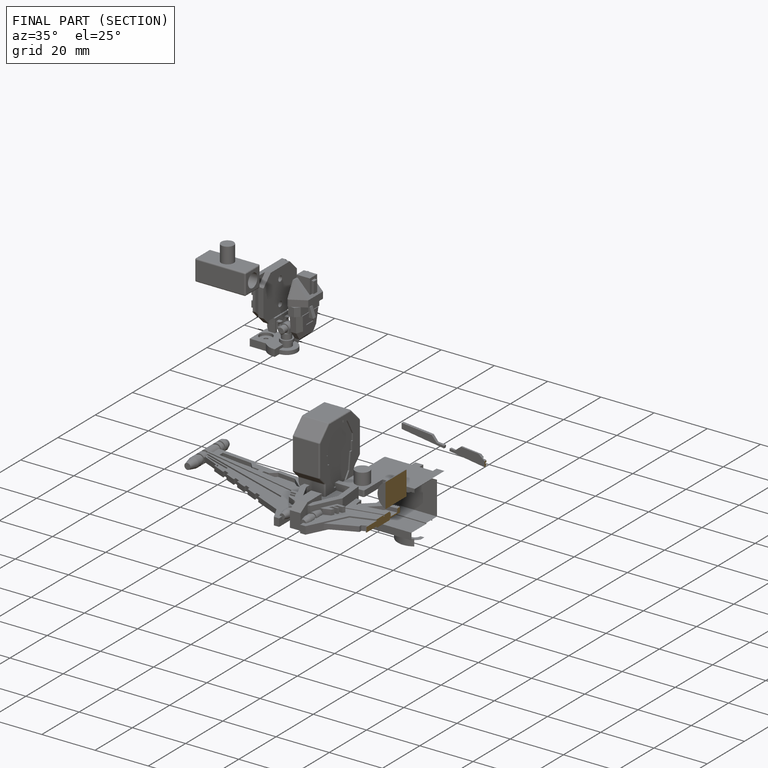
[diagram: finished part — half-section view (interior)]
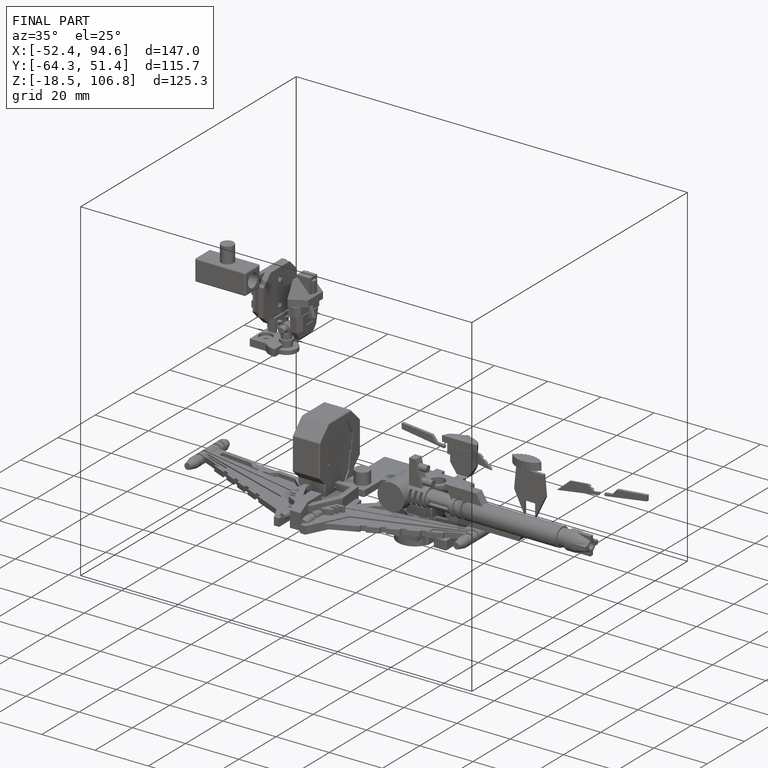
[diagram: finished part — iso view with bounding-box wireframe]
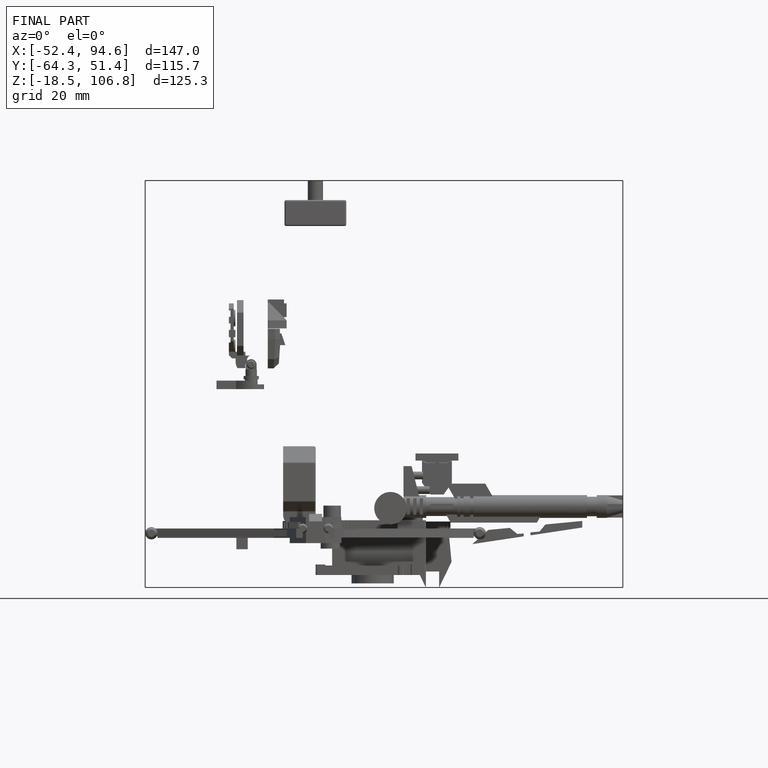
[diagram: finished part — front view with bounding-box wireframe]
